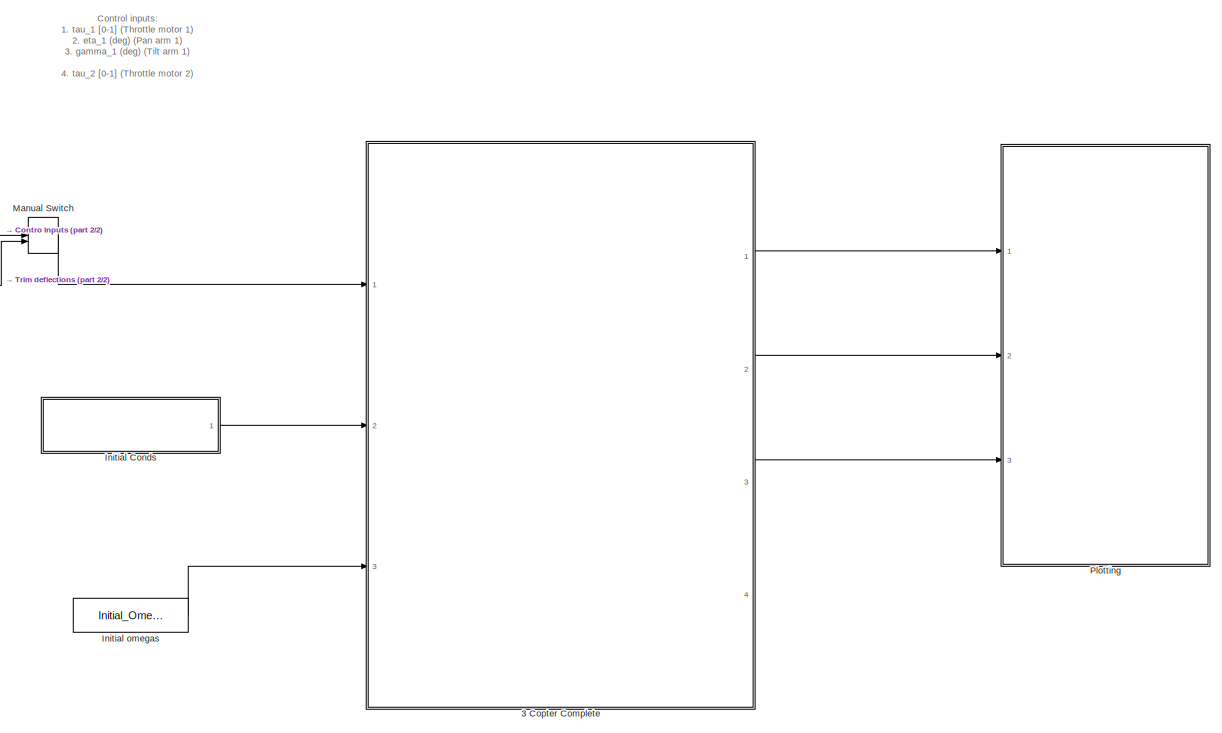
[diagram: root canvas - part 1/2, most of the canvas]
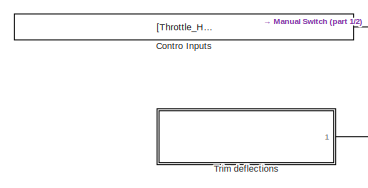
[diagram: root canvas - part 2/2, middle left region]
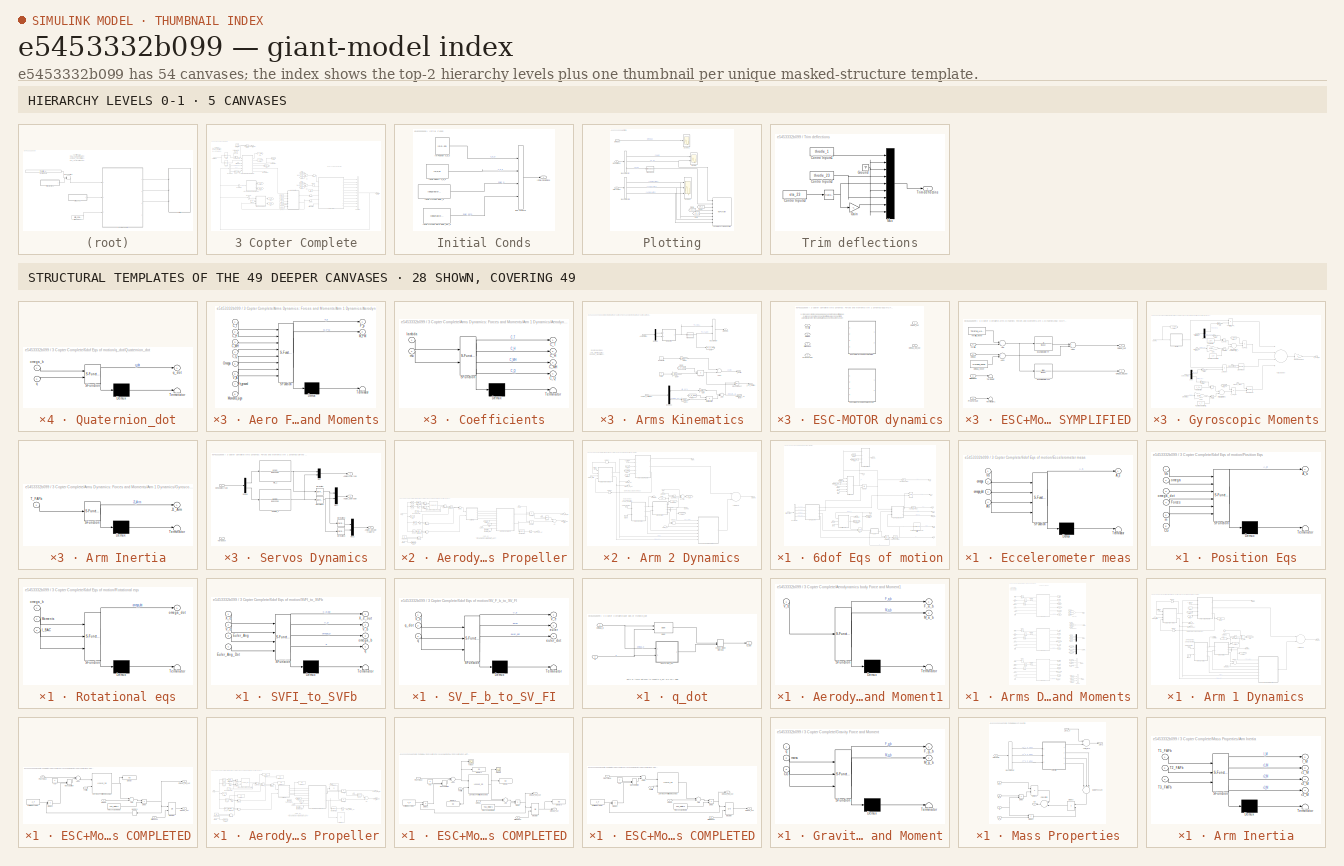
[diagram: thumbnail index - top-2 hierarchy levels (5 canvases) + 28 structural-template representatives of the remaining 49 canvases]
MODEL slx_e5453332b099
KIND model
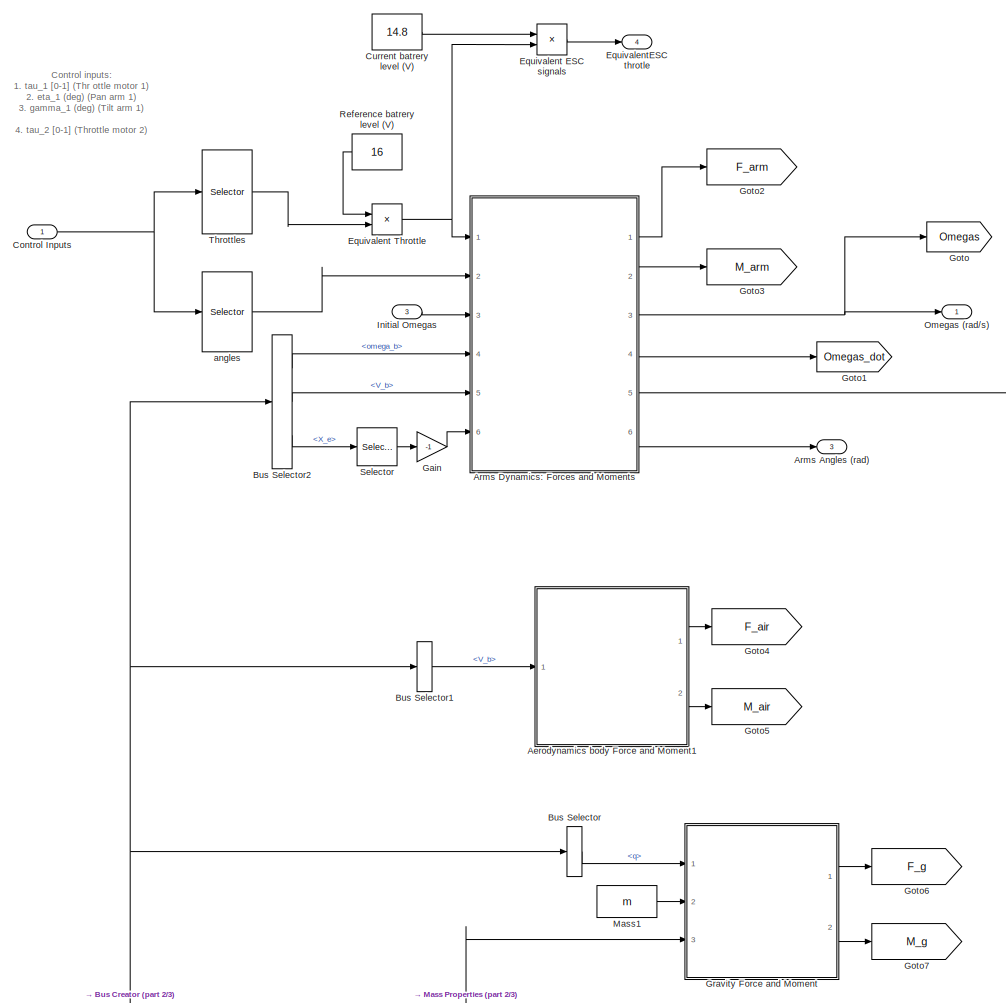
[diagram: 3 Copter Complete - part 1/3, middle left region]
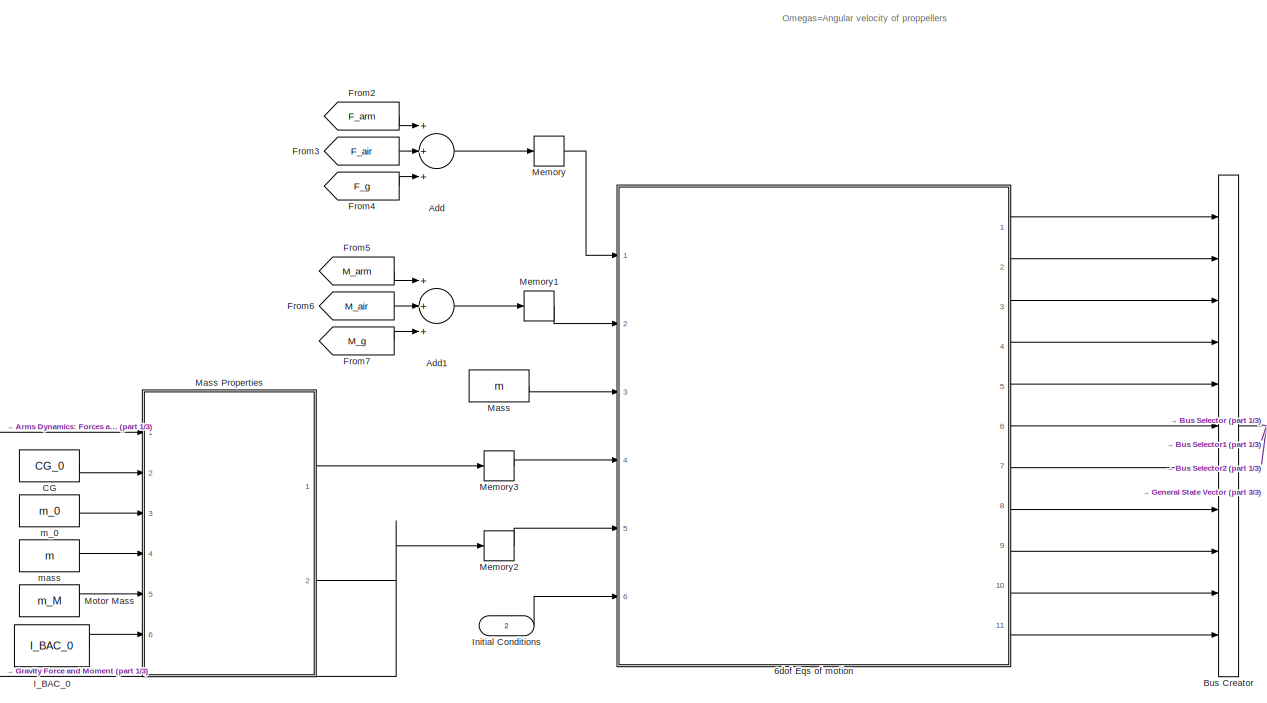
[diagram: 3 Copter Complete - part 2/3, central region]
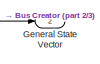
[diagram: 3 Copter Complete - part 3/3, middle right region]
BLOCK [SubSystem] 3 Copter Complete
  FunctionWithSeparateData = off
  MaskHideContents = off
  MinAlgLoopOccurrences = off
  Opaque = off
  Ports = [3, 4]
  PropExecContextOutsideSubsystem = off
  RTWSystemCode = Auto
  RequestExecContextInheritance = off
BLOCK [SubSystem] 3 Copter Complete/6dof Eqs of motion
  FunctionWithSeparateData = off
  MaskHideContents = off
  MinAlgLoopOccurrences = off
  Opaque = off
  Ports = [6, 11]
  PropExecContextOutsideSubsystem = off
  RTWSystemCode = Auto
  RequestExecContextInheritance = off
  TreatAsAtomicUnit = on
BLOCK [Outport] 3 Copter Complete/6dof Eqs of motion/Ab
  IconDisplay = Port number
  Port = 7
BLOCK [Outport] 3 Copter Complete/6dof Eqs of motion/Asensor
  IconDisplay = Port number
  Port = 11
BLOCK [BusSelector] 3 Copter Complete/6dof Eqs of motion/Bus Selector
  OutputSignals = X_e_0,V_e_0,Euler_0,Euler_dot_0
  Ports = [1, 4]
BLOCK [Inport] 3 Copter Complete/6dof Eqs of motion/CG
  IconDisplay = Port number
  Port = 5
BLOCK [Outport] 3 Copter Complete/6dof Eqs of motion/DCM
  IconDisplay = Port number
  Port = 8
BLOCK [SubSystem] 3 Copter Complete/6dof Eqs of motion/Eccelerometer meas
  ErrorFcn = Stateflow.Translate.translate
  FunctionWithSeparateData = off
  MaskHideContents = off
  MinAlgLoopOccurrences = off
  Opaque = off
  PermitHierarchicalResolution = ExplicitOnly
  Ports = [4, 1]
  PropExecContextOutsideSubsystem = off
  RTWSystemCode = Auto
  RequestExecContextInheritance = off
  SFBlockType = MATLAB Function
  TreatAsAtomicUnit = on
BLOCK [Demux] 3 Copter Complete/6dof Eqs of motion/Eccelerometer meas/ Demux 
  Outputs = 1
  Ports = [1, 1]
BLOCK [S-Function] 3 Copter Complete/6dof Eqs of motion/Eccelerometer meas/ SFunction 
  EnableBusSupport = on
  FunctionName = sf_sfun
  Parameters = r_sens
  PortCounts = [4 2]
  Ports = [4, 2]
  Tag = Stateflow S-Function TricopterModel 8
BLOCK [Terminator] 3 Copter Complete/6dof Eqs of motion/Eccelerometer meas/ Terminator 
BLOCK [Outport] 3 Copter Complete/6dof Eqs of motion/Eccelerometer meas/A_s
  IconDisplay = Port number
BLOCK [Inport] 3 Copter Complete/6dof Eqs of motion/Eccelerometer meas/Ab
  IconDisplay = Port number
  Port = 4
BLOCK [Inport] 3 Copter Complete/6dof Eqs of motion/Eccelerometer meas/Vb
  IconDisplay = Port number
BLOCK [Inport] 3 Copter Complete/6dof Eqs of motion/Eccelerometer meas/omega
  IconDisplay = Port number
  Port = 2
BLOCK [Inport] 3 Copter Complete/6dof Eqs of motion/Eccelerometer meas/omega_dot
  IconDisplay = Port number
  Port = 3
BLOCK [Inport] 3 Copter Complete/6dof Eqs of motion/Forces
  IconDisplay = Port number
BLOCK [From] 3 Copter Complete/6dof Eqs of motion/From
  GotoTag = omega
BLOCK [From] 3 Copter Complete/6dof Eqs of motion/From1
  GotoTag = omega_dot
BLOCK [From] 3 Copter Complete/6dof Eqs of motion/From2
  GotoTag = omega
BLOCK [From] 3 Copter Complete/6dof Eqs of motion/From3
  GotoTag = omega_dot
BLOCK [Goto] 3 Copter Complete/6dof Eqs of motion/Goto
  GotoTag = omega
BLOCK [Goto] 3 Copter Complete/6dof Eqs of motion/Goto1
  GotoTag = omega_dot
BLOCK [Inport] 3 Copter Complete/6dof Eqs of motion/I_BAC
  IconDisplay = Port number
  Port = 4
BLOCK [Inport] 3 Copter Complete/6dof Eqs of motion/Initial Conditions
  IconDisplay = Port number
  Port = 6
BLOCK [Inport] 3 Copter Complete/6dof Eqs of motion/Moments
  IconDisplay = Port number
  Port = 2
BLOCK [SubSystem] 3 Copter Complete/6dof Eqs of motion/Position Eqs
  ErrorFcn = Stateflow.Translate.translate
  FunctionWithSeparateData = off
  MaskHideContents = off
  MinAlgLoopOccurrences = off
  Opaque = off
  PermitHierarchicalResolution = ExplicitOnly
  Ports = [6, 1]
  PropExecContextOutsideSubsystem = off
  RTWSystemCode = Auto
  RequestExecContextInheritance = off
  SFBlockType = MATLAB Function
  TreatAsAtomicUnit = on
BLOCK [Demux] 3 Copter Complete/6dof Eqs of motion/Position Eqs/ Demux 
  Outputs = 1
  Ports = [1, 1]
BLOCK [S-Function] 3 Copter Complete/6dof Eqs of motion/Position Eqs/ SFunction 
  EnableBusSupport = on
  FunctionName = sf_sfun
  PortCounts = [6 2]
  Ports = [6, 2]
  Tag = Stateflow S-Function TricopterModel 1
BLOCK [Terminator] 3 Copter Complete/6dof Eqs of motion/Position Eqs/ Terminator 
BLOCK [Outport] 3 Copter Complete/6dof Eqs of motion/Position Eqs/A_b
  IconDisplay = Port number
BLOCK [Inport] 3 Copter Complete/6dof Eqs of motion/Position Eqs/CG
  IconDisplay = Port number
  Port = 6
BLOCK [Inport] 3 Copter Complete/6dof Eqs of motion/Position Eqs/Forces
  IconDisplay = Port number
  Port = 4
BLOCK [Inport] 3 Copter Complete/6dof Eqs of motion/Position Eqs/Vb
  IconDisplay = Port number
BLOCK [Inport] 3 Copter Complete/6dof Eqs of motion/Position Eqs/m
  IconDisplay = Port number
  Port = 5
BLOCK [Inport] 3 Copter Complete/6dof Eqs of motion/Position Eqs/omega
  IconDisplay = Port number
  Port = 2
BLOCK [Inport] 3 Copter Complete/6dof Eqs of motion/Position Eqs/omega_dot
  IconDisplay = Port number
  Port = 3
BLOCK [Reference] 3 Copter Complete/6dof Eqs of motion/Quaternion Normalize  REF=aerolibutil/Quaternion
Normalize
  Ports = [1, 1]
  SourceBlock = aerolibutil/Quaternion\nNormalize
  SourceType = Quaternion Normalize
BLOCK [Reference] 3 Copter Complete/6dof Eqs of motion/Quaternions to  Direction Cosine Matrix  REF=aerolibtransform2/Quaternions to 
Direction Cosine Matrix
  Ports = [1, 1]
  SourceBlock = aerolibtransform2/Quaternions to \nDirection Cosine Matrix
  SourceType = Quaternion2DCM
BLOCK [SubSystem] 3 Copter Complete/6dof Eqs of motion/Rotational eqs
  ErrorFcn = Stateflow.Translate.translate
  FunctionWithSeparateData = off
  MaskHideContents = off
  MinAlgLoopOccurrences = off
  Opaque = off
  PermitHierarchicalResolution = ExplicitOnly
  Ports = [3, 1]
  PropExecContextOutsideSubsystem = off
  RTWSystemCode = Auto
  RequestExecContextInheritance = off
  SFBlockType = MATLAB Function
  TreatAsAtomicUnit = on
BLOCK [Demux] 3 Copter Complete/6dof Eqs of motion/Rotational eqs/ Demux 
  Outputs = 1
  Ports = [1, 1]
BLOCK [S-Function] 3 Copter Complete/6dof Eqs of motion/Rotational eqs/ SFunction 
  EnableBusSupport = on
  FunctionName = sf_sfun
  PortCounts = [3 2]
  Ports = [3, 2]
  Tag = Stateflow S-Function TricopterModel 2
BLOCK [Terminator] 3 Copter Complete/6dof Eqs of motion/Rotational eqs/ Terminator 
BLOCK [Inport] 3 Copter Complete/6dof Eqs of motion/Rotational eqs/I_BAC
  IconDisplay = Port number
  Port = 3
BLOCK [Inport] 3 Copter Complete/6dof Eqs of motion/Rotational eqs/Moments
  IconDisplay = Port number
  Port = 2
BLOCK [Inport] 3 Copter Complete/6dof Eqs of motion/Rotational eqs/omega_b
  IconDisplay = Port number
BLOCK [Outport] 3 Copter Complete/6dof Eqs of motion/Rotational eqs/omega_dot
  IconDisplay = Port number
BLOCK [SubSystem] 3 Copter Complete/6dof Eqs of motion/SVFI_to_SVFb
  ErrorFcn = Stateflow.Translate.translate
  FunctionWithSeparateData = off
  MaskHideContents = off
  MinAlgLoopOccurrences = off
  Opaque = off
  PermitHierarchicalResolution = ExplicitOnly
  Ports = [4, 4]
  PropExecContextOutsideSubsystem = off
  RTWSystemCode = Auto
  RequestExecContextInheritance = off
  SFBlockType = MATLAB Function
  TreatAsAtomicUnit = on
BLOCK [Demux] 3 Copter Complete/6dof Eqs of motion/SVFI_to_SVFb/ Demux 
  Outputs = 1
  Ports = [1, 1]
BLOCK [S-Function] 3 Copter Complete/6dof Eqs of motion/SVFI_to_SVFb/ SFunction 
  EnableBusSupport = on
  FunctionName = sf_sfun
  PortCounts = [4 5]
  Ports = [4, 5]
  Tag = Stateflow S-Function TricopterModel 11
BLOCK [Terminator] 3 Copter Complete/6dof Eqs of motion/SVFI_to_SVFb/ Terminator 
BLOCK [Inport] 3 Copter Complete/6dof Eqs of motion/SVFI_to_SVFb/Euler_Ang
  IconDisplay = Port number
  Port = 3
BLOCK [Inport] 3 Copter Complete/6dof Eqs of motion/SVFI_to_SVFb/Euler_Ang_Dot
  IconDisplay = Port number
  Port = 4
BLOCK [Outport] 3 Copter Complete/6dof Eqs of motion/SVFI_to_SVFb/V_b
  IconDisplay = Port number
  Port = 2
BLOCK [Inport] 3 Copter Complete/6dof Eqs of motion/SVFI_to_SVFb/V_e
  IconDisplay = Port number
  Port = 2
BLOCK [Inport] 3 Copter Complete/6dof Eqs of motion/SVFI_to_SVFb/X_e
  IconDisplay = Port number
BLOCK [Outport] 3 Copter Complete/6dof Eqs of motion/SVFI_to_SVFb/X_e_out
  IconDisplay = Port number
BLOCK [Outport] 3 Copter Complete/6dof Eqs of motion/SVFI_to_SVFb/omega_b
  IconDisplay = Port number
  Port = 3
BLOCK [Outport] 3 Copter Complete/6dof Eqs of motion/SVFI_to_SVFb/q
  IconDisplay = Port number
  Port = 4
BLOCK [SubSystem] 3 Copter Complete/6dof Eqs of motion/SV_F_b_to_SV_FI
  ErrorFcn = Stateflow.Translate.translate
  FunctionWithSeparateData = off
  MaskHideContents = off
  MinAlgLoopOccurrences = off
  Opaque = off
  PermitHierarchicalResolution = ExplicitOnly
  Ports = [3, 3]
  PropExecContextOutsideSubsystem = off
  RTWSystemCode = Auto
  RequestExecContextInheritance = off
  SFBlockType = MATLAB Function
  TreatAsAtomicUnit = on
BLOCK [Demux] 3 Copter Complete/6dof Eqs of motion/SV_F_b_to_SV_FI/ Demux 
  Outputs = 1
  Ports = [1, 1]
BLOCK [S-Function] 3 Copter Complete/6dof Eqs of motion/SV_F_b_to_SV_FI/ SFunction 
  EnableBusSupport = on
  FunctionName = sf_sfun
  PortCounts = [3 4]
  Ports = [3, 4]
  Tag = Stateflow S-Function TricopterModel 12
BLOCK [Terminator] 3 Copter Complete/6dof Eqs of motion/SV_F_b_to_SV_FI/ Terminator 
BLOCK [Inport] 3 Copter Complete/6dof Eqs of motion/SV_F_b_to_SV_FI/V_b
  IconDisplay = Port number
BLOCK [Outport] 3 Copter Complete/6dof Eqs of motion/SV_F_b_to_SV_FI/V_e
  IconDisplay = Port number
BLOCK [Outport] 3 Copter Complete/6dof Eqs of motion/SV_F_b_to_SV_FI/euler
  IconDisplay = Port number
  Port = 2
BLOCK [Outport] 3 Copter Complete/6dof Eqs of motion/SV_F_b_to_SV_FI/euler_dot
  IconDisplay = Port number
  Port = 3
BLOCK [Inport] 3 Copter Complete/6dof Eqs of motion/SV_F_b_to_SV_FI/q
  IconDisplay = Port number
  Port = 3
BLOCK [Inport] 3 Copter Complete/6dof Eqs of motion/SV_F_b_to_SV_FI/q_dot
  IconDisplay = Port number
  Port = 2
BLOCK [Outport] 3 Copter Complete/6dof Eqs of motion/Vb
  IconDisplay = Port number
  Port = 3
BLOCK [Outport] 3 Copter Complete/6dof Eqs of motion/Ve
  IconDisplay = Port number
  Port = 2
BLOCK [Reference] 3 Copter Complete/6dof Eqs of motion/Velocity Conversion  REF=aerolibconvert2/Velocity Conversion
  IU = m/s
  OU = m/s
  Ports = [1, 1]
  SourceBlock = aerolibconvert2/Velocity Conversion
  SourceType = Velocity Conversion
BLOCK [Reference] 3 Copter Complete/6dof Eqs of motion/Velocity Conversion1  REF=aerolibconvert2/Velocity Conversion
  IU = m/s
  OU = m/s
  Ports = [1, 1]
  SourceBlock = aerolibconvert2/Velocity Conversion
  SourceType = Velocity Conversion
BLOCK [Outport] 3 Copter Complete/6dof Eqs of motion/Xe
  IconDisplay = Port number
BLOCK [Outport] 3 Copter Complete/6dof Eqs of motion/euler
  IconDisplay = Port number
  Port = 9
BLOCK [Outport] 3 Copter Complete/6dof Eqs of motion/euler_dot
  IconDisplay = Port number
  Port = 10
BLOCK [Inport] 3 Copter Complete/6dof Eqs of motion/mass
  IconDisplay = Port number
  Port = 3
BLOCK [Outport] 3 Copter Complete/6dof Eqs of motion/p,q,r
  IconDisplay = Port number
  Port = 4
BLOCK [Integrator] 3 Copter Complete/6dof Eqs of motion/p,q,r 
  InitialCondition = [P_0,Q_0,R_0]
  InitialConditionSource = external
  Ports = [2, 1]
BLOCK [Outport] 3 Copter Complete/6dof Eqs of motion/pdot,qdot,rdot
  IconDisplay = Port number
  Port = 6
BLOCK [Outport] 3 Copter Complete/6dof Eqs of motion/q
  IconDisplay = Port number
  Port = 5
BLOCK [SubSystem] 3 Copter Complete/6dof Eqs of motion/q_dot
  FunctionWithSeparateData = off
  MaskHideContents = off
  MinAlgLoopOccurrences = off
  Opaque = off
  Ports = [2, 1]
  PropExecContextOutsideSubsystem = off
  RTWSystemCode = Auto
  RequestExecContextInheritance = off
  TreatAsAtomicUnit = on
BLOCK [SubSystem] 3 Copter Complete/6dof Eqs of motion/q_dot/Quaternion_dot
  ErrorFcn = Stateflow.Translate.translate
  FunctionWithSeparateData = off
  MaskHideContents = off
  MinAlgLoopOccurrences = off
  Opaque = off
  PermitHierarchicalResolution = ExplicitOnly
  Ports = [2, 1]
  PropExecContextOutsideSubsystem = off
  RTWSystemCode = Auto
  RequestExecContextInheritance = off
  SFBlockType = MATLAB Function
  TreatAsAtomicUnit = on
  VariantObject = Variant
BLOCK [Demux] 3 Copter Complete/6dof Eqs of motion/q_dot/Quaternion_dot/ Demux 
  Outputs = 1
  Ports = [1, 1]
BLOCK [S-Function] 3 Copter Complete/6dof Eqs of motion/q_dot/Quaternion_dot/ SFunction 
  EnableBusSupport = on
  FunctionName = sf_sfun
  PortCounts = [2 2]
  Ports = [2, 2]
  Tag = Stateflow S-Function TricopterModel 3
BLOCK [Terminator] 3 Copter Complete/6dof Eqs of motion/q_dot/Quaternion_dot/ Terminator 
BLOCK [Inport] 3 Copter Complete/6dof Eqs of motion/q_dot/Quaternion_dot/omega_b
  IconDisplay = Port number
BLOCK [Inport] 3 Copter Complete/6dof Eqs of motion/q_dot/Quaternion_dot/q
  IconDisplay = Port number
  Port = 2
BLOCK [Outport] 3 Copter Complete/6dof Eqs of motion/q_dot/Quaternion_dot/q_dot
  IconDisplay = Port number
BLOCK [ManualSwitch] 3 Copter Complete/6dof Eqs of motion/q_dot/chose which method
  CurrentSetting = 0
BLOCK [Inport] 3 Copter Complete/6dof Eqs of motion/q_dot/omega_b
  IconDisplay = Port number
BLOCK [Inport] 3 Copter Complete/6dof Eqs of motion/q_dot/q
  IconDisplay = Port number
  Port = 2
BLOCK [Outport] 3 Copter Complete/6dof Eqs of motion/q_dot/q_dot
  IconDisplay = Port number
BLOCK [Reference] 3 Copter Complete/6dof Eqs of motion/q_dot/qdot  REF=aerolib6dofsys/DCM & Euler Angles (Quaternion)/qdot
  Ports = [2, 1]
  SourceBlock = aerolib6dofsys/DCM & Euler Angles (Quaternion)/qdot
  SourceType = SubSystem
BLOCK [Integrator] 3 Copter Complete/6dof Eqs of motion/quaternion
  InitialCondition = [P_0,Q_0,R_0]
  InitialConditionSource = external
  Ports = [2, 1]
BLOCK [Integrator] 3 Copter Complete/6dof Eqs of motion/ub,vb,wb
  InitialCondition = [U_0,V_0,W_0]
  InitialConditionSource = external
  Ports = [2, 1]
BLOCK [Integrator] 3 Copter Complete/6dof Eqs of motion/xe,ye,ze
  InitialCondition = [NORTH_0,EAST_0,-DOWN_0]
  InitialConditionSource = external
  Ports = [2, 1]
BLOCK [Sum] 3 Copter Complete/Add
  InputSameDT = off
  Inputs = +++
  OutDataTypeStr = Inherit: Inherit via internal rule
  Ports = [3, 1]
  SaturateOnIntegerOverflow = off
BLOCK [Sum] 3 Copter Complete/Add1
  InputSameDT = off
  Inputs = +++
  OutDataTypeStr = Inherit: Inherit via internal rule
  Ports = [3, 1]
  SaturateOnIntegerOverflow = off
BLOCK [SubSystem] 3 Copter Complete/Aerodynamics body Force and Moment1
  ErrorFcn = Stateflow.Translate.translate
  FunctionWithSeparateData = off
  MaskHideContents = off
  MinAlgLoopOccurrences = off
  Opaque = off
  PermitHierarchicalResolution = ExplicitOnly
  Ports = [1, 2]
  PropExecContextOutsideSubsystem = off
  RTWSystemCode = Auto
  RequestExecContextInheritance = off
  SFBlockType = MATLAB Function
  TreatAsAtomicUnit = on
BLOCK [Demux] 3 Copter Complete/Aerodynamics body Force and Moment1/ Demux 
  Outputs = 1
  Ports = [1, 1]
BLOCK [S-Function] 3 Copter Complete/Aerodynamics body Force and Moment1/ SFunction 
  EnableBusSupport = on
  FunctionName = sf_sfun
  Parameters = A_x,A_y,A_z,C_x,C_y,C_z,rho
  PortCounts = [1 3]
  Ports = [1, 3]
  Tag = Stateflow S-Function TricopterModel 5
BLOCK [Terminator] 3 Copter Complete/Aerodynamics body Force and Moment1/ Terminator 
BLOCK [Outport] 3 Copter Complete/Aerodynamics body Force and Moment1/F_a_b
  IconDisplay = Port number
BLOCK [Outport] 3 Copter Complete/Aerodynamics body Force and Moment1/M_a_b
  IconDisplay = Port number
  Port = 2
BLOCK [Inport] 3 Copter Complete/Aerodynamics body Force and Moment1/V_b
  IconDisplay = Port number
BLOCK [Outport] 3 Copter Complete/Arms Angles (rad)
  IconDisplay = Port number
  Port = 3
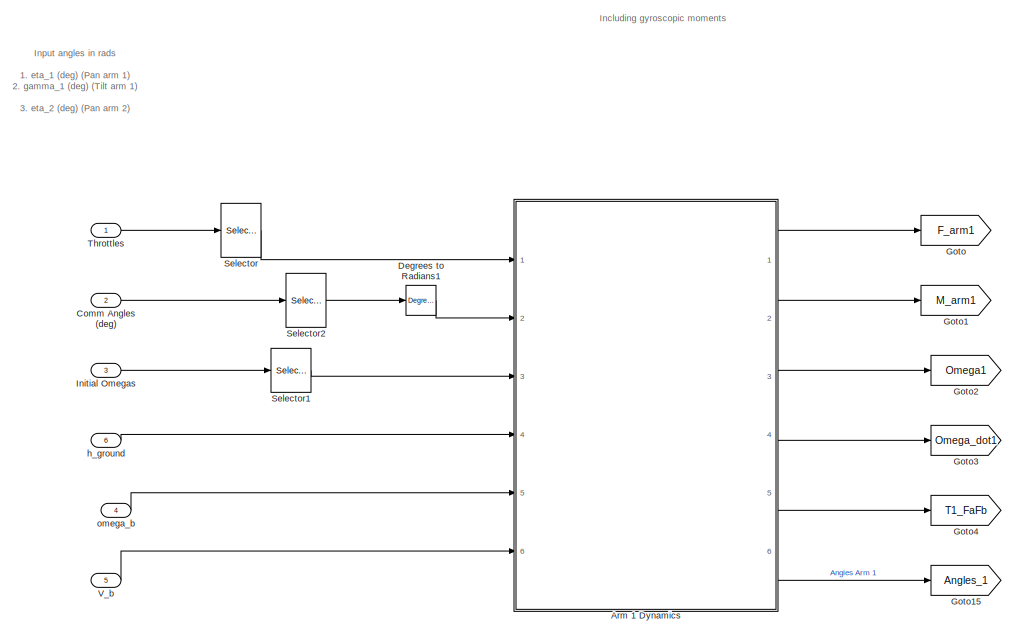
[diagram: 3 Copter Complete/Arms Dynamics: Forces and Moments - part 1/3, top center region]
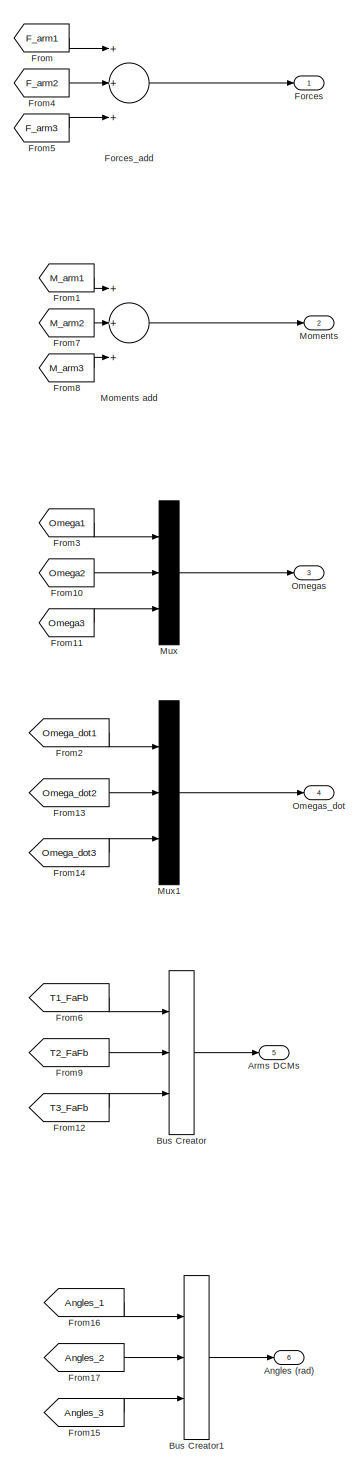
[diagram: 3 Copter Complete/Arms Dynamics: Forces and Moments - part 2/3, right side, full height]
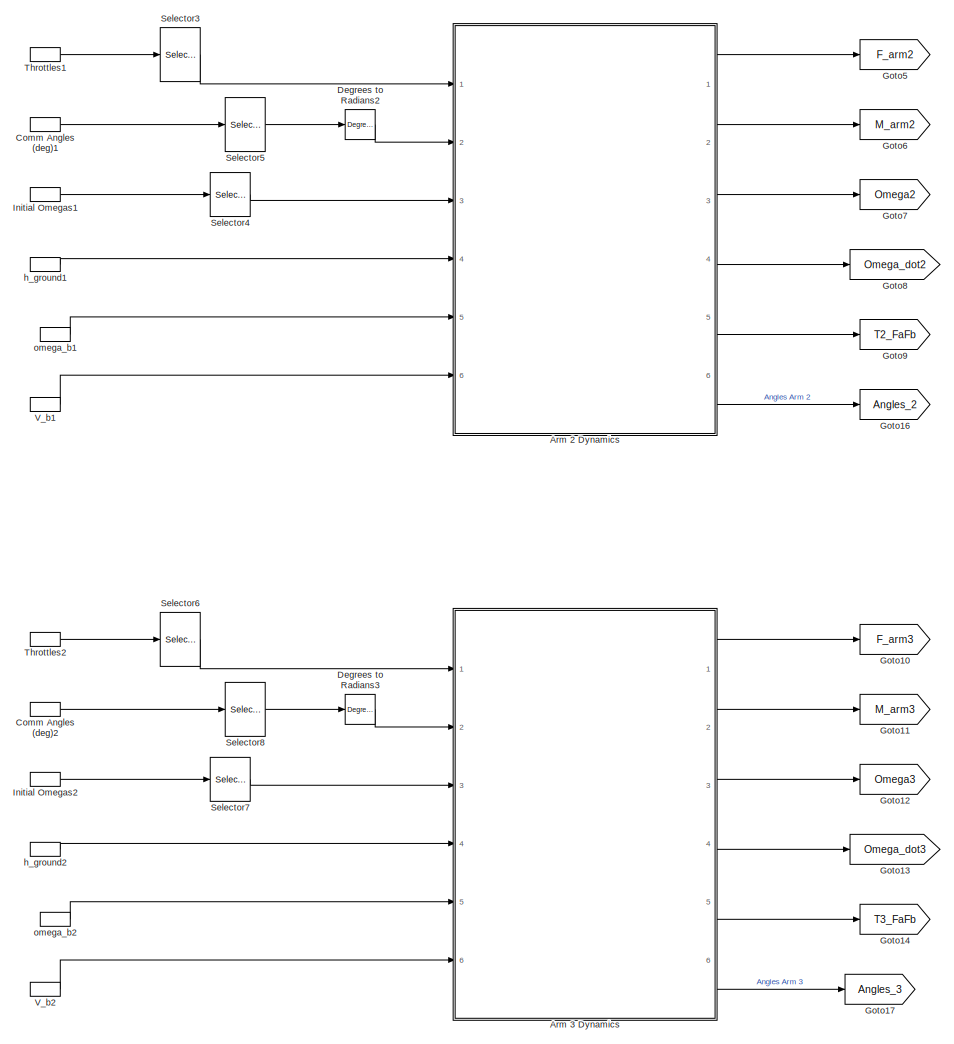
[diagram: 3 Copter Complete/Arms Dynamics: Forces and Moments - part 3/3, bottom center region]
BLOCK [SubSystem] 3 Copter Complete/Arms Dynamics: Forces and Moments
  FunctionWithSeparateData = off
  MaskHideContents = off
  MinAlgLoopOccurrences = off
  Opaque = off
  Ports = [6, 6]
  PropExecContextOutsideSubsystem = off
  RTWSystemCode = Auto
  RequestExecContextInheritance = off
BLOCK [Outport] 3 Copter Complete/Arms Dynamics: Forces and Moments/Angles (rad)
  IconDisplay = Port number
  Port = 6
BLOCK [SubSystem] 3 Copter Complete/Arms Dynamics: Forces and Moments/Arm 1 Dynamics
  FunctionWithSeparateData = off
  MaskHideContents = off
  MinAlgLoopOccurrences = off
  Opaque = off
  Ports = [6, 6]
  PropExecContextOutsideSubsystem = off
  RTWSystemCode = Auto
  RequestExecContextInheritance = off
BLOCK [SubSystem] 3 Copter Complete/Arms Dynamics: Forces and Moments/Arm 1 Dynamics/Aerodynamics Propeller
  FunctionWithSeparateData = off
  MaskHideContents = off
  MinAlgLoopOccurrences = on
  Opaque = off
  Ports = [5, 3]
  PropExecContextOutsideSubsystem = off
  RTWSystemCode = Auto
  RequestExecContextInheritance = off
  TreatAsAtomicUnit = on
BLOCK [Abs] 3 Copter Complete/Arms Dynamics: Forces and Moments/Arm 1 Dynamics/Aerodynamics Propeller/Abs1
  SaturateOnIntegerOverflow = off
BLOCK [Sum] 3 Copter Complete/Arms Dynamics: Forces and Moments/Arm 1 Dynamics/Aerodynamics Propeller/Add
  InputSameDT = off
  OutDataTypeStr = Inherit: Inherit via internal rule
  Ports = [2, 1]
  SaturateOnIntegerOverflow = off
BLOCK [SubSystem] 3 Copter Complete/Arms Dynamics: Forces and Moments/Arm 1 Dynamics/Aerodynamics Propeller/Aero Forces and Moments
  ErrorFcn = Stateflow.Translate.translate
  FunctionWithSeparateData = off
  MaskHideContents = off
  MinAlgLoopOccurrences = off
  Opaque = off
  PermitHierarchicalResolution = ExplicitOnly
  Ports = [8, 2]
  PropExecContextOutsideSubsystem = off
  RTWSystemCode = Auto
  RequestExecContextInheritance = off
  SFBlockType = MATLAB Function
  TreatAsAtomicUnit = on
BLOCK [Demux] 3 Copter Complete/Arms Dynamics: Forces and Moments/Arm 1 Dynamics/Aerodynamics Propeller/Aero Forces and Moments/ Demux 
  Outputs = 1
  Ports = [1, 1]
BLOCK [S-Function] 3 Copter Complete/Arms Dynamics: Forces and Moments/Arm 1 Dynamics/Aerodynamics Propeller/Aero Forces and Moments/ SFunction 
  EnableBusSupport = on
  FunctionName = sf_sfun
  Parameters = R,rho
  PortCounts = [8 3]
  Ports = [8, 3]
  Tag = Stateflow S-Function TricopterModel 7
BLOCK [Terminator] 3 Copter Complete/Arms Dynamics: Forces and Moments/Arm 1 Dynamics/Aerodynamics Propeller/Aero Forces and Moments/ Terminator 
BLOCK [Inport] 3 Copter Complete/Arms Dynamics: Forces and Moments/Arm 1 Dynamics/Aerodynamics Propeller/Aero Forces and Moments/C_H
  IconDisplay = Port number
  Port = 2
BLOCK [Inport] 3 Copter Complete/Arms Dynamics: Forces and Moments/Arm 1 Dynamics/Aerodynamics Propeller/Aero Forces and Moments/C_MH
  IconDisplay = Port number
  Port = 3
BLOCK [Inport] 3 Copter Complete/Arms Dynamics: Forces and Moments/Arm 1 Dynamics/Aerodynamics Propeller/Aero Forces and Moments/C_Q
  IconDisplay = Port number
  Port = 4
BLOCK [Inport] 3 Copter Complete/Arms Dynamics: Forces and Moments/Arm 1 Dynamics/Aerodynamics Propeller/Aero Forces and Moments/C_T
  IconDisplay = Port number
BLOCK [Outport] 3 Copter Complete/Arms Dynamics: Forces and Moments/Arm 1 Dynamics/Aerodynamics Propeller/Aero Forces and Moments/F_p
  IconDisplay = Port number
BLOCK [Outport] 3 Copter Complete/Arms Dynamics: Forces and Moments/Arm 1 Dynamics/Aerodynamics Propeller/Aero Forces and Moments/M_PM
  IconDisplay = Port number
  Port = 2
BLOCK [Inport] 3 Copter Complete/Arms Dynamics: Forces and Moments/Arm 1 Dynamics/Aerodynamics Propeller/Aero Forces and Moments/Moments_sign
  IconDisplay = Port number
  Port = 8
BLOCK [Inport] 3 Copter Complete/Arms Dynamics: Forces and Moments/Arm 1 Dynamics/Aerodynamics Propeller/Aero Forces and Moments/Omega
  IconDisplay = Port number
  Port = 5
BLOCK [Inport] 3 Copter Complete/Arms Dynamics: Forces and Moments/Arm 1 Dynamics/Aerodynamics Propeller/Aero Forces and Moments/V_A
  IconDisplay = Port number
  Port = 6
BLOCK [Inport] 3 Copter Complete/Arms Dynamics: Forces and Moments/Arm 1 Dynamics/Aerodynamics Propeller/Aero Forces and Moments/h_ground
  IconDisplay = Port number
  Port = 7
BLOCK [SubSystem] 3 Copter Complete/Arms Dynamics: Forces and Moments/Arm 1 Dynamics/Aerodynamics Propeller/Coefficients
  ErrorFcn = Stateflow.Translate.translate
  FunctionWithSeparateData = off
  MaskHideContents = off
  MinAlgLoopOccurrences = off
  Opaque = off
  PermitHierarchicalResolution = ExplicitOnly
  Ports = [2, 4]
  PropExecContextOutsideSubsystem = off
  RTWSystemCode = Auto
  RequestExecContextInheritance = off
  SFBlockType = MATLAB Function
  TreatAsAtomicUnit = on
BLOCK [Demux] 3 Copter Complete/Arms Dynamics: Forces and Moments/Arm 1 Dynamics/Aerodynamics Propeller/Coefficients/ Demux 
  Outputs = 1
  Ports = [1, 1]
BLOCK [S-Function] 3 Copter Complete/Arms Dynamics: Forces and Moments/Arm 1 Dynamics/Aerodynamics Propeller/Coefficients/ SFunction 
  EnableBusSupport = on
  FunctionName = sf_sfun
  Parameters = C_d0,a,sigma,theta_0,theta_1
  PortCounts = [2 5]
  Ports = [2, 5]
  Tag = Stateflow S-Function TricopterModel 6
BLOCK [Terminator] 3 Copter Complete/Arms Dynamics: Forces and Moments/Arm 1 Dynamics/Aerodynamics Propeller/Coefficients/ Terminator 
BLOCK [Outport] 3 Copter Complete/Arms Dynamics: Forces and Moments/Arm 1 Dynamics/Aerodynamics Propeller/Coefficients/C_H
  IconDisplay = Port number
  Port = 2
BLOCK [Outport] 3 Copter Complete/Arms Dynamics: Forces and Moments/Arm 1 Dynamics/Aerodynamics Propeller/Coefficients/C_MH
  IconDisplay = Port number
  Port = 3
BLOCK [Outport] 3 Copter Complete/Arms Dynamics: Forces and Moments/Arm 1 Dynamics/Aerodynamics Propeller/Coefficients/C_Q
  IconDisplay = Port number
  Port = 4
BLOCK [Outport] 3 Copter Complete/Arms Dynamics: Forces and Moments/Arm 1 Dynamics/Aerodynamics Propeller/Coefficients/C_T
  IconDisplay = Port number
BLOCK [Inport] 3 Copter Complete/Arms Dynamics: Forces and Moments/Arm 1 Dynamics/Aerodynamics Propeller/Coefficients/lambda
  IconDisplay = Port number
BLOCK [Inport] 3 Copter Complete/Arms Dynamics: Forces and Moments/Arm 1 Dynamics/Aerodynamics Propeller/Coefficients/mu
  IconDisplay = Port number
  Port = 2
BLOCK [Lookup_n-D] 3 Copter Complete/Arms Dynamics: Forces and Moments/Arm 1 Dynamics/Aerodynamics Propeller/Dimensionless AB induced Vel Map
  BreakpointsForDimension1 = Vx_adim
  BreakpointsForDimension2 = Vz_adim
  BreakpointsForDimension3 = [5, 7]
  Ports = [2, 1]
  RndMeth = Simplest
  Table = v_i_adim
BLOCK [Product] 3 Copter Complete/Arms Dynamics: Forces and Moments/Arm 1 Dynamics/Aerodynamics Propeller/F prop @ Fb
  InputSameDT = off
  Multiplication = Matrix(*)
  OutDataTypeStr = Inherit: Inherit via internal rule
  Ports = [2, 1]
  RndMeth = Floor
  SaturateOnIntegerOverflow = off
BLOCK [Outport] 3 Copter Complete/Arms Dynamics: Forces and Moments/Arm 1 Dynamics/Aerodynamics Propeller/Forces_prop @Fb
  IconDisplay = Port number
BLOCK [From] 3 Copter Complete/Arms Dynamics: Forces and Moments/Arm 1 Dynamics/Aerodynamics Propeller/From
  GotoTag = V_A
BLOCK [From] 3 Copter Complete/Arms Dynamics: Forces and Moments/Arm 1 Dynamics/Aerodynamics Propeller/From1
  GotoTag = Omega
BLOCK [Gain] 3 Copter Complete/Arms Dynamics: Forces and Moments/Arm 1 Dynamics/Aerodynamics Propeller/Gain
  Gain = -1
  OutDataTypeStr = Inherit: Inherit via internal rule
  ParamDataTypeStr = Inherit: Inherit via internal rule
  SaturateOnIntegerOverflow = off
BLOCK [Gain] 3 Copter Complete/Arms Dynamics: Forces and Moments/Arm 1 Dynamics/Aerodynamics Propeller/Gain1
  Gain = -1
  OutDataTypeStr = Inherit: Inherit via internal rule
  ParamDataTypeStr = Inherit: Inherit via internal rule
  SaturateOnIntegerOverflow = off
BLOCK [Goto] 3 Copter Complete/Arms Dynamics: Forces and Moments/Arm 1 Dynamics/Aerodynamics Propeller/Goto
  GotoTag = V_A
BLOCK [Goto] 3 Copter Complete/Arms Dynamics: Forces and Moments/Arm 1 Dynamics/Aerodynamics Propeller/Goto1
  GotoTag = Omega
BLOCK [Constant] 3 Copter Complete/Arms Dynamics: Forces and Moments/Arm 1 Dynamics/Aerodynamics Propeller/Induced hover Vel
  Value = v_i0
BLOCK [Product] 3 Copter Complete/Arms Dynamics: Forces and Moments/Arm 1 Dynamics/Aerodynamics Propeller/M prop @Fb
  InputSameDT = off
  Multiplication = Matrix(*)
  OutDataTypeStr = Inherit: Inherit via internal rule
  Ports = [2, 1]
  RndMeth = Floor
  SaturateOnIntegerOverflow = off
BLOCK [Reference] 3 Copter Complete/Arms Dynamics: Forces and Moments/Arm 1 Dynamics/Aerodynamics Propeller/M_PAF  REF=vrlib/Utilities/Cross Product
  Ports = [2, 1]
  SourceBlock = vrlib/Utilities/Cross Product
  SourceType = Cross Product
BLOCK [Reference] 3 Copter Complete/Arms Dynamics: Forces and Moments/Arm 1 Dynamics/Aerodynamics Propeller/Matrix  1-Norm  REF=dspmtrx3/Matrix 
1-Norm
  LockScale = off
  Ports = [1, 1]
  SourceBlock = dspmtrx3/Matrix \n1-Norm
  SourceType = Matrix 1-Norm
  accumDataTypeStr = Inherit: Inherit via internal rule
  accumFracLength = 30
  accumLastDataTypeStr = Inherit: Inherit via internal rule
  accumMode = Inherit via internal rule
  accumWordLength = 32
  allowOverrides = on
  outputDataTypeStr = Inherit: Same as accumulator
  outputFracLength = 15
  outputLastDataTypeStr = Inherit: Same as accumulator
  outputMax = []
  outputMin = []
  outputMode = Same as accumulator
  outputWordLength = 16
  overflowMode = off
  roundingMode = Floor
BLOCK [Reference] 3 Copter Complete/Arms Dynamics: Forces and Moments/Arm 1 Dynamics/Aerodynamics Propeller/Matrix  1-Norm1  REF=dspmtrx3/Matrix 
1-Norm
  LockScale = off
  Ports = [1, 1]
  SourceBlock = dspmtrx3/Matrix \n1-Norm
  SourceType = Matrix 1-Norm
  accumDataTypeStr = Inherit: Inherit via internal rule
  accumFracLength = 30
  accumLastDataTypeStr = Inherit: Inherit via internal rule
  accumMode = Inherit via internal rule
  accumWordLength = 32
  allowOverrides = on
  outputDataTypeStr = Inherit: Same as accumulator
  outputFracLength = 15
  outputLastDataTypeStr = Inherit: Same as accumulator
  outputMax = []
  outputMin = []
  outputMode = Same as accumulator
  outputWordLength = 16
  overflowMode = off
  roundingMode = Floor
BLOCK [Outport] 3 Copter Complete/Arms Dynamics: Forces and Moments/Arm 1 Dynamics/Aerodynamics Propeller/Moments_prop @Fb
  IconDisplay = Port number
  Port = 2
BLOCK [Constant] 3 Copter Complete/Arms Dynamics: Forces and Moments/Arm 1 Dynamics/Aerodynamics Propeller/Moments_sign
  Value = - Rotation_sign(1)
BLOCK [Inport] 3 Copter Complete/Arms Dynamics: Forces and Moments/Arm 1 Dynamics/Aerodynamics Propeller/Omega
  IconDisplay = Port number
BLOCK [Product] 3 Copter Complete/Arms Dynamics: Forces and Moments/Arm 1 Dynamics/Aerodynamics Propeller/Omega*R
  InputSameDT = off
  Inputs = **
  OutDataTypeStr = Inherit: Inherit via internal rule
  Ports = [2, 1]
  RndMeth = Floor
  SaturateOnIntegerOverflow = off
BLOCK [Outport] 3 Copter Complete/Arms Dynamics: Forces and Moments/Arm 1 Dynamics/Aerodynamics Propeller/Prop_Torque_out
  IconDisplay = Port number
  Port = 3
BLOCK [Selector] 3 Copter Complete/Arms Dynamics: Forces and Moments/Arm 1 Dynamics/Aerodynamics Propeller/Propeller Torque
  IndexOptions = Index vector (dialog)
  Indices = 3
  InputPortWidth = 3
  OutputSizes = 1
  Ports = [1, 1]
BLOCK [Constant] 3 Copter Complete/Arms Dynamics: Forces and Moments/Arm 1 Dynamics/Aerodynamics Propeller/Radius Prop
  Value = R
BLOCK [Inport] 3 Copter Complete/Arms Dynamics: Forces and Moments/Arm 1 Dynamics/Aerodynamics Propeller/T_FaFb
  IconDisplay = Port number
  Port = 4
BLOCK [Inport] 3 Copter Complete/Arms Dynamics: Forces and Moments/Arm 1 Dynamics/Aerodynamics Propeller/V^A_1
  IconDisplay = Port number
  Port = 3
BLOCK [Selector] 3 Copter Complete/Arms Dynamics: Forces and Moments/Arm 1 Dynamics/Aerodynamics Propeller/V_A_x
  IndexOptions = Index vector (dialog)
  Indices = [1 2]
  InputPortWidth = 3
  OutputSizes = 1
  Ports = [1, 1]
BLOCK [Selector] 3 Copter Complete/Arms Dynamics: Forces and Moments/Arm 1 Dynamics/Aerodynamics Propeller/V_A_x,y
  IndexOptions = Index vector (dialog)
  Indices = [1 2]
  InputPortWidth = 3
  OutputSizes = 1
  Ports = [1, 1]
BLOCK [Selector] 3 Copter Complete/Arms Dynamics: Forces and Moments/Arm 1 Dynamics/Aerodynamics Propeller/V_A_x,y1
  IndexOptions = Index vector (dialog)
  Indices = [3]
  InputPortWidth = 3
  OutputSizes = 1
  Ports = [1, 1]
BLOCK [Selector] 3 Copter Complete/Arms Dynamics: Forces and Moments/Arm 1 Dynamics/Aerodynamics Propeller/V_A_z
  IndexOptions = Index vector (dialog)
  Indices = 3
  InputPortWidth = 3
  OutputSizes = 1
  Ports = [1, 1]
BLOCK [Product] 3 Copter Complete/Arms Dynamics: Forces and Moments/Arm 1 Dynamics/Aerodynamics Propeller/Vx dimless
  InputSameDT = off
  Inputs = */
  OutDataTypeStr = Inherit: Inherit via internal rule
  Ports = [2, 1]
  RndMeth = Floor
  SaturateOnIntegerOverflow = off
BLOCK [Product] 3 Copter Complete/Arms Dynamics: Forces and Moments/Arm 1 Dynamics/Aerodynamics Propeller/Vz dimless1
  InputSameDT = off
  Inputs = */
  OutDataTypeStr = Inherit: Inherit via internal rule
  Ports = [2, 1]
  RndMeth = Floor
  SaturateOnIntegerOverflow = off
BLOCK [Inport] 3 Copter Complete/Arms Dynamics: Forces and Moments/Arm 1 Dynamics/Aerodynamics Propeller/h_ground
  IconDisplay = Port number
  Port = 2
BLOCK [Sum] 3 Copter Complete/Arms Dynamics: Forces and Moments/Arm 1 Dynamics/Aerodynamics Propeller/lambda
  InputSameDT = off
  OutDataTypeStr = Inherit: Inherit via internal rule
  Ports = [2, 1]
  SaturateOnIntegerOverflow = off
BLOCK [Product] 3 Copter Complete/Arms Dynamics: Forces and Moments/Arm 1 Dynamics/Aerodynamics Propeller/lambdaZ
  InputSameDT = off
  Inputs = */
  OutDataTypeStr = Inherit: Inherit via internal rule
  Ports = [2, 1]
  RndMeth = Floor
  SaturateOnIntegerOverflow = off
BLOCK [Product] 3 Copter Complete/Arms Dynamics: Forces and Moments/Arm 1 Dynamics/Aerodynamics Propeller/lambda_i
  InputSameDT = off
  Inputs = */
  OutDataTypeStr = Inherit: Inherit via internal rule
  Ports = [2, 1]
  RndMeth = Floor
  SaturateOnIntegerOverflow = off
BLOCK [Product] 3 Copter Complete/Arms Dynamics: Forces and Moments/Arm 1 Dynamics/Aerodynamics Propeller/mu
  InputSameDT = off
  Inputs = */
  OutDataTypeStr = Inherit: Inherit via internal rule
  Ports = [2, 1]
  RndMeth = Floor
  SaturateOnIntegerOverflow = off
BLOCK [Inport] 3 Copter Complete/Arms Dynamics: Forces and Moments/Arm 1 Dynamics/Aerodynamics Propeller/r_p
  IconDisplay = Port number
  Port = 5
BLOCK [Product] 3 Copter Complete/Arms Dynamics: Forces and Moments/Arm 1 Dynamics/Aerodynamics Propeller/v_i dimension
  InputSameDT = off
  Inputs = **
  OutDataTypeStr = Inherit: Inherit via internal rule
  Ports = [2, 1]
  RndMeth = Floor
  SaturateOnIntegerOverflow = off
BLOCK [Outport] 3 Copter Complete/Arms Dynamics: Forces and Moments/Arm 1 Dynamics/Angles (rad)
  IconDisplay = Port number
  Port = 6
BLOCK [SubSystem] 3 Copter Complete/Arms Dynamics: Forces and Moments/Arm 1 Dynamics/Arms Kinematics
  FunctionWithSeparateData = off
  MaskHideContents = off
  MinAlgLoopOccurrences = off
  Opaque = off
  Ports = [2, 4]
  PropExecContextOutsideSubsystem = off
  RTWSystemCode = Auto
  RequestExecContextInheritance = off
  TreatAsAtomicUnit = on
BLOCK [Sum] 3 Copter Complete/Arms Dynamics: Forces and Moments/Arm 1 Dynamics/Arms Kinematics/Add
  InputSameDT = off
  OutDataTypeStr = Inherit: Inherit via internal rule
  Ports = [2, 1]
  SaturateOnIntegerOverflow = off
BLOCK [Sum] 3 Copter Complete/Arms Dynamics: Forces and Moments/Arm 1 Dynamics/Arms Kinematics/Add3
  InputSameDT = off
  OutDataTypeStr = Inherit: Inherit via internal rule
  Ports = [2, 1]
  SaturateOnIntegerOverflow = off
BLOCK [Inport] 3 Copter Complete/Arms Dynamics: Forces and Moments/Arm 1 Dynamics/Arms Kinematics/Angles (rad)
  IconDisplay = Port number
BLOCK [Inport] 3 Copter Complete/Arms Dynamics: Forces and Moments/Arm 1 Dynamics/Arms Kinematics/Angles_dot (rad//s)
  IconDisplay = Port number
  Port = 2
BLOCK [Outport] 3 Copter Complete/Arms Dynamics: Forces and Moments/Arm 1 Dynamics/Arms Kinematics/Arm DCMs
  IconDisplay = Port number
  Port = 3
BLOCK [BusCreator] 3 Copter Complete/Arms Dynamics: Forces and Moments/Arm 1 Dynamics/Arms Kinematics/Bus Creator
  DisplayOption = bar
  Inputs = 2
  Ports = [2, 1]
BLOCK [Reference] 3 Copter Complete/Arms Dynamics: Forces and Moments/Arm 1 Dynamics/Arms Kinematics/Cross Product  REF=vrlib/Utilities/Cross Product
  Ports = [2, 1]
  SourceBlock = vrlib/Utilities/Cross Product
  SourceType = Cross Product
BLOCK [SubSystem] 3 Copter Complete/Arms Dynamics: Forces and Moments/Arm 1 Dynamics/Arms Kinematics/DCM Arm 1
  ErrorFcn = Stateflow.Translate.translate
  FunctionWithSeparateData = off
  MaskHideContents = off
  MinAlgLoopOccurrences = off
  Opaque = off
  PermitHierarchicalResolution = ExplicitOnly
  Ports = [2, 1]
  PropExecContextOutsideSubsystem = off
  RTWSystemCode = Auto
  RequestExecContextInheritance = off
  SFBlockType = MATLAB Function
  TreatAsAtomicUnit = on
BLOCK [Demux] 3 Copter Complete/Arms Dynamics: Forces and Moments/Arm 1 Dynamics/Arms Kinematics/DCM Arm 1/ Demux 
  Outputs = 1
  Ports = [1, 1]
BLOCK [S-Function] 3 Copter Complete/Arms Dynamics: Forces and Moments/Arm 1 Dynamics/Arms Kinematics/DCM Arm 1/ SFunction 
  EnableBusSupport = on
  FunctionName = sf_sfun
  PortCounts = [2 2]
  Ports = [2, 2]
  Tag = Stateflow S-Function TricopterModel 9
BLOCK [Terminator] 3 Copter Complete/Arms Dynamics: Forces and Moments/Arm 1 Dynamics/Arms Kinematics/DCM Arm 1/ Terminator 
BLOCK [Outport] 3 Copter Complete/Arms Dynamics: Forces and Moments/Arm 1 Dynamics/Arms Kinematics/DCM Arm 1/T_Fb_FA
  IconDisplay = Port number
BLOCK [Inport] 3 Copter Complete/Arms Dynamics: Forces and Moments/Arm 1 Dynamics/Arms Kinematics/DCM Arm 1/eta_1
  IconDisplay = Port number
BLOCK [Inport] 3 Copter Complete/Arms Dynamics: Forces and Moments/Arm 1 Dynamics/Arms Kinematics/DCM Arm 1/gamma_1
  IconDisplay = Port number
  Port = 2
BLOCK [Demux] 3 Copter Complete/Arms Dynamics: Forces and Moments/Arm 1 Dynamics/Arms Kinematics/Demux
  DisplayOption = bar
  Outputs = 2
  Ports = [1, 2]
BLOCK [Demux] 3 Copter Complete/Arms Dynamics: Forces and Moments/Arm 1 Dynamics/Arms Kinematics/Demux3
  DisplayOption = bar
  Outputs = 2
  Ports = [1, 2]
BLOCK [Product] 3 Copter Complete/Arms Dynamics: Forces and Moments/Arm 1 Dynamics/Arms Kinematics/Fa->Fb
  InputSameDT = off
  Multiplication = Matrix(*)
  OutDataTypeStr = Inherit: Inherit via internal rule
  Ports = [2, 1]
  RndMeth = Floor
  SaturateOnIntegerOverflow = off
BLOCK [From] 3 Copter Complete/Arms Dynamics: Forces and Moments/Arm 1 Dynamics/Arms Kinematics/From
  GotoTag = T1_F_aFb
BLOCK [From] 3 Copter Complete/Arms Dynamics: Forces and Moments/Arm 1 Dynamics/Arms Kinematics/From5
  GotoTag = T1_F_aFb
BLOCK [Gain] 3 Copter Complete/Arms Dynamics: Forces and Moments/Arm 1 Dynamics/Arms Kinematics/Gain
  Gain = [1;0;0]
  OutDataTypeStr = Inherit: Inherit via internal rule
  ParamDataTypeStr = Inherit: Inherit via internal rule
  SaturateOnIntegerOverflow = off
BLOCK [Gain] 3 Copter Complete/Arms Dynamics: Forces and Moments/Arm 1 Dynamics/Arms Kinematics/Gain1
  Gain = [0;1;0]
  OutDataTypeStr = Inherit: Inherit via internal rule
  ParamDataTypeStr = Inherit: Inherit via internal rule
  SaturateOnIntegerOverflow = off
BLOCK [Gain] 3 Copter Complete/Arms Dynamics: Forces and Moments/Arm 1 Dynamics/Arms Kinematics/Gain6
  Gain = [1;0;0]
  OutDataTypeStr = Inherit: Inherit via internal rule
  ParamDataTypeStr = Inherit: Inherit via internal rule
  SaturateOnIntegerOverflow = off
BLOCK [Gain] 3 Copter Complete/Arms Dynamics: Forces and Moments/Arm 1 Dynamics/Arms Kinematics/Gain7
  Gain = [0;0;-1]
  OutDataTypeStr = Inherit: Inherit via internal rule
  ParamDataTypeStr = Inherit: Inherit via internal rule
  SaturateOnIntegerOverflow = off
BLOCK [Goto] 3 Copter Complete/Arms Dynamics: Forces and Moments/Arm 1 Dynamics/Arms Kinematics/Goto
  GotoTag = T1_F_aFb
BLOCK [Product] 3 Copter Complete/Arms Dynamics: Forces and Moments/Arm 1 Dynamics/Arms Kinematics/Matrix Multiply
  InputSameDT = off
  Multiplication = Matrix(*)
  OutDataTypeStr = Inherit: Inherit via internal rule
  Ports = [2, 1]
  RndMeth = Floor
  SaturateOnIntegerOverflow = off
BLOCK [Reference] 3 Copter Complete/Arms Dynamics: Forces and Moments/Arm 1 Dynamics/Arms Kinematics/Transpose  REF=dspmtrx3/Transpose
  Hermitian = off
  Ports = [1, 1]
  SourceBlock = dspmtrx3/Transpose
  SourceType = Transpose
  overflowFlag = off
BLOCK [Constant] 3 Copter Complete/Arms Dynamics: Forces and Moments/Arm 1 Dynamics/Arms Kinematics/h arm
  Value = h
BLOCK [Constant] 3 Copter Complete/Arms Dynamics: Forces and Moments/Arm 1 Dynamics/Arms Kinematics/length arm
  Value = l
BLOCK [Outport] 3 Copter Complete/Arms Dynamics: Forces and Moments/Arm 1 Dynamics/Arms Kinematics/omega^1_Ab (rad//s)
  IconDisplay = Port number
  Port = 4
BLOCK [Outport] 3 Copter Complete/Arms Dynamics: Forces and Moments/Arm 1 Dynamics/Arms Kinematics/r_p1 (m)
  IconDisplay = Port number
BLOCK [Outport] 3 Copter Complete/Arms Dynamics: Forces and Moments/Arm 1 Dynamics/Arms Kinematics/r_p1_dot (m//s)
  IconDisplay = Port number
  Port = 2
BLOCK [BusSelector] 3 Copter Complete/Arms Dynamics: Forces and Moments/Arm 1 Dynamics/Bus Selector
  OutputSignals = T^1_F_a;Fb
  Ports = [1, 1]
BLOCK [Inport] 3 Copter Complete/Arms Dynamics: Forces and Moments/Arm 1 Dynamics/Comm Angles (rad)
  IconDisplay = Port number
  Port = 2
BLOCK [Reference] 3 Copter Complete/Arms Dynamics: Forces and Moments/Arm 1 Dynamics/Cross Product  REF=vrlib/Utilities/Cross Product
  Ports = [2, 1]
  SourceBlock = vrlib/Utilities/Cross Product
  SourceType = Cross Product
BLOCK [Display] 3 Copter Complete/Arms Dynamics: Forces and Moments/Arm 1 Dynamics/Display
  Decimation = 1
  Lockdown = off
  Ports = [1]
BLOCK [SubSystem] 3 Copter Complete/Arms Dynamics: Forces and Moments/Arm 1 Dynamics/ESC-MOTOR dynamics
  FunctionWithSeparateData = off
  MaskHideContents = off
  MinAlgLoopOccurrences = off
  Opaque = off
  OverrideUsingVariant = Variant_completed
  Ports = [4, 2]
  PropExecContextOutsideSubsystem = off
  RTWSystemCode = Auto
  RequestExecContextInheritance = off
  Variant = on
BLOCK [SubSystem] 3 Copter Complete/Arms Dynamics: Forces and Moments/Arm 1 Dynamics/ESC-MOTOR dynamics/ESC+Motor Dynamcis COMPLETED
  FunctionWithSeparateData = off
  MaskHideContents = off
  MinAlgLoopOccurrences = off
  Opaque = off
  Ports = [4, 2]
  PropExecContextOutsideSubsystem = off
  RTWSystemCode = Auto
  RequestExecContextInheritance = off
  TreatAsAtomicUnit = on
  VariantObject = Variant_completed
BLOCK [Lookup_n-D] 3 Copter Complete/Arms Dynamics: Forces and Moments/Arm 1 Dynamics/ESC-MOTOR dynamics/ESC+Motor Dynamcis COMPLETED/2-D Torque-Throttle-Omega Map
  BreakpointsForDimension1 = Torque_TTO(:,1)
  BreakpointsForDimension2 = Throtle_TTO(1,:)
  DiagnosticForOutOfRangeInput = Warning
  ExtrapMethod = Clip
  Ports = [2, 1]
  RemoveProtectionInput = on
  RndMeth = Simplest
  Table = Omega_TTO
BLOCK [Sum] 3 Copter Complete/Arms Dynamics: Forces and Moments/Arm 1 Dynamics/ESC-MOTOR dynamics/ESC+Motor Dynamcis COMPLETED/Add
  InputSameDT = off
  Inputs = +-
  OutDataTypeStr = Inherit: Inherit via internal rule
  Ports = [2, 1]
  SaturateOnIntegerOverflow = off
BLOCK [Sum] 3 Copter Complete/Arms Dynamics: Forces and Moments/Arm 1 Dynamics/ESC-MOTOR dynamics/ESC+Motor Dynamcis COMPLETED/Add1
  InputSameDT = off
  OutDataTypeStr = Inherit: Inherit via internal rule
  Ports = [2, 1]
  SaturateOnIntegerOverflow = off
BLOCK [Display] 3 Copter Complete/Arms Dynamics: Forces and Moments/Arm 1 Dynamics/ESC-MOTOR dynamics/ESC+Motor Dynamcis COMPLETED/Display
  Decimation = 1
  Lockdown = off
  Ports = [1]
BLOCK [Product] 3 Copter Complete/Arms Dynamics: Forces and Moments/Arm 1 Dynamics/ESC-MOTOR dynamics/ESC+Motor Dynamcis COMPLETED/Divide
  InputSameDT = off
  Inputs = */
  OutDataTypeStr = Inherit: Inherit via internal rule
  Ports = [2, 1]
  RndMeth = Floor
  SaturateOnIntegerOverflow = off
BLOCK [Product] 3 Copter Complete/Arms Dynamics: Forces and Moments/Arm 1 Dynamics/ESC-MOTOR dynamics/ESC+Motor Dynamcis COMPLETED/Divide1
  InputSameDT = off
  Inputs = **
  OutDataTypeStr = Inherit: Inherit via internal rule
  Ports = [2, 1]
  RndMeth = Floor
  SaturateOnIntegerOverflow = off
BLOCK [Constant] 3 Copter Complete/Arms Dynamics: Forces and Moments/Arm 1 Dynamics/ESC-MOTOR dynamics/ESC+Motor Dynamcis COMPLETED/Inerti of prop+motor
  Value = J_T
BLOCK [Inport] 3 Copter Complete/Arms Dynamics: Forces and Moments/Arm 1 Dynamics/ESC-MOTOR dynamics/ESC+Motor Dynamcis COMPLETED/Initial Omega
  IconDisplay = Port number
  Port = 3
BLOCK [Integrator] 3 Copter Complete/Arms Dynamics: Forces and Moments/Arm 1 Dynamics/ESC-MOTOR dynamics/ESC+Motor Dynamcis COMPLETED/Integrator
  InitialConditionSource = external
  Ports = [2, 1]
BLOCK [ManualSwitch] 3 Copter Complete/Arms Dynamics: Forces and Moments/Arm 1 Dynamics/ESC-MOTOR dynamics/ESC+Motor Dynamcis COMPLETED/Manual Switch
  CurrentSetting = 0
BLOCK [Memory] 3 Copter Complete/Arms Dynamics: Forces and Moments/Arm 1 Dynamics/ESC-MOTOR dynamics/ESC+Motor Dynamcis COMPLETED/Memory4
BLOCK [Inport] 3 Copter Complete/Arms Dynamics: Forces and Moments/Arm 1 Dynamics/ESC-MOTOR dynamics/ESC+Motor Dynamcis COMPLETED/Omega
  IconDisplay = Port number
  Port = 2
BLOCK [Outport] 3 Copter Complete/Arms Dynamics: Forces and Moments/Arm 1 Dynamics/ESC-MOTOR dynamics/ESC+Motor Dynamcis COMPLETED/Omega_dot_out
  IconDisplay = Port number
  Port = 2
BLOCK [Outport] 3 Copter Complete/Arms Dynamics: Forces and Moments/Arm 1 Dynamics/ESC-MOTOR dynamics/ESC+Motor Dynamcis COMPLETED/Omega_out
  IconDisplay = Port number
BLOCK [Inport] 3 Copter Complete/Arms Dynamics: Forces and Moments/Arm 1 Dynamics/ESC-MOTOR dynamics/ESC+Motor Dynamcis COMPLETED/Prop Torque
  IconDisplay = Port number
  Port = 4
BLOCK [Inport] 3 Copter Complete/Arms Dynamics: Forces and Moments/Arm 1 Dynamics/ESC-MOTOR dynamics/ESC+Motor Dynamcis COMPLETED/Throttle
  IconDisplay = Port number
BLOCK [Constant] 3 Copter Complete/Arms Dynamics: Forces and Moments/Arm 1 Dynamics/ESC-MOTOR dynamics/ESC+Motor Dynamcis COMPLETED/Time constant motors
  Value = Tau_motors
BLOCK [Constant] 3 Copter Complete/Arms Dynamics: Forces and Moments/Arm 1 Dynamics/ESC-MOTOR dynamics/ESC+Motor Dynamcis COMPLETED/null
  Value = 0
BLOCK [SubSystem] 3 Copter Complete/Arms Dynamics: Forces and Moments/Arm 1 Dynamics/ESC-MOTOR dynamics/ESC+Motor Dynamcis SYMPLIFIED
  FunctionWithSeparateData = off
  MaskHideContents = off
  MinAlgLoopOccurrences = off
  Opaque = off
  Ports = [4, 2]
  PropExecContextOutsideSubsystem = off
  RTWSystemCode = Auto
  RequestExecContextInheritance = off
  TreatAsAtomicUnit = on
  VariantObject = Variant_simple
BLOCK [Sum] 3 Copter Complete/Arms Dynamics: Forces and Moments/Arm 1 Dynamics/ESC-MOTOR dynamics/ESC+Motor Dynamcis SYMPLIFIED/Add
  InputSameDT = off
  Inputs = -+
  OutDataTypeStr = Inherit: Inherit via internal rule
  Ports = [2, 1]
  SaturateOnIntegerOverflow = off
BLOCK [Sum] 3 Copter Complete/Arms Dynamics: Forces and Moments/Arm 1 Dynamics/ESC-MOTOR dynamics/ESC+Motor Dynamcis SYMPLIFIED/Add1
  InputSameDT = off
  Inputs = +-
  OutDataTypeStr = Inherit: Inherit via internal rule
  Ports = [2, 1]
  SaturateOnIntegerOverflow = off
BLOCK [Sum] 3 Copter Complete/Arms Dynamics: Forces and Moments/Arm 1 Dynamics/ESC-MOTOR dynamics/ESC+Motor Dynamcis SYMPLIFIED/Add2
  InputSameDT = off
  OutDataTypeStr = Inherit: Inherit via internal rule
  Ports = [2, 1]
  SaturateOnIntegerOverflow = off
BLOCK [TransferFcn] 3 Copter Complete/Arms Dynamics: Forces and Moments/Arm 1 Dynamics/ESC-MOTOR dynamics/ESC+Motor Dynamcis SYMPLIFIED/Example Motor TF
  Denominator = [0.16 1]
  Numerator = 9
BLOCK [TransferFcn] 3 Copter Complete/Arms Dynamics: Forces and Moments/Arm 1 Dynamics/ESC-MOTOR dynamics/ESC+Motor Dynamcis SYMPLIFIED/Example Motor TF1
  Denominator = [0.16 1]
  Numerator = [9,0]
BLOCK [Inport] 3 Copter Complete/Arms Dynamics: Forces and Moments/Arm 1 Dynamics/ESC-MOTOR dynamics/ESC+Motor Dynamcis SYMPLIFIED/Initial Omega
  IconDisplay = Port number
  Port = 3
BLOCK [Inport] 3 Copter Complete/Arms Dynamics: Forces and Moments/Arm 1 Dynamics/ESC-MOTOR dynamics/ESC+Motor Dynamcis SYMPLIFIED/Omega
  IconDisplay = Port number
  Port = 2
BLOCK [Outport] 3 Copter Complete/Arms Dynamics: Forces and Moments/Arm 1 Dynamics/ESC-MOTOR dynamics/ESC+Motor Dynamcis SYMPLIFIED/Omega_dot_out
  IconDisplay = Port number
  Port = 2
BLOCK [Constant] 3 Copter Complete/Arms Dynamics: Forces and Moments/Arm 1 Dynamics/ESC-MOTOR dynamics/ESC+Motor Dynamcis SYMPLIFIED/Omega_hover
  Value = Omega_hover
BLOCK [Outport] 3 Copter Complete/Arms Dynamics: Forces and Moments/Arm 1 Dynamics/ESC-MOTOR dynamics/ESC+Motor Dynamcis SYMPLIFIED/Omega_out
  IconDisplay = Port number
BLOCK [Inport] 3 Copter Complete/Arms Dynamics: Forces and Moments/Arm 1 Dynamics/ESC-MOTOR dynamics/ESC+Motor Dynamcis SYMPLIFIED/Prop Torque
  IconDisplay = Port number
  Port = 4
BLOCK [Terminator] 3 Copter Complete/Arms Dynamics: Forces and Moments/Arm 1 Dynamics/ESC-MOTOR dynamics/ESC+Motor Dynamcis SYMPLIFIED/Terminator
BLOCK [Terminator] 3 Copter Complete/Arms Dynamics: Forces and Moments/Arm 1 Dynamics/ESC-MOTOR dynamics/ESC+Motor Dynamcis SYMPLIFIED/Terminator1
BLOCK [Inport] 3 Copter Complete/Arms Dynamics: Forces and Moments/Arm 1 Dynamics/ESC-MOTOR dynamics/ESC+Motor Dynamcis SYMPLIFIED/Throttle
  IconDisplay = Port number
BLOCK [Constant] 3 Copter Complete/Arms Dynamics: Forces and Moments/Arm 1 Dynamics/ESC-MOTOR dynamics/ESC+Motor Dynamcis SYMPLIFIED/Throttle_Hover
  Value = Throttle_Hover
BLOCK [Inport] 3 Copter Complete/Arms Dynamics: Forces and Moments/Arm 1 Dynamics/ESC-MOTOR dynamics/Initial Omega
  IconDisplay = Port number
  Port = 3
BLOCK [Inport] 3 Copter Complete/Arms Dynamics: Forces and Moments/Arm 1 Dynamics/ESC-MOTOR dynamics/Omega
  IconDisplay = Port number
  Port = 2
BLOCK [Outport] 3 Copter Complete/Arms Dynamics: Forces and Moments/Arm 1 Dynamics/ESC-MOTOR dynamics/Omega_dot_out
  IconDisplay = Port number
  Port = 2
BLOCK [Outport] 3 Copter Complete/Arms Dynamics: Forces and Moments/Arm 1 Dynamics/ESC-MOTOR dynamics/Omega_out
  IconDisplay = Port number
BLOCK [Inport] 3 Copter Complete/Arms Dynamics: Forces and Moments/Arm 1 Dynamics/ESC-MOTOR dynamics/Prop Torque
  IconDisplay = Port number
  Port = 4
BLOCK [Inport] 3 Copter Complete/Arms Dynamics: Forces and Moments/Arm 1 Dynamics/ESC-MOTOR dynamics/Throttle
  IconDisplay = Port number
BLOCK [Outport] 3 Copter Complete/Arms Dynamics: Forces and Moments/Arm 1 Dynamics/Forces
  IconDisplay = Port number
BLOCK [From] 3 Copter Complete/Arms Dynamics: Forces and Moments/Arm 1 Dynamics/From
  GotoTag = VA_1
BLOCK [From] 3 Copter Complete/Arms Dynamics: Forces and Moments/Arm 1 Dynamics/From1
  GotoTag = r_p
BLOCK [From] 3 Copter Complete/Arms Dynamics: Forces and Moments/Arm 1 Dynamics/From2
  GotoTag = T1_FaFb
BLOCK [Goto] 3 Copter Complete/Arms Dynamics: Forces and Moments/Arm 1 Dynamics/Goto
  GotoTag = VA_1
BLOCK [Goto] 3 Copter Complete/Arms Dynamics: Forces and Moments/Arm 1 Dynamics/Goto1
  GotoTag = r_p
BLOCK [Goto] 3 Copter Complete/Arms Dynamics: Forces and Moments/Arm 1 Dynamics/Goto2
  GotoTag = T1_FaFb
BLOCK [Goto] 3 Copter Complete/Arms Dynamics: Forces and Moments/Arm 1 Dynamics/Goto3
  GotoTag = r_p_1
  TagVisibility = global
BLOCK [Ground] 3 Copter Complete/Arms Dynamics: Forces and Moments/Arm 1 Dynamics/Ground
BLOCK [SubSystem] 3 Copter Complete/Arms Dynamics: Forces and Moments/Arm 1 Dynamics/Gyroscopic Moments
  FunctionWithSeparateData = off
  MaskHideContents = off
  MinAlgLoopOccurrences = off
  Opaque = off
  Ports = [7, 1]
  PropExecContextOutsideSubsystem = off
  RTWSystemCode = Auto
  RequestExecContextInheritance = off
  TreatAsAtomicUnit = on
BLOCK [Inport] 3 Copter Complete/Arms Dynamics: Forces and Moments/Arm 1 Dynamics/Gyroscopic Moments/Angles_dot (rad//s)
  IconDisplay = Port number
  Port = 4
BLOCK [Inport] 3 Copter Complete/Arms Dynamics: Forces and Moments/Arm 1 Dynamics/Gyroscopic Moments/Angles_dot _dot(rad//s^2)
  IconDisplay = Port number
  Port = 5
BLOCK [SubSystem] 3 Copter Complete/Arms Dynamics: Forces and Moments/Arm 1 Dynamics/Gyroscopic Moments/Arm Inertia
  ErrorFcn = Stateflow.Translate.translate
  FunctionWithSeparateData = off
  MaskHideContents = off
  MinAlgLoopOccurrences = off
  Opaque = off
  PermitHierarchicalResolution = ExplicitOnly
  Ports = [1, 1]
  PropExecContextOutsideSubsystem = off
  RTWSystemCode = Auto
  RequestExecContextInheritance = off
  SFBlockType = MATLAB Function
  TreatAsAtomicUnit = on
BLOCK [Demux] 3 Copter Complete/Arms Dynamics: Forces and Moments/Arm 1 Dynamics/Gyroscopic Moments/Arm Inertia/ Demux 
  Outputs = 1
  Ports = [1, 1]
BLOCK [S-Function] 3 Copter Complete/Arms Dynamics: Forces and Moments/Arm 1 Dynamics/Gyroscopic Moments/Arm Inertia/ SFunction 
  EnableBusSupport = on
  FunctionName = sf_sfun
  Parameters = I_prop,I_tube,h,h_FA,h_M,l_arm,m_FA,m_M,m_prop
  PortCounts = [1 2]
  Ports = [1, 2]
  Tag = Stateflow S-Function TricopterModel 10
BLOCK [Terminator] 3 Copter Complete/Arms Dynamics: Forces and Moments/Arm 1 Dynamics/Gyroscopic Moments/Arm Inertia/ Terminator 
BLOCK [Outport] 3 Copter Complete/Arms Dynamics: Forces and Moments/Arm 1 Dynamics/Gyroscopic Moments/Arm Inertia/J1_Arm
  IconDisplay = Port number
BLOCK [Inport] 3 Copter Complete/Arms Dynamics: Forces and Moments/Arm 1 Dynamics/Gyroscopic Moments/Arm Inertia/T_FAFb
  IconDisplay = Port number
BLOCK [Reference] 3 Copter Complete/Arms Dynamics: Forces and Moments/Arm 1 Dynamics/Gyroscopic Moments/Cross Product  REF=vrlib/Utilities/Cross Product
  Ports = [2, 1]
  SourceBlock = vrlib/Utilities/Cross Product
  SourceType = Cross Product
BLOCK [Reference] 3 Copter Complete/Arms Dynamics: Forces and Moments/Arm 1 Dynamics/Gyroscopic Moments/Cross Product1  REF=vrlib/Utilities/Cross Product
  Ports = [2, 1]
  SourceBlock = vrlib/Utilities/Cross Product
  SourceType = Cross Product
BLOCK [Demux] 3 Copter Complete/Arms Dynamics: Forces and Moments/Arm 1 Dynamics/Gyroscopic Moments/Demux
  DisplayOption = bar
  Outputs = 2
  Ports = [1, 2]
BLOCK [Demux] 3 Copter Complete/Arms Dynamics: Forces and Moments/Arm 1 Dynamics/Gyroscopic Moments/Demux1
  DisplayOption = bar
  Outputs = 2
  Ports = [1, 2]
BLOCK [Product] 3 Copter Complete/Arms Dynamics: Forces and Moments/Arm 1 Dynamics/Gyroscopic Moments/F_A->F_b
  InputSameDT = off
  Multiplication = Matrix(*)
  OutDataTypeStr = Inherit: Inherit via internal rule
  Ports = [2, 1]
  RndMeth = Floor
  SaturateOnIntegerOverflow = off
BLOCK [Product] 3 Copter Complete/Arms Dynamics: Forces and Moments/Arm 1 Dynamics/Gyroscopic Moments/F_A->F_b1
  InputSameDT = off
  Multiplication = Matrix(*)
  OutDataTypeStr = Inherit: Inherit via internal rule
  Ports = [2, 1]
  RndMeth = Floor
  SaturateOnIntegerOverflow = off
BLOCK [Constant] 3 Copter Complete/Arms Dynamics: Forces and Moments/Arm 1 Dynamics/Gyroscopic Moments/Forearm Inertia
  Value = J_FA
BLOCK [Constant] 3 Copter Complete/Arms Dynamics: Forces and Moments/Arm 1 Dynamics/Gyroscopic Moments/Forearm Inertia1
  Value = J_FA
BLOCK [From] 3 Copter Complete/Arms Dynamics: Forces and Moments/Arm 1 Dynamics/Gyroscopic Moments/From
  GotoTag = T_FaFb
BLOCK [From] 3 Copter Complete/Arms Dynamics: Forces and Moments/Arm 1 Dynamics/Gyroscopic Moments/From1
  GotoTag = T_FaFb
BLOCK [Gain] 3 Copter Complete/Arms Dynamics: Forces and Moments/Arm 1 Dynamics/Gyroscopic Moments/Gain
  Gain = [1;0;0]
  OutDataTypeStr = Inherit: Inherit via internal rule
  ParamDataTypeStr = Inherit: Inherit via internal rule
  SaturateOnIntegerOverflow = off
BLOCK [Gain] 3 Copter Complete/Arms Dynamics: Forces and Moments/Arm 1 Dynamics/Gyroscopic Moments/Gain1
  Gain = [1;0;0]
  OutDataTypeStr = Inherit: Inherit via internal rule
  ParamDataTypeStr = Inherit: Inherit via internal rule
  SaturateOnIntegerOverflow = off
BLOCK [Gain] 3 Copter Complete/Arms Dynamics: Forces and Moments/Arm 1 Dynamics/Gyroscopic Moments/Gain2
  Gain = [0;1;0]
  OutDataTypeStr = Inherit: Inherit via internal rule
  ParamDataTypeStr = Inherit: Inherit via internal rule
  SaturateOnIntegerOverflow = off
BLOCK [Gain] 3 Copter Complete/Arms Dynamics: Forces and Moments/Arm 1 Dynamics/Gyroscopic Moments/Gain3
  Gain = [0;0;Rotation_sign(1)]
  OutDataTypeStr = Inherit: Inherit via internal rule
  ParamDataTypeStr = Inherit: Inherit via internal rule
  SaturateOnIntegerOverflow = off
BLOCK [Gain] 3 Copter Complete/Arms Dynamics: Forces and Moments/Arm 1 Dynamics/Gyroscopic Moments/Gain4
  Gain = [0;1;0]
  OutDataTypeStr = Inherit: Inherit via internal rule
  ParamDataTypeStr = Inherit: Inherit via internal rule
  SaturateOnIntegerOverflow = off
BLOCK [Gain] 3 Copter Complete/Arms Dynamics: Forces and Moments/Arm 1 Dynamics/Gyroscopic Moments/Gain5
  Gain = [0;0;Rotation_sign(1)]
  OutDataTypeStr = Inherit: Inherit via internal rule
  ParamDataTypeStr = Inherit: Inherit via internal rule
  SaturateOnIntegerOverflow = off
BLOCK [Goto] 3 Copter Complete/Arms Dynamics: Forces and Moments/Arm 1 Dynamics/Gyroscopic Moments/Goto2
  GotoTag = T_FaFb
BLOCK [Product] 3 Copter Complete/Arms Dynamics: Forces and Moments/Arm 1 Dynamics/Gyroscopic Moments/L_FA
  InputSameDT = off
  Inputs = **
  OutDataTypeStr = Inherit: Inherit via internal rule
  Ports = [2, 1]
  RndMeth = Floor
  SaturateOnIntegerOverflow = off
BLOCK [Product] 3 Copter Complete/Arms Dynamics: Forces and Moments/Arm 1 Dynamics/Gyroscopic Moments/L_eta_dot
  InputSameDT = off
  Multiplication = Matrix(*)
  OutDataTypeStr = Inherit: Inherit via internal rule
  Ports = [2, 1]
  RndMeth = Floor
  SaturateOnIntegerOverflow = off
BLOCK [Product] 3 Copter Complete/Arms Dynamics: Forces and Moments/Arm 1 Dynamics/Gyroscopic Moments/L_prop
  InputSameDT = off
  Inputs = **
  OutDataTypeStr = Inherit: Inherit via internal rule
  Ports = [2, 1]
  RndMeth = Floor
  SaturateOnIntegerOverflow = off
BLOCK [Outport] 3 Copter Complete/Arms Dynamics: Forces and Moments/Arm 1 Dynamics/Gyroscopic Moments/M_gyro @Fb
  IconDisplay = Port number
BLOCK [Inport] 3 Copter Complete/Arms Dynamics: Forces and Moments/Arm 1 Dynamics/Gyroscopic Moments/Omega (rad//s)
  IconDisplay = Port number
  Port = 6
BLOCK [Inport] 3 Copter Complete/Arms Dynamics: Forces and Moments/Arm 1 Dynamics/Gyroscopic Moments/Omega_dot (rad//s^2)
  IconDisplay = Port number
  Port = 7
BLOCK [Constant] 3 Copter Complete/Arms Dynamics: Forces and Moments/Arm 1 Dynamics/Gyroscopic Moments/Propeller and motor inertia
  Value = J_T
BLOCK [Constant] 3 Copter Complete/Arms Dynamics: Forces and Moments/Arm 1 Dynamics/Gyroscopic Moments/Propeller and motor inertia1
  Value = J_T
BLOCK [Sum] 3 Copter Complete/Arms Dynamics: Forces and Moments/Arm 1 Dynamics/Gyroscopic Moments/Props, Motor and Forearm L @ F_A
  InputSameDT = off
  OutDataTypeStr = Inherit: Inherit via internal rule
  Ports = [2, 1]
  SaturateOnIntegerOverflow = off
BLOCK [Sum] 3 Copter Complete/Arms Dynamics: Forces and Moments/Arm 1 Dynamics/Gyroscopic Moments/Props, Motor and Forearm dL//dt @ F_A
  InputSameDT = off
  OutDataTypeStr = Inherit: Inherit via internal rule
  Ports = [2, 1]
  SaturateOnIntegerOverflow = off
BLOCK [Gain] 3 Copter Complete/Arms Dynamics: Forces and Moments/Arm 1 Dynamics/Gyroscopic Moments/Sing of Gyro Moments
  Gain = -1
  OutDataTypeStr = Inherit: Inherit via internal rule
  ParamDataTypeStr = Inherit: Inherit via internal rule
  SaturateOnIntegerOverflow = off
BLOCK [Inport] 3 Copter Complete/Arms Dynamics: Forces and Moments/Arm 1 Dynamics/Gyroscopic Moments/T_FAFb
  IconDisplay = Port number
BLOCK [Sum] 3 Copter Complete/Arms Dynamics: Forces and Moments/Arm 1 Dynamics/Gyroscopic Moments/Total - Gyro Moment
  InputSameDT = off
  Inputs = ++++
  OutDataTypeStr = Inherit: Inherit via internal rule
  Ports = [4, 1]
  SaturateOnIntegerOverflow = off
BLOCK [Product] 3 Copter Complete/Arms Dynamics: Forces and Moments/Arm 1 Dynamics/Gyroscopic Moments/d L_FA//dt
  InputSameDT = off
  Inputs = **
  OutDataTypeStr = Inherit: Inherit via internal rule
  Ports = [2, 1]
  RndMeth = Floor
  SaturateOnIntegerOverflow = off
BLOCK [Product] 3 Copter Complete/Arms Dynamics: Forces and Moments/Arm 1 Dynamics/Gyroscopic Moments/dL//dt of eta_dot_dot
  InputSameDT = off
  Multiplication = Matrix(*)
  OutDataTypeStr = Inherit: Inherit via internal rule
  Ports = [2, 1]
  RndMeth = Floor
  SaturateOnIntegerOverflow = off
BLOCK [Product] 3 Copter Complete/Arms Dynamics: Forces and Moments/Arm 1 Dynamics/Gyroscopic Moments/dL//dt of prop
  InputSameDT = off
  Inputs = **
  OutDataTypeStr = Inherit: Inherit via internal rule
  Ports = [2, 1]
  RndMeth = Floor
  SaturateOnIntegerOverflow = off
BLOCK [Inport] 3 Copter Complete/Arms Dynamics: Forces and Moments/Arm 1 Dynamics/Gyroscopic Moments/omega^1_A  (rad//s)
  IconDisplay = Port number
  Port = 2
BLOCK [Inport] 3 Copter Complete/Arms Dynamics: Forces and Moments/Arm 1 Dynamics/Gyroscopic Moments/omega_b  (rad//s)
  IconDisplay = Port number
  Port = 3
BLOCK [Memory] 3 Copter Complete/Arms Dynamics: Forces and Moments/Arm 1 Dynamics/Memory1
  X0 = Initial_Torques(1)
BLOCK [Memory] 3 Copter Complete/Arms Dynamics: Forces and Moments/Arm 1 Dynamics/Memory3
  X0 = Initial_Omegas(1)
BLOCK [Outport] 3 Copter Complete/Arms Dynamics: Forces and Moments/Arm 1 Dynamics/Moments
  IconDisplay = Port number
  Port = 2
BLOCK [Inport] 3 Copter Complete/Arms Dynamics: Forces and Moments/Arm 1 Dynamics/Omega_Initial
  IconDisplay = Port number
  Port = 3
BLOCK [Outport] 3 Copter Complete/Arms Dynamics: Forces and Moments/Arm 1 Dynamics/Omega_dot_out
  IconDisplay = Port number
  Port = 4
BLOCK [Outport] 3 Copter Complete/Arms Dynamics: Forces and Moments/Arm 1 Dynamics/Omega_out
  IconDisplay = Port number
  Port = 3
BLOCK [SubSystem] 3 Copter Complete/Arms Dynamics: Forces and Moments/Arm 1 Dynamics/Servos Dynamics
  FunctionWithSeparateData = off
  MaskHideContents = off
  MinAlgLoopOccurrences = off
  Opaque = off
  Ports = [2, 3]
  PropExecContextOutsideSubsystem = off
  RTWSystemCode = Auto
  RequestExecContextInheritance = off
  TreatAsAtomicUnit = on
BLOCK [Outport] 3 Copter Complete/Arms Dynamics: Forces and Moments/Arm 1 Dynamics/Servos Dynamics/Angles Arms (rad)
  IconDisplay = Port number
BLOCK [Outport] 3 Copter Complete/Arms Dynamics: Forces and Moments/Arm 1 Dynamics/Servos Dynamics/Angles_dot (rad//s)
  IconDisplay = Port number
  Port = 2
BLOCK [Outport] 3 Copter Complete/Arms Dynamics: Forces and Moments/Arm 1 Dynamics/Servos Dynamics/Angles_dot_dot (rad//s^2)
  IconDisplay = Port number
  Port = 3
BLOCK [Inport] 3 Copter Complete/Arms Dynamics: Forces and Moments/Arm 1 Dynamics/Servos Dynamics/Com Angles (rad)
  IconDisplay = Port number
BLOCK [Demux] 3 Copter Complete/Arms Dynamics: Forces and Moments/Arm 1 Dynamics/Servos Dynamics/Demux
  DisplayOption = bar
  Outputs = 2
  Ports = [1, 2]
BLOCK [Derivative] 3 Copter Complete/Arms Dynamics: Forces and Moments/Arm 1 Dynamics/Servos Dynamics/Derivative
  CoefficientInTFapproximation = 0
BLOCK [Derivative] 3 Copter Complete/Arms Dynamics: Forces and Moments/Arm 1 Dynamics/Servos Dynamics/Derivative1
  CoefficientInTFapproximation = 0
BLOCK [Derivative] 3 Copter Complete/Arms Dynamics: Forces and Moments/Arm 1 Dynamics/Servos Dynamics/Derivative2
  CoefficientInTFapproximation = 0
BLOCK [Derivative] 3 Copter Complete/Arms Dynamics: Forces and Moments/Arm 1 Dynamics/Servos Dynamics/Derivative3
  CoefficientInTFapproximation = 0
BLOCK [Mux] 3 Copter Complete/Arms Dynamics: Forces and Moments/Arm 1 Dynamics/Servos Dynamics/Mux
  DisplayOption = bar
  Inputs = 2
  Ports = [2, 1]
BLOCK [Mux] 3 Copter Complete/Arms Dynamics: Forces and Moments/Arm 1 Dynamics/Servos Dynamics/Mux1
  DisplayOption = bar
  Inputs = 2
  Ports = [2, 1]
BLOCK [Mux] 3 Copter Complete/Arms Dynamics: Forces and Moments/Arm 1 Dynamics/Servos Dynamics/Mux2
  DisplayOption = bar
  Inputs = 2
  Ports = [2, 1]
BLOCK [Inport] 3 Copter Complete/Arms Dynamics: Forces and Moments/Arm 1 Dynamics/Servos Dynamics/Torques?
  IconDisplay = Port number
  Port = 2
BLOCK [TransferFcn] 3 Copter Complete/Arms Dynamics: Forces and Moments/Arm 1 Dynamics/Servos Dynamics/eta_1
  Denominator = [1 50 1230]
  Numerator = [1230]
BLOCK [TransferFcn] 3 Copter Complete/Arms Dynamics: Forces and Moments/Arm 1 Dynamics/Servos Dynamics/gamma_1
  Denominator = [1 50 1230]
  Numerator = [1230]
BLOCK [Outport] 3 Copter Complete/Arms Dynamics: Forces and Moments/Arm 1 Dynamics/T1_FaFb
  IconDisplay = Port number
  Port = 5
BLOCK [Inport] 3 Copter Complete/Arms Dynamics: Forces and Moments/Arm 1 Dynamics/Throttle [0-1]
  IconDisplay = Port number
BLOCK [Sum] 3 Copter Complete/Arms Dynamics: Forces and Moments/Arm 1 Dynamics/Total moments
  InputSameDT = off
  OutDataTypeStr = Inherit: Inherit via internal rule
  Ports = [2, 1]
  SaturateOnIntegerOverflow = off
BLOCK [Sum] 3 Copter Complete/Arms Dynamics: Forces and Moments/Arm 1 Dynamics/V^A_1 (m//s)
  InputSameDT = off
  Inputs = +++
  OutDataTypeStr = Inherit: Inherit via internal rule
  Ports = [3, 1]
  SaturateOnIntegerOverflow = off
BLOCK [Inport] 3 Copter Complete/Arms Dynamics: Forces and Moments/Arm 1 Dynamics/V_b
  IconDisplay = Port number
  Port = 6
BLOCK [Inport] 3 Copter Complete/Arms Dynamics: Forces and Moments/Arm 1 Dynamics/h_ground
  IconDisplay = Port number
  Port = 4
BLOCK [Sum] 3 Copter Complete/Arms Dynamics: Forces and Moments/Arm 1 Dynamics/omega^1_A
  InputSameDT = off
  OutDataTypeStr = Inherit: Inherit via internal rule
  Ports = [2, 1]
  SaturateOnIntegerOverflow = off
BLOCK [Inport] 3 Copter Complete/Arms Dynamics: Forces and Moments/Arm 1 Dynamics/omega_b
  IconDisplay = Port number
  Port = 5
BLOCK [InportShadow] 3 Copter Complete/Arms Dynamics: Forces and Moments/Arm 1 Dynamics/omega_b1
  IconDisplay = Port number
  LatchByDelayingOutsideSignal = off
  LatchInputForFeedbackSignals = off
  Port = 5
BLOCK [SubSystem] 3 Copter Complete/Arms Dynamics: Forces and Moments/Arm 2 Dynamics
  FunctionWithSeparateData = off
  MaskHideContents = off
  MinAlgLoopOccurrences = off
  Opaque = off
  Ports = [6, 6]
  PropExecContextOutsideSubsystem = off
  RTWSystemCode = Auto
  RequestExecContextInheritance = off
BLOCK [SubSystem] 3 Copter Complete/Arms Dynamics: Forces and Moments/Arm 2 Dynamics/Aerodynamics Propeller
  FunctionWithSeparateData = off
  MaskHideContents = off
  MinAlgLoopOccurrences = off
  Opaque = off
  Ports = [5, 3]
  PropExecContextOutsideSubsystem = off
  RTWSystemCode = Auto
  RequestExecContextInheritance = off
  TreatAsAtomicUnit = on
BLOCK [Abs] 3 Copter Complete/Arms Dynamics: Forces and Moments/Arm 2 Dynamics/Aerodynamics Propeller/Abs1
  SaturateOnIntegerOverflow = off
BLOCK [Sum] 3 Copter Complete/Arms Dynamics: Forces and Moments/Arm 2 Dynamics/Aerodynamics Propeller/Add
  InputSameDT = off
  OutDataTypeStr = Inherit: Inherit via internal rule
  Ports = [2, 1]
  SaturateOnIntegerOverflow = off
BLOCK [SubSystem] 3 Copter Complete/Arms Dynamics: Forces and Moments/Arm 2 Dynamics/Aerodynamics Propeller/Aero Forces and Moments
  ErrorFcn = Stateflow.Translate.translate
  FunctionWithSeparateData = off
  MaskHideContents = off
  MinAlgLoopOccurrences = off
  Opaque = off
  PermitHierarchicalResolution = ExplicitOnly
  Ports = [8, 2]
  PropExecContextOutsideSubsystem = off
  RTWSystemCode = Auto
  RequestExecContextInheritance = off
  SFBlockType = MATLAB Function
  TreatAsAtomicUnit = on
BLOCK [Demux] 3 Copter Complete/Arms Dynamics: Forces and Moments/Arm 2 Dynamics/Aerodynamics Propeller/Aero Forces and Moments/ Demux 
  Outputs = 1
  Ports = [1, 1]
BLOCK [S-Function] 3 Copter Complete/Arms Dynamics: Forces and Moments/Arm 2 Dynamics/Aerodynamics Propeller/Aero Forces and Moments/ SFunction 
  EnableBusSupport = on
  FunctionName = sf_sfun
  Parameters = R,rho
  PortCounts = [8 3]
  Ports = [8, 3]
  Tag = Stateflow S-Function TricopterModel 14
BLOCK [Terminator] 3 Copter Complete/Arms Dynamics: Forces and Moments/Arm 2 Dynamics/Aerodynamics Propeller/Aero Forces and Moments/ Terminator 
BLOCK [Inport] 3 Copter Complete/Arms Dynamics: Forces and Moments/Arm 2 Dynamics/Aerodynamics Propeller/Aero Forces and Moments/C_H
  IconDisplay = Port number
  Port = 2
BLOCK [Inport] 3 Copter Complete/Arms Dynamics: Forces and Moments/Arm 2 Dynamics/Aerodynamics Propeller/Aero Forces and Moments/C_MH
  IconDisplay = Port number
  Port = 3
BLOCK [Inport] 3 Copter Complete/Arms Dynamics: Forces and Moments/Arm 2 Dynamics/Aerodynamics Propeller/Aero Forces and Moments/C_Q
  IconDisplay = Port number
  Port = 4
BLOCK [Inport] 3 Copter Complete/Arms Dynamics: Forces and Moments/Arm 2 Dynamics/Aerodynamics Propeller/Aero Forces and Moments/C_T
  IconDisplay = Port number
BLOCK [Outport] 3 Copter Complete/Arms Dynamics: Forces and Moments/Arm 2 Dynamics/Aerodynamics Propeller/Aero Forces and Moments/F_p
  IconDisplay = Port number
BLOCK [Outport] 3 Copter Complete/Arms Dynamics: Forces and Moments/Arm 2 Dynamics/Aerodynamics Propeller/Aero Forces and Moments/M_PM
  IconDisplay = Port number
  Port = 2
BLOCK [Inport] 3 Copter Complete/Arms Dynamics: Forces and Moments/Arm 2 Dynamics/Aerodynamics Propeller/Aero Forces and Moments/Moments_sign
  IconDisplay = Port number
  Port = 8
BLOCK [Inport] 3 Copter Complete/Arms Dynamics: Forces and Moments/Arm 2 Dynamics/Aerodynamics Propeller/Aero Forces and Moments/Omega
  IconDisplay = Port number
  Port = 5
BLOCK [Inport] 3 Copter Complete/Arms Dynamics: Forces and Moments/Arm 2 Dynamics/Aerodynamics Propeller/Aero Forces and Moments/V_A
  IconDisplay = Port number
  Port = 6
BLOCK [Inport] 3 Copter Complete/Arms Dynamics: Forces and Moments/Arm 2 Dynamics/Aerodynamics Propeller/Aero Forces and Moments/h_ground
  IconDisplay = Port number
  Port = 7
BLOCK [SubSystem] 3 Copter Complete/Arms Dynamics: Forces and Moments/Arm 2 Dynamics/Aerodynamics Propeller/Coefficients
  ErrorFcn = Stateflow.Translate.translate
  FunctionWithSeparateData = off
  MaskHideContents = off
  MinAlgLoopOccurrences = off
  Opaque = off
  PermitHierarchicalResolution = ExplicitOnly
  Ports = [2, 4]
  PropExecContextOutsideSubsystem = off
  RTWSystemCode = Auto
  RequestExecContextInheritance = off
  SFBlockType = MATLAB Function
  TreatAsAtomicUnit = on
BLOCK [Demux] 3 Copter Complete/Arms Dynamics: Forces and Moments/Arm 2 Dynamics/Aerodynamics Propeller/Coefficients/ Demux 
  Outputs = 1
  Ports = [1, 1]
BLOCK [S-Function] 3 Copter Complete/Arms Dynamics: Forces and Moments/Arm 2 Dynamics/Aerodynamics Propeller/Coefficients/ SFunction 
  EnableBusSupport = on
  FunctionName = sf_sfun
  Parameters = C_d0,a,sigma,theta_0,theta_1
  PortCounts = [2 5]
  Ports = [2, 5]
  Tag = Stateflow S-Function TricopterModel 17
BLOCK [Terminator] 3 Copter Complete/Arms Dynamics: Forces and Moments/Arm 2 Dynamics/Aerodynamics Propeller/Coefficients/ Terminator 
BLOCK [Outport] 3 Copter Complete/Arms Dynamics: Forces and Moments/Arm 2 Dynamics/Aerodynamics Propeller/Coefficients/C_H
  IconDisplay = Port number
  Port = 2
BLOCK [Outport] 3 Copter Complete/Arms Dynamics: Forces and Moments/Arm 2 Dynamics/Aerodynamics Propeller/Coefficients/C_MH
  IconDisplay = Port number
  Port = 3
BLOCK [Outport] 3 Copter Complete/Arms Dynamics: Forces and Moments/Arm 2 Dynamics/Aerodynamics Propeller/Coefficients/C_Q
  IconDisplay = Port number
  Port = 4
BLOCK [Outport] 3 Copter Complete/Arms Dynamics: Forces and Moments/Arm 2 Dynamics/Aerodynamics Propeller/Coefficients/C_T
  IconDisplay = Port number
BLOCK [Inport] 3 Copter Complete/Arms Dynamics: Forces and Moments/Arm 2 Dynamics/Aerodynamics Propeller/Coefficients/lambda
  IconDisplay = Port number
BLOCK [Inport] 3 Copter Complete/Arms Dynamics: Forces and Moments/Arm 2 Dynamics/Aerodynamics Propeller/Coefficients/mu
  IconDisplay = Port number
  Port = 2
BLOCK [Lookup_n-D] 3 Copter Complete/Arms Dynamics: Forces and Moments/Arm 2 Dynamics/Aerodynamics Propeller/Dimensionless AB induced Vel Map
  BreakpointsForDimension1 = Vx_adim
  BreakpointsForDimension2 = Vz_adim
  BreakpointsForDimension3 = [5, 7]
  ExtrapMethod = Clip
  Ports = [2, 1]
  RndMeth = Simplest
  Table = v_i_adim
BLOCK [Display] 3 Copter Complete/Arms Dynamics: Forces and Moments/Arm 2 Dynamics/Aerodynamics Propeller/Display1
  Decimation = 1
  Lockdown = off
  Ports = [1]
BLOCK [Display] 3 Copter Complete/Arms Dynamics: Forces and Moments/Arm 2 Dynamics/Aerodynamics Propeller/Display2
  Decimation = 1
  Lockdown = off
  Ports = [1]
BLOCK [Display] 3 Copter Complete/Arms Dynamics: Forces and Moments/Arm 2 Dynamics/Aerodynamics Propeller/Display3
  Decimation = 1
  Lockdown = off
  Ports = [1]
BLOCK [Display] 3 Copter Complete/Arms Dynamics: Forces and Moments/Arm 2 Dynamics/Aerodynamics Propeller/Display4
  Decimation = 1
  Lockdown = off
  Ports = [1]
BLOCK [Display] 3 Copter Complete/Arms Dynamics: Forces and Moments/Arm 2 Dynamics/Aerodynamics Propeller/Display5
  Decimation = 1
  Lockdown = off
  Ports = [1]
BLOCK [Display] 3 Copter Complete/Arms Dynamics: Forces and Moments/Arm 2 Dynamics/Aerodynamics Propeller/Display6
  Decimation = 1
  Lockdown = off
  Ports = [1]
BLOCK [Display] 3 Copter Complete/Arms Dynamics: Forces and Moments/Arm 2 Dynamics/Aerodynamics Propeller/Display7
  Decimation = 1
  Lockdown = off
  Ports = [1]
BLOCK [Product] 3 Copter Complete/Arms Dynamics: Forces and Moments/Arm 2 Dynamics/Aerodynamics Propeller/F prop @ Fb
  InputSameDT = off
  Multiplication = Matrix(*)
  OutDataTypeStr = Inherit: Inherit via internal rule
  Ports = [2, 1]
  RndMeth = Floor
  SaturateOnIntegerOverflow = off
BLOCK [Outport] 3 Copter Complete/Arms Dynamics: Forces and Moments/Arm 2 Dynamics/Aerodynamics Propeller/Forces_prop @Fb
  IconDisplay = Port number
BLOCK [From] 3 Copter Complete/Arms Dynamics: Forces and Moments/Arm 2 Dynamics/Aerodynamics Propeller/From
  GotoTag = V_A
BLOCK [From] 3 Copter Complete/Arms Dynamics: Forces and Moments/Arm 2 Dynamics/Aerodynamics Propeller/From1
  GotoTag = Omega
BLOCK [Gain] 3 Copter Complete/Arms Dynamics: Forces and Moments/Arm 2 Dynamics/Aerodynamics Propeller/Gain
  Gain = -1
  OutDataTypeStr = Inherit: Inherit via internal rule
  ParamDataTypeStr = Inherit: Inherit via internal rule
  SaturateOnIntegerOverflow = off
BLOCK [Gain] 3 Copter Complete/Arms Dynamics: Forces and Moments/Arm 2 Dynamics/Aerodynamics Propeller/Gain1
  Gain = -1
  OutDataTypeStr = Inherit: Inherit via internal rule
  ParamDataTypeStr = Inherit: Inherit via internal rule
  SaturateOnIntegerOverflow = off
BLOCK [Goto] 3 Copter Complete/Arms Dynamics: Forces and Moments/Arm 2 Dynamics/Aerodynamics Propeller/Goto
  GotoTag = V_A
BLOCK [Goto] 3 Copter Complete/Arms Dynamics: Forces and Moments/Arm 2 Dynamics/Aerodynamics Propeller/Goto1
  GotoTag = Omega
BLOCK [Constant] 3 Copter Complete/Arms Dynamics: Forces and Moments/Arm 2 Dynamics/Aerodynamics Propeller/Induced hover Vel
  Value = v_i0
BLOCK [Product] 3 Copter Complete/Arms Dynamics: Forces and Moments/Arm 2 Dynamics/Aerodynamics Propeller/M prop @Fb
  InputSameDT = off
  Multiplication = Matrix(*)
  OutDataTypeStr = Inherit: Inherit via internal rule
  Ports = [2, 1]
  RndMeth = Floor
  SaturateOnIntegerOverflow = off
BLOCK [Reference] 3 Copter Complete/Arms Dynamics: Forces and Moments/Arm 2 Dynamics/Aerodynamics Propeller/M_PAF  REF=vrlib/Utilities/Cross Product
  Ports = [2, 1]
  SourceBlock = vrlib/Utilities/Cross Product
  SourceType = Cross Product
BLOCK [Reference] 3 Copter Complete/Arms Dynamics: Forces and Moments/Arm 2 Dynamics/Aerodynamics Propeller/Matrix  1-Norm  REF=dspmtrx3/Matrix 
1-Norm
  LockScale = off
  Ports = [1, 1]
  SourceBlock = dspmtrx3/Matrix \n1-Norm
  SourceType = Matrix 1-Norm
  accumDataTypeStr = Inherit: Inherit via internal rule
  accumFracLength = 30
  accumLastDataTypeStr = Inherit: Inherit via internal rule
  accumMode = Inherit via internal rule
  accumWordLength = 32
  allowOverrides = on
  outputDataTypeStr = Inherit: Same as accumulator
  outputFracLength = 15
  outputLastDataTypeStr = Inherit: Same as accumulator
  outputMax = []
  outputMin = []
  outputMode = Same as accumulator
  outputWordLength = 16
  overflowMode = off
  roundingMode = Floor
BLOCK [Reference] 3 Copter Complete/Arms Dynamics: Forces and Moments/Arm 2 Dynamics/Aerodynamics Propeller/Matrix  1-Norm1  REF=dspmtrx3/Matrix 
1-Norm
  LockScale = off
  Ports = [1, 1]
  SourceBlock = dspmtrx3/Matrix \n1-Norm
  SourceType = Matrix 1-Norm
  accumDataTypeStr = Inherit: Inherit via internal rule
  accumFracLength = 30
  accumLastDataTypeStr = Inherit: Inherit via internal rule
  accumMode = Inherit via internal rule
  accumWordLength = 32
  allowOverrides = on
  outputDataTypeStr = Inherit: Same as accumulator
  outputFracLength = 15
  outputLastDataTypeStr = Inherit: Same as accumulator
  outputMax = []
  outputMin = []
  outputMode = Same as accumulator
  outputWordLength = 16
  overflowMode = off
  roundingMode = Floor
BLOCK [Outport] 3 Copter Complete/Arms Dynamics: Forces and Moments/Arm 2 Dynamics/Aerodynamics Propeller/Moments_prop @Fb
  IconDisplay = Port number
  Port = 2
BLOCK [Constant] 3 Copter Complete/Arms Dynamics: Forces and Moments/Arm 2 Dynamics/Aerodynamics Propeller/Moments_sign
  Value = - Rotation_sign(2)
BLOCK [Inport] 3 Copter Complete/Arms Dynamics: Forces and Moments/Arm 2 Dynamics/Aerodynamics Propeller/Omega
  IconDisplay = Port number
BLOCK [Product] 3 Copter Complete/Arms Dynamics: Forces and Moments/Arm 2 Dynamics/Aerodynamics Propeller/Omega*R
  InputSameDT = off
  Inputs = **
  OutDataTypeStr = Inherit: Inherit via internal rule
  Ports = [2, 1]
  RndMeth = Floor
  SaturateOnIntegerOverflow = off
BLOCK [Outport] 3 Copter Complete/Arms Dynamics: Forces and Moments/Arm 2 Dynamics/Aerodynamics Propeller/Prop_Torque_out
  IconDisplay = Port number
  Port = 3
BLOCK [Selector] 3 Copter Complete/Arms Dynamics: Forces and Moments/Arm 2 Dynamics/Aerodynamics Propeller/Propeller Torque
  IndexOptions = Index vector (dialog)
  Indices = 3
  InputPortWidth = 3
  OutputSizes = 1
  Ports = [1, 1]
BLOCK [Constant] 3 Copter Complete/Arms Dynamics: Forces and Moments/Arm 2 Dynamics/Aerodynamics Propeller/Radius Prop
  Value = R
BLOCK [Inport] 3 Copter Complete/Arms Dynamics: Forces and Moments/Arm 2 Dynamics/Aerodynamics Propeller/T_FaFb
  IconDisplay = Port number
  Port = 4
BLOCK [Constant] 3 Copter Complete/Arms Dynamics: Forces and Moments/Arm 2 Dynamics/Aerodynamics Propeller/Theo C_Q Hover
  Commented = on
  Value = 0.0008
BLOCK [Inport] 3 Copter Complete/Arms Dynamics: Forces and Moments/Arm 2 Dynamics/Aerodynamics Propeller/V^A_2
  IconDisplay = Port number
  Port = 3
BLOCK [Selector] 3 Copter Complete/Arms Dynamics: Forces and Moments/Arm 2 Dynamics/Aerodynamics Propeller/V_A_x
  IndexOptions = Index vector (dialog)
  Indices = [1 2]
  InputPortWidth = 3
  OutputSizes = 1
  Ports = [1, 1]
BLOCK [Selector] 3 Copter Complete/Arms Dynamics: Forces and Moments/Arm 2 Dynamics/Aerodynamics Propeller/V_A_x,y
  IndexOptions = Index vector (dialog)
  Indices = [1 2]
  InputPortWidth = 3
  OutputSizes = 1
  Ports = [1, 1]
BLOCK [Selector] 3 Copter Complete/Arms Dynamics: Forces and Moments/Arm 2 Dynamics/Aerodynamics Propeller/V_A_z
  IndexOptions = Index vector (dialog)
  Indices = 3
  InputPortWidth = 3
  OutputSizes = 1
  Ports = [1, 1]
BLOCK [Selector] 3 Copter Complete/Arms Dynamics: Forces and Moments/Arm 2 Dynamics/Aerodynamics Propeller/V_A_z 
  IndexOptions = Index vector (dialog)
  Indices = [3]
  InputPortWidth = 3
  OutputSizes = 1
  Ports = [1, 1]
BLOCK [Product] 3 Copter Complete/Arms Dynamics: Forces and Moments/Arm 2 Dynamics/Aerodynamics Propeller/Vx dimless
  InputSameDT = off
  Inputs = */
  OutDataTypeStr = Inherit: Inherit via internal rule
  Ports = [2, 1]
  RndMeth = Floor
  SaturateOnIntegerOverflow = off
BLOCK [Product] 3 Copter Complete/Arms Dynamics: Forces and Moments/Arm 2 Dynamics/Aerodynamics Propeller/Vz dimless1
  InputSameDT = off
  Inputs = */
  OutDataTypeStr = Inherit: Inherit via internal rule
  Ports = [2, 1]
  RndMeth = Floor
  SaturateOnIntegerOverflow = off
BLOCK [Inport] 3 Copter Complete/Arms Dynamics: Forces and Moments/Arm 2 Dynamics/Aerodynamics Propeller/h_ground
  IconDisplay = Port number
  Port = 2
BLOCK [Sum] 3 Copter Complete/Arms Dynamics: Forces and Moments/Arm 2 Dynamics/Aerodynamics Propeller/lambda
  InputSameDT = off
  OutDataTypeStr = Inherit: Inherit via internal rule
  Ports = [2, 1]
  SaturateOnIntegerOverflow = off
BLOCK [Product] 3 Copter Complete/Arms Dynamics: Forces and Moments/Arm 2 Dynamics/Aerodynamics Propeller/lambdaZ
  InputSameDT = off
  Inputs = */
  OutDataTypeStr = Inherit: Inherit via internal rule
  Ports = [2, 1]
  RndMeth = Floor
  SaturateOnIntegerOverflow = off
BLOCK [Product] 3 Copter Complete/Arms Dynamics: Forces and Moments/Arm 2 Dynamics/Aerodynamics Propeller/lambda_i
  InputSameDT = off
  Inputs = */
  OutDataTypeStr = Inherit: Inherit via internal rule
  Ports = [2, 1]
  RndMeth = Floor
  SaturateOnIntegerOverflow = off
BLOCK [Product] 3 Copter Complete/Arms Dynamics: Forces and Moments/Arm 2 Dynamics/Aerodynamics Propeller/mu
  InputSameDT = off
  Inputs = */
  OutDataTypeStr = Inherit: Inherit via internal rule
  Ports = [2, 1]
  RndMeth = Floor
  SaturateOnIntegerOverflow = off
BLOCK [Inport] 3 Copter Complete/Arms Dynamics: Forces and Moments/Arm 2 Dynamics/Aerodynamics Propeller/r_p
  IconDisplay = Port number
  Port = 5
BLOCK [Product] 3 Copter Complete/Arms Dynamics: Forces and Moments/Arm 2 Dynamics/Aerodynamics Propeller/v_i dimension
  InputSameDT = off
  Inputs = **
  OutDataTypeStr = Inherit: Inherit via internal rule
  Ports = [2, 1]
  RndMeth = Floor
  SaturateOnIntegerOverflow = off
BLOCK [Outport] 3 Copter Complete/Arms Dynamics: Forces and Moments/Arm 2 Dynamics/Angles (rad)
  IconDisplay = Port number
  Port = 6
BLOCK [SubSystem] 3 Copter Complete/Arms Dynamics: Forces and Moments/Arm 2 Dynamics/Arms Kinematics
  FunctionWithSeparateData = off
  MaskHideContents = off
  MinAlgLoopOccurrences = off
  Opaque = off
  Ports = [2, 4]
  PropExecContextOutsideSubsystem = off
  RTWSystemCode = Auto
  RequestExecContextInheritance = off
  TreatAsAtomicUnit = on
BLOCK [Sum] 3 Copter Complete/Arms Dynamics: Forces and Moments/Arm 2 Dynamics/Arms Kinematics/Add
  InputSameDT = off
  OutDataTypeStr = Inherit: Inherit via internal rule
  Ports = [2, 1]
  SaturateOnIntegerOverflow = off
BLOCK [Sum] 3 Copter Complete/Arms Dynamics: Forces and Moments/Arm 2 Dynamics/Arms Kinematics/Add3
  InputSameDT = off
  OutDataTypeStr = Inherit: Inherit via internal rule
  Ports = [2, 1]
  SaturateOnIntegerOverflow = off
BLOCK [Inport] 3 Copter Complete/Arms Dynamics: Forces and Moments/Arm 2 Dynamics/Arms Kinematics/Angles (rad)
  IconDisplay = Port number
BLOCK [Inport] 3 Copter Complete/Arms Dynamics: Forces and Moments/Arm 2 Dynamics/Arms Kinematics/Angles_dot (rad//s)
  IconDisplay = Port number
  Port = 2
BLOCK [Outport] 3 Copter Complete/Arms Dynamics: Forces and Moments/Arm 2 Dynamics/Arms Kinematics/Arm DCMs
  IconDisplay = Port number
  Port = 3
BLOCK [BusCreator] 3 Copter Complete/Arms Dynamics: Forces and Moments/Arm 2 Dynamics/Arms Kinematics/Bus Creator
  DisplayOption = bar
  Inputs = 2
  Ports = [2, 1]
BLOCK [Reference] 3 Copter Complete/Arms Dynamics: Forces and Moments/Arm 2 Dynamics/Arms Kinematics/Cross Product  REF=vrlib/Utilities/Cross Product
  Ports = [2, 1]
  SourceBlock = vrlib/Utilities/Cross Product
  SourceType = Cross Product
BLOCK [SubSystem] 3 Copter Complete/Arms Dynamics: Forces and Moments/Arm 2 Dynamics/Arms Kinematics/DCM Arm 2
  ErrorFcn = Stateflow.Translate.translate
  FunctionWithSeparateData = off
  MaskHideContents = off
  MinAlgLoopOccurrences = off
  Opaque = off
  PermitHierarchicalResolution = ExplicitOnly
  Ports = [2, 1]
  PropExecContextOutsideSubsystem = off
  RTWSystemCode = Auto
  RequestExecContextInheritance = off
  SFBlockType = MATLAB Function
  TreatAsAtomicUnit = on
BLOCK [Demux] 3 Copter Complete/Arms Dynamics: Forces and Moments/Arm 2 Dynamics/Arms Kinematics/DCM Arm 2/ Demux 
  Outputs = 1
  Ports = [1, 1]
BLOCK [S-Function] 3 Copter Complete/Arms Dynamics: Forces and Moments/Arm 2 Dynamics/Arms Kinematics/DCM Arm 2/ SFunction 
  EnableBusSupport = on
  FunctionName = sf_sfun
  PortCounts = [2 2]
  Ports = [2, 2]
  Tag = Stateflow S-Function TricopterModel 24
BLOCK [Terminator] 3 Copter Complete/Arms Dynamics: Forces and Moments/Arm 2 Dynamics/Arms Kinematics/DCM Arm 2/ Terminator 
BLOCK [Outport] 3 Copter Complete/Arms Dynamics: Forces and Moments/Arm 2 Dynamics/Arms Kinematics/DCM Arm 2/T_Fb_FA
  IconDisplay = Port number
BLOCK [Inport] 3 Copter Complete/Arms Dynamics: Forces and Moments/Arm 2 Dynamics/Arms Kinematics/DCM Arm 2/eta_2
  IconDisplay = Port number
BLOCK [Inport] 3 Copter Complete/Arms Dynamics: Forces and Moments/Arm 2 Dynamics/Arms Kinematics/DCM Arm 2/gamma_2
  IconDisplay = Port number
  Port = 2
BLOCK [Demux] 3 Copter Complete/Arms Dynamics: Forces and Moments/Arm 2 Dynamics/Arms Kinematics/Demux
  DisplayOption = bar
  Outputs = 2
  Ports = [1, 2]
BLOCK [Demux] 3 Copter Complete/Arms Dynamics: Forces and Moments/Arm 2 Dynamics/Arms Kinematics/Demux3
  DisplayOption = bar
  Outputs = 2
  Ports = [1, 2]
BLOCK [Product] 3 Copter Complete/Arms Dynamics: Forces and Moments/Arm 2 Dynamics/Arms Kinematics/Fa->Fb
  InputSameDT = off
  Multiplication = Matrix(*)
  OutDataTypeStr = Inherit: Inherit via internal rule
  Ports = [2, 1]
  RndMeth = Floor
  SaturateOnIntegerOverflow = off
BLOCK [From] 3 Copter Complete/Arms Dynamics: Forces and Moments/Arm 2 Dynamics/Arms Kinematics/From
  GotoTag = T2_F_aFb
BLOCK [From] 3 Copter Complete/Arms Dynamics: Forces and Moments/Arm 2 Dynamics/Arms Kinematics/From5
  GotoTag = T2_F_aFb
BLOCK [Gain] 3 Copter Complete/Arms Dynamics: Forces and Moments/Arm 2 Dynamics/Arms Kinematics/Gain6
  Gain = [0;1;0]
  OutDataTypeStr = Inherit: Inherit via internal rule
  ParamDataTypeStr = Inherit: Inherit via internal rule
  SaturateOnIntegerOverflow = off
BLOCK [Gain] 3 Copter Complete/Arms Dynamics: Forces and Moments/Arm 2 Dynamics/Arms Kinematics/Gain7
  Gain = [0;0;-1]
  OutDataTypeStr = Inherit: Inherit via internal rule
  ParamDataTypeStr = Inherit: Inherit via internal rule
  SaturateOnIntegerOverflow = off
BLOCK [Gain] 3 Copter Complete/Arms Dynamics: Forces and Moments/Arm 2 Dynamics/Arms Kinematics/Gain8
  Gain = [-1/2;sqrt(3)/2;0]
  OutDataTypeStr = Inherit: Inherit via internal rule
  ParamDataTypeStr = Inherit: Inherit via internal rule
  SaturateOnIntegerOverflow = off
BLOCK [Gain] 3 Copter Complete/Arms Dynamics: Forces and Moments/Arm 2 Dynamics/Arms Kinematics/Gain9
  Gain = [1;0;0]
  OutDataTypeStr = Inherit: Inherit via internal rule
  ParamDataTypeStr = Inherit: Inherit via internal rule
  SaturateOnIntegerOverflow = off
BLOCK [Goto] 3 Copter Complete/Arms Dynamics: Forces and Moments/Arm 2 Dynamics/Arms Kinematics/Goto
  GotoTag = T2_F_aFb
BLOCK [Product] 3 Copter Complete/Arms Dynamics: Forces and Moments/Arm 2 Dynamics/Arms Kinematics/Matrix Multiply
  InputSameDT = off
  Multiplication = Matrix(*)
  OutDataTypeStr = Inherit: Inherit via internal rule
  Ports = [2, 1]
  RndMeth = Floor
  SaturateOnIntegerOverflow = off
BLOCK [Reference] 3 Copter Complete/Arms Dynamics: Forces and Moments/Arm 2 Dynamics/Arms Kinematics/Transpose  REF=dspmtrx3/Transpose
  Hermitian = off
  Ports = [1, 1]
  SourceBlock = dspmtrx3/Transpose
  SourceType = Transpose
  overflowFlag = off
BLOCK [Constant] 3 Copter Complete/Arms Dynamics: Forces and Moments/Arm 2 Dynamics/Arms Kinematics/h arm
  Value = h
BLOCK [Constant] 3 Copter Complete/Arms Dynamics: Forces and Moments/Arm 2 Dynamics/Arms Kinematics/length arm
  Value = l
BLOCK [Outport] 3 Copter Complete/Arms Dynamics: Forces and Moments/Arm 2 Dynamics/Arms Kinematics/omega^2_Ab (rad//s)
  IconDisplay = Port number
  Port = 4
BLOCK [Outport] 3 Copter Complete/Arms Dynamics: Forces and Moments/Arm 2 Dynamics/Arms Kinematics/r_p2 (m)
  IconDisplay = Port number
BLOCK [Outport] 3 Copter Complete/Arms Dynamics: Forces and Moments/Arm 2 Dynamics/Arms Kinematics/r_p2_dot (m//s)
  IconDisplay = Port number
  Port = 2
BLOCK [BusSelector] 3 Copter Complete/Arms Dynamics: Forces and Moments/Arm 2 Dynamics/Bus Selector
  OutputSignals = T^2_F_a;Fb
  Ports = [1, 1]
BLOCK [Inport] 3 Copter Complete/Arms Dynamics: Forces and Moments/Arm 2 Dynamics/Comm Angles (rad)
  IconDisplay = Port number
  Port = 2
BLOCK [Reference] 3 Copter Complete/Arms Dynamics: Forces and Moments/Arm 2 Dynamics/Cross Product  REF=vrlib/Utilities/Cross Product
  Ports = [2, 1]
  SourceBlock = vrlib/Utilities/Cross Product
  SourceType = Cross Product
BLOCK [SubSystem] 3 Copter Complete/Arms Dynamics: Forces and Moments/Arm 2 Dynamics/ESC-MOTOR dynamics1
  FunctionWithSeparateData = off
  MaskHideContents = off
  MinAlgLoopOccurrences = off
  Opaque = off
  OverrideUsingVariant = Variant_completed
  Ports = [4, 2]
  PropExecContextOutsideSubsystem = off
  RTWSystemCode = Auto
  RequestExecContextInheritance = off
  Variant = on
BLOCK [SubSystem] 3 Copter Complete/Arms Dynamics: Forces and Moments/Arm 2 Dynamics/ESC-MOTOR dynamics1/ESC+Motor Dynamcis COMPLETED
  FunctionWithSeparateData = off
  MaskHideContents = off
  MinAlgLoopOccurrences = off
  Opaque = off
  Ports = [4, 2]
  PropExecContextOutsideSubsystem = off
  RTWSystemCode = Auto
  RequestExecContextInheritance = off
  TreatAsAtomicUnit = on
  VariantObject = Variant_completed
BLOCK [Lookup_n-D] 3 Copter Complete/Arms Dynamics: Forces and Moments/Arm 2 Dynamics/ESC-MOTOR dynamics1/ESC+Motor Dynamcis COMPLETED/2-D Torque-Throttle-Omega Map
  BreakpointsForDimension1 = Torque_TTO(:,1)
  BreakpointsForDimension2 = Throtle_TTO(1,:)
  DiagnosticForOutOfRangeInput = Warning
  ExtrapMethod = Clip
  Ports = [2, 1]
  RemoveProtectionInput = on
  RndMeth = Simplest
  Table = Omega_TTO
BLOCK [Sum] 3 Copter Complete/Arms Dynamics: Forces and Moments/Arm 2 Dynamics/ESC-MOTOR dynamics1/ESC+Motor Dynamcis COMPLETED/Add
  InputSameDT = off
  Inputs = +-
  OutDataTypeStr = Inherit: Inherit via internal rule
  Ports = [2, 1]
  SaturateOnIntegerOverflow = off
BLOCK [Sum] 3 Copter Complete/Arms Dynamics: Forces and Moments/Arm 2 Dynamics/ESC-MOTOR dynamics1/ESC+Motor Dynamcis COMPLETED/Add1
  InputSameDT = off
  OutDataTypeStr = Inherit: Inherit via internal rule
  Ports = [2, 1]
  SaturateOnIntegerOverflow = off
BLOCK [Display] 3 Copter Complete/Arms Dynamics: Forces and Moments/Arm 2 Dynamics/ESC-MOTOR dynamics1/ESC+Motor Dynamcis COMPLETED/Display
  Decimation = 1
  Lockdown = off
  Ports = [1]
BLOCK [Display] 3 Copter Complete/Arms Dynamics: Forces and Moments/Arm 2 Dynamics/ESC-MOTOR dynamics1/ESC+Motor Dynamcis COMPLETED/Display1
  Decimation = 1
  Lockdown = off
  Ports = [1]
BLOCK [Display] 3 Copter Complete/Arms Dynamics: Forces and Moments/Arm 2 Dynamics/ESC-MOTOR dynamics1/ESC+Motor Dynamcis COMPLETED/Display2
  Decimation = 1
  Lockdown = off
  Ports = [1]
BLOCK [Display] 3 Copter Complete/Arms Dynamics: Forces and Moments/Arm 2 Dynamics/ESC-MOTOR dynamics1/ESC+Motor Dynamcis COMPLETED/Display3
  Decimation = 1
  Lockdown = off
  Ports = [1]
BLOCK [Product] 3 Copter Complete/Arms Dynamics: Forces and Moments/Arm 2 Dynamics/ESC-MOTOR dynamics1/ESC+Motor Dynamcis COMPLETED/Divide
  InputSameDT = off
  Inputs = */
  OutDataTypeStr = Inherit: Inherit via internal rule
  Ports = [2, 1]
  RndMeth = Floor
  SaturateOnIntegerOverflow = off
BLOCK [Product] 3 Copter Complete/Arms Dynamics: Forces and Moments/Arm 2 Dynamics/ESC-MOTOR dynamics1/ESC+Motor Dynamcis COMPLETED/Divide1
  InputSameDT = off
  Inputs = **
  OutDataTypeStr = Inherit: Inherit via internal rule
  Ports = [2, 1]
  RndMeth = Floor
  SaturateOnIntegerOverflow = off
BLOCK [Constant] 3 Copter Complete/Arms Dynamics: Forces and Moments/Arm 2 Dynamics/ESC-MOTOR dynamics1/ESC+Motor Dynamcis COMPLETED/Inerti of prop+motor
  Value = J_T
BLOCK [Inport] 3 Copter Complete/Arms Dynamics: Forces and Moments/Arm 2 Dynamics/ESC-MOTOR dynamics1/ESC+Motor Dynamcis COMPLETED/Initial Omega
  IconDisplay = Port number
  Port = 3
BLOCK [Integrator] 3 Copter Complete/Arms Dynamics: Forces and Moments/Arm 2 Dynamics/ESC-MOTOR dynamics1/ESC+Motor Dynamcis COMPLETED/Integrator
  InitialConditionSource = external
  Ports = [2, 1]
BLOCK [ManualSwitch] 3 Copter Complete/Arms Dynamics: Forces and Moments/Arm 2 Dynamics/ESC-MOTOR dynamics1/ESC+Motor Dynamcis COMPLETED/Manual Switch
  CurrentSetting = 0
BLOCK [Inport] 3 Copter Complete/Arms Dynamics: Forces and Moments/Arm 2 Dynamics/ESC-MOTOR dynamics1/ESC+Motor Dynamcis COMPLETED/Omega
  IconDisplay = Port number
  Port = 2
BLOCK [Outport] 3 Copter Complete/Arms Dynamics: Forces and Moments/Arm 2 Dynamics/ESC-MOTOR dynamics1/ESC+Motor Dynamcis COMPLETED/Omega_dot_out
  IconDisplay = Port number
  Port = 2
BLOCK [Outport] 3 Copter Complete/Arms Dynamics: Forces and Moments/Arm 2 Dynamics/ESC-MOTOR dynamics1/ESC+Motor Dynamcis COMPLETED/Omega_out
  IconDisplay = Port number
BLOCK [Inport] 3 Copter Complete/Arms Dynamics: Forces and Moments/Arm 2 Dynamics/ESC-MOTOR dynamics1/ESC+Motor Dynamcis COMPLETED/Prop Torque
  IconDisplay = Port number
  Port = 4
BLOCK [Inport] 3 Copter Complete/Arms Dynamics: Forces and Moments/Arm 2 Dynamics/ESC-MOTOR dynamics1/ESC+Motor Dynamcis COMPLETED/Throttle
  IconDisplay = Port number
BLOCK [Constant] 3 Copter Complete/Arms Dynamics: Forces and Moments/Arm 2 Dynamics/ESC-MOTOR dynamics1/ESC+Motor Dynamcis COMPLETED/Time constant motors
  Value = Tau_motors
BLOCK [Scope] 3 Copter Complete/Arms Dynamics: Forces and Moments/Arm 2 Dynamics/ESC-MOTOR dynamics1/ESC+Motor Dynamcis COMPLETED/Torque
  DataFormat = StructureWithTime
  Floating = off
  NumInputPorts = 1
  Ports = [1]
  SampleTime = 0
  SaveName = ScopeData3
  ShowLegends = off
  TimeRange = 10
  YMax = 90
  YMin = 0
BLOCK [Constant] 3 Copter Complete/Arms Dynamics: Forces and Moments/Arm 2 Dynamics/ESC-MOTOR dynamics1/ESC+Motor Dynamcis COMPLETED/null
  Value = 0
BLOCK [Scope] 3 Copter Complete/Arms Dynamics: Forces and Moments/Arm 2 Dynamics/ESC-MOTOR dynamics1/ESC+Motor Dynamcis COMPLETED/omega
  DataFormat = StructureWithTime
  Floating = off
  NumInputPorts = 1
  Ports = [1]
  SampleTime = 0
  SaveName = ScopeData5
  ShowLegends = off
  TimeRange = 10
  YMax = 650
  YMin = 0
BLOCK [SubSystem] 3 Copter Complete/Arms Dynamics: Forces and Moments/Arm 2 Dynamics/ESC-MOTOR dynamics1/ESC+Motor Dynamcis SYMPLIFIED
  FunctionWithSeparateData = off
  MaskHideContents = off
  MinAlgLoopOccurrences = off
  Opaque = off
  Ports = [4, 2]
  PropExecContextOutsideSubsystem = off
  RTWSystemCode = Auto
  RequestExecContextInheritance = off
  TreatAsAtomicUnit = on
  VariantObject = Variant_simple
BLOCK [Sum] 3 Copter Complete/Arms Dynamics: Forces and Moments/Arm 2 Dynamics/ESC-MOTOR dynamics1/ESC+Motor Dynamcis SYMPLIFIED/Add
  InputSameDT = off
  Inputs = -+
  OutDataTypeStr = Inherit: Inherit via internal rule
  Ports = [2, 1]
  SaturateOnIntegerOverflow = off
BLOCK [Sum] 3 Copter Complete/Arms Dynamics: Forces and Moments/Arm 2 Dynamics/ESC-MOTOR dynamics1/ESC+Motor Dynamcis SYMPLIFIED/Add1
  InputSameDT = off
  Inputs = +-
  OutDataTypeStr = Inherit: Inherit via internal rule
  Ports = [2, 1]
  SaturateOnIntegerOverflow = off
BLOCK [Sum] 3 Copter Complete/Arms Dynamics: Forces and Moments/Arm 2 Dynamics/ESC-MOTOR dynamics1/ESC+Motor Dynamcis SYMPLIFIED/Add2
  InputSameDT = off
  OutDataTypeStr = Inherit: Inherit via internal rule
  Ports = [2, 1]
  SaturateOnIntegerOverflow = off
BLOCK [TransferFcn] 3 Copter Complete/Arms Dynamics: Forces and Moments/Arm 2 Dynamics/ESC-MOTOR dynamics1/ESC+Motor Dynamcis SYMPLIFIED/Example Motor TF
  Denominator = [0.16 1]
  Numerator = 9
BLOCK [TransferFcn] 3 Copter Complete/Arms Dynamics: Forces and Moments/Arm 2 Dynamics/ESC-MOTOR dynamics1/ESC+Motor Dynamcis SYMPLIFIED/Example Motor TF1
  Denominator = [0.16 1]
  Numerator = [9,0]
BLOCK [Inport] 3 Copter Complete/Arms Dynamics: Forces and Moments/Arm 2 Dynamics/ESC-MOTOR dynamics1/ESC+Motor Dynamcis SYMPLIFIED/Initial Omega
  IconDisplay = Port number
  Port = 3
BLOCK [Inport] 3 Copter Complete/Arms Dynamics: Forces and Moments/Arm 2 Dynamics/ESC-MOTOR dynamics1/ESC+Motor Dynamcis SYMPLIFIED/Omega
  IconDisplay = Port number
  Port = 2
BLOCK [Outport] 3 Copter Complete/Arms Dynamics: Forces and Moments/Arm 2 Dynamics/ESC-MOTOR dynamics1/ESC+Motor Dynamcis SYMPLIFIED/Omega_dot_out
  IconDisplay = Port number
  Port = 2
BLOCK [Constant] 3 Copter Complete/Arms Dynamics: Forces and Moments/Arm 2 Dynamics/ESC-MOTOR dynamics1/ESC+Motor Dynamcis SYMPLIFIED/Omega_hover
  Value = Omega_hover
BLOCK [Outport] 3 Copter Complete/Arms Dynamics: Forces and Moments/Arm 2 Dynamics/ESC-MOTOR dynamics1/ESC+Motor Dynamcis SYMPLIFIED/Omega_out
  IconDisplay = Port number
BLOCK [Inport] 3 Copter Complete/Arms Dynamics: Forces and Moments/Arm 2 Dynamics/ESC-MOTOR dynamics1/ESC+Motor Dynamcis SYMPLIFIED/Prop Torque
  IconDisplay = Port number
  Port = 4
BLOCK [Terminator] 3 Copter Complete/Arms Dynamics: Forces and Moments/Arm 2 Dynamics/ESC-MOTOR dynamics1/ESC+Motor Dynamcis SYMPLIFIED/Terminator
BLOCK [Terminator] 3 Copter Complete/Arms Dynamics: Forces and Moments/Arm 2 Dynamics/ESC-MOTOR dynamics1/ESC+Motor Dynamcis SYMPLIFIED/Terminator1
BLOCK [Inport] 3 Copter Complete/Arms Dynamics: Forces and Moments/Arm 2 Dynamics/ESC-MOTOR dynamics1/ESC+Motor Dynamcis SYMPLIFIED/Throttle
  IconDisplay = Port number
BLOCK [Constant] 3 Copter Complete/Arms Dynamics: Forces and Moments/Arm 2 Dynamics/ESC-MOTOR dynamics1/ESC+Motor Dynamcis SYMPLIFIED/Throttle_Hover
  Value = Throttle_Hover
BLOCK [Inport] 3 Copter Complete/Arms Dynamics: Forces and Moments/Arm 2 Dynamics/ESC-MOTOR dynamics1/Initial Omega
  IconDisplay = Port number
  Port = 3
BLOCK [Inport] 3 Copter Complete/Arms Dynamics: Forces and Moments/Arm 2 Dynamics/ESC-MOTOR dynamics1/Omega
  IconDisplay = Port number
  Port = 2
BLOCK [Outport] 3 Copter Complete/Arms Dynamics: Forces and Moments/Arm 2 Dynamics/ESC-MOTOR dynamics1/Omega_dot_out
  IconDisplay = Port number
  Port = 2
BLOCK [Outport] 3 Copter Complete/Arms Dynamics: Forces and Moments/Arm 2 Dynamics/ESC-MOTOR dynamics1/Omega_out
  IconDisplay = Port number
BLOCK [Inport] 3 Copter Complete/Arms Dynamics: Forces and Moments/Arm 2 Dynamics/ESC-MOTOR dynamics1/Prop Torque
  IconDisplay = Port number
  Port = 4
BLOCK [Inport] 3 Copter Complete/Arms Dynamics: Forces and Moments/Arm 2 Dynamics/ESC-MOTOR dynamics1/Throttle
  IconDisplay = Port number
BLOCK [Outport] 3 Copter Complete/Arms Dynamics: Forces and Moments/Arm 2 Dynamics/Forces
  IconDisplay = Port number
BLOCK [From] 3 Copter Complete/Arms Dynamics: Forces and Moments/Arm 2 Dynamics/From
  GotoTag = VA_2
BLOCK [From] 3 Copter Complete/Arms Dynamics: Forces and Moments/Arm 2 Dynamics/From1
  GotoTag = r_p
BLOCK [From] 3 Copter Complete/Arms Dynamics: Forces and Moments/Arm 2 Dynamics/From2
  GotoTag = T2_FaFb
BLOCK [Goto] 3 Copter Complete/Arms Dynamics: Forces and Moments/Arm 2 Dynamics/Goto
  GotoTag = VA_2
BLOCK [Goto] 3 Copter Complete/Arms Dynamics: Forces and Moments/Arm 2 Dynamics/Goto1
  GotoTag = r_p
BLOCK [Goto] 3 Copter Complete/Arms Dynamics: Forces and Moments/Arm 2 Dynamics/Goto2
  GotoTag = T2_FaFb
BLOCK [Goto] 3 Copter Complete/Arms Dynamics: Forces and Moments/Arm 2 Dynamics/Goto3
  GotoTag = r_p_2
  TagVisibility = global
BLOCK [Ground] 3 Copter Complete/Arms Dynamics: Forces and Moments/Arm 2 Dynamics/Ground
BLOCK [SubSystem] 3 Copter Complete/Arms Dynamics: Forces and Moments/Arm 2 Dynamics/Gyroscopic Moments
  FunctionWithSeparateData = off
  MaskHideContents = off
  MinAlgLoopOccurrences = off
  Opaque = off
  Ports = [7, 1]
  PropExecContextOutsideSubsystem = off
  RTWSystemCode = Auto
  RequestExecContextInheritance = off
  TreatAsAtomicUnit = on
BLOCK [Inport] 3 Copter Complete/Arms Dynamics: Forces and Moments/Arm 2 Dynamics/Gyroscopic Moments/Angles_dot (rad//s)
  IconDisplay = Port number
  Port = 4
BLOCK [Inport] 3 Copter Complete/Arms Dynamics: Forces and Moments/Arm 2 Dynamics/Gyroscopic Moments/Angles_dot _dot(rad//s^2)
  IconDisplay = Port number
  Port = 5
BLOCK [SubSystem] 3 Copter Complete/Arms Dynamics: Forces and Moments/Arm 2 Dynamics/Gyroscopic Moments/Arm Inertia
  ErrorFcn = Stateflow.Translate.translate
  FunctionWithSeparateData = off
  MaskHideContents = off
  MinAlgLoopOccurrences = off
  Opaque = off
  PermitHierarchicalResolution = ExplicitOnly
  Ports = [1, 1]
  PropExecContextOutsideSubsystem = off
  RTWSystemCode = Auto
  RequestExecContextInheritance = off
  SFBlockType = MATLAB Function
  TreatAsAtomicUnit = on
BLOCK [Demux] 3 Copter Complete/Arms Dynamics: Forces and Moments/Arm 2 Dynamics/Gyroscopic Moments/Arm Inertia/ Demux 
  Outputs = 1
  Ports = [1, 1]
BLOCK [S-Function] 3 Copter Complete/Arms Dynamics: Forces and Moments/Arm 2 Dynamics/Gyroscopic Moments/Arm Inertia/ SFunction 
  EnableBusSupport = on
  FunctionName = sf_sfun
  Parameters = I_prop,I_tube,h,h_FA,h_M,l_arm,m_FA,m_M,m_prop
  PortCounts = [1 2]
  Ports = [1, 2]
  Tag = Stateflow S-Function TricopterModel 19
BLOCK [Terminator] 3 Copter Complete/Arms Dynamics: Forces and Moments/Arm 2 Dynamics/Gyroscopic Moments/Arm Inertia/ Terminator 
BLOCK [Outport] 3 Copter Complete/Arms Dynamics: Forces and Moments/Arm 2 Dynamics/Gyroscopic Moments/Arm Inertia/J2_Arm
  IconDisplay = Port number
BLOCK [Inport] 3 Copter Complete/Arms Dynamics: Forces and Moments/Arm 2 Dynamics/Gyroscopic Moments/Arm Inertia/T_FAFb
  IconDisplay = Port number
BLOCK [Reference] 3 Copter Complete/Arms Dynamics: Forces and Moments/Arm 2 Dynamics/Gyroscopic Moments/Cross Product  REF=vrlib/Utilities/Cross Product
  Ports = [2, 1]
  SourceBlock = vrlib/Utilities/Cross Product
  SourceType = Cross Product
BLOCK [Reference] 3 Copter Complete/Arms Dynamics: Forces and Moments/Arm 2 Dynamics/Gyroscopic Moments/Cross Product1  REF=vrlib/Utilities/Cross Product
  Ports = [2, 1]
  SourceBlock = vrlib/Utilities/Cross Product
  SourceType = Cross Product
BLOCK [Demux] 3 Copter Complete/Arms Dynamics: Forces and Moments/Arm 2 Dynamics/Gyroscopic Moments/Demux
  DisplayOption = bar
  Outputs = 2
  Ports = [1, 2]
BLOCK [Demux] 3 Copter Complete/Arms Dynamics: Forces and Moments/Arm 2 Dynamics/Gyroscopic Moments/Demux1
  DisplayOption = bar
  Outputs = 2
  Ports = [1, 2]
BLOCK [Product] 3 Copter Complete/Arms Dynamics: Forces and Moments/Arm 2 Dynamics/Gyroscopic Moments/F_A->F_b
  InputSameDT = off
  Multiplication = Matrix(*)
  OutDataTypeStr = Inherit: Inherit via internal rule
  Ports = [2, 1]
  RndMeth = Floor
  SaturateOnIntegerOverflow = off
BLOCK [Product] 3 Copter Complete/Arms Dynamics: Forces and Moments/Arm 2 Dynamics/Gyroscopic Moments/F_A->F_b1
  InputSameDT = off
  Multiplication = Matrix(*)
  OutDataTypeStr = Inherit: Inherit via internal rule
  Ports = [2, 1]
  RndMeth = Floor
  SaturateOnIntegerOverflow = off
BLOCK [Constant] 3 Copter Complete/Arms Dynamics: Forces and Moments/Arm 2 Dynamics/Gyroscopic Moments/Forearm Inertia
  Value = J_FA
BLOCK [Constant] 3 Copter Complete/Arms Dynamics: Forces and Moments/Arm 2 Dynamics/Gyroscopic Moments/Forearm Inertia1
  Value = J_FA
BLOCK [From] 3 Copter Complete/Arms Dynamics: Forces and Moments/Arm 2 Dynamics/Gyroscopic Moments/From
  GotoTag = T_FaFb
BLOCK [From] 3 Copter Complete/Arms Dynamics: Forces and Moments/Arm 2 Dynamics/Gyroscopic Moments/From1
  GotoTag = T_FaFb
BLOCK [Gain] 3 Copter Complete/Arms Dynamics: Forces and Moments/Arm 2 Dynamics/Gyroscopic Moments/Gain
  Gain = [0;1;0]
  OutDataTypeStr = Inherit: Inherit via internal rule
  ParamDataTypeStr = Inherit: Inherit via internal rule
  SaturateOnIntegerOverflow = off
BLOCK [Gain] 3 Copter Complete/Arms Dynamics: Forces and Moments/Arm 2 Dynamics/Gyroscopic Moments/Gain2
  Gain = [1;0;0]
  OutDataTypeStr = Inherit: Inherit via internal rule
  ParamDataTypeStr = Inherit: Inherit via internal rule
  SaturateOnIntegerOverflow = off
BLOCK [Gain] 3 Copter Complete/Arms Dynamics: Forces and Moments/Arm 2 Dynamics/Gyroscopic Moments/Gain3
  Gain = [0;0;Rotation_sign(2)]
  OutDataTypeStr = Inherit: Inherit via internal rule
  ParamDataTypeStr = Inherit: Inherit via internal rule
  SaturateOnIntegerOverflow = off
BLOCK [Gain] 3 Copter Complete/Arms Dynamics: Forces and Moments/Arm 2 Dynamics/Gyroscopic Moments/Gain5
  Gain = [0;0;Rotation_sign(2)]
  OutDataTypeStr = Inherit: Inherit via internal rule
  ParamDataTypeStr = Inherit: Inherit via internal rule
  SaturateOnIntegerOverflow = off
BLOCK [Gain] 3 Copter Complete/Arms Dynamics: Forces and Moments/Arm 2 Dynamics/Gyroscopic Moments/Gain6
  Gain = [0;1;0]
  OutDataTypeStr = Inherit: Inherit via internal rule
  ParamDataTypeStr = Inherit: Inherit via internal rule
  SaturateOnIntegerOverflow = off
BLOCK [Gain] 3 Copter Complete/Arms Dynamics: Forces and Moments/Arm 2 Dynamics/Gyroscopic Moments/Gain7
  Gain = [1;0;0]
  OutDataTypeStr = Inherit: Inherit via internal rule
  ParamDataTypeStr = Inherit: Inherit via internal rule
  SaturateOnIntegerOverflow = off
BLOCK [Goto] 3 Copter Complete/Arms Dynamics: Forces and Moments/Arm 2 Dynamics/Gyroscopic Moments/Goto2
  GotoTag = T_FaFb
BLOCK [Product] 3 Copter Complete/Arms Dynamics: Forces and Moments/Arm 2 Dynamics/Gyroscopic Moments/L_FA
  InputSameDT = off
  Inputs = **
  OutDataTypeStr = Inherit: Inherit via internal rule
  Ports = [2, 1]
  RndMeth = Floor
  SaturateOnIntegerOverflow = off
BLOCK [Product] 3 Copter Complete/Arms Dynamics: Forces and Moments/Arm 2 Dynamics/Gyroscopic Moments/L_eta_dot
  InputSameDT = off
  Multiplication = Matrix(*)
  OutDataTypeStr = Inherit: Inherit via internal rule
  Ports = [2, 1]
  RndMeth = Floor
  SaturateOnIntegerOverflow = off
BLOCK [Product] 3 Copter Complete/Arms Dynamics: Forces and Moments/Arm 2 Dynamics/Gyroscopic Moments/L_prop
  InputSameDT = off
  Inputs = **
  OutDataTypeStr = Inherit: Inherit via internal rule
  Ports = [2, 1]
  RndMeth = Floor
  SaturateOnIntegerOverflow = off
BLOCK [Outport] 3 Copter Complete/Arms Dynamics: Forces and Moments/Arm 2 Dynamics/Gyroscopic Moments/M_gyro @Fb
  IconDisplay = Port number
BLOCK [Inport] 3 Copter Complete/Arms Dynamics: Forces and Moments/Arm 2 Dynamics/Gyroscopic Moments/Omega (rad//s)
  IconDisplay = Port number
  Port = 6
BLOCK [Inport] 3 Copter Complete/Arms Dynamics: Forces and Moments/Arm 2 Dynamics/Gyroscopic Moments/Omega_dot (rad//s^2)
  IconDisplay = Port number
  Port = 7
BLOCK [Constant] 3 Copter Complete/Arms Dynamics: Forces and Moments/Arm 2 Dynamics/Gyroscopic Moments/Propeller and motor inertia
  Value = J_T
BLOCK [Constant] 3 Copter Complete/Arms Dynamics: Forces and Moments/Arm 2 Dynamics/Gyroscopic Moments/Propeller and motor inertia1
  Value = J_T
BLOCK [Sum] 3 Copter Complete/Arms Dynamics: Forces and Moments/Arm 2 Dynamics/Gyroscopic Moments/Props, Motor and Forearm L @ F_A
  InputSameDT = off
  OutDataTypeStr = Inherit: Inherit via internal rule
  Ports = [2, 1]
  SaturateOnIntegerOverflow = off
BLOCK [Sum] 3 Copter Complete/Arms Dynamics: Forces and Moments/Arm 2 Dynamics/Gyroscopic Moments/Props, Motor and Forearm dL//dt @ F_A
  InputSameDT = off
  OutDataTypeStr = Inherit: Inherit via internal rule
  Ports = [2, 1]
  SaturateOnIntegerOverflow = off
BLOCK [Gain] 3 Copter Complete/Arms Dynamics: Forces and Moments/Arm 2 Dynamics/Gyroscopic Moments/Sing of Gyro Moments
  Gain = -1
  OutDataTypeStr = Inherit: Inherit via internal rule
  ParamDataTypeStr = Inherit: Inherit via internal rule
  SaturateOnIntegerOverflow = off
BLOCK [Inport] 3 Copter Complete/Arms Dynamics: Forces and Moments/Arm 2 Dynamics/Gyroscopic Moments/T_FAFb
  IconDisplay = Port number
BLOCK [Sum] 3 Copter Complete/Arms Dynamics: Forces and Moments/Arm 2 Dynamics/Gyroscopic Moments/Total - Gyro Moment
  InputSameDT = off
  Inputs = ++++
  OutDataTypeStr = Inherit: Inherit via internal rule
  Ports = [4, 1]
  SaturateOnIntegerOverflow = off
BLOCK [Product] 3 Copter Complete/Arms Dynamics: Forces and Moments/Arm 2 Dynamics/Gyroscopic Moments/d L_FA//dt
  InputSameDT = off
  Inputs = **
  OutDataTypeStr = Inherit: Inherit via internal rule
  Ports = [2, 1]
  RndMeth = Floor
  SaturateOnIntegerOverflow = off
BLOCK [Product] 3 Copter Complete/Arms Dynamics: Forces and Moments/Arm 2 Dynamics/Gyroscopic Moments/dL//dt of eta_dot_dot
  InputSameDT = off
  Multiplication = Matrix(*)
  OutDataTypeStr = Inherit: Inherit via internal rule
  Ports = [2, 1]
  RndMeth = Floor
  SaturateOnIntegerOverflow = off
BLOCK [Product] 3 Copter Complete/Arms Dynamics: Forces and Moments/Arm 2 Dynamics/Gyroscopic Moments/dL//dt of prop
  InputSameDT = off
  Inputs = **
  OutDataTypeStr = Inherit: Inherit via internal rule
  Ports = [2, 1]
  RndMeth = Floor
  SaturateOnIntegerOverflow = off
BLOCK [Inport] 3 Copter Complete/Arms Dynamics: Forces and Moments/Arm 2 Dynamics/Gyroscopic Moments/omega^2_A  (rad//s)
  IconDisplay = Port number
  Port = 2
BLOCK [Inport] 3 Copter Complete/Arms Dynamics: Forces and Moments/Arm 2 Dynamics/Gyroscopic Moments/omega_b  (rad//s)
  IconDisplay = Port number
  Port = 3
BLOCK [Memory] 3 Copter Complete/Arms Dynamics: Forces and Moments/Arm 2 Dynamics/Memory1
  X0 = Initial_Omegas(2)
BLOCK [Memory] 3 Copter Complete/Arms Dynamics: Forces and Moments/Arm 2 Dynamics/Memory2
  X0 = Initial_Torques(2)
BLOCK [Outport] 3 Copter Complete/Arms Dynamics: Forces and Moments/Arm 2 Dynamics/Moments
  IconDisplay = Port number
  Port = 2
BLOCK [Inport] 3 Copter Complete/Arms Dynamics: Forces and Moments/Arm 2 Dynamics/Omega_Initial
  IconDisplay = Port number
  Port = 3
BLOCK [Outport] 3 Copter Complete/Arms Dynamics: Forces and Moments/Arm 2 Dynamics/Omega_dot_out
  IconDisplay = Port number
  Port = 4
BLOCK [Outport] 3 Copter Complete/Arms Dynamics: Forces and Moments/Arm 2 Dynamics/Omega_out
  IconDisplay = Port number
  Port = 3
BLOCK [SubSystem] 3 Copter Complete/Arms Dynamics: Forces and Moments/Arm 2 Dynamics/Servos Dynamics
  FunctionWithSeparateData = off
  MaskHideContents = off
  MinAlgLoopOccurrences = off
  Opaque = off
  Ports = [2, 3]
  PropExecContextOutsideSubsystem = off
  RTWSystemCode = Auto
  RequestExecContextInheritance = off
  TreatAsAtomicUnit = on
BLOCK [Outport] 3 Copter Complete/Arms Dynamics: Forces and Moments/Arm 2 Dynamics/Servos Dynamics/Angles Arms (rad)
  IconDisplay = Port number
BLOCK [Outport] 3 Copter Complete/Arms Dynamics: Forces and Moments/Arm 2 Dynamics/Servos Dynamics/Angles_dot (rad//s)
  IconDisplay = Port number
  Port = 2
BLOCK [Outport] 3 Copter Complete/Arms Dynamics: Forces and Moments/Arm 2 Dynamics/Servos Dynamics/Angles_dot_dot (rad//s^2)
  IconDisplay = Port number
  Port = 3
BLOCK [Inport] 3 Copter Complete/Arms Dynamics: Forces and Moments/Arm 2 Dynamics/Servos Dynamics/Com Angles (rad)
  IconDisplay = Port number
BLOCK [Demux] 3 Copter Complete/Arms Dynamics: Forces and Moments/Arm 2 Dynamics/Servos Dynamics/Demux
  DisplayOption = bar
  Outputs = 2
  Ports = [1, 2]
BLOCK [Derivative] 3 Copter Complete/Arms Dynamics: Forces and Moments/Arm 2 Dynamics/Servos Dynamics/Derivative
  CoefficientInTFapproximation = 0
BLOCK [Derivative] 3 Copter Complete/Arms Dynamics: Forces and Moments/Arm 2 Dynamics/Servos Dynamics/Derivative1
  CoefficientInTFapproximation = 0
BLOCK [Derivative] 3 Copter Complete/Arms Dynamics: Forces and Moments/Arm 2 Dynamics/Servos Dynamics/Derivative2
  CoefficientInTFapproximation = 0
BLOCK [Derivative] 3 Copter Complete/Arms Dynamics: Forces and Moments/Arm 2 Dynamics/Servos Dynamics/Derivative3
  CoefficientInTFapproximation = 0
BLOCK [Mux] 3 Copter Complete/Arms Dynamics: Forces and Moments/Arm 2 Dynamics/Servos Dynamics/Mux
  DisplayOption = bar
  Inputs = 2
  Ports = [2, 1]
BLOCK [Mux] 3 Copter Complete/Arms Dynamics: Forces and Moments/Arm 2 Dynamics/Servos Dynamics/Mux1
  DisplayOption = bar
  Inputs = 2
  Ports = [2, 1]
BLOCK [Mux] 3 Copter Complete/Arms Dynamics: Forces and Moments/Arm 2 Dynamics/Servos Dynamics/Mux2
  DisplayOption = bar
  Inputs = 2
  Ports = [2, 1]
BLOCK [Inport] 3 Copter Complete/Arms Dynamics: Forces and Moments/Arm 2 Dynamics/Servos Dynamics/Torques?
  IconDisplay = Port number
  Port = 2
BLOCK [TransferFcn] 3 Copter Complete/Arms Dynamics: Forces and Moments/Arm 2 Dynamics/Servos Dynamics/eta_2
  Denominator = [1 50 1230]
  Numerator = [1230]
BLOCK [TransferFcn] 3 Copter Complete/Arms Dynamics: Forces and Moments/Arm 2 Dynamics/Servos Dynamics/gamma_2
  Denominator = [1 50 1230]
  Numerator = [1230]
BLOCK [Outport] 3 Copter Complete/Arms Dynamics: Forces and Moments/Arm 2 Dynamics/T2_FaFb
  IconDisplay = Port number
  Port = 5
BLOCK [Inport] 3 Copter Complete/Arms Dynamics: Forces and Moments/Arm 2 Dynamics/Throttle [0-1]
  IconDisplay = Port number
BLOCK [Sum] 3 Copter Complete/Arms Dynamics: Forces and Moments/Arm 2 Dynamics/Total moments
  InputSameDT = off
  OutDataTypeStr = Inherit: Inherit via internal rule
  Ports = [2, 1]
  SaturateOnIntegerOverflow = off
BLOCK [Sum] 3 Copter Complete/Arms Dynamics: Forces and Moments/Arm 2 Dynamics/V^A_2 (m//s)
  InputSameDT = off
  Inputs = +++
  OutDataTypeStr = Inherit: Inherit via internal rule
  Ports = [3, 1]
  SaturateOnIntegerOverflow = off
BLOCK [Inport] 3 Copter Complete/Arms Dynamics: Forces and Moments/Arm 2 Dynamics/V_b
  IconDisplay = Port number
  Port = 6
BLOCK [Inport] 3 Copter Complete/Arms Dynamics: Forces and Moments/Arm 2 Dynamics/h_ground
  IconDisplay = Port number
  Port = 4
BLOCK [Sum] 3 Copter Complete/Arms Dynamics: Forces and Moments/Arm 2 Dynamics/omega^2_A
  InputSameDT = off
  OutDataTypeStr = Inherit: Inherit via internal rule
  Ports = [2, 1]
  SaturateOnIntegerOverflow = off
BLOCK [Inport] 3 Copter Complete/Arms Dynamics: Forces and Moments/Arm 2 Dynamics/omega_b
  IconDisplay = Port number
  Port = 5
BLOCK [InportShadow] 3 Copter Complete/Arms Dynamics: Forces and Moments/Arm 2 Dynamics/omega_b1
  IconDisplay = Port number
  LatchByDelayingOutsideSignal = off
  LatchInputForFeedbackSignals = off
  Port = 5
BLOCK [SubSystem] 3 Copter Complete/Arms Dynamics: Forces and Moments/Arm 3 Dynamics
  FunctionWithSeparateData = off
  MaskHideContents = off
  MinAlgLoopOccurrences = off
  Opaque = off
  Ports = [6, 6]
  PropExecContextOutsideSubsystem = off
  RTWSystemCode = Auto
  RequestExecContextInheritance = off
BLOCK [SubSystem] 3 Copter Complete/Arms Dynamics: Forces and Moments/Arm 3 Dynamics/Aerodynamics Propeller
  FunctionWithSeparateData = off
  MaskHideContents = off
  MinAlgLoopOccurrences = off
  Opaque = off
  Ports = [5, 3]
  PropExecContextOutsideSubsystem = off
  RTWSystemCode = Auto
  RequestExecContextInheritance = off
  TreatAsAtomicUnit = on
BLOCK [Abs] 3 Copter Complete/Arms Dynamics: Forces and Moments/Arm 3 Dynamics/Aerodynamics Propeller/Abs1
  SaturateOnIntegerOverflow = off
BLOCK [Sum] 3 Copter Complete/Arms Dynamics: Forces and Moments/Arm 3 Dynamics/Aerodynamics Propeller/Add
  InputSameDT = off
  OutDataTypeStr = Inherit: Inherit via internal rule
  Ports = [2, 1]
  SaturateOnIntegerOverflow = off
BLOCK [SubSystem] 3 Copter Complete/Arms Dynamics: Forces and Moments/Arm 3 Dynamics/Aerodynamics Propeller/Aero Forces and Moments
  ErrorFcn = Stateflow.Translate.translate
  FunctionWithSeparateData = off
  MaskHideContents = off
  MinAlgLoopOccurrences = off
  Opaque = off
  PermitHierarchicalResolution = ExplicitOnly
  Ports = [8, 2]
  PropExecContextOutsideSubsystem = off
  RTWSystemCode = Auto
  RequestExecContextInheritance = off
  SFBlockType = MATLAB Function
  TreatAsAtomicUnit = on
BLOCK [Demux] 3 Copter Complete/Arms Dynamics: Forces and Moments/Arm 3 Dynamics/Aerodynamics Propeller/Aero Forces and Moments/ Demux 
  Outputs = 1
  Ports = [1, 1]
BLOCK [S-Function] 3 Copter Complete/Arms Dynamics: Forces and Moments/Arm 3 Dynamics/Aerodynamics Propeller/Aero Forces and Moments/ SFunction 
  EnableBusSupport = on
  FunctionName = sf_sfun
  Parameters = R,rho
  PortCounts = [8 3]
  Ports = [8, 3]
  Tag = Stateflow S-Function TricopterModel 15
BLOCK [Terminator] 3 Copter Complete/Arms Dynamics: Forces and Moments/Arm 3 Dynamics/Aerodynamics Propeller/Aero Forces and Moments/ Terminator 
BLOCK [Inport] 3 Copter Complete/Arms Dynamics: Forces and Moments/Arm 3 Dynamics/Aerodynamics Propeller/Aero Forces and Moments/C_H
  IconDisplay = Port number
  Port = 2
BLOCK [Inport] 3 Copter Complete/Arms Dynamics: Forces and Moments/Arm 3 Dynamics/Aerodynamics Propeller/Aero Forces and Moments/C_MH
  IconDisplay = Port number
  Port = 3
BLOCK [Inport] 3 Copter Complete/Arms Dynamics: Forces and Moments/Arm 3 Dynamics/Aerodynamics Propeller/Aero Forces and Moments/C_Q
  IconDisplay = Port number
  Port = 4
BLOCK [Inport] 3 Copter Complete/Arms Dynamics: Forces and Moments/Arm 3 Dynamics/Aerodynamics Propeller/Aero Forces and Moments/C_T
  IconDisplay = Port number
BLOCK [Outport] 3 Copter Complete/Arms Dynamics: Forces and Moments/Arm 3 Dynamics/Aerodynamics Propeller/Aero Forces and Moments/F_p
  IconDisplay = Port number
BLOCK [Outport] 3 Copter Complete/Arms Dynamics: Forces and Moments/Arm 3 Dynamics/Aerodynamics Propeller/Aero Forces and Moments/M_PM
  IconDisplay = Port number
  Port = 2
BLOCK [Inport] 3 Copter Complete/Arms Dynamics: Forces and Moments/Arm 3 Dynamics/Aerodynamics Propeller/Aero Forces and Moments/Moments_sign
  IconDisplay = Port number
  Port = 8
BLOCK [Inport] 3 Copter Complete/Arms Dynamics: Forces and Moments/Arm 3 Dynamics/Aerodynamics Propeller/Aero Forces and Moments/Omega
  IconDisplay = Port number
  Port = 5
BLOCK [Inport] 3 Copter Complete/Arms Dynamics: Forces and Moments/Arm 3 Dynamics/Aerodynamics Propeller/Aero Forces and Moments/V_A
  IconDisplay = Port number
  Port = 6
BLOCK [Inport] 3 Copter Complete/Arms Dynamics: Forces and Moments/Arm 3 Dynamics/Aerodynamics Propeller/Aero Forces and Moments/h_ground
  IconDisplay = Port number
  Port = 7
BLOCK [SubSystem] 3 Copter Complete/Arms Dynamics: Forces and Moments/Arm 3 Dynamics/Aerodynamics Propeller/Coefficients
  ErrorFcn = Stateflow.Translate.translate
  FunctionWithSeparateData = off
  MaskHideContents = off
  MinAlgLoopOccurrences = off
  Opaque = off
  PermitHierarchicalResolution = ExplicitOnly
  Ports = [2, 4]
  PropExecContextOutsideSubsystem = off
  RTWSystemCode = Auto
  RequestExecContextInheritance = off
  SFBlockType = MATLAB Function
  TreatAsAtomicUnit = on
BLOCK [Demux] 3 Copter Complete/Arms Dynamics: Forces and Moments/Arm 3 Dynamics/Aerodynamics Propeller/Coefficients/ Demux 
  Outputs = 1
  Ports = [1, 1]
BLOCK [S-Function] 3 Copter Complete/Arms Dynamics: Forces and Moments/Arm 3 Dynamics/Aerodynamics Propeller/Coefficients/ SFunction 
  EnableBusSupport = on
  FunctionName = sf_sfun
  Parameters = C_d0,a,sigma,theta_0,theta_1
  PortCounts = [2 5]
  Ports = [2, 5]
  Tag = Stateflow S-Function TricopterModel 20
BLOCK [Terminator] 3 Copter Complete/Arms Dynamics: Forces and Moments/Arm 3 Dynamics/Aerodynamics Propeller/Coefficients/ Terminator 
BLOCK [Outport] 3 Copter Complete/Arms Dynamics: Forces and Moments/Arm 3 Dynamics/Aerodynamics Propeller/Coefficients/C_H
  IconDisplay = Port number
  Port = 2
BLOCK [Outport] 3 Copter Complete/Arms Dynamics: Forces and Moments/Arm 3 Dynamics/Aerodynamics Propeller/Coefficients/C_MH
  IconDisplay = Port number
  Port = 3
BLOCK [Outport] 3 Copter Complete/Arms Dynamics: Forces and Moments/Arm 3 Dynamics/Aerodynamics Propeller/Coefficients/C_Q
  IconDisplay = Port number
  Port = 4
BLOCK [Outport] 3 Copter Complete/Arms Dynamics: Forces and Moments/Arm 3 Dynamics/Aerodynamics Propeller/Coefficients/C_T
  IconDisplay = Port number
BLOCK [Inport] 3 Copter Complete/Arms Dynamics: Forces and Moments/Arm 3 Dynamics/Aerodynamics Propeller/Coefficients/lambda
  IconDisplay = Port number
BLOCK [Inport] 3 Copter Complete/Arms Dynamics: Forces and Moments/Arm 3 Dynamics/Aerodynamics Propeller/Coefficients/mu
  IconDisplay = Port number
  Port = 2
BLOCK [Lookup_n-D] 3 Copter Complete/Arms Dynamics: Forces and Moments/Arm 3 Dynamics/Aerodynamics Propeller/Dimensionless AB induced Vel Map
  BreakpointsForDimension1 = Vx_adim
  BreakpointsForDimension2 = Vz_adim
  BreakpointsForDimension3 = [5, 7]
  Ports = [2, 1]
  RndMeth = Simplest
  Table = v_i_adim
BLOCK [Product] 3 Copter Complete/Arms Dynamics: Forces and Moments/Arm 3 Dynamics/Aerodynamics Propeller/F prop @ Fb
  InputSameDT = off
  Multiplication = Matrix(*)
  OutDataTypeStr = Inherit: Inherit via internal rule
  Ports = [2, 1]
  RndMeth = Floor
  SaturateOnIntegerOverflow = off
BLOCK [Outport] 3 Copter Complete/Arms Dynamics: Forces and Moments/Arm 3 Dynamics/Aerodynamics Propeller/Forces_prop @Fb
  IconDisplay = Port number
BLOCK [From] 3 Copter Complete/Arms Dynamics: Forces and Moments/Arm 3 Dynamics/Aerodynamics Propeller/From
  GotoTag = V_A
BLOCK [From] 3 Copter Complete/Arms Dynamics: Forces and Moments/Arm 3 Dynamics/Aerodynamics Propeller/From1
  GotoTag = Omega
BLOCK [Gain] 3 Copter Complete/Arms Dynamics: Forces and Moments/Arm 3 Dynamics/Aerodynamics Propeller/Gain
  Gain = -1
  OutDataTypeStr = Inherit: Inherit via internal rule
  ParamDataTypeStr = Inherit: Inherit via internal rule
  SaturateOnIntegerOverflow = off
BLOCK [Gain] 3 Copter Complete/Arms Dynamics: Forces and Moments/Arm 3 Dynamics/Aerodynamics Propeller/Gain1
  Gain = -1
  OutDataTypeStr = Inherit: Inherit via internal rule
  ParamDataTypeStr = Inherit: Inherit via internal rule
  SaturateOnIntegerOverflow = off
BLOCK [Goto] 3 Copter Complete/Arms Dynamics: Forces and Moments/Arm 3 Dynamics/Aerodynamics Propeller/Goto
  GotoTag = V_A
BLOCK [Goto] 3 Copter Complete/Arms Dynamics: Forces and Moments/Arm 3 Dynamics/Aerodynamics Propeller/Goto1
  GotoTag = Omega
BLOCK [Constant] 3 Copter Complete/Arms Dynamics: Forces and Moments/Arm 3 Dynamics/Aerodynamics Propeller/Induced hover Vel
  Value = v_i0
BLOCK [Product] 3 Copter Complete/Arms Dynamics: Forces and Moments/Arm 3 Dynamics/Aerodynamics Propeller/M prop @Fb
  InputSameDT = off
  Multiplication = Matrix(*)
  OutDataTypeStr = Inherit: Inherit via internal rule
  Ports = [2, 1]
  RndMeth = Floor
  SaturateOnIntegerOverflow = off
BLOCK [Reference] 3 Copter Complete/Arms Dynamics: Forces and Moments/Arm 3 Dynamics/Aerodynamics Propeller/M_PAF  REF=vrlib/Utilities/Cross Product
  Ports = [2, 1]
  SourceBlock = vrlib/Utilities/Cross Product
  SourceType = Cross Product
BLOCK [Reference] 3 Copter Complete/Arms Dynamics: Forces and Moments/Arm 3 Dynamics/Aerodynamics Propeller/Matrix  1-Norm  REF=dspmtrx3/Matrix 
1-Norm
  LockScale = off
  Ports = [1, 1]
  SourceBlock = dspmtrx3/Matrix \n1-Norm
  SourceType = Matrix 1-Norm
  accumDataTypeStr = Inherit: Inherit via internal rule
  accumFracLength = 30
  accumLastDataTypeStr = Inherit: Inherit via internal rule
  accumMode = Inherit via internal rule
  accumWordLength = 32
  allowOverrides = on
  outputDataTypeStr = Inherit: Same as accumulator
  outputFracLength = 15
  outputLastDataTypeStr = Inherit: Same as accumulator
  outputMax = []
  outputMin = []
  outputMode = Same as accumulator
  outputWordLength = 16
  overflowMode = off
  roundingMode = Floor
BLOCK [Reference] 3 Copter Complete/Arms Dynamics: Forces and Moments/Arm 3 Dynamics/Aerodynamics Propeller/Matrix  1-Norm1  REF=dspmtrx3/Matrix 
1-Norm
  LockScale = off
  Ports = [1, 1]
  SourceBlock = dspmtrx3/Matrix \n1-Norm
  SourceType = Matrix 1-Norm
  accumDataTypeStr = Inherit: Inherit via internal rule
  accumFracLength = 30
  accumLastDataTypeStr = Inherit: Inherit via internal rule
  accumMode = Inherit via internal rule
  accumWordLength = 32
  allowOverrides = on
  outputDataTypeStr = Inherit: Same as accumulator
  outputFracLength = 15
  outputLastDataTypeStr = Inherit: Same as accumulator
  outputMax = []
  outputMin = []
  outputMode = Same as accumulator
  outputWordLength = 16
  overflowMode = off
  roundingMode = Floor
BLOCK [Outport] 3 Copter Complete/Arms Dynamics: Forces and Moments/Arm 3 Dynamics/Aerodynamics Propeller/Moments_prop @Fb
  IconDisplay = Port number
  Port = 2
BLOCK [Constant] 3 Copter Complete/Arms Dynamics: Forces and Moments/Arm 3 Dynamics/Aerodynamics Propeller/Moments_sign
  Value = - Rotation_sign(3)
BLOCK [Inport] 3 Copter Complete/Arms Dynamics: Forces and Moments/Arm 3 Dynamics/Aerodynamics Propeller/Omega
  IconDisplay = Port number
BLOCK [Product] 3 Copter Complete/Arms Dynamics: Forces and Moments/Arm 3 Dynamics/Aerodynamics Propeller/Omega*R
  InputSameDT = off
  Inputs = **
  OutDataTypeStr = Inherit: Inherit via internal rule
  Ports = [2, 1]
  RndMeth = Floor
  SaturateOnIntegerOverflow = off
BLOCK [Outport] 3 Copter Complete/Arms Dynamics: Forces and Moments/Arm 3 Dynamics/Aerodynamics Propeller/Prop_Torque_out
  IconDisplay = Port number
  Port = 3
BLOCK [Selector] 3 Copter Complete/Arms Dynamics: Forces and Moments/Arm 3 Dynamics/Aerodynamics Propeller/Propeller Torque
  IndexOptions = Index vector (dialog)
  Indices = 3
  InputPortWidth = 3
  OutputSizes = 1
  Ports = [1, 1]
BLOCK [Constant] 3 Copter Complete/Arms Dynamics: Forces and Moments/Arm 3 Dynamics/Aerodynamics Propeller/Radius Prop
  Value = R
BLOCK [Inport] 3 Copter Complete/Arms Dynamics: Forces and Moments/Arm 3 Dynamics/Aerodynamics Propeller/T_FaFb
  IconDisplay = Port number
  Port = 4
BLOCK [Inport] 3 Copter Complete/Arms Dynamics: Forces and Moments/Arm 3 Dynamics/Aerodynamics Propeller/V^A_3 
  IconDisplay = Port number
  Port = 3
BLOCK [Selector] 3 Copter Complete/Arms Dynamics: Forces and Moments/Arm 3 Dynamics/Aerodynamics Propeller/V_A_x
  IndexOptions = Index vector (dialog)
  Indices = [1 2]
  InputPortWidth = 3
  OutputSizes = 1
  Ports = [1, 1]
BLOCK [Selector] 3 Copter Complete/Arms Dynamics: Forces and Moments/Arm 3 Dynamics/Aerodynamics Propeller/V_A_x,y
  IndexOptions = Index vector (dialog)
  Indices = [1 2]
  InputPortWidth = 3
  OutputSizes = 1
  Ports = [1, 1]
BLOCK [Selector] 3 Copter Complete/Arms Dynamics: Forces and Moments/Arm 3 Dynamics/Aerodynamics Propeller/V_A_x,y1
  IndexOptions = Index vector (dialog)
  Indices = [3]
  InputPortWidth = 3
  OutputSizes = 1
  Ports = [1, 1]
BLOCK [Selector] 3 Copter Complete/Arms Dynamics: Forces and Moments/Arm 3 Dynamics/Aerodynamics Propeller/V_A_z
  IndexOptions = Index vector (dialog)
  Indices = 3
  InputPortWidth = 3
  OutputSizes = 1
  Ports = [1, 1]
BLOCK [Product] 3 Copter Complete/Arms Dynamics: Forces and Moments/Arm 3 Dynamics/Aerodynamics Propeller/Vx dimless
  InputSameDT = off
  Inputs = */
  OutDataTypeStr = Inherit: Inherit via internal rule
  Ports = [2, 1]
  RndMeth = Floor
  SaturateOnIntegerOverflow = off
BLOCK [Product] 3 Copter Complete/Arms Dynamics: Forces and Moments/Arm 3 Dynamics/Aerodynamics Propeller/Vz dimless1
  InputSameDT = off
  Inputs = */
  OutDataTypeStr = Inherit: Inherit via internal rule
  Ports = [2, 1]
  RndMeth = Floor
  SaturateOnIntegerOverflow = off
BLOCK [Inport] 3 Copter Complete/Arms Dynamics: Forces and Moments/Arm 3 Dynamics/Aerodynamics Propeller/h_ground
  IconDisplay = Port number
  Port = 2
BLOCK [Sum] 3 Copter Complete/Arms Dynamics: Forces and Moments/Arm 3 Dynamics/Aerodynamics Propeller/lambda
  InputSameDT = off
  OutDataTypeStr = Inherit: Inherit via internal rule
  Ports = [2, 1]
  SaturateOnIntegerOverflow = off
BLOCK [Product] 3 Copter Complete/Arms Dynamics: Forces and Moments/Arm 3 Dynamics/Aerodynamics Propeller/lambdaZ
  InputSameDT = off
  Inputs = */
  OutDataTypeStr = Inherit: Inherit via internal rule
  Ports = [2, 1]
  RndMeth = Floor
  SaturateOnIntegerOverflow = off
BLOCK [Product] 3 Copter Complete/Arms Dynamics: Forces and Moments/Arm 3 Dynamics/Aerodynamics Propeller/lambda_i
  InputSameDT = off
  Inputs = */
  OutDataTypeStr = Inherit: Inherit via internal rule
  Ports = [2, 1]
  RndMeth = Floor
  SaturateOnIntegerOverflow = off
BLOCK [Product] 3 Copter Complete/Arms Dynamics: Forces and Moments/Arm 3 Dynamics/Aerodynamics Propeller/mu
  InputSameDT = off
  Inputs = */
  OutDataTypeStr = Inherit: Inherit via internal rule
  Ports = [2, 1]
  RndMeth = Floor
  SaturateOnIntegerOverflow = off
BLOCK [Inport] 3 Copter Complete/Arms Dynamics: Forces and Moments/Arm 3 Dynamics/Aerodynamics Propeller/r_p
  IconDisplay = Port number
  Port = 5
BLOCK [Product] 3 Copter Complete/Arms Dynamics: Forces and Moments/Arm 3 Dynamics/Aerodynamics Propeller/v_i dimension
  InputSameDT = off
  Inputs = **
  OutDataTypeStr = Inherit: Inherit via internal rule
  Ports = [2, 1]
  RndMeth = Floor
  SaturateOnIntegerOverflow = off
BLOCK [Outport] 3 Copter Complete/Arms Dynamics: Forces and Moments/Arm 3 Dynamics/Angles (rad)
  IconDisplay = Port number
  Port = 6
BLOCK [SubSystem] 3 Copter Complete/Arms Dynamics: Forces and Moments/Arm 3 Dynamics/Arms Kinematics
  FunctionWithSeparateData = off
  MaskHideContents = off
  MinAlgLoopOccurrences = off
  Opaque = off
  Ports = [2, 4]
  PropExecContextOutsideSubsystem = off
  RTWSystemCode = Auto
  RequestExecContextInheritance = off
  TreatAsAtomicUnit = on
BLOCK [Sum] 3 Copter Complete/Arms Dynamics: Forces and Moments/Arm 3 Dynamics/Arms Kinematics/Add
  InputSameDT = off
  OutDataTypeStr = Inherit: Inherit via internal rule
  Ports = [2, 1]
  SaturateOnIntegerOverflow = off
BLOCK [Sum] 3 Copter Complete/Arms Dynamics: Forces and Moments/Arm 3 Dynamics/Arms Kinematics/Add3
  InputSameDT = off
  OutDataTypeStr = Inherit: Inherit via internal rule
  Ports = [2, 1]
  SaturateOnIntegerOverflow = off
BLOCK [Inport] 3 Copter Complete/Arms Dynamics: Forces and Moments/Arm 3 Dynamics/Arms Kinematics/Angles (rad)
  IconDisplay = Port number
BLOCK [Inport] 3 Copter Complete/Arms Dynamics: Forces and Moments/Arm 3 Dynamics/Arms Kinematics/Angles_dot (rad//s)
  IconDisplay = Port number
  Port = 2
BLOCK [Outport] 3 Copter Complete/Arms Dynamics: Forces and Moments/Arm 3 Dynamics/Arms Kinematics/Arm DCMs
  IconDisplay = Port number
  Port = 3
BLOCK [BusCreator] 3 Copter Complete/Arms Dynamics: Forces and Moments/Arm 3 Dynamics/Arms Kinematics/Bus Creator
  DisplayOption = bar
  Inputs = 2
  Ports = [2, 1]
BLOCK [Reference] 3 Copter Complete/Arms Dynamics: Forces and Moments/Arm 3 Dynamics/Arms Kinematics/Cross Product  REF=vrlib/Utilities/Cross Product
  Ports = [2, 1]
  SourceBlock = vrlib/Utilities/Cross Product
  SourceType = Cross Product
BLOCK [SubSystem] 3 Copter Complete/Arms Dynamics: Forces and Moments/Arm 3 Dynamics/Arms Kinematics/DCM Arm 3
  ErrorFcn = Stateflow.Translate.translate
  FunctionWithSeparateData = off
  MaskHideContents = off
  MinAlgLoopOccurrences = off
  Opaque = off
  PermitHierarchicalResolution = ExplicitOnly
  Ports = [2, 1]
  PropExecContextOutsideSubsystem = off
  RTWSystemCode = Auto
  RequestExecContextInheritance = off
  SFBlockType = MATLAB Function
  TreatAsAtomicUnit = on
BLOCK [Demux] 3 Copter Complete/Arms Dynamics: Forces and Moments/Arm 3 Dynamics/Arms Kinematics/DCM Arm 3/ Demux 
  Outputs = 1
  Ports = [1, 1]
BLOCK [S-Function] 3 Copter Complete/Arms Dynamics: Forces and Moments/Arm 3 Dynamics/Arms Kinematics/DCM Arm 3/ SFunction 
  EnableBusSupport = on
  FunctionName = sf_sfun
  PortCounts = [2 2]
  Ports = [2, 2]
  Tag = Stateflow S-Function TricopterModel 23
BLOCK [Terminator] 3 Copter Complete/Arms Dynamics: Forces and Moments/Arm 3 Dynamics/Arms Kinematics/DCM Arm 3/ Terminator 
BLOCK [Outport] 3 Copter Complete/Arms Dynamics: Forces and Moments/Arm 3 Dynamics/Arms Kinematics/DCM Arm 3/T_Fb_FA
  IconDisplay = Port number
BLOCK [Inport] 3 Copter Complete/Arms Dynamics: Forces and Moments/Arm 3 Dynamics/Arms Kinematics/DCM Arm 3/eta_3
  IconDisplay = Port number
BLOCK [Inport] 3 Copter Complete/Arms Dynamics: Forces and Moments/Arm 3 Dynamics/Arms Kinematics/DCM Arm 3/gamma_3
  IconDisplay = Port number
  Port = 2
BLOCK [Demux] 3 Copter Complete/Arms Dynamics: Forces and Moments/Arm 3 Dynamics/Arms Kinematics/Demux
  DisplayOption = bar
  Outputs = 2
  Ports = [1, 2]
BLOCK [Demux] 3 Copter Complete/Arms Dynamics: Forces and Moments/Arm 3 Dynamics/Arms Kinematics/Demux3
  DisplayOption = bar
  Outputs = 2
  Ports = [1, 2]
BLOCK [Product] 3 Copter Complete/Arms Dynamics: Forces and Moments/Arm 3 Dynamics/Arms Kinematics/Fa->Fb
  InputSameDT = off
  Multiplication = Matrix(*)
  OutDataTypeStr = Inherit: Inherit via internal rule
  Ports = [2, 1]
  RndMeth = Floor
  SaturateOnIntegerOverflow = off
BLOCK [From] 3 Copter Complete/Arms Dynamics: Forces and Moments/Arm 3 Dynamics/Arms Kinematics/From
  GotoTag = T3_F_aFb
BLOCK [From] 3 Copter Complete/Arms Dynamics: Forces and Moments/Arm 3 Dynamics/Arms Kinematics/From5
  GotoTag = T3_F_aFb
BLOCK [Gain] 3 Copter Complete/Arms Dynamics: Forces and Moments/Arm 3 Dynamics/Arms Kinematics/Gain6
  Gain = [0;1;0]
  OutDataTypeStr = Inherit: Inherit via internal rule
  ParamDataTypeStr = Inherit: Inherit via internal rule
  SaturateOnIntegerOverflow = off
BLOCK [Gain] 3 Copter Complete/Arms Dynamics: Forces and Moments/Arm 3 Dynamics/Arms Kinematics/Gain7
  Gain = [0;0;-1]
  OutDataTypeStr = Inherit: Inherit via internal rule
  ParamDataTypeStr = Inherit: Inherit via internal rule
  SaturateOnIntegerOverflow = off
BLOCK [Gain] 3 Copter Complete/Arms Dynamics: Forces and Moments/Arm 3 Dynamics/Arms Kinematics/Gain8
  Gain = [-1/2;-sqrt(3)/2;0]
  OutDataTypeStr = Inherit: Inherit via internal rule
  ParamDataTypeStr = Inherit: Inherit via internal rule
  SaturateOnIntegerOverflow = off
BLOCK [Gain] 3 Copter Complete/Arms Dynamics: Forces and Moments/Arm 3 Dynamics/Arms Kinematics/Gain9
  Gain = [1;0;0]
  OutDataTypeStr = Inherit: Inherit via internal rule
  ParamDataTypeStr = Inherit: Inherit via internal rule
  SaturateOnIntegerOverflow = off
BLOCK [Goto] 3 Copter Complete/Arms Dynamics: Forces and Moments/Arm 3 Dynamics/Arms Kinematics/Goto
  GotoTag = T3_F_aFb
BLOCK [Product] 3 Copter Complete/Arms Dynamics: Forces and Moments/Arm 3 Dynamics/Arms Kinematics/Matrix Multiply
  InputSameDT = off
  Multiplication = Matrix(*)
  OutDataTypeStr = Inherit: Inherit via internal rule
  Ports = [2, 1]
  RndMeth = Floor
  SaturateOnIntegerOverflow = off
BLOCK [Reference] 3 Copter Complete/Arms Dynamics: Forces and Moments/Arm 3 Dynamics/Arms Kinematics/Transpose  REF=dspmtrx3/Transpose
  Hermitian = off
  Ports = [1, 1]
  SourceBlock = dspmtrx3/Transpose
  SourceType = Transpose
  overflowFlag = off
BLOCK [Constant] 3 Copter Complete/Arms Dynamics: Forces and Moments/Arm 3 Dynamics/Arms Kinematics/h arm
  Value = h
BLOCK [Constant] 3 Copter Complete/Arms Dynamics: Forces and Moments/Arm 3 Dynamics/Arms Kinematics/length arm
  Value = l
BLOCK [Outport] 3 Copter Complete/Arms Dynamics: Forces and Moments/Arm 3 Dynamics/Arms Kinematics/omega^3_Ab (rad//s)
  IconDisplay = Port number
  Port = 4
BLOCK [Outport] 3 Copter Complete/Arms Dynamics: Forces and Moments/Arm 3 Dynamics/Arms Kinematics/r_p3 (m)
  IconDisplay = Port number
BLOCK [Outport] 3 Copter Complete/Arms Dynamics: Forces and Moments/Arm 3 Dynamics/Arms Kinematics/r_p3_dot (m//s)
  IconDisplay = Port number
  Port = 2
BLOCK [BusSelector] 3 Copter Complete/Arms Dynamics: Forces and Moments/Arm 3 Dynamics/Bus Selector
  OutputSignals = T^3_F_a;Fb
  Ports = [1, 1]
BLOCK [Inport] 3 Copter Complete/Arms Dynamics: Forces and Moments/Arm 3 Dynamics/Comm Angles (rad)
  IconDisplay = Port number
  Port = 2
BLOCK [Reference] 3 Copter Complete/Arms Dynamics: Forces and Moments/Arm 3 Dynamics/Cross Product  REF=vrlib/Utilities/Cross Product
  Ports = [2, 1]
  SourceBlock = vrlib/Utilities/Cross Product
  SourceType = Cross Product
BLOCK [SubSystem] 3 Copter Complete/Arms Dynamics: Forces and Moments/Arm 3 Dynamics/ESC-MOTOR dynamics1
  FunctionWithSeparateData = off
  MaskHideContents = off
  MinAlgLoopOccurrences = off
  Opaque = off
  OverrideUsingVariant = Variant_completed
  Ports = [4, 2]
  PropExecContextOutsideSubsystem = off
  RTWSystemCode = Auto
  RequestExecContextInheritance = off
  Variant = on
BLOCK [SubSystem] 3 Copter Complete/Arms Dynamics: Forces and Moments/Arm 3 Dynamics/ESC-MOTOR dynamics1/ESC+Motor Dynamcis COMPLETED
  FunctionWithSeparateData = off
  MaskHideContents = off
  MinAlgLoopOccurrences = off
  Opaque = off
  Ports = [4, 2]
  PropExecContextOutsideSubsystem = off
  RTWSystemCode = Auto
  RequestExecContextInheritance = off
  TreatAsAtomicUnit = on
  VariantObject = Variant_completed
BLOCK [Lookup_n-D] 3 Copter Complete/Arms Dynamics: Forces and Moments/Arm 3 Dynamics/ESC-MOTOR dynamics1/ESC+Motor Dynamcis COMPLETED/2-D Torque-Throttle-Omega Map
  BreakpointsForDimension1 = Torque_TTO(:,1)
  BreakpointsForDimension2 = Throtle_TTO(1,:)
  DiagnosticForOutOfRangeInput = Warning
  ExtrapMethod = Clip
  Ports = [2, 1]
  RemoveProtectionInput = on
  RndMeth = Simplest
  Table = Omega_TTO
BLOCK [Sum] 3 Copter Complete/Arms Dynamics: Forces and Moments/Arm 3 Dynamics/ESC-MOTOR dynamics1/ESC+Motor Dynamcis COMPLETED/Add
  InputSameDT = off
  Inputs = +-
  OutDataTypeStr = Inherit: Inherit via internal rule
  Ports = [2, 1]
  SaturateOnIntegerOverflow = off
BLOCK [Sum] 3 Copter Complete/Arms Dynamics: Forces and Moments/Arm 3 Dynamics/ESC-MOTOR dynamics1/ESC+Motor Dynamcis COMPLETED/Add1
  InputSameDT = off
  OutDataTypeStr = Inherit: Inherit via internal rule
  Ports = [2, 1]
  SaturateOnIntegerOverflow = off
BLOCK [Product] 3 Copter Complete/Arms Dynamics: Forces and Moments/Arm 3 Dynamics/ESC-MOTOR dynamics1/ESC+Motor Dynamcis COMPLETED/Divide
  InputSameDT = off
  Inputs = */
  OutDataTypeStr = Inherit: Inherit via internal rule
  Ports = [2, 1]
  RndMeth = Floor
  SaturateOnIntegerOverflow = off
BLOCK [Product] 3 Copter Complete/Arms Dynamics: Forces and Moments/Arm 3 Dynamics/ESC-MOTOR dynamics1/ESC+Motor Dynamcis COMPLETED/Divide1
  InputSameDT = off
  Inputs = **
  OutDataTypeStr = Inherit: Inherit via internal rule
  Ports = [2, 1]
  RndMeth = Floor
  SaturateOnIntegerOverflow = off
BLOCK [Constant] 3 Copter Complete/Arms Dynamics: Forces and Moments/Arm 3 Dynamics/ESC-MOTOR dynamics1/ESC+Motor Dynamcis COMPLETED/Inerti of prop+motor
  Value = J_T
BLOCK [Inport] 3 Copter Complete/Arms Dynamics: Forces and Moments/Arm 3 Dynamics/ESC-MOTOR dynamics1/ESC+Motor Dynamcis COMPLETED/Initial Omega
  IconDisplay = Port number
  Port = 3
BLOCK [Integrator] 3 Copter Complete/Arms Dynamics: Forces and Moments/Arm 3 Dynamics/ESC-MOTOR dynamics1/ESC+Motor Dynamcis COMPLETED/Integrator
  InitialConditionSource = external
  Ports = [2, 1]
BLOCK [ManualSwitch] 3 Copter Complete/Arms Dynamics: Forces and Moments/Arm 3 Dynamics/ESC-MOTOR dynamics1/ESC+Motor Dynamcis COMPLETED/Manual Switch
  CurrentSetting = 0
BLOCK [Inport] 3 Copter Complete/Arms Dynamics: Forces and Moments/Arm 3 Dynamics/ESC-MOTOR dynamics1/ESC+Motor Dynamcis COMPLETED/Omega
  IconDisplay = Port number
  Port = 2
BLOCK [Outport] 3 Copter Complete/Arms Dynamics: Forces and Moments/Arm 3 Dynamics/ESC-MOTOR dynamics1/ESC+Motor Dynamcis COMPLETED/Omega_dot_out
  IconDisplay = Port number
  Port = 2
BLOCK [Outport] 3 Copter Complete/Arms Dynamics: Forces and Moments/Arm 3 Dynamics/ESC-MOTOR dynamics1/ESC+Motor Dynamcis COMPLETED/Omega_out
  IconDisplay = Port number
BLOCK [Inport] 3 Copter Complete/Arms Dynamics: Forces and Moments/Arm 3 Dynamics/ESC-MOTOR dynamics1/ESC+Motor Dynamcis COMPLETED/Prop Torque
  IconDisplay = Port number
  Port = 4
BLOCK [Inport] 3 Copter Complete/Arms Dynamics: Forces and Moments/Arm 3 Dynamics/ESC-MOTOR dynamics1/ESC+Motor Dynamcis COMPLETED/Throttle
  IconDisplay = Port number
BLOCK [Constant] 3 Copter Complete/Arms Dynamics: Forces and Moments/Arm 3 Dynamics/ESC-MOTOR dynamics1/ESC+Motor Dynamcis COMPLETED/Time constant motors
  Value = Tau_motors
BLOCK [Constant] 3 Copter Complete/Arms Dynamics: Forces and Moments/Arm 3 Dynamics/ESC-MOTOR dynamics1/ESC+Motor Dynamcis COMPLETED/null
  Value = 0
BLOCK [SubSystem] 3 Copter Complete/Arms Dynamics: Forces and Moments/Arm 3 Dynamics/ESC-MOTOR dynamics1/ESC+Motor Dynamcis SYMPLIFIED
  FunctionWithSeparateData = off
  MaskHideContents = off
  MinAlgLoopOccurrences = off
  Opaque = off
  Ports = [4, 2]
  PropExecContextOutsideSubsystem = off
  RTWSystemCode = Auto
  RequestExecContextInheritance = off
  TreatAsAtomicUnit = on
  VariantObject = Variant_simple
BLOCK [Sum] 3 Copter Complete/Arms Dynamics: Forces and Moments/Arm 3 Dynamics/ESC-MOTOR dynamics1/ESC+Motor Dynamcis SYMPLIFIED/Add
  InputSameDT = off
  Inputs = -+
  OutDataTypeStr = Inherit: Inherit via internal rule
  Ports = [2, 1]
  SaturateOnIntegerOverflow = off
BLOCK [Sum] 3 Copter Complete/Arms Dynamics: Forces and Moments/Arm 3 Dynamics/ESC-MOTOR dynamics1/ESC+Motor Dynamcis SYMPLIFIED/Add1
  InputSameDT = off
  Inputs = +-
  OutDataTypeStr = Inherit: Inherit via internal rule
  Ports = [2, 1]
  SaturateOnIntegerOverflow = off
BLOCK [Sum] 3 Copter Complete/Arms Dynamics: Forces and Moments/Arm 3 Dynamics/ESC-MOTOR dynamics1/ESC+Motor Dynamcis SYMPLIFIED/Add2
  InputSameDT = off
  OutDataTypeStr = Inherit: Inherit via internal rule
  Ports = [2, 1]
  SaturateOnIntegerOverflow = off
BLOCK [TransferFcn] 3 Copter Complete/Arms Dynamics: Forces and Moments/Arm 3 Dynamics/ESC-MOTOR dynamics1/ESC+Motor Dynamcis SYMPLIFIED/Example Motor TF
  Denominator = [0.16 1]
  Numerator = 9
BLOCK [TransferFcn] 3 Copter Complete/Arms Dynamics: Forces and Moments/Arm 3 Dynamics/ESC-MOTOR dynamics1/ESC+Motor Dynamcis SYMPLIFIED/Example Motor TF1
  Denominator = [0.16 1]
  Numerator = [9,0]
BLOCK [Inport] 3 Copter Complete/Arms Dynamics: Forces and Moments/Arm 3 Dynamics/ESC-MOTOR dynamics1/ESC+Motor Dynamcis SYMPLIFIED/Initial Omega
  IconDisplay = Port number
  Port = 3
BLOCK [Inport] 3 Copter Complete/Arms Dynamics: Forces and Moments/Arm 3 Dynamics/ESC-MOTOR dynamics1/ESC+Motor Dynamcis SYMPLIFIED/Omega
  IconDisplay = Port number
  Port = 2
BLOCK [Outport] 3 Copter Complete/Arms Dynamics: Forces and Moments/Arm 3 Dynamics/ESC-MOTOR dynamics1/ESC+Motor Dynamcis SYMPLIFIED/Omega_dot_out
  IconDisplay = Port number
  Port = 2
BLOCK [Constant] 3 Copter Complete/Arms Dynamics: Forces and Moments/Arm 3 Dynamics/ESC-MOTOR dynamics1/ESC+Motor Dynamcis SYMPLIFIED/Omega_hover
  Value = Omega_hover
BLOCK [Outport] 3 Copter Complete/Arms Dynamics: Forces and Moments/Arm 3 Dynamics/ESC-MOTOR dynamics1/ESC+Motor Dynamcis SYMPLIFIED/Omega_out
  IconDisplay = Port number
BLOCK [Inport] 3 Copter Complete/Arms Dynamics: Forces and Moments/Arm 3 Dynamics/ESC-MOTOR dynamics1/ESC+Motor Dynamcis SYMPLIFIED/Prop Torque
  IconDisplay = Port number
  Port = 4
BLOCK [Terminator] 3 Copter Complete/Arms Dynamics: Forces and Moments/Arm 3 Dynamics/ESC-MOTOR dynamics1/ESC+Motor Dynamcis SYMPLIFIED/Terminator
BLOCK [Terminator] 3 Copter Complete/Arms Dynamics: Forces and Moments/Arm 3 Dynamics/ESC-MOTOR dynamics1/ESC+Motor Dynamcis SYMPLIFIED/Terminator1
BLOCK [Inport] 3 Copter Complete/Arms Dynamics: Forces and Moments/Arm 3 Dynamics/ESC-MOTOR dynamics1/ESC+Motor Dynamcis SYMPLIFIED/Throttle
  IconDisplay = Port number
BLOCK [Constant] 3 Copter Complete/Arms Dynamics: Forces and Moments/Arm 3 Dynamics/ESC-MOTOR dynamics1/ESC+Motor Dynamcis SYMPLIFIED/Throttle_Hover
  Value = Throttle_Hover
BLOCK [Inport] 3 Copter Complete/Arms Dynamics: Forces and Moments/Arm 3 Dynamics/ESC-MOTOR dynamics1/Initial Omega
  IconDisplay = Port number
  Port = 3
BLOCK [Inport] 3 Copter Complete/Arms Dynamics: Forces and Moments/Arm 3 Dynamics/ESC-MOTOR dynamics1/Omega
  IconDisplay = Port number
  Port = 2
BLOCK [Outport] 3 Copter Complete/Arms Dynamics: Forces and Moments/Arm 3 Dynamics/ESC-MOTOR dynamics1/Omega_dot_out
  IconDisplay = Port number
  Port = 2
BLOCK [Outport] 3 Copter Complete/Arms Dynamics: Forces and Moments/Arm 3 Dynamics/ESC-MOTOR dynamics1/Omega_out
  IconDisplay = Port number
BLOCK [Inport] 3 Copter Complete/Arms Dynamics: Forces and Moments/Arm 3 Dynamics/ESC-MOTOR dynamics1/Prop Torque
  IconDisplay = Port number
  Port = 4
BLOCK [Inport] 3 Copter Complete/Arms Dynamics: Forces and Moments/Arm 3 Dynamics/ESC-MOTOR dynamics1/Throttle
  IconDisplay = Port number
BLOCK [Outport] 3 Copter Complete/Arms Dynamics: Forces and Moments/Arm 3 Dynamics/Forces
  IconDisplay = Port number
BLOCK [From] 3 Copter Complete/Arms Dynamics: Forces and Moments/Arm 3 Dynamics/From
  GotoTag = VA_3
BLOCK [From] 3 Copter Complete/Arms Dynamics: Forces and Moments/Arm 3 Dynamics/From1
  GotoTag = r_p
BLOCK [From] 3 Copter Complete/Arms Dynamics: Forces and Moments/Arm 3 Dynamics/From2
  GotoTag = T3_FaFb
BLOCK [Goto] 3 Copter Complete/Arms Dynamics: Forces and Moments/Arm 3 Dynamics/Goto
  GotoTag = VA_3
BLOCK [Goto] 3 Copter Complete/Arms Dynamics: Forces and Moments/Arm 3 Dynamics/Goto1
  GotoTag = r_p
BLOCK [Goto] 3 Copter Complete/Arms Dynamics: Forces and Moments/Arm 3 Dynamics/Goto2
  GotoTag = T3_FaFb
BLOCK [Goto] 3 Copter Complete/Arms Dynamics: Forces and Moments/Arm 3 Dynamics/Goto3
  GotoTag = r_p_3
  TagVisibility = global
BLOCK [Ground] 3 Copter Complete/Arms Dynamics: Forces and Moments/Arm 3 Dynamics/Ground
BLOCK [SubSystem] 3 Copter Complete/Arms Dynamics: Forces and Moments/Arm 3 Dynamics/Gyroscopic Moments
  FunctionWithSeparateData = off
  MaskHideContents = off
  MinAlgLoopOccurrences = off
  Opaque = off
  Ports = [7, 1]
  PropExecContextOutsideSubsystem = off
  RTWSystemCode = Auto
  RequestExecContextInheritance = off
  TreatAsAtomicUnit = on
BLOCK [Inport] 3 Copter Complete/Arms Dynamics: Forces and Moments/Arm 3 Dynamics/Gyroscopic Moments/Angles_dot (rad//s)
  IconDisplay = Port number
  Port = 4
BLOCK [Inport] 3 Copter Complete/Arms Dynamics: Forces and Moments/Arm 3 Dynamics/Gyroscopic Moments/Angles_dot _dot(rad//s^2)
  IconDisplay = Port number
  Port = 5
BLOCK [SubSystem] 3 Copter Complete/Arms Dynamics: Forces and Moments/Arm 3 Dynamics/Gyroscopic Moments/Arm Inertia
  ErrorFcn = Stateflow.Translate.translate
  FunctionWithSeparateData = off
  MaskHideContents = off
  MinAlgLoopOccurrences = off
  Opaque = off
  PermitHierarchicalResolution = ExplicitOnly
  Ports = [1, 1]
  PropExecContextOutsideSubsystem = off
  RTWSystemCode = Auto
  RequestExecContextInheritance = off
  SFBlockType = MATLAB Function
  TreatAsAtomicUnit = on
BLOCK [Demux] 3 Copter Complete/Arms Dynamics: Forces and Moments/Arm 3 Dynamics/Gyroscopic Moments/Arm Inertia/ Demux 
  Outputs = 1
  Ports = [1, 1]
BLOCK [S-Function] 3 Copter Complete/Arms Dynamics: Forces and Moments/Arm 3 Dynamics/Gyroscopic Moments/Arm Inertia/ SFunction 
  EnableBusSupport = on
  FunctionName = sf_sfun
  Parameters = I_prop,I_tube,h,h_FA,h_M,l_arm,m_FA,m_M,m_prop
  PortCounts = [1 2]
  Ports = [1, 2]
  Tag = Stateflow S-Function TricopterModel 22
BLOCK [Terminator] 3 Copter Complete/Arms Dynamics: Forces and Moments/Arm 3 Dynamics/Gyroscopic Moments/Arm Inertia/ Terminator 
BLOCK [Outport] 3 Copter Complete/Arms Dynamics: Forces and Moments/Arm 3 Dynamics/Gyroscopic Moments/Arm Inertia/J3_Arm
  IconDisplay = Port number
BLOCK [Inport] 3 Copter Complete/Arms Dynamics: Forces and Moments/Arm 3 Dynamics/Gyroscopic Moments/Arm Inertia/T_FAFb
  IconDisplay = Port number
BLOCK [Reference] 3 Copter Complete/Arms Dynamics: Forces and Moments/Arm 3 Dynamics/Gyroscopic Moments/Cross Product  REF=vrlib/Utilities/Cross Product
  Ports = [2, 1]
  SourceBlock = vrlib/Utilities/Cross Product
  SourceType = Cross Product
BLOCK [Reference] 3 Copter Complete/Arms Dynamics: Forces and Moments/Arm 3 Dynamics/Gyroscopic Moments/Cross Product1  REF=vrlib/Utilities/Cross Product
  Ports = [2, 1]
  SourceBlock = vrlib/Utilities/Cross Product
  SourceType = Cross Product
BLOCK [Demux] 3 Copter Complete/Arms Dynamics: Forces and Moments/Arm 3 Dynamics/Gyroscopic Moments/Demux
  DisplayOption = bar
  Outputs = 2
  Ports = [1, 2]
BLOCK [Demux] 3 Copter Complete/Arms Dynamics: Forces and Moments/Arm 3 Dynamics/Gyroscopic Moments/Demux1
  DisplayOption = bar
  Outputs = 2
  Ports = [1, 2]
BLOCK [Product] 3 Copter Complete/Arms Dynamics: Forces and Moments/Arm 3 Dynamics/Gyroscopic Moments/F_A->F_b
  InputSameDT = off
  Multiplication = Matrix(*)
  OutDataTypeStr = Inherit: Inherit via internal rule
  Ports = [2, 1]
  RndMeth = Floor
  SaturateOnIntegerOverflow = off
BLOCK [Product] 3 Copter Complete/Arms Dynamics: Forces and Moments/Arm 3 Dynamics/Gyroscopic Moments/F_A->F_b1
  InputSameDT = off
  Multiplication = Matrix(*)
  OutDataTypeStr = Inherit: Inherit via internal rule
  Ports = [2, 1]
  RndMeth = Floor
  SaturateOnIntegerOverflow = off
BLOCK [Constant] 3 Copter Complete/Arms Dynamics: Forces and Moments/Arm 3 Dynamics/Gyroscopic Moments/Forearm Inertia
  Value = J_FA
BLOCK [Constant] 3 Copter Complete/Arms Dynamics: Forces and Moments/Arm 3 Dynamics/Gyroscopic Moments/Forearm Inertia1
  Value = J_FA
BLOCK [From] 3 Copter Complete/Arms Dynamics: Forces and Moments/Arm 3 Dynamics/Gyroscopic Moments/From
  GotoTag = T_FaFb
BLOCK [From] 3 Copter Complete/Arms Dynamics: Forces and Moments/Arm 3 Dynamics/Gyroscopic Moments/From1
  GotoTag = T_FaFb
BLOCK [Gain] 3 Copter Complete/Arms Dynamics: Forces and Moments/Arm 3 Dynamics/Gyroscopic Moments/Gain
  Gain = [0;1;0]
  OutDataTypeStr = Inherit: Inherit via internal rule
  ParamDataTypeStr = Inherit: Inherit via internal rule
  SaturateOnIntegerOverflow = off
BLOCK [Gain] 3 Copter Complete/Arms Dynamics: Forces and Moments/Arm 3 Dynamics/Gyroscopic Moments/Gain2
  Gain = [1;0;0]
  OutDataTypeStr = Inherit: Inherit via internal rule
  ParamDataTypeStr = Inherit: Inherit via internal rule
  SaturateOnIntegerOverflow = off
BLOCK [Gain] 3 Copter Complete/Arms Dynamics: Forces and Moments/Arm 3 Dynamics/Gyroscopic Moments/Gain3
  Gain = [0;0;Rotation_sign(3)]
  OutDataTypeStr = Inherit: Inherit via internal rule
  ParamDataTypeStr = Inherit: Inherit via internal rule
  SaturateOnIntegerOverflow = off
BLOCK [Gain] 3 Copter Complete/Arms Dynamics: Forces and Moments/Arm 3 Dynamics/Gyroscopic Moments/Gain5
  Gain = [0;0;Rotation_sign(3)]
  OutDataTypeStr = Inherit: Inherit via internal rule
  ParamDataTypeStr = Inherit: Inherit via internal rule
  SaturateOnIntegerOverflow = off
BLOCK [Gain] 3 Copter Complete/Arms Dynamics: Forces and Moments/Arm 3 Dynamics/Gyroscopic Moments/Gain6
  Gain = [0;1;0]
  OutDataTypeStr = Inherit: Inherit via internal rule
  ParamDataTypeStr = Inherit: Inherit via internal rule
  SaturateOnIntegerOverflow = off
BLOCK [Gain] 3 Copter Complete/Arms Dynamics: Forces and Moments/Arm 3 Dynamics/Gyroscopic Moments/Gain7
  Gain = [1;0;0]
  OutDataTypeStr = Inherit: Inherit via internal rule
  ParamDataTypeStr = Inherit: Inherit via internal rule
  SaturateOnIntegerOverflow = off
BLOCK [Goto] 3 Copter Complete/Arms Dynamics: Forces and Moments/Arm 3 Dynamics/Gyroscopic Moments/Goto2
  GotoTag = T_FaFb
BLOCK [Product] 3 Copter Complete/Arms Dynamics: Forces and Moments/Arm 3 Dynamics/Gyroscopic Moments/L_FA
  InputSameDT = off
  Inputs = **
  OutDataTypeStr = Inherit: Inherit via internal rule
  Ports = [2, 1]
  RndMeth = Floor
  SaturateOnIntegerOverflow = off
BLOCK [Product] 3 Copter Complete/Arms Dynamics: Forces and Moments/Arm 3 Dynamics/Gyroscopic Moments/L_eta_dot
  InputSameDT = off
  Multiplication = Matrix(*)
  OutDataTypeStr = Inherit: Inherit via internal rule
  Ports = [2, 1]
  RndMeth = Floor
  SaturateOnIntegerOverflow = off
BLOCK [Product] 3 Copter Complete/Arms Dynamics: Forces and Moments/Arm 3 Dynamics/Gyroscopic Moments/L_prop
  InputSameDT = off
  Inputs = **
  OutDataTypeStr = Inherit: Inherit via internal rule
  Ports = [2, 1]
  RndMeth = Floor
  SaturateOnIntegerOverflow = off
BLOCK [Outport] 3 Copter Complete/Arms Dynamics: Forces and Moments/Arm 3 Dynamics/Gyroscopic Moments/M_gyro @Fb
  IconDisplay = Port number
BLOCK [Inport] 3 Copter Complete/Arms Dynamics: Forces and Moments/Arm 3 Dynamics/Gyroscopic Moments/Omega (rad//s)
  IconDisplay = Port number
  Port = 6
BLOCK [Inport] 3 Copter Complete/Arms Dynamics: Forces and Moments/Arm 3 Dynamics/Gyroscopic Moments/Omega_dot (rad//s^2)
  IconDisplay = Port number
  Port = 7
BLOCK [Constant] 3 Copter Complete/Arms Dynamics: Forces and Moments/Arm 3 Dynamics/Gyroscopic Moments/Propeller and motor inertia
  Value = J_T
BLOCK [Constant] 3 Copter Complete/Arms Dynamics: Forces and Moments/Arm 3 Dynamics/Gyroscopic Moments/Propeller and motor inertia1
  Value = J_T
BLOCK [Sum] 3 Copter Complete/Arms Dynamics: Forces and Moments/Arm 3 Dynamics/Gyroscopic Moments/Props, Motor and Forearm L @ F_A
  InputSameDT = off
  OutDataTypeStr = Inherit: Inherit via internal rule
  Ports = [2, 1]
  SaturateOnIntegerOverflow = off
BLOCK [Sum] 3 Copter Complete/Arms Dynamics: Forces and Moments/Arm 3 Dynamics/Gyroscopic Moments/Props, Motor and Forearm dL//dt @ F_A
  InputSameDT = off
  OutDataTypeStr = Inherit: Inherit via internal rule
  Ports = [2, 1]
  SaturateOnIntegerOverflow = off
BLOCK [Gain] 3 Copter Complete/Arms Dynamics: Forces and Moments/Arm 3 Dynamics/Gyroscopic Moments/Sing of Gyro Moments
  Gain = -1
  OutDataTypeStr = Inherit: Inherit via internal rule
  ParamDataTypeStr = Inherit: Inherit via internal rule
  SaturateOnIntegerOverflow = off
BLOCK [Inport] 3 Copter Complete/Arms Dynamics: Forces and Moments/Arm 3 Dynamics/Gyroscopic Moments/T_FAFb
  IconDisplay = Port number
BLOCK [Sum] 3 Copter Complete/Arms Dynamics: Forces and Moments/Arm 3 Dynamics/Gyroscopic Moments/Total - Gyro Moment
  InputSameDT = off
  Inputs = ++++
  OutDataTypeStr = Inherit: Inherit via internal rule
  Ports = [4, 1]
  SaturateOnIntegerOverflow = off
BLOCK [Product] 3 Copter Complete/Arms Dynamics: Forces and Moments/Arm 3 Dynamics/Gyroscopic Moments/d L_FA//dt
  InputSameDT = off
  Inputs = **
  OutDataTypeStr = Inherit: Inherit via internal rule
  Ports = [2, 1]
  RndMeth = Floor
  SaturateOnIntegerOverflow = off
BLOCK [Product] 3 Copter Complete/Arms Dynamics: Forces and Moments/Arm 3 Dynamics/Gyroscopic Moments/dL//dt of eta_dot_dot
  InputSameDT = off
  Multiplication = Matrix(*)
  OutDataTypeStr = Inherit: Inherit via internal rule
  Ports = [2, 1]
  RndMeth = Floor
  SaturateOnIntegerOverflow = off
BLOCK [Product] 3 Copter Complete/Arms Dynamics: Forces and Moments/Arm 3 Dynamics/Gyroscopic Moments/dL//dt of prop
  InputSameDT = off
  Inputs = **
  OutDataTypeStr = Inherit: Inherit via internal rule
  Ports = [2, 1]
  RndMeth = Floor
  SaturateOnIntegerOverflow = off
BLOCK [Inport] 3 Copter Complete/Arms Dynamics: Forces and Moments/Arm 3 Dynamics/Gyroscopic Moments/omega^3_A  (rad//s)
  IconDisplay = Port number
  Port = 2
BLOCK [Inport] 3 Copter Complete/Arms Dynamics: Forces and Moments/Arm 3 Dynamics/Gyroscopic Moments/omega_b  (rad//s)
  IconDisplay = Port number
  Port = 3
BLOCK [Memory] 3 Copter Complete/Arms Dynamics: Forces and Moments/Arm 3 Dynamics/Memory1
  X0 = Initial_Omegas(3)
BLOCK [Memory] 3 Copter Complete/Arms Dynamics: Forces and Moments/Arm 3 Dynamics/Memory2
  X0 = Initial_Torques(3)
BLOCK [Outport] 3 Copter Complete/Arms Dynamics: Forces and Moments/Arm 3 Dynamics/Moments
  IconDisplay = Port number
  Port = 2
BLOCK [Inport] 3 Copter Complete/Arms Dynamics: Forces and Moments/Arm 3 Dynamics/Omega_Initial
  IconDisplay = Port number
  Port = 3
BLOCK [Outport] 3 Copter Complete/Arms Dynamics: Forces and Moments/Arm 3 Dynamics/Omega_dot_out
  IconDisplay = Port number
  Port = 4
BLOCK [Outport] 3 Copter Complete/Arms Dynamics: Forces and Moments/Arm 3 Dynamics/Omega_out
  IconDisplay = Port number
  Port = 3
BLOCK [SubSystem] 3 Copter Complete/Arms Dynamics: Forces and Moments/Arm 3 Dynamics/Servos Dynamics
  FunctionWithSeparateData = off
  MaskHideContents = off
  MinAlgLoopOccurrences = off
  Opaque = off
  Ports = [2, 3]
  PropExecContextOutsideSubsystem = off
  RTWSystemCode = Auto
  RequestExecContextInheritance = off
  TreatAsAtomicUnit = on
BLOCK [Outport] 3 Copter Complete/Arms Dynamics: Forces and Moments/Arm 3 Dynamics/Servos Dynamics/Angles Arms (rad)
  IconDisplay = Port number
BLOCK [Outport] 3 Copter Complete/Arms Dynamics: Forces and Moments/Arm 3 Dynamics/Servos Dynamics/Angles_dot (rad//s)
  IconDisplay = Port number
  Port = 2
BLOCK [Outport] 3 Copter Complete/Arms Dynamics: Forces and Moments/Arm 3 Dynamics/Servos Dynamics/Angles_dot_dot (rad//s^2)
  IconDisplay = Port number
  Port = 3
BLOCK [Inport] 3 Copter Complete/Arms Dynamics: Forces and Moments/Arm 3 Dynamics/Servos Dynamics/Com Angles (rad)
  IconDisplay = Port number
BLOCK [Demux] 3 Copter Complete/Arms Dynamics: Forces and Moments/Arm 3 Dynamics/Servos Dynamics/Demux
  DisplayOption = bar
  Outputs = 2
  Ports = [1, 2]
BLOCK [Derivative] 3 Copter Complete/Arms Dynamics: Forces and Moments/Arm 3 Dynamics/Servos Dynamics/Derivative
  CoefficientInTFapproximation = 0
BLOCK [Derivative] 3 Copter Complete/Arms Dynamics: Forces and Moments/Arm 3 Dynamics/Servos Dynamics/Derivative1
  CoefficientInTFapproximation = 0
BLOCK [Derivative] 3 Copter Complete/Arms Dynamics: Forces and Moments/Arm 3 Dynamics/Servos Dynamics/Derivative2
  CoefficientInTFapproximation = 0
BLOCK [Derivative] 3 Copter Complete/Arms Dynamics: Forces and Moments/Arm 3 Dynamics/Servos Dynamics/Derivative3
  CoefficientInTFapproximation = 0
BLOCK [Mux] 3 Copter Complete/Arms Dynamics: Forces and Moments/Arm 3 Dynamics/Servos Dynamics/Mux
  DisplayOption = bar
  Inputs = 2
  Ports = [2, 1]
BLOCK [Mux] 3 Copter Complete/Arms Dynamics: Forces and Moments/Arm 3 Dynamics/Servos Dynamics/Mux1
  DisplayOption = bar
  Inputs = 2
  Ports = [2, 1]
BLOCK [Mux] 3 Copter Complete/Arms Dynamics: Forces and Moments/Arm 3 Dynamics/Servos Dynamics/Mux2
  DisplayOption = bar
  Inputs = 2
  Ports = [2, 1]
BLOCK [Inport] 3 Copter Complete/Arms Dynamics: Forces and Moments/Arm 3 Dynamics/Servos Dynamics/Torques?
  IconDisplay = Port number
  Port = 2
BLOCK [TransferFcn] 3 Copter Complete/Arms Dynamics: Forces and Moments/Arm 3 Dynamics/Servos Dynamics/eta_3
  Denominator = [1 50 1230]
  Numerator = [1230]
BLOCK [TransferFcn] 3 Copter Complete/Arms Dynamics: Forces and Moments/Arm 3 Dynamics/Servos Dynamics/gamma_3
  Denominator = [1 50 1230]
  Numerator = [1230]
BLOCK [Outport] 3 Copter Complete/Arms Dynamics: Forces and Moments/Arm 3 Dynamics/T3_FaFb
  IconDisplay = Port number
  Port = 5
BLOCK [Inport] 3 Copter Complete/Arms Dynamics: Forces and Moments/Arm 3 Dynamics/Throttle [0-1]
  IconDisplay = Port number
BLOCK [Sum] 3 Copter Complete/Arms Dynamics: Forces and Moments/Arm 3 Dynamics/Total moments
  InputSameDT = off
  OutDataTypeStr = Inherit: Inherit via internal rule
  Ports = [2, 1]
  SaturateOnIntegerOverflow = off
BLOCK [Sum] 3 Copter Complete/Arms Dynamics: Forces and Moments/Arm 3 Dynamics/V^A_3 (m//s)
  InputSameDT = off
  Inputs = +++
  OutDataTypeStr = Inherit: Inherit via internal rule
  Ports = [3, 1]
  SaturateOnIntegerOverflow = off
BLOCK [Inport] 3 Copter Complete/Arms Dynamics: Forces and Moments/Arm 3 Dynamics/V_b
  IconDisplay = Port number
  Port = 6
BLOCK [Inport] 3 Copter Complete/Arms Dynamics: Forces and Moments/Arm 3 Dynamics/h_ground
  IconDisplay = Port number
  Port = 4
BLOCK [Sum] 3 Copter Complete/Arms Dynamics: Forces and Moments/Arm 3 Dynamics/omega^3_A
  InputSameDT = off
  OutDataTypeStr = Inherit: Inherit via internal rule
  Ports = [2, 1]
  SaturateOnIntegerOverflow = off
BLOCK [Inport] 3 Copter Complete/Arms Dynamics: Forces and Moments/Arm 3 Dynamics/omega_b
  IconDisplay = Port number
  Port = 5
BLOCK [InportShadow] 3 Copter Complete/Arms Dynamics: Forces and Moments/Arm 3 Dynamics/omega_b1
  IconDisplay = Port number
  LatchByDelayingOutsideSignal = off
  LatchInputForFeedbackSignals = off
  Port = 5
BLOCK [Outport] 3 Copter Complete/Arms Dynamics: Forces and Moments/Arms DCMs
  IconDisplay = Port number
  Port = 5
BLOCK [BusCreator] 3 Copter Complete/Arms Dynamics: Forces and Moments/Bus Creator
  DisplayOption = bar
  Inputs = 3
  Ports = [3, 1]
BLOCK [BusCreator] 3 Copter Complete/Arms Dynamics: Forces and Moments/Bus Creator1
  DisplayOption = bar
  Inputs = 3
  Ports = [3, 1]
BLOCK [Inport] 3 Copter Complete/Arms Dynamics: Forces and Moments/Comm Angles (deg)
  IconDisplay = Port number
  Port = 2
BLOCK [InportShadow] 3 Copter Complete/Arms Dynamics: Forces and Moments/Comm Angles (deg)1
  IconDisplay = Port number
  LatchByDelayingOutsideSignal = off
  LatchInputForFeedbackSignals = off
  Port = 2
BLOCK [InportShadow] 3 Copter Complete/Arms Dynamics: Forces and Moments/Comm Angles (deg)2
  IconDisplay = Port number
  LatchByDelayingOutsideSignal = off
  LatchInputForFeedbackSignals = off
  Port = 2
BLOCK [Reference] 3 Copter Complete/Arms Dynamics: Forces and Moments/Degrees to Radians1  REF=simulink_extras/Transformations/Degrees to
Radians
  Ports = [1, 1]
  SourceBlock = simulink_extras/Transformations/Degrees to\nRadians
  SourceType = DegreesToRadians
BLOCK [Reference] 3 Copter Complete/Arms Dynamics: Forces and Moments/Degrees to Radians2  REF=simulink_extras/Transformations/Degrees to
Radians
  Ports = [1, 1]
  SourceBlock = simulink_extras/Transformations/Degrees to\nRadians
  SourceType = DegreesToRadians
BLOCK [Reference] 3 Copter Complete/Arms Dynamics: Forces and Moments/Degrees to Radians3  REF=simulink_extras/Transformations/Degrees to
Radians
  Ports = [1, 1]
  SourceBlock = simulink_extras/Transformations/Degrees to\nRadians
  SourceType = DegreesToRadians
BLOCK [Outport] 3 Copter Complete/Arms Dynamics: Forces and Moments/Forces
  IconDisplay = Port number
BLOCK [Sum] 3 Copter Complete/Arms Dynamics: Forces and Moments/Forces_add
  InputSameDT = off
  Inputs = +++
  OutDataTypeStr = Inherit: Inherit via internal rule
  Ports = [3, 1]
  SaturateOnIntegerOverflow = off
BLOCK [From] 3 Copter Complete/Arms Dynamics: Forces and Moments/From
  GotoTag = F_arm1
BLOCK [From] 3 Copter Complete/Arms Dynamics: Forces and Moments/From1
  GotoTag = M_arm1
BLOCK [From] 3 Copter Complete/Arms Dynamics: Forces and Moments/From10
  GotoTag = Omega2
BLOCK [From] 3 Copter Complete/Arms Dynamics: Forces and Moments/From11
  GotoTag = Omega3
BLOCK [From] 3 Copter Complete/Arms Dynamics: Forces and Moments/From12
  GotoTag = T3_FaFb
BLOCK [From] 3 Copter Complete/Arms Dynamics: Forces and Moments/From13
  GotoTag = Omega_dot2
BLOCK [From] 3 Copter Complete/Arms Dynamics: Forces and Moments/From14
  GotoTag = Omega_dot3
BLOCK [From] 3 Copter Complete/Arms Dynamics: Forces and Moments/From15
  GotoTag = Angles_3
BLOCK [From] 3 Copter Complete/Arms Dynamics: Forces and Moments/From16
  GotoTag = Angles_1
BLOCK [From] 3 Copter Complete/Arms Dynamics: Forces and Moments/From17
  GotoTag = Angles_2
BLOCK [From] 3 Copter Complete/Arms Dynamics: Forces and Moments/From2
  GotoTag = Omega_dot1
BLOCK [From] 3 Copter Complete/Arms Dynamics: Forces and Moments/From3
  GotoTag = Omega1
BLOCK [From] 3 Copter Complete/Arms Dynamics: Forces and Moments/From4
  GotoTag = F_arm2
BLOCK [From] 3 Copter Complete/Arms Dynamics: Forces and Moments/From5
  GotoTag = F_arm3
BLOCK [From] 3 Copter Complete/Arms Dynamics: Forces and Moments/From6
  GotoTag = T1_FaFb
BLOCK [From] 3 Copter Complete/Arms Dynamics: Forces and Moments/From7
  GotoTag = M_arm2
BLOCK [From] 3 Copter Complete/Arms Dynamics: Forces and Moments/From8
  GotoTag = M_arm3
BLOCK [From] 3 Copter Complete/Arms Dynamics: Forces and Moments/From9
  GotoTag = T2_FaFb
BLOCK [Goto] 3 Copter Complete/Arms Dynamics: Forces and Moments/Goto
  GotoTag = F_arm1
BLOCK [Goto] 3 Copter Complete/Arms Dynamics: Forces and Moments/Goto1
  GotoTag = M_arm1
BLOCK [Goto] 3 Copter Complete/Arms Dynamics: Forces and Moments/Goto10
  GotoTag = F_arm3
BLOCK [Goto] 3 Copter Complete/Arms Dynamics: Forces and Moments/Goto11
  GotoTag = M_arm3
BLOCK [Goto] 3 Copter Complete/Arms Dynamics: Forces and Moments/Goto12
  GotoTag = Omega3
BLOCK [Goto] 3 Copter Complete/Arms Dynamics: Forces and Moments/Goto13
  GotoTag = Omega_dot3
BLOCK [Goto] 3 Copter Complete/Arms Dynamics: Forces and Moments/Goto14
  GotoTag = T3_FaFb
BLOCK [Goto] 3 Copter Complete/Arms Dynamics: Forces and Moments/Goto15
  GotoTag = Angles_1
BLOCK [Goto] 3 Copter Complete/Arms Dynamics: Forces and Moments/Goto16
  GotoTag = Angles_2
BLOCK [Goto] 3 Copter Complete/Arms Dynamics: Forces and Moments/Goto17
  GotoTag = Angles_3
BLOCK [Goto] 3 Copter Complete/Arms Dynamics: Forces and Moments/Goto2
  GotoTag = Omega1
BLOCK [Goto] 3 Copter Complete/Arms Dynamics: Forces and Moments/Goto3
  GotoTag = Omega_dot1
BLOCK [Goto] 3 Copter Complete/Arms Dynamics: Forces and Moments/Goto4
  GotoTag = T1_FaFb
BLOCK [Goto] 3 Copter Complete/Arms Dynamics: Forces and Moments/Goto5
  GotoTag = F_arm2
BLOCK [Goto] 3 Copter Complete/Arms Dynamics: Forces and Moments/Goto6
  GotoTag = M_arm2
BLOCK [Goto] 3 Copter Complete/Arms Dynamics: Forces and Moments/Goto7
  GotoTag = Omega2
BLOCK [Goto] 3 Copter Complete/Arms Dynamics: Forces and Moments/Goto8
  GotoTag = Omega_dot2
BLOCK [Goto] 3 Copter Complete/Arms Dynamics: Forces and Moments/Goto9
  GotoTag = T2_FaFb
BLOCK [Inport] 3 Copter Complete/Arms Dynamics: Forces and Moments/Initial Omegas
  IconDisplay = Port number
  Port = 3
BLOCK [InportShadow] 3 Copter Complete/Arms Dynamics: Forces and Moments/Initial Omegas1
  IconDisplay = Port number
  LatchByDelayingOutsideSignal = off
  LatchInputForFeedbackSignals = off
  Port = 3
BLOCK [InportShadow] 3 Copter Complete/Arms Dynamics: Forces and Moments/Initial Omegas2
  IconDisplay = Port number
  LatchByDelayingOutsideSignal = off
  LatchInputForFeedbackSignals = off
  Port = 3
BLOCK [Outport] 3 Copter Complete/Arms Dynamics: Forces and Moments/Moments
  IconDisplay = Port number
  Port = 2
BLOCK [Sum] 3 Copter Complete/Arms Dynamics: Forces and Moments/Moments add
  InputSameDT = off
  Inputs = +++
  OutDataTypeStr = Inherit: Inherit via internal rule
  Ports = [3, 1]
  SaturateOnIntegerOverflow = off
BLOCK [Mux] 3 Copter Complete/Arms Dynamics: Forces and Moments/Mux
  DisplayOption = bar
  Inputs = 3
  Ports = [3, 1]
BLOCK [Mux] 3 Copter Complete/Arms Dynamics: Forces and Moments/Mux1
  DisplayOption = bar
  Inputs = 3
  Ports = [3, 1]
BLOCK [Outport] 3 Copter Complete/Arms Dynamics: Forces and Moments/Omegas
  IconDisplay = Port number
  Port = 3
BLOCK [Outport] 3 Copter Complete/Arms Dynamics: Forces and Moments/Omegas_dot
  IconDisplay = Port number
  Port = 4
BLOCK [Selector] 3 Copter Complete/Arms Dynamics: Forces and Moments/Selector
  IndexOptions = Index vector (dialog)
  Indices = [1]
  InputPortWidth = 3
  OutputSizes = 1
  Ports = [1, 1]
BLOCK [Selector] 3 Copter Complete/Arms Dynamics: Forces and Moments/Selector1
  IndexOptions = Index vector (dialog)
  Indices = [1]
  InputPortWidth = 3
  OutputSizes = 1
  Ports = [1, 1]
BLOCK [Selector] 3 Copter Complete/Arms Dynamics: Forces and Moments/Selector2
  IndexOptions = Index vector (dialog)
  Indices = [1,2]
  InputPortWidth = 6
  OutputSizes = 1
  Ports = [1, 1]
BLOCK [Selector] 3 Copter Complete/Arms Dynamics: Forces and Moments/Selector3
  IndexOptions = Index vector (dialog)
  Indices = 2
  InputPortWidth = 3
  OutputSizes = 1
  Ports = [1, 1]
BLOCK [Selector] 3 Copter Complete/Arms Dynamics: Forces and Moments/Selector4
  IndexOptions = Index vector (dialog)
  Indices = 2
  InputPortWidth = 3
  OutputSizes = 1
  Ports = [1, 1]
BLOCK [Selector] 3 Copter Complete/Arms Dynamics: Forces and Moments/Selector5
  IndexOptions = Index vector (dialog)
  Indices = [3,4]
  InputPortWidth = 6
  OutputSizes = 1
  Ports = [1, 1]
BLOCK [Selector] 3 Copter Complete/Arms Dynamics: Forces and Moments/Selector6
  IndexOptions = Index vector (dialog)
  Indices = 3
  InputPortWidth = 3
  OutputSizes = 1
  Ports = [1, 1]
BLOCK [Selector] 3 Copter Complete/Arms Dynamics: Forces and Moments/Selector7
  IndexOptions = Index vector (dialog)
  Indices = 3
  InputPortWidth = 3
  OutputSizes = 1
  Ports = [1, 1]
BLOCK [Selector] 3 Copter Complete/Arms Dynamics: Forces and Moments/Selector8
  IndexOptions = Index vector (dialog)
  Indices = [5,6]
  InputPortWidth = 6
  OutputSizes = 1
  Ports = [1, 1]
BLOCK [Inport] 3 Copter Complete/Arms Dynamics: Forces and Moments/Throttles
  IconDisplay = Port number
BLOCK [InportShadow] 3 Copter Complete/Arms Dynamics: Forces and Moments/Throttles1
  IconDisplay = Port number
  LatchByDelayingOutsideSignal = off
  LatchInputForFeedbackSignals = off
BLOCK [InportShadow] 3 Copter Complete/Arms Dynamics: Forces and Moments/Throttles2
  IconDisplay = Port number
  LatchByDelayingOutsideSignal = off
  LatchInputForFeedbackSignals = off
BLOCK [Inport] 3 Copter Complete/Arms Dynamics: Forces and Moments/V_b
  IconDisplay = Port number
  Port = 5
BLOCK [InportShadow] 3 Copter Complete/Arms Dynamics: Forces and Moments/V_b1
  IconDisplay = Port number
  LatchByDelayingOutsideSignal = off
  LatchInputForFeedbackSignals = off
  Port = 5
BLOCK [InportShadow] 3 Copter Complete/Arms Dynamics: Forces and Moments/V_b2
  IconDisplay = Port number
  LatchByDelayingOutsideSignal = off
  LatchInputForFeedbackSignals = off
  Port = 5
BLOCK [Inport] 3 Copter Complete/Arms Dynamics: Forces and Moments/h_ground
  IconDisplay = Port number
  Port = 6
BLOCK [InportShadow] 3 Copter Complete/Arms Dynamics: Forces and Moments/h_ground1
  IconDisplay = Port number
  LatchByDelayingOutsideSignal = off
  LatchInputForFeedbackSignals = off
  Port = 6
BLOCK [InportShadow] 3 Copter Complete/Arms Dynamics: Forces and Moments/h_ground2
  IconDisplay = Port number
  LatchByDelayingOutsideSignal = off
  LatchInputForFeedbackSignals = off
  Port = 6
BLOCK [Inport] 3 Copter Complete/Arms Dynamics: Forces and Moments/omega_b
  IconDisplay = Port number
  Port = 4
BLOCK [InportShadow] 3 Copter Complete/Arms Dynamics: Forces and Moments/omega_b1
  IconDisplay = Port number
  LatchByDelayingOutsideSignal = off
  LatchInputForFeedbackSignals = off
  Port = 4
BLOCK [InportShadow] 3 Copter Complete/Arms Dynamics: Forces and Moments/omega_b2
  IconDisplay = Port number
  LatchByDelayingOutsideSignal = off
  LatchInputForFeedbackSignals = off
  Port = 4
BLOCK [BusCreator] 3 Copter Complete/Bus Creator
  DisplayOption = bar
  Inputs = 11
  Ports = [11, 1]
BLOCK [BusSelector] 3 Copter Complete/Bus Selector
  OutputSignals = q
  Ports = [1, 1]
BLOCK [BusSelector] 3 Copter Complete/Bus Selector1
  OutputSignals = V_b
  Ports = [1, 1]
BLOCK [BusSelector] 3 Copter Complete/Bus Selector2
  OutputSignals = omega_b,V_b,X_e
  Ports = [1, 3]
BLOCK [Constant] 3 Copter Complete/CG
  Value = CG_0
BLOCK [Inport] 3 Copter Complete/Control Inputs
  IconDisplay = Port number
BLOCK [Constant] 3 Copter Complete/Current batrery level (V)
  Value = 14.8
BLOCK [Product] 3 Copter Complete/Equivalent ESC signals
  InputSameDT = off
  Inputs = /*
  OutDataTypeStr = Inherit: Inherit via internal rule
  Ports = [2, 1]
  RndMeth = Floor
  SaturateOnIntegerOverflow = off
BLOCK [Product] 3 Copter Complete/Equivalent Throttle
  InputSameDT = off
  Inputs = **
  OutDataTypeStr = Inherit: Inherit via internal rule
  Ports = [2, 1]
  RndMeth = Floor
  SaturateOnIntegerOverflow = off
BLOCK [Outport] 3 Copter Complete/EquivalentESC throtle
  IconDisplay = Port number
  Port = 4
BLOCK [From] 3 Copter Complete/From2
  GotoTag = F_arm
BLOCK [From] 3 Copter Complete/From3
  GotoTag = F_air
BLOCK [From] 3 Copter Complete/From4
  GotoTag = F_g
BLOCK [From] 3 Copter Complete/From5
  GotoTag = M_arm
BLOCK [From] 3 Copter Complete/From6
  GotoTag = M_air
BLOCK [From] 3 Copter Complete/From7
  GotoTag = M_g
BLOCK [Gain] 3 Copter Complete/Gain
  Gain = -1
  OutDataTypeStr = Inherit: Inherit via internal rule
  ParamDataTypeStr = Inherit: Inherit via internal rule
  SaturateOnIntegerOverflow = off
BLOCK [Outport] 3 Copter Complete/General State Vector
  IconDisplay = Port number
  Port = 2
BLOCK [Goto] 3 Copter Complete/Goto
  GotoTag = Omegas
BLOCK [Goto] 3 Copter Complete/Goto1
  GotoTag = Omegas_dot
BLOCK [Goto] 3 Copter Complete/Goto2
  GotoTag = F_arm
BLOCK [Goto] 3 Copter Complete/Goto3
  GotoTag = M_arm
BLOCK [Goto] 3 Copter Complete/Goto4
  GotoTag = F_air
BLOCK [Goto] 3 Copter Complete/Goto5
  GotoTag = M_air
BLOCK [Goto] 3 Copter Complete/Goto6
  GotoTag = F_g
BLOCK [Goto] 3 Copter Complete/Goto7
  GotoTag = M_g
BLOCK [SubSystem] 3 Copter Complete/Gravity Force and Moment
  ErrorFcn = Stateflow.Translate.translate
  FunctionWithSeparateData = off
  MaskHideContents = off
  MinAlgLoopOccurrences = off
  Opaque = off
  PermitHierarchicalResolution = ExplicitOnly
  Ports = [3, 2]
  PropExecContextOutsideSubsystem = off
  RTWSystemCode = Auto
  RequestExecContextInheritance = off
  SFBlockType = MATLAB Function
  TreatAsAtomicUnit = on
BLOCK [Demux] 3 Copter Complete/Gravity Force and Moment/ Demux 
  Outputs = 1
  Ports = [1, 1]
BLOCK [S-Function] 3 Copter Complete/Gravity Force and Moment/ SFunction 
  EnableBusSupport = on
  FunctionName = sf_sfun
  Parameters = g
  PortCounts = [3 3]
  Ports = [3, 3]
  Tag = Stateflow S-Function TricopterModel 4
BLOCK [Terminator] 3 Copter Complete/Gravity Force and Moment/ Terminator 
BLOCK [Inport] 3 Copter Complete/Gravity Force and Moment/CG
  IconDisplay = Port number
  Port = 3
BLOCK [Outport] 3 Copter Complete/Gravity Force and Moment/F_g_b
  IconDisplay = Port number
BLOCK [Outport] 3 Copter Complete/Gravity Force and Moment/M_g_b
  IconDisplay = Port number
  Port = 2
BLOCK [Inport] 3 Copter Complete/Gravity Force and Moment/mass
  IconDisplay = Port number
  Port = 2
BLOCK [Inport] 3 Copter Complete/Gravity Force and Moment/q
  IconDisplay = Port number
BLOCK [Constant] 3 Copter Complete/I_BAC_0
  Value = I_BAC_0
BLOCK [Inport] 3 Copter Complete/Initial Conditions
  IconDisplay = Port number
  Port = 2
BLOCK [Inport] 3 Copter Complete/Initial Omegas
  IconDisplay = Port number
  Port = 3
BLOCK [Constant] 3 Copter Complete/Mass
  Value = m
BLOCK [SubSystem] 3 Copter Complete/Mass Properties
  FunctionWithSeparateData = off
  MaskHideContents = off
  MinAlgLoopOccurrences = off
  Opaque = off
  Ports = [6, 2]
  PropExecContextOutsideSubsystem = off
  RTWSystemCode = Auto
  RequestExecContextInheritance = off
  TreatAsAtomicUnit = on
BLOCK [SubSystem] 3 Copter Complete/Mass Properties/Arm Inertia
  ErrorFcn = Stateflow.Translate.translate
  FunctionWithSeparateData = off
  MaskHideContents = off
  MinAlgLoopOccurrences = off
  Opaque = off
  PermitHierarchicalResolution = ExplicitOnly
  Ports = [3, 4]
  PropExecContextOutsideSubsystem = off
  RTWSystemCode = Auto
  RequestExecContextInheritance = off
  SFBlockType = MATLAB Function
  TreatAsAtomicUnit = on
BLOCK [Demux] 3 Copter Complete/Mass Properties/Arm Inertia/ Demux 
  Outputs = 1
  Ports = [1, 1]
BLOCK [S-Function] 3 Copter Complete/Mass Properties/Arm Inertia/ SFunction 
  EnableBusSupport = on
  FunctionName = sf_sfun
  Parameters = h_M,l,m_M
  PortCounts = [3 5]
  Ports = [3, 5]
  Tag = Stateflow S-Function TricopterModel 13
BLOCK [Terminator] 3 Copter Complete/Mass Properties/Arm Inertia/ Terminator 
BLOCK [Outport] 3 Copter Complete/Mass Properties/Arm Inertia/I_M
  IconDisplay = Port number
BLOCK [Inport] 3 Copter Complete/Mass Properties/Arm Inertia/T1_FAFb
  IconDisplay = Port number
BLOCK [Inport] 3 Copter Complete/Mass Properties/Arm Inertia/T2_FAFb
  IconDisplay = Port number
  Port = 2
BLOCK [Inport] 3 Copter Complete/Mass Properties/Arm Inertia/T3_FAFb
  IconDisplay = Port number
  Port = 3
BLOCK [Outport] 3 Copter Complete/Mass Properties/Arm Inertia/r1_M
  IconDisplay = Port number
  Port = 2
BLOCK [Outport] 3 Copter Complete/Mass Properties/Arm Inertia/r2_M
  IconDisplay = Port number
  Port = 3
BLOCK [Outport] 3 Copter Complete/Mass Properties/Arm Inertia/r3_M
  IconDisplay = Port number
  Port = 4
BLOCK [Inport] 3 Copter Complete/Mass Properties/Arms DCMs
  IconDisplay = Port number
BLOCK [BusSelector] 3 Copter Complete/Mass Properties/Bus Selector
  OutputSignals = T^1_F_a;Fb,T^2_F_a;Fb,T^3_F_a;Fb
  Ports = [1, 3]
BLOCK [Outport] 3 Copter Complete/Mass Properties/CG
  IconDisplay = Port number
  Port = 2
BLOCK [Sum] 3 Copter Complete/Mass Properties/CG position
  InputSameDT = off
  OutDataTypeStr = Inherit: Inherit via internal rule
  Ports = [2, 1]
  SaturateOnIntegerOverflow = off
BLOCK [Inport] 3 Copter Complete/Mass Properties/CG_0
  IconDisplay = Port number
  Port = 2
BLOCK [Product] 3 Copter Complete/Mass Properties/Divide
  InputSameDT = off
  Inputs = */
  OutDataTypeStr = Inherit: Inherit via internal rule
  Ports = [2, 1]
  RndMeth = Floor
  SaturateOnIntegerOverflow = off
BLOCK [Product] 3 Copter Complete/Mass Properties/Divide1
  InputSameDT = off
  Inputs = **
  OutDataTypeStr = Inherit: Inherit via internal rule
  Ports = [2, 1]
  RndMeth = Floor
  SaturateOnIntegerOverflow = off
BLOCK [Product] 3 Copter Complete/Mass Properties/Divide2
  InputSameDT = off
  Inputs = /*
  OutDataTypeStr = Inherit: Inherit via internal rule
  Ports = [2, 1]
  RndMeth = Floor
  SaturateOnIntegerOverflow = off
BLOCK [Product] 3 Copter Complete/Mass Properties/Divide3
  InputSameDT = off
  Inputs = **
  OutDataTypeStr = Inherit: Inherit via internal rule
  Ports = [2, 1]
  RndMeth = Floor
  SaturateOnIntegerOverflow = off
BLOCK [Outport] 3 Copter Complete/Mass Properties/I_BAC
  IconDisplay = Port number
BLOCK [Inport] 3 Copter Complete/Mass Properties/I_BAC_0
  IconDisplay = Port number
  Port = 6
BLOCK [Sum] 3 Copter Complete/Mass Properties/Motors Pos sum
  InputSameDT = off
  Inputs = +++
  OutDataTypeStr = Inherit: Inherit via internal rule
  Ports = [3, 1]
  SaturateOnIntegerOverflow = off
BLOCK [Sum] 3 Copter Complete/Mass Properties/Total I_BAC
  InputSameDT = off
  OutDataTypeStr = Inherit: Inherit via internal rule
  Ports = [2, 1]
  SaturateOnIntegerOverflow = off
BLOCK [Inport] 3 Copter Complete/Mass Properties/m
  IconDisplay = Port number
  Port = 4
BLOCK [Inport] 3 Copter Complete/Mass Properties/m_0
  IconDisplay = Port number
  Port = 3
BLOCK [Inport] 3 Copter Complete/Mass Properties/m_M
  IconDisplay = Port number
  Port = 5
BLOCK [Constant] 3 Copter Complete/Mass1
  Value = m
BLOCK [Memory] 3 Copter Complete/Memory
  X0 = [0,0,0]
BLOCK [Memory] 3 Copter Complete/Memory1
  X0 = [0,0,0]
BLOCK [Memory] 3 Copter Complete/Memory2
  X0 = CG_0
BLOCK [Memory] 3 Copter Complete/Memory3
  X0 = I_BAC_0
BLOCK [Constant] 3 Copter Complete/Motor Mass
  Value = m_M
BLOCK [Outport] 3 Copter Complete/Omegas (rad//s)
  IconDisplay = Port number
BLOCK [Constant] 3 Copter Complete/Reference batrery level (V)
  Value = 16
BLOCK [Selector] 3 Copter Complete/Selector
  IndexOptions = Index vector (dialog)
  Indices = 3
  InputPortWidth = 3
  OutputSizes = 1
  Ports = [1, 1]
BLOCK [Selector] 3 Copter Complete/Throttles
  IndexOptions = Index vector (dialog)
  Indices = [1,4,7]
  InputPortWidth = 9
  OutputSizes = 1
  Ports = [1, 1]
BLOCK [Selector] 3 Copter Complete/angles 
  IndexOptions = Index vector (dialog)
  Indices = [2,3,5,6,8,9]
  InputPortWidth = 9
  OutputSizes = 1
  Ports = [1, 1]
BLOCK [Constant] 3 Copter Complete/m_0
  Value = m_0
BLOCK [Constant] 3 Copter Complete/mass
  Value = m
BLOCK [Constant] Contro Inputs
  Value = [Throttle_Hover, 90,0,Throttle_Hover,90,0,Throttle_Hover,90,0]
BLOCK [SubSystem] Initial Conds
  FunctionWithSeparateData = off
  MaskHideContents = off
  MinAlgLoopOccurrences = off
  Opaque = off
  Ports = [0, 1]
  PropExecContextOutsideSubsystem = off
  RTWSystemCode = Auto
  RequestExecContextInheritance = off
  TreatAsAtomicUnit = on
BLOCK [BusCreator] Initial Conds/Bus Creator
  DisplayOption = bar
  Ports = [4, 1]
BLOCK [Constant] Initial Conds/Ini Position X_e_0
  Value = [0;0;-20]
BLOCK [Constant] Initial Conds/Initial Attitude Euler_0
  Value = [deg2rad(0);deg2rad(0);deg2rad(0)]
BLOCK [Constant] Initial Conds/Initial Attitude Rate  Euler_dot_0
  Value = [deg2rad(0);deg2rad(0);deg2rad(0)]
BLOCK [Outport] Initial Conds/Initial Conditions
  IconDisplay = Port number
BLOCK [Constant] Initial Conds/Initial Velocity V_e_0
  Value = [0;0;0]
BLOCK [Constant] Initial omegas
  Value = Initial_Omegas
BLOCK [ManualSwitch] Manual Switch
  CurrentSetting = 0
BLOCK [SubSystem] Plotting
  FunctionWithSeparateData = off
  MaskHideContents = off
  MinAlgLoopOccurrences = off
  Opaque = off
  Ports = [3]
  PropExecContextOutsideSubsystem = off
  RTWSystemCode = Auto
  RequestExecContextInheritance = off
BLOCK [Inport] Plotting/Arms Angles
  IconDisplay = Port number
  Port = 3
BLOCK [BusSelector] Plotting/Bus Selector
  OutputSignals = euler,X_e,DCM
  Ports = [1, 3]
BLOCK [BusSelector] Plotting/Bus Selector1
  OutputSignals = Angles Arm 1,Angles Arm 2,Angles Arm 3
  Ports = [1, 3]
BLOCK [From] Plotting/From
  GotoTag = r_p_3
  TagVisibility = global
BLOCK [From] Plotting/From1
  GotoTag = r_p_2
  TagVisibility = global
BLOCK [From] Plotting/From2
  GotoTag = r_p_1
  TagVisibility = global
BLOCK [Inport] Plotting/General bus
  IconDisplay = Port number
  Port = 2
BLOCK [M-S-Function] Plotting/Level-2 MATLAB S-Function
  FunctionName = Simulation_3_copter
  Ports = [8]
BLOCK [Inport] Plotting/Omegas
  IconDisplay = Port number
BLOCK [Scope] Plotting/Scope
  DataFormat = StructureWithTime
  Floating = off
  LimitDataPoints = off
  NumInputPorts = 2
  Ports = [2]
  SampleTime = 0
  ShowLegends = off
  YMax = 0.00045~1
  YMin = -5e-05~-21
BLOCK [Scope] Plotting/Scope1
  DataFormat = StructureWithTime
  Floating = off
  NumInputPorts = 1
  Ports = [1]
  SampleTime = 0
  SaveName = ScopeData1
  ShowLegends = off
  TimeRange = 5
  YMax = 700
  YMin = 0
  ZoomMode = yonly
BLOCK [Scope] Plotting/Scope2
  DataFormat = StructureWithTime
  Floating = off
  NumInputPorts = 3
  Ports = [3]
  SampleTime = 0
  SaveName = ScopeData2
  ShowLegends = on
  YMax = 5~5~5
  YMin = -5~-5~-5
BLOCK [Reference] Plotting/Transpose  REF=dspmtrx3/Transpose
  Hermitian = off
  Ports = [1, 1]
  SourceBlock = dspmtrx3/Transpose
  SourceType = Transpose
  overflowFlag = off
BLOCK [SubSystem] Trim deflections
  FunctionWithSeparateData = off
  MaskHideContents = off
  MinAlgLoopOccurrences = off
  Opaque = off
  Ports = [0, 1]
  PropExecContextOutsideSubsystem = off
  RTWSystemCode = Auto
  RequestExecContextInheritance = off
  TreatAsAtomicUnit = on
BLOCK [Reference] Trim deflections/   REF=simulink_extras/Transformations/Radians
to Degrees
  Ports = [1, 1]
  SourceBlock = simulink_extras/Transformations/Radians\nto Degrees
  SourceType = RadiansToDegrees
BLOCK [Constant] Trim deflections/Contro Inputs1
  Value = throtle_1
BLOCK [Constant] Trim deflections/Contro Inputs2
  Value = throtle_23
BLOCK [Constant] Trim deflections/Contro Inputs3
  Value = eta_23
BLOCK [Gain] Trim deflections/Gain
  Gain = -1
  OutDataTypeStr = Inherit: Inherit via internal rule
  ParamDataTypeStr = Inherit: Inherit via internal rule
  SaturateOnIntegerOverflow = off
BLOCK [Ground] Trim deflections/Ground
BLOCK [Mux] Trim deflections/Mux
  DisplayOption = bar
  Inputs = 9
  Ports = [9, 1]
BLOCK [Outport] Trim deflections/Trim deflectins
  IconDisplay = Port number
ANNOTATION (root): Control inputs: 1. tau_1 [0-1] (Throttle motor 1) 2. eta_1 (deg) (Pan arm 1) 3. gamma_1 (deg) (Tilt arm 1) 4. tau_2 [0-1] (Throttle motor 2) 5. eta_2 (deg) (Pan arm 2) 6. gamma_2 (deg) (Tilt arm 2) 7. tau_3 [0-1] (Throttle motor 3) 8. eta_3 (deg) (Pan arm 3) 9. gamma_3 (deg) (Tilt arm 3)
ANNOTATION 3 Copter Complete: Control inputs: 1. tau_1 [0-1] (Thr ottle motor 1) 2. eta_1 (deg) (Pan arm 1) 3. gamma_1 (deg) (Tilt arm 1) 4. tau_2 [0-1] (Throttle motor 2) 5. eta_2 (deg) (Pan arm 2) 6. gamma_2 (deg) (Tilt arm 2) 7. tau_3 [0-1] (Throttle motor 3) 8. eta_3 (deg) (Pan arm 3) 9. gamma_3 (deg) (Tilt arm 3)
ANNOTATION 3 Copter Complete: Omegas=Angular velocity of proppellers
ANNOTATION 3 Copter Complete/6dof Eqs of motion/q_dot: Both of these methods to compute q_dot are very similar
ANNOTATION 3 Copter Complete/Arms Dynamics: Forces and Moments: Including gyroscopic moments
ANNOTATION 3 Copter Complete/Arms Dynamics: Forces and Moments: Input angles in rads 1. eta_1 (deg) (Pan arm 1) 2. gamma_1 (deg) (Tilt arm 1) 3. eta_2 (deg) (Pan arm 2) 4. gamma_2 (deg) (Tilt arm 2) 5. eta_3 (deg) (Pan arm 3) 6. gamma_3 (deg) (Tilt arm 3)
ANNOTATION 3 Copter Complete/Arms Dynamics: Forces and Moments/Arm 1 Dynamics: Input angles in rads 1. eta_1 (rad) (Pan arm 1) 2. gamma_1 (rad) (Tilt arm 1)
ANNOTATION 3 Copter Complete/Arms Dynamics: Forces and Moments/Arm 1 Dynamics: Motor-Propeller Coupling: Propeller Torque
ANNOTATION 3 Copter Complete/Arms Dynamics: Forces and Moments/Arm 1 Dynamics/Aerodynamics Propeller: Rotation_sign: * Anticlockwise from above rotation: Rotation_sign= -1 * Clockwise from above rotation: Rotation_sign= 1
ANNOTATION 3 Copter Complete/Arms Dynamics: Forces and Moments/Arm 1 Dynamics/Arms Kinematics: Input angles in rads 1. eta_1 (rad) (Pan arm 1) 2. gamma_1 (rad) (Tirl arm 1)
ANNOTATION 3 Copter Complete/Arms Dynamics: Forces and Moments/Arm 1 Dynamics/ESC-MOTOR dynamics: 1) Only subsystems can be added as variant choices at this level 2) Blocks cannot be connected at this level as connectivity is automatically determined at simulation, based on the active variant
ANNOTATION 3 Copter Complete/Arms Dynamics: Forces and Moments/Arm 2 Dynamics: Input angles in rads 1. eta_2 (rad) (Pan arm 2) 2. gamma_2 (rad) (Tilt arm 2)
ANNOTATION 3 Copter Complete/Arms Dynamics: Forces and Moments/Arm 2 Dynamics: motor-Propeller Coupling: Propeller Torque
ANNOTATION 3 Copter Complete/Arms Dynamics: Forces and Moments/Arm 2 Dynamics/Aerodynamics Propeller: Rotation_sign: * Anticlockwise from above rotation: Rotation_sign= -1 * Clockwise from above rotation: Rotation_sign= 1
ANNOTATION 3 Copter Complete/Arms Dynamics: Forces and Moments/Arm 2 Dynamics/Arms Kinematics: Input angles in rads 1. eta_2 (rad) (Pan arm 2) 2. gamma_2 (rad) (Tilt arm 2)
ANNOTATION 3 Copter Complete/Arms Dynamics: Forces and Moments/Arm 2 Dynamics/ESC-MOTOR dynamics1: 1) Only subsystems can be added as variant choices at this level 2) Blocks cannot be connected at this level as connectivity is automatically determined at simulation, based on the active variant
ANNOTATION 3 Copter Complete/Arms Dynamics: Forces and Moments/Arm 3 Dynamics: Input angles in rads 1. eta_3 (rad) (Pan arm 3) 2. gamma_3 (rad) (Tilt arm 3)
ANNOTATION 3 Copter Complete/Arms Dynamics: Forces and Moments/Arm 3 Dynamics: motor-Propeller Coupling: Propeller Torque
ANNOTATION 3 Copter Complete/Arms Dynamics: Forces and Moments/Arm 3 Dynamics/Aerodynamics Propeller: Rotation_sign: * Anticlockwise from above rotation: Rotation_sign= -1 * Clockwise from above rotation: Rotation_sign= 1
ANNOTATION 3 Copter Complete/Arms Dynamics: Forces and Moments/Arm 3 Dynamics/Arms Kinematics: Input angles in rads 1. eta_3 (rad) (Pan arm 3) 2. gamma_3 (rad) (Tilt arm 3)
ANNOTATION 3 Copter Complete/Arms Dynamics: Forces and Moments/Arm 3 Dynamics/ESC-MOTOR dynamics1: 1) Only subsystems can be added as variant choices at this level 2) Blocks cannot be connected at this level as connectivity is automatically determined at simulation, based on the active variant
LINE 3 Copter Complete/6dof Eqs of motion/Bus Selector:1 -> 3 Copter Complete/6dof Eqs of motion/SVFI_to_SVFb:1
LINE 3 Copter Complete/6dof Eqs of motion/Bus Selector:2 -> 3 Copter Complete/6dof Eqs of motion/SVFI_to_SVFb:2
LINE 3 Copter Complete/6dof Eqs of motion/Bus Selector:3 -> 3 Copter Complete/6dof Eqs of motion/SVFI_to_SVFb:3
LINE 3 Copter Complete/6dof Eqs of motion/Bus Selector:4 -> 3 Copter Complete/6dof Eqs of motion/SVFI_to_SVFb:4
LINE 3 Copter Complete/6dof Eqs of motion/CG:1 -> 3 Copter Complete/6dof Eqs of motion/Position Eqs:6
LINE 3 Copter Complete/6dof Eqs of motion/Eccelerometer meas:1 -> 3 Copter Complete/6dof Eqs of motion/Asensor:1
LINE 3 Copter Complete/6dof Eqs of motion/Forces:1 -> 3 Copter Complete/6dof Eqs of motion/Position Eqs:4
LINE 3 Copter Complete/6dof Eqs of motion/From1:1 -> 3 Copter Complete/6dof Eqs of motion/Position Eqs:3
LINE 3 Copter Complete/6dof Eqs of motion/From2:1 -> 3 Copter Complete/6dof Eqs of motion/Eccelerometer meas:2
LINE 3 Copter Complete/6dof Eqs of motion/From3:1 -> 3 Copter Complete/6dof Eqs of motion/Eccelerometer meas:3
LINE 3 Copter Complete/6dof Eqs of motion/From:1 -> 3 Copter Complete/6dof Eqs of motion/Position Eqs:2
LINE 3 Copter Complete/6dof Eqs of motion/I_BAC:1 -> 3 Copter Complete/6dof Eqs of motion/Rotational eqs:3
LINE 3 Copter Complete/6dof Eqs of motion/Initial Conditions:1 -> 3 Copter Complete/6dof Eqs of motion/Bus Selector:1
LINE 3 Copter Complete/6dof Eqs of motion/Moments:1 -> 3 Copter Complete/6dof Eqs of motion/Rotational eqs:2
NET 3 Copter Complete/6dof Eqs of motion/Position Eqs:1 -> 3 Copter Complete/6dof Eqs of motion/Ab:1, 3 Copter Complete/6dof Eqs of motion/Eccelerometer meas:4, 3 Copter Complete/6dof Eqs of motion/ub,vb,wb:1
NET 3 Copter Complete/6dof Eqs of motion/Quaternion Normalize:1 -> 3 Copter Complete/6dof Eqs of motion/Quaternions to  Direction Cosine Matrix:1, 3 Copter Complete/6dof Eqs of motion/SV_F_b_to_SV_FI:3, 3 Copter Complete/6dof Eqs of motion/q:1
LINE 3 Copter Complete/6dof Eqs of motion/Quaternions to  Direction Cosine Matrix:1 -> 3 Copter Complete/6dof Eqs of motion/DCM:1
NET 3 Copter Complete/6dof Eqs of motion/Rotational eqs:1 -> 3 Copter Complete/6dof Eqs of motion/Goto1:1, 3 Copter Complete/6dof Eqs of motion/p,q,r :1, 3 Copter Complete/6dof Eqs of motion/pdot,qdot,rdot:1
LINE 3 Copter Complete/6dof Eqs of motion/SVFI_to_SVFb:1 -> 3 Copter Complete/6dof Eqs of motion/xe,ye,ze:2
LINE 3 Copter Complete/6dof Eqs of motion/SVFI_to_SVFb:2 -> 3 Copter Complete/6dof Eqs of motion/ub,vb,wb:2
LINE 3 Copter Complete/6dof Eqs of motion/SVFI_to_SVFb:3 -> 3 Copter Complete/6dof Eqs of motion/p,q,r :2
LINE 3 Copter Complete/6dof Eqs of motion/SVFI_to_SVFb:4 -> 3 Copter Complete/6dof Eqs of motion/quaternion:2
NET 3 Copter Complete/6dof Eqs of motion/SV_F_b_to_SV_FI:1 -> 3 Copter Complete/6dof Eqs of motion/Velocity Conversion1:1, 3 Copter Complete/6dof Eqs of motion/xe,ye,ze:1
LINE 3 Copter Complete/6dof Eqs of motion/SV_F_b_to_SV_FI:2 -> 3 Copter Complete/6dof Eqs of motion/euler:1
LINE 3 Copter Complete/6dof Eqs of motion/SV_F_b_to_SV_FI:3 -> 3 Copter Complete/6dof Eqs of motion/euler_dot:1
LINE 3 Copter Complete/6dof Eqs of motion/Velocity Conversion1:1 -> 3 Copter Complete/6dof Eqs of motion/Ve:1
LINE 3 Copter Complete/6dof Eqs of motion/Velocity Conversion:1 -> 3 Copter Complete/6dof Eqs of motion/Vb:1
LINE 3 Copter Complete/6dof Eqs of motion/mass:1 -> 3 Copter Complete/6dof Eqs of motion/Position Eqs:5
NET 3 Copter Complete/6dof Eqs of motion/p,q,r :1 -> 3 Copter Complete/6dof Eqs of motion/Goto:1, 3 Copter Complete/6dof Eqs of motion/Rotational eqs:1, 3 Copter Complete/6dof Eqs of motion/p,q,r:1, 3 Copter Complete/6dof Eqs of motion/q_dot:1
LINE 3 Copter Complete/6dof Eqs of motion/q_dot/Quaternion_dot:1 -> 3 Copter Complete/6dof Eqs of motion/q_dot/chose which method:2
LINE 3 Copter Complete/6dof Eqs of motion/q_dot/chose which method:1 -> 3 Copter Complete/6dof Eqs of motion/q_dot/q_dot:1
NET 3 Copter Complete/6dof Eqs of motion/q_dot/omega_b:1 -> 3 Copter Complete/6dof Eqs of motion/q_dot/Quaternion_dot:1, 3 Copter Complete/6dof Eqs of motion/q_dot/qdot:1
NET 3 Copter Complete/6dof Eqs of motion/q_dot/q:1 -> 3 Copter Complete/6dof Eqs of motion/q_dot/Quaternion_dot:2, 3 Copter Complete/6dof Eqs of motion/q_dot/qdot:2
LINE 3 Copter Complete/6dof Eqs of motion/q_dot/qdot:1 -> 3 Copter Complete/6dof Eqs of motion/q_dot/chose which method:1
NET 3 Copter Complete/6dof Eqs of motion/q_dot:1 -> 3 Copter Complete/6dof Eqs of motion/SV_F_b_to_SV_FI:2, 3 Copter Complete/6dof Eqs of motion/quaternion:1
NET 3 Copter Complete/6dof Eqs of motion/quaternion:1 -> 3 Copter Complete/6dof Eqs of motion/Quaternion Normalize:1, 3 Copter Complete/6dof Eqs of motion/q_dot:2
NET 3 Copter Complete/6dof Eqs of motion/ub,vb,wb:1 -> 3 Copter Complete/6dof Eqs of motion/Eccelerometer meas:1, 3 Copter Complete/6dof Eqs of motion/Position Eqs:1, 3 Copter Complete/6dof Eqs of motion/SV_F_b_to_SV_FI:1, 3 Copter Complete/6dof Eqs of motion/Velocity Conversion:1
LINE 3 Copter Complete/6dof Eqs of motion/xe,ye,ze:1 -> 3 Copter Complete/6dof Eqs of motion/Xe:1
LINE 3 Copter Complete/6dof Eqs of motion:1 -> 3 Copter Complete/Bus Creator:1
LINE 3 Copter Complete/6dof Eqs of motion:10 -> 3 Copter Complete/Bus Creator:10
LINE 3 Copter Complete/6dof Eqs of motion:11 -> 3 Copter Complete/Bus Creator:11
LINE 3 Copter Complete/6dof Eqs of motion:2 -> 3 Copter Complete/Bus Creator:2
LINE 3 Copter Complete/6dof Eqs of motion:3 -> 3 Copter Complete/Bus Creator:3
LINE 3 Copter Complete/6dof Eqs of motion:4 -> 3 Copter Complete/Bus Creator:4
LINE 3 Copter Complete/6dof Eqs of motion:5 -> 3 Copter Complete/Bus Creator:5
LINE 3 Copter Complete/6dof Eqs of motion:6 -> 3 Copter Complete/Bus Creator:6
LINE 3 Copter Complete/6dof Eqs of motion:7 -> 3 Copter Complete/Bus Creator:7
LINE 3 Copter Complete/6dof Eqs of motion:8 -> 3 Copter Complete/Bus Creator:8
LINE 3 Copter Complete/6dof Eqs of motion:9 -> 3 Copter Complete/Bus Creator:9
LINE 3 Copter Complete/Add1:1 -> 3 Copter Complete/Memory1:1
LINE 3 Copter Complete/Add:1 -> 3 Copter Complete/Memory:1
LINE 3 Copter Complete/Aerodynamics body Force and Moment1:1 -> 3 Copter Complete/Goto4:1
LINE 3 Copter Complete/Aerodynamics body Force and Moment1:2 -> 3 Copter Complete/Goto5:1
LINE 3 Copter Complete/Arms Dynamics: Forces and Moments/Arm 1 Dynamics/Aerodynamics Propeller/Abs1:1 -> 3 Copter Complete/Arms Dynamics: Forces and Moments/Arm 1 Dynamics/Aerodynamics Propeller/Prop_Torque_out:1
LINE 3 Copter Complete/Arms Dynamics: Forces and Moments/Arm 1 Dynamics/Aerodynamics Propeller/Add:1 -> 3 Copter Complete/Arms Dynamics: Forces and Moments/Arm 1 Dynamics/Aerodynamics Propeller/Moments_prop @Fb:1
LINE 3 Copter Complete/Arms Dynamics: Forces and Moments/Arm 1 Dynamics/Aerodynamics Propeller/Aero Forces and Moments:1 -> 3 Copter Complete/Arms Dynamics: Forces and Moments/Arm 1 Dynamics/Aerodynamics Propeller/F prop @ Fb:2
NET 3 Copter Complete/Arms Dynamics: Forces and Moments/Arm 1 Dynamics/Aerodynamics Propeller/Aero Forces and Moments:2 -> 3 Copter Complete/Arms Dynamics: Forces and Moments/Arm 1 Dynamics/Aerodynamics Propeller/M prop @Fb:2, 3 Copter Complete/Arms Dynamics: Forces and Moments/Arm 1 Dynamics/Aerodynamics Propeller/Propeller Torque:1
LINE 3 Copter Complete/Arms Dynamics: Forces and Moments/Arm 1 Dynamics/Aerodynamics Propeller/Coefficients:1 -> 3 Copter Complete/Arms Dynamics: Forces and Moments/Arm 1 Dynamics/Aerodynamics Propeller/Aero Forces and Moments:1
LINE 3 Copter Complete/Arms Dynamics: Forces and Moments/Arm 1 Dynamics/Aerodynamics Propeller/Coefficients:2 -> 3 Copter Complete/Arms Dynamics: Forces and Moments/Arm 1 Dynamics/Aerodynamics Propeller/Aero Forces and Moments:2
LINE 3 Copter Complete/Arms Dynamics: Forces and Moments/Arm 1 Dynamics/Aerodynamics Propeller/Coefficients:3 -> 3 Copter Complete/Arms Dynamics: Forces and Moments/Arm 1 Dynamics/Aerodynamics Propeller/Aero Forces and Moments:3
LINE 3 Copter Complete/Arms Dynamics: Forces and Moments/Arm 1 Dynamics/Aerodynamics Propeller/Coefficients:4 -> 3 Copter Complete/Arms Dynamics: Forces and Moments/Arm 1 Dynamics/Aerodynamics Propeller/Aero Forces and Moments:4
LINE 3 Copter Complete/Arms Dynamics: Forces and Moments/Arm 1 Dynamics/Aerodynamics Propeller/Dimensionless AB induced Vel Map:1 -> 3 Copter Complete/Arms Dynamics: Forces and Moments/Arm 1 Dynamics/Aerodynamics Propeller/v_i dimension:1
NET 3 Copter Complete/Arms Dynamics: Forces and Moments/Arm 1 Dynamics/Aerodynamics Propeller/F prop @ Fb:1 -> 3 Copter Complete/Arms Dynamics: Forces and Moments/Arm 1 Dynamics/Aerodynamics Propeller/Forces_prop @Fb:1, 3 Copter Complete/Arms Dynamics: Forces and Moments/Arm 1 Dynamics/Aerodynamics Propeller/M_PAF:2
LINE 3 Copter Complete/Arms Dynamics: Forces and Moments/Arm 1 Dynamics/Aerodynamics Propeller/From1:1 -> 3 Copter Complete/Arms Dynamics: Forces and Moments/Arm 1 Dynamics/Aerodynamics Propeller/Aero Forces and Moments:5
LINE 3 Copter Complete/Arms Dynamics: Forces and Moments/Arm 1 Dynamics/Aerodynamics Propeller/From:1 -> 3 Copter Complete/Arms Dynamics: Forces and Moments/Arm 1 Dynamics/Aerodynamics Propeller/Aero Forces and Moments:6
LINE 3 Copter Complete/Arms Dynamics: Forces and Moments/Arm 1 Dynamics/Aerodynamics Propeller/Gain1:1 -> 3 Copter Complete/Arms Dynamics: Forces and Moments/Arm 1 Dynamics/Aerodynamics Propeller/Vz dimless1:1
LINE 3 Copter Complete/Arms Dynamics: Forces and Moments/Arm 1 Dynamics/Aerodynamics Propeller/Gain:1 -> 3 Copter Complete/Arms Dynamics: Forces and Moments/Arm 1 Dynamics/Aerodynamics Propeller/lambdaZ:1
NET 3 Copter Complete/Arms Dynamics: Forces and Moments/Arm 1 Dynamics/Aerodynamics Propeller/Induced hover Vel:1 -> 3 Copter Complete/Arms Dynamics: Forces and Moments/Arm 1 Dynamics/Aerodynamics Propeller/Vx dimless:2, 3 Copter Complete/Arms Dynamics: Forces and Moments/Arm 1 Dynamics/Aerodynamics Propeller/Vz dimless1:2, 3 Copter Complete/Arms Dynamics: Forces and Moments/Arm 1 Dynamics/Aerodynamics Propeller/v_i dimension:2
LINE 3 Copter Complete/Arms Dynamics: Forces and Moments/Arm 1 Dynamics/Aerodynamics Propeller/M prop @Fb:1 -> 3 Copter Complete/Arms Dynamics: Forces and Moments/Arm 1 Dynamics/Aerodynamics Propeller/Add:2
LINE 3 Copter Complete/Arms Dynamics: Forces and Moments/Arm 1 Dynamics/Aerodynamics Propeller/M_PAF:1 -> 3 Copter Complete/Arms Dynamics: Forces and Moments/Arm 1 Dynamics/Aerodynamics Propeller/Add:1
LINE 3 Copter Complete/Arms Dynamics: Forces and Moments/Arm 1 Dynamics/Aerodynamics Propeller/Matrix  1-Norm1:1 -> 3 Copter Complete/Arms Dynamics: Forces and Moments/Arm 1 Dynamics/Aerodynamics Propeller/Vx dimless:1
LINE 3 Copter Complete/Arms Dynamics: Forces and Moments/Arm 1 Dynamics/Aerodynamics Propeller/Matrix  1-Norm:1 -> 3 Copter Complete/Arms Dynamics: Forces and Moments/Arm 1 Dynamics/Aerodynamics Propeller/mu:1
LINE 3 Copter Complete/Arms Dynamics: Forces and Moments/Arm 1 Dynamics/Aerodynamics Propeller/Moments_sign:1 -> 3 Copter Complete/Arms Dynamics: Forces and Moments/Arm 1 Dynamics/Aerodynamics Propeller/Aero Forces and Moments:8
NET 3 Copter Complete/Arms Dynamics: Forces and Moments/Arm 1 Dynamics/Aerodynamics Propeller/Omega*R:1 -> 3 Copter Complete/Arms Dynamics: Forces and Moments/Arm 1 Dynamics/Aerodynamics Propeller/lambdaZ:2, 3 Copter Complete/Arms Dynamics: Forces and Moments/Arm 1 Dynamics/Aerodynamics Propeller/lambda_i:2, 3 Copter Complete/Arms Dynamics: Forces and Moments/Arm 1 Dynamics/Aerodynamics Propeller/mu:2
NET 3 Copter Complete/Arms Dynamics: Forces and Moments/Arm 1 Dynamics/Aerodynamics Propeller/Omega:1 -> 3 Copter Complete/Arms Dynamics: Forces and Moments/Arm 1 Dynamics/Aerodynamics Propeller/Goto1:1, 3 Copter Complete/Arms Dynamics: Forces and Moments/Arm 1 Dynamics/Aerodynamics Propeller/Omega*R:2
LINE 3 Copter Complete/Arms Dynamics: Forces and Moments/Arm 1 Dynamics/Aerodynamics Propeller/Propeller Torque:1 -> 3 Copter Complete/Arms Dynamics: Forces and Moments/Arm 1 Dynamics/Aerodynamics Propeller/Abs1:1
LINE 3 Copter Complete/Arms Dynamics: Forces and Moments/Arm 1 Dynamics/Aerodynamics Propeller/Radius Prop:1 -> 3 Copter Complete/Arms Dynamics: Forces and Moments/Arm 1 Dynamics/Aerodynamics Propeller/Omega*R:1
NET 3 Copter Complete/Arms Dynamics: Forces and Moments/Arm 1 Dynamics/Aerodynamics Propeller/T_FaFb:1 -> 3 Copter Complete/Arms Dynamics: Forces and Moments/Arm 1 Dynamics/Aerodynamics Propeller/F prop @ Fb:1, 3 Copter Complete/Arms Dynamics: Forces and Moments/Arm 1 Dynamics/Aerodynamics Propeller/M prop @Fb:1
NET 3 Copter Complete/Arms Dynamics: Forces and Moments/Arm 1 Dynamics/Aerodynamics Propeller/V^A_1:1 -> 3 Copter Complete/Arms Dynamics: Forces and Moments/Arm 1 Dynamics/Aerodynamics Propeller/Goto:1, 3 Copter Complete/Arms Dynamics: Forces and Moments/Arm 1 Dynamics/Aerodynamics Propeller/V_A_x,y1:1, 3 Copter Complete/Arms Dynamics: Forces and Moments/Arm 1 Dynamics/Aerodynamics Propeller/V_A_x,y:1, 3 Copter Complete/Arms Dynamics: Forces and Moments/Arm 1 Dynamics/Aerodynamics Propeller/V_A_x:1, 3 Copter Complete/Arms Dynamics: Forces and Moments/Arm 1 Dynamics/Aerodynamics Propeller/V_A_z:1
LINE 3 Copter Complete/Arms Dynamics: Forces and Moments/Arm 1 Dynamics/Aerodynamics Propeller/V_A_x,y1:1 -> 3 Copter Complete/Arms Dynamics: Forces and Moments/Arm 1 Dynamics/Aerodynamics Propeller/Gain:1
LINE 3 Copter Complete/Arms Dynamics: Forces and Moments/Arm 1 Dynamics/Aerodynamics Propeller/V_A_x,y:1 -> 3 Copter Complete/Arms Dynamics: Forces and Moments/Arm 1 Dynamics/Aerodynamics Propeller/Matrix  1-Norm:1
LINE 3 Copter Complete/Arms Dynamics: Forces and Moments/Arm 1 Dynamics/Aerodynamics Propeller/V_A_x:1 -> 3 Copter Complete/Arms Dynamics: Forces and Moments/Arm 1 Dynamics/Aerodynamics Propeller/Matrix  1-Norm1:1
LINE 3 Copter Complete/Arms Dynamics: Forces and Moments/Arm 1 Dynamics/Aerodynamics Propeller/V_A_z:1 -> 3 Copter Complete/Arms Dynamics: Forces and Moments/Arm 1 Dynamics/Aerodynamics Propeller/Gain1:1
LINE 3 Copter Complete/Arms Dynamics: Forces and Moments/Arm 1 Dynamics/Aerodynamics Propeller/Vx dimless:1 -> 3 Copter Complete/Arms Dynamics: Forces and Moments/Arm 1 Dynamics/Aerodynamics Propeller/Dimensionless AB induced Vel Map:1
LINE 3 Copter Complete/Arms Dynamics: Forces and Moments/Arm 1 Dynamics/Aerodynamics Propeller/Vz dimless1:1 -> 3 Copter Complete/Arms Dynamics: Forces and Moments/Arm 1 Dynamics/Aerodynamics Propeller/Dimensionless AB induced Vel Map:2
LINE 3 Copter Complete/Arms Dynamics: Forces and Moments/Arm 1 Dynamics/Aerodynamics Propeller/h_ground:1 -> 3 Copter Complete/Arms Dynamics: Forces and Moments/Arm 1 Dynamics/Aerodynamics Propeller/Aero Forces and Moments:7
LINE 3 Copter Complete/Arms Dynamics: Forces and Moments/Arm 1 Dynamics/Aerodynamics Propeller/lambda:1 -> 3 Copter Complete/Arms Dynamics: Forces and Moments/Arm 1 Dynamics/Aerodynamics Propeller/Coefficients:1
LINE 3 Copter Complete/Arms Dynamics: Forces and Moments/Arm 1 Dynamics/Aerodynamics Propeller/lambdaZ:1 -> 3 Copter Complete/Arms Dynamics: Forces and Moments/Arm 1 Dynamics/Aerodynamics Propeller/lambda:2
LINE 3 Copter Complete/Arms Dynamics: Forces and Moments/Arm 1 Dynamics/Aerodynamics Propeller/lambda_i:1 -> 3 Copter Complete/Arms Dynamics: Forces and Moments/Arm 1 Dynamics/Aerodynamics Propeller/lambda:1
LINE 3 Copter Complete/Arms Dynamics: Forces and Moments/Arm 1 Dynamics/Aerodynamics Propeller/mu:1 -> 3 Copter Complete/Arms Dynamics: Forces and Moments/Arm 1 Dynamics/Aerodynamics Propeller/Coefficients:2
LINE 3 Copter Complete/Arms Dynamics: Forces and Moments/Arm 1 Dynamics/Aerodynamics Propeller/r_p:1 -> 3 Copter Complete/Arms Dynamics: Forces and Moments/Arm 1 Dynamics/Aerodynamics Propeller/M_PAF:1
LINE 3 Copter Complete/Arms Dynamics: Forces and Moments/Arm 1 Dynamics/Aerodynamics Propeller/v_i dimension:1 -> 3 Copter Complete/Arms Dynamics: Forces and Moments/Arm 1 Dynamics/Aerodynamics Propeller/lambda_i:1
LINE 3 Copter Complete/Arms Dynamics: Forces and Moments/Arm 1 Dynamics/Aerodynamics Propeller:1 -> 3 Copter Complete/Arms Dynamics: Forces and Moments/Arm 1 Dynamics/Forces:1
LINE 3 Copter Complete/Arms Dynamics: Forces and Moments/Arm 1 Dynamics/Aerodynamics Propeller:2 -> 3 Copter Complete/Arms Dynamics: Forces and Moments/Arm 1 Dynamics/Total moments:1
NET 3 Copter Complete/Arms Dynamics: Forces and Moments/Arm 1 Dynamics/Aerodynamics Propeller:3 -> 3 Copter Complete/Arms Dynamics: Forces and Moments/Arm 1 Dynamics/Display:1, 3 Copter Complete/Arms Dynamics: Forces and Moments/Arm 1 Dynamics/Memory1:1
LINE 3 Copter Complete/Arms Dynamics: Forces and Moments/Arm 1 Dynamics/Arms Kinematics/Add3:1 -> 3 Copter Complete/Arms Dynamics: Forces and Moments/Arm 1 Dynamics/Arms Kinematics/r_p1 (m):1
NET 3 Copter Complete/Arms Dynamics: Forces and Moments/Arm 1 Dynamics/Arms Kinematics/Add:1 -> 3 Copter Complete/Arms Dynamics: Forces and Moments/Arm 1 Dynamics/Arms Kinematics/Cross Product:1, 3 Copter Complete/Arms Dynamics: Forces and Moments/Arm 1 Dynamics/Arms Kinematics/omega^1_Ab (rad//s):1
LINE 3 Copter Complete/Arms Dynamics: Forces and Moments/Arm 1 Dynamics/Arms Kinematics/Angles (rad):1 -> 3 Copter Complete/Arms Dynamics: Forces and Moments/Arm 1 Dynamics/Arms Kinematics/Demux:1
LINE 3 Copter Complete/Arms Dynamics: Forces and Moments/Arm 1 Dynamics/Arms Kinematics/Angles_dot (rad//s):1 -> 3 Copter Complete/Arms Dynamics: Forces and Moments/Arm 1 Dynamics/Arms Kinematics/Demux3:1
LINE 3 Copter Complete/Arms Dynamics: Forces and Moments/Arm 1 Dynamics/Arms Kinematics/Bus Creator:1 -> 3 Copter Complete/Arms Dynamics: Forces and Moments/Arm 1 Dynamics/Arms Kinematics/Arm DCMs:1
LINE 3 Copter Complete/Arms Dynamics: Forces and Moments/Arm 1 Dynamics/Arms Kinematics/Cross Product:1 -> 3 Copter Complete/Arms Dynamics: Forces and Moments/Arm 1 Dynamics/Arms Kinematics/r_p1_dot (m//s):1
NET 3 Copter Complete/Arms Dynamics: Forces and Moments/Arm 1 Dynamics/Arms Kinematics/DCM Arm 1:1 -> 3 Copter Complete/Arms Dynamics: Forces and Moments/Arm 1 Dynamics/Arms Kinematics/Bus Creator:1, 3 Copter Complete/Arms Dynamics: Forces and Moments/Arm 1 Dynamics/Arms Kinematics/Transpose:1
LINE 3 Copter Complete/Arms Dynamics: Forces and Moments/Arm 1 Dynamics/Arms Kinematics/Demux3:1 -> 3 Copter Complete/Arms Dynamics: Forces and Moments/Arm 1 Dynamics/Arms Kinematics/Gain:1
LINE 3 Copter Complete/Arms Dynamics: Forces and Moments/Arm 1 Dynamics/Arms Kinematics/Demux3:2 -> 3 Copter Complete/Arms Dynamics: Forces and Moments/Arm 1 Dynamics/Arms Kinematics/Gain1:1
LINE 3 Copter Complete/Arms Dynamics: Forces and Moments/Arm 1 Dynamics/Arms Kinematics/Demux:1 -> 3 Copter Complete/Arms Dynamics: Forces and Moments/Arm 1 Dynamics/Arms Kinematics/DCM Arm 1:1
LINE 3 Copter Complete/Arms Dynamics: Forces and Moments/Arm 1 Dynamics/Arms Kinematics/Demux:2 -> 3 Copter Complete/Arms Dynamics: Forces and Moments/Arm 1 Dynamics/Arms Kinematics/DCM Arm 1:2
NET 3 Copter Complete/Arms Dynamics: Forces and Moments/Arm 1 Dynamics/Arms Kinematics/Fa->Fb:1 -> 3 Copter Complete/Arms Dynamics: Forces and Moments/Arm 1 Dynamics/Arms Kinematics/Add3:2, 3 Copter Complete/Arms Dynamics: Forces and Moments/Arm 1 Dynamics/Arms Kinematics/Cross Product:2
LINE 3 Copter Complete/Arms Dynamics: Forces and Moments/Arm 1 Dynamics/Arms Kinematics/From5:1 -> 3 Copter Complete/Arms Dynamics: Forces and Moments/Arm 1 Dynamics/Arms Kinematics/Fa->Fb:1
LINE 3 Copter Complete/Arms Dynamics: Forces and Moments/Arm 1 Dynamics/Arms Kinematics/From:1 -> 3 Copter Complete/Arms Dynamics: Forces and Moments/Arm 1 Dynamics/Arms Kinematics/Matrix Multiply:1
LINE 3 Copter Complete/Arms Dynamics: Forces and Moments/Arm 1 Dynamics/Arms Kinematics/Gain1:1 -> 3 Copter Complete/Arms Dynamics: Forces and Moments/Arm 1 Dynamics/Arms Kinematics/Matrix Multiply:2
LINE 3 Copter Complete/Arms Dynamics: Forces and Moments/Arm 1 Dynamics/Arms Kinematics/Gain6:1 -> 3 Copter Complete/Arms Dynamics: Forces and Moments/Arm 1 Dynamics/Arms Kinematics/Add3:1
LINE 3 Copter Complete/Arms Dynamics: Forces and Moments/Arm 1 Dynamics/Arms Kinematics/Gain7:1 -> 3 Copter Complete/Arms Dynamics: Forces and Moments/Arm 1 Dynamics/Arms Kinematics/Fa->Fb:2
LINE 3 Copter Complete/Arms Dynamics: Forces and Moments/Arm 1 Dynamics/Arms Kinematics/Gain:1 -> 3 Copter Complete/Arms Dynamics: Forces and Moments/Arm 1 Dynamics/Arms Kinematics/Add:1
LINE 3 Copter Complete/Arms Dynamics: Forces and Moments/Arm 1 Dynamics/Arms Kinematics/Matrix Multiply:1 -> 3 Copter Complete/Arms Dynamics: Forces and Moments/Arm 1 Dynamics/Arms Kinematics/Add:2
NET 3 Copter Complete/Arms Dynamics: Forces and Moments/Arm 1 Dynamics/Arms Kinematics/Transpose:1 -> 3 Copter Complete/Arms Dynamics: Forces and Moments/Arm 1 Dynamics/Arms Kinematics/Bus Creator:2, 3 Copter Complete/Arms Dynamics: Forces and Moments/Arm 1 Dynamics/Arms Kinematics/Goto:1
LINE 3 Copter Complete/Arms Dynamics: Forces and Moments/Arm 1 Dynamics/Arms Kinematics/h arm:1 -> 3 Copter Complete/Arms Dynamics: Forces and Moments/Arm 1 Dynamics/Arms Kinematics/Gain7:1
LINE 3 Copter Complete/Arms Dynamics: Forces and Moments/Arm 1 Dynamics/Arms Kinematics/length arm:1 -> 3 Copter Complete/Arms Dynamics: Forces and Moments/Arm 1 Dynamics/Arms Kinematics/Gain6:1
NET 3 Copter Complete/Arms Dynamics: Forces and Moments/Arm 1 Dynamics/Arms Kinematics:1 -> 3 Copter Complete/Arms Dynamics: Forces and Moments/Arm 1 Dynamics/Cross Product:2, 3 Copter Complete/Arms Dynamics: Forces and Moments/Arm 1 Dynamics/Goto1:1, 3 Copter Complete/Arms Dynamics: Forces and Moments/Arm 1 Dynamics/Goto3:1
LINE 3 Copter Complete/Arms Dynamics: Forces and Moments/Arm 1 Dynamics/Arms Kinematics:2 -> 3 Copter Complete/Arms Dynamics: Forces and Moments/Arm 1 Dynamics/V^A_1 (m//s):3
LINE 3 Copter Complete/Arms Dynamics: Forces and Moments/Arm 1 Dynamics/Arms Kinematics:3 -> 3 Copter Complete/Arms Dynamics: Forces and Moments/Arm 1 Dynamics/Bus Selector:1
LINE 3 Copter Complete/Arms Dynamics: Forces and Moments/Arm 1 Dynamics/Arms Kinematics:4 -> 3 Copter Complete/Arms Dynamics: Forces and Moments/Arm 1 Dynamics/omega^1_A:1
NET 3 Copter Complete/Arms Dynamics: Forces and Moments/Arm 1 Dynamics/Bus Selector:1 -> 3 Copter Complete/Arms Dynamics: Forces and Moments/Arm 1 Dynamics/Goto2:1, 3 Copter Complete/Arms Dynamics: Forces and Moments/Arm 1 Dynamics/Gyroscopic Moments:1, 3 Copter Complete/Arms Dynamics: Forces and Moments/Arm 1 Dynamics/T1_FaFb:1
LINE 3 Copter Complete/Arms Dynamics: Forces and Moments/Arm 1 Dynamics/Comm Angles (rad):1 -> 3 Copter Complete/Arms Dynamics: Forces and Moments/Arm 1 Dynamics/Servos Dynamics:1
LINE 3 Copter Complete/Arms Dynamics: Forces and Moments/Arm 1 Dynamics/Cross Product:1 -> 3 Copter Complete/Arms Dynamics: Forces and Moments/Arm 1 Dynamics/V^A_1 (m//s):2
NET 3 Copter Complete/Arms Dynamics: Forces and Moments/Arm 1 Dynamics/ESC-MOTOR dynamics/ESC+Motor Dynamcis COMPLETED/2-D Torque-Throttle-Omega Map:1 -> 3 Copter Complete/Arms Dynamics: Forces and Moments/Arm 1 Dynamics/ESC-MOTOR dynamics/ESC+Motor Dynamcis COMPLETED/Add:1, 3 Copter Complete/Arms Dynamics: Forces and Moments/Arm 1 Dynamics/ESC-MOTOR dynamics/ESC+Motor Dynamcis COMPLETED/Display:1
LINE 3 Copter Complete/Arms Dynamics: Forces and Moments/Arm 1 Dynamics/ESC-MOTOR dynamics/ESC+Motor Dynamcis COMPLETED/Add1:1 -> 3 Copter Complete/Arms Dynamics: Forces and Moments/Arm 1 Dynamics/ESC-MOTOR dynamics/ESC+Motor Dynamcis COMPLETED/2-D Torque-Throttle-Omega Map:1
LINE 3 Copter Complete/Arms Dynamics: Forces and Moments/Arm 1 Dynamics/ESC-MOTOR dynamics/ESC+Motor Dynamcis COMPLETED/Add:1 -> 3 Copter Complete/Arms Dynamics: Forces and Moments/Arm 1 Dynamics/ESC-MOTOR dynamics/ESC+Motor Dynamcis COMPLETED/Divide:1
LINE 3 Copter Complete/Arms Dynamics: Forces and Moments/Arm 1 Dynamics/ESC-MOTOR dynamics/ESC+Motor Dynamcis COMPLETED/Divide1:1 -> 3 Copter Complete/Arms Dynamics: Forces and Moments/Arm 1 Dynamics/ESC-MOTOR dynamics/ESC+Motor Dynamcis COMPLETED/Manual Switch:2
NET 3 Copter Complete/Arms Dynamics: Forces and Moments/Arm 1 Dynamics/ESC-MOTOR dynamics/ESC+Motor Dynamcis COMPLETED/Divide:1 -> 3 Copter Complete/Arms Dynamics: Forces and Moments/Arm 1 Dynamics/ESC-MOTOR dynamics/ESC+Motor Dynamcis COMPLETED/Integrator:1, 3 Copter Complete/Arms Dynamics: Forces and Moments/Arm 1 Dynamics/ESC-MOTOR dynamics/ESC+Motor Dynamcis COMPLETED/Memory4:1, 3 Copter Complete/Arms Dynamics: Forces and Moments/Arm 1 Dynamics/ESC-MOTOR dynamics/ESC+Motor Dynamcis COMPLETED/Omega_dot_out:1
LINE 3 Copter Complete/Arms Dynamics: Forces and Moments/Arm 1 Dynamics/ESC-MOTOR dynamics/ESC+Motor Dynamcis COMPLETED/Inerti of prop+motor:1 -> 3 Copter Complete/Arms Dynamics: Forces and Moments/Arm 1 Dynamics/ESC-MOTOR dynamics/ESC+Motor Dynamcis COMPLETED/Divide1:1
LINE 3 Copter Complete/Arms Dynamics: Forces and Moments/Arm 1 Dynamics/ESC-MOTOR dynamics/ESC+Motor Dynamcis COMPLETED/Initial Omega:1 -> 3 Copter Complete/Arms Dynamics: Forces and Moments/Arm 1 Dynamics/ESC-MOTOR dynamics/ESC+Motor Dynamcis COMPLETED/Integrator:2
LINE 3 Copter Complete/Arms Dynamics: Forces and Moments/Arm 1 Dynamics/ESC-MOTOR dynamics/ESC+Motor Dynamcis COMPLETED/Integrator:1 -> 3 Copter Complete/Arms Dynamics: Forces and Moments/Arm 1 Dynamics/ESC-MOTOR dynamics/ESC+Motor Dynamcis COMPLETED/Omega_out:1
LINE 3 Copter Complete/Arms Dynamics: Forces and Moments/Arm 1 Dynamics/ESC-MOTOR dynamics/ESC+Motor Dynamcis COMPLETED/Manual Switch:1 -> 3 Copter Complete/Arms Dynamics: Forces and Moments/Arm 1 Dynamics/ESC-MOTOR dynamics/ESC+Motor Dynamcis COMPLETED/Add1:2
LINE 3 Copter Complete/Arms Dynamics: Forces and Moments/Arm 1 Dynamics/ESC-MOTOR dynamics/ESC+Motor Dynamcis COMPLETED/Memory4:1 -> 3 Copter Complete/Arms Dynamics: Forces and Moments/Arm 1 Dynamics/ESC-MOTOR dynamics/ESC+Motor Dynamcis COMPLETED/Divide1:2
LINE 3 Copter Complete/Arms Dynamics: Forces and Moments/Arm 1 Dynamics/ESC-MOTOR dynamics/ESC+Motor Dynamcis COMPLETED/Omega:1 -> 3 Copter Complete/Arms Dynamics: Forces and Moments/Arm 1 Dynamics/ESC-MOTOR dynamics/ESC+Motor Dynamcis COMPLETED/Add:2
LINE 3 Copter Complete/Arms Dynamics: Forces and Moments/Arm 1 Dynamics/ESC-MOTOR dynamics/ESC+Motor Dynamcis COMPLETED/Prop Torque:1 -> 3 Copter Complete/Arms Dynamics: Forces and Moments/Arm 1 Dynamics/ESC-MOTOR dynamics/ESC+Motor Dynamcis COMPLETED/Add1:1
LINE 3 Copter Complete/Arms Dynamics: Forces and Moments/Arm 1 Dynamics/ESC-MOTOR dynamics/ESC+Motor Dynamcis COMPLETED/Throttle:1 -> 3 Copter Complete/Arms Dynamics: Forces and Moments/Arm 1 Dynamics/ESC-MOTOR dynamics/ESC+Motor Dynamcis COMPLETED/2-D Torque-Throttle-Omega Map:2
LINE 3 Copter Complete/Arms Dynamics: Forces and Moments/Arm 1 Dynamics/ESC-MOTOR dynamics/ESC+Motor Dynamcis COMPLETED/Time constant motors:1 -> 3 Copter Complete/Arms Dynamics: Forces and Moments/Arm 1 Dynamics/ESC-MOTOR dynamics/ESC+Motor Dynamcis COMPLETED/Divide:2
LINE 3 Copter Complete/Arms Dynamics: Forces and Moments/Arm 1 Dynamics/ESC-MOTOR dynamics/ESC+Motor Dynamcis COMPLETED/null:1 -> 3 Copter Complete/Arms Dynamics: Forces and Moments/Arm 1 Dynamics/ESC-MOTOR dynamics/ESC+Motor Dynamcis COMPLETED/Manual Switch:1
LINE 3 Copter Complete/Arms Dynamics: Forces and Moments/Arm 1 Dynamics/ESC-MOTOR dynamics/ESC+Motor Dynamcis SYMPLIFIED/Add1:1 -> 3 Copter Complete/Arms Dynamics: Forces and Moments/Arm 1 Dynamics/ESC-MOTOR dynamics/ESC+Motor Dynamcis SYMPLIFIED/Add2:2
LINE 3 Copter Complete/Arms Dynamics: Forces and Moments/Arm 1 Dynamics/ESC-MOTOR dynamics/ESC+Motor Dynamcis SYMPLIFIED/Add2:1 -> 3 Copter Complete/Arms Dynamics: Forces and Moments/Arm 1 Dynamics/ESC-MOTOR dynamics/ESC+Motor Dynamcis SYMPLIFIED/Omega_out:1
NET 3 Copter Complete/Arms Dynamics: Forces and Moments/Arm 1 Dynamics/ESC-MOTOR dynamics/ESC+Motor Dynamcis SYMPLIFIED/Add:1 -> 3 Copter Complete/Arms Dynamics: Forces and Moments/Arm 1 Dynamics/ESC-MOTOR dynamics/ESC+Motor Dynamcis SYMPLIFIED/Example Motor TF1:1, 3 Copter Complete/Arms Dynamics: Forces and Moments/Arm 1 Dynamics/ESC-MOTOR dynamics/ESC+Motor Dynamcis SYMPLIFIED/Example Motor TF:1
LINE 3 Copter Complete/Arms Dynamics: Forces and Moments/Arm 1 Dynamics/ESC-MOTOR dynamics/ESC+Motor Dynamcis SYMPLIFIED/Example Motor TF1:1 -> 3 Copter Complete/Arms Dynamics: Forces and Moments/Arm 1 Dynamics/ESC-MOTOR dynamics/ESC+Motor Dynamcis SYMPLIFIED/Omega_dot_out:1
LINE 3 Copter Complete/Arms Dynamics: Forces and Moments/Arm 1 Dynamics/ESC-MOTOR dynamics/ESC+Motor Dynamcis SYMPLIFIED/Example Motor TF:1 -> 3 Copter Complete/Arms Dynamics: Forces and Moments/Arm 1 Dynamics/ESC-MOTOR dynamics/ESC+Motor Dynamcis SYMPLIFIED/Add2:1
LINE 3 Copter Complete/Arms Dynamics: Forces and Moments/Arm 1 Dynamics/ESC-MOTOR dynamics/ESC+Motor Dynamcis SYMPLIFIED/Initial Omega:1 -> 3 Copter Complete/Arms Dynamics: Forces and Moments/Arm 1 Dynamics/ESC-MOTOR dynamics/ESC+Motor Dynamcis SYMPLIFIED/Terminator:1
LINE 3 Copter Complete/Arms Dynamics: Forces and Moments/Arm 1 Dynamics/ESC-MOTOR dynamics/ESC+Motor Dynamcis SYMPLIFIED/Omega:1 -> 3 Copter Complete/Arms Dynamics: Forces and Moments/Arm 1 Dynamics/ESC-MOTOR dynamics/ESC+Motor Dynamcis SYMPLIFIED/Add1:1
LINE 3 Copter Complete/Arms Dynamics: Forces and Moments/Arm 1 Dynamics/ESC-MOTOR dynamics/ESC+Motor Dynamcis SYMPLIFIED/Omega_hover:1 -> 3 Copter Complete/Arms Dynamics: Forces and Moments/Arm 1 Dynamics/ESC-MOTOR dynamics/ESC+Motor Dynamcis SYMPLIFIED/Add1:2
LINE 3 Copter Complete/Arms Dynamics: Forces and Moments/Arm 1 Dynamics/ESC-MOTOR dynamics/ESC+Motor Dynamcis SYMPLIFIED/Prop Torque:1 -> 3 Copter Complete/Arms Dynamics: Forces and Moments/Arm 1 Dynamics/ESC-MOTOR dynamics/ESC+Motor Dynamcis SYMPLIFIED/Terminator1:1
LINE 3 Copter Complete/Arms Dynamics: Forces and Moments/Arm 1 Dynamics/ESC-MOTOR dynamics/ESC+Motor Dynamcis SYMPLIFIED/Throttle:1 -> 3 Copter Complete/Arms Dynamics: Forces and Moments/Arm 1 Dynamics/ESC-MOTOR dynamics/ESC+Motor Dynamcis SYMPLIFIED/Add:2
LINE 3 Copter Complete/Arms Dynamics: Forces and Moments/Arm 1 Dynamics/ESC-MOTOR dynamics/ESC+Motor Dynamcis SYMPLIFIED/Throttle_Hover:1 -> 3 Copter Complete/Arms Dynamics: Forces and Moments/Arm 1 Dynamics/ESC-MOTOR dynamics/ESC+Motor Dynamcis SYMPLIFIED/Add:1
NET 3 Copter Complete/Arms Dynamics: Forces and Moments/Arm 1 Dynamics/ESC-MOTOR dynamics:1 -> 3 Copter Complete/Arms Dynamics: Forces and Moments/Arm 1 Dynamics/Aerodynamics Propeller:1, 3 Copter Complete/Arms Dynamics: Forces and Moments/Arm 1 Dynamics/Gyroscopic Moments:6, 3 Copter Complete/Arms Dynamics: Forces and Moments/Arm 1 Dynamics/Memory3:1, 3 Copter Complete/Arms Dynamics: Forces and Moments/Arm 1 Dynamics/Omega_out:1
NET 3 Copter Complete/Arms Dynamics: Forces and Moments/Arm 1 Dynamics/ESC-MOTOR dynamics:2 -> 3 Copter Complete/Arms Dynamics: Forces and Moments/Arm 1 Dynamics/Gyroscopic Moments:7, 3 Copter Complete/Arms Dynamics: Forces and Moments/Arm 1 Dynamics/Omega_dot_out:1
LINE 3 Copter Complete/Arms Dynamics: Forces and Moments/Arm 1 Dynamics/From1:1 -> 3 Copter Complete/Arms Dynamics: Forces and Moments/Arm 1 Dynamics/Aerodynamics Propeller:5
LINE 3 Copter Complete/Arms Dynamics: Forces and Moments/Arm 1 Dynamics/From2:1 -> 3 Copter Complete/Arms Dynamics: Forces and Moments/Arm 1 Dynamics/Aerodynamics Propeller:4
LINE 3 Copter Complete/Arms Dynamics: Forces and Moments/Arm 1 Dynamics/From:1 -> 3 Copter Complete/Arms Dynamics: Forces and Moments/Arm 1 Dynamics/Aerodynamics Propeller:3
LINE 3 Copter Complete/Arms Dynamics: Forces and Moments/Arm 1 Dynamics/Ground:1 -> 3 Copter Complete/Arms Dynamics: Forces and Moments/Arm 1 Dynamics/Servos Dynamics:2
LINE 3 Copter Complete/Arms Dynamics: Forces and Moments/Arm 1 Dynamics/Gyroscopic Moments/Angles_dot (rad//s):1 -> 3 Copter Complete/Arms Dynamics: Forces and Moments/Arm 1 Dynamics/Gyroscopic Moments/Demux:1
LINE 3 Copter Complete/Arms Dynamics: Forces and Moments/Arm 1 Dynamics/Gyroscopic Moments/Angles_dot _dot(rad//s^2):1 -> 3 Copter Complete/Arms Dynamics: Forces and Moments/Arm 1 Dynamics/Gyroscopic Moments/Demux1:1
NET 3 Copter Complete/Arms Dynamics: Forces and Moments/Arm 1 Dynamics/Gyroscopic Moments/Arm Inertia:1 -> 3 Copter Complete/Arms Dynamics: Forces and Moments/Arm 1 Dynamics/Gyroscopic Moments/L_eta_dot:1, 3 Copter Complete/Arms Dynamics: Forces and Moments/Arm 1 Dynamics/Gyroscopic Moments/dL//dt of eta_dot_dot:1
LINE 3 Copter Complete/Arms Dynamics: Forces and Moments/Arm 1 Dynamics/Gyroscopic Moments/Cross Product1:1 -> 3 Copter Complete/Arms Dynamics: Forces and Moments/Arm 1 Dynamics/Gyroscopic Moments/Total - Gyro Moment:4
LINE 3 Copter Complete/Arms Dynamics: Forces and Moments/Arm 1 Dynamics/Gyroscopic Moments/Cross Product:1 -> 3 Copter Complete/Arms Dynamics: Forces and Moments/Arm 1 Dynamics/Gyroscopic Moments/Total - Gyro Moment:3
LINE 3 Copter Complete/Arms Dynamics: Forces and Moments/Arm 1 Dynamics/Gyroscopic Moments/Demux1:1 -> 3 Copter Complete/Arms Dynamics: Forces and Moments/Arm 1 Dynamics/Gyroscopic Moments/Gain:1
LINE 3 Copter Complete/Arms Dynamics: Forces and Moments/Arm 1 Dynamics/Gyroscopic Moments/Demux1:2 -> 3 Copter Complete/Arms Dynamics: Forces and Moments/Arm 1 Dynamics/Gyroscopic Moments/Gain2:1
LINE 3 Copter Complete/Arms Dynamics: Forces and Moments/Arm 1 Dynamics/Gyroscopic Moments/Demux:1 -> 3 Copter Complete/Arms Dynamics: Forces and Moments/Arm 1 Dynamics/Gyroscopic Moments/Gain1:1
LINE 3 Copter Complete/Arms Dynamics: Forces and Moments/Arm 1 Dynamics/Gyroscopic Moments/Demux:2 -> 3 Copter Complete/Arms Dynamics: Forces and Moments/Arm 1 Dynamics/Gyroscopic Moments/Gain4:1
LINE 3 Copter Complete/Arms Dynamics: Forces and Moments/Arm 1 Dynamics/Gyroscopic Moments/F_A->F_b1:1 -> 3 Copter Complete/Arms Dynamics: Forces and Moments/Arm 1 Dynamics/Gyroscopic Moments/Cross Product1:2
LINE 3 Copter Complete/Arms Dynamics: Forces and Moments/Arm 1 Dynamics/Gyroscopic Moments/F_A->F_b:1 -> 3 Copter Complete/Arms Dynamics: Forces and Moments/Arm 1 Dynamics/Gyroscopic Moments/Total - Gyro Moment:2
LINE 3 Copter Complete/Arms Dynamics: Forces and Moments/Arm 1 Dynamics/Gyroscopic Moments/Forearm Inertia1:1 -> 3 Copter Complete/Arms Dynamics: Forces and Moments/Arm 1 Dynamics/Gyroscopic Moments/L_FA:2
LINE 3 Copter Complete/Arms Dynamics: Forces and Moments/Arm 1 Dynamics/Gyroscopic Moments/Forearm Inertia:1 -> 3 Copter Complete/Arms Dynamics: Forces and Moments/Arm 1 Dynamics/Gyroscopic Moments/d L_FA//dt:2
LINE 3 Copter Complete/Arms Dynamics: Forces and Moments/Arm 1 Dynamics/Gyroscopic Moments/From1:1 -> 3 Copter Complete/Arms Dynamics: Forces and Moments/Arm 1 Dynamics/Gyroscopic Moments/F_A->F_b1:1
LINE 3 Copter Complete/Arms Dynamics: Forces and Moments/Arm 1 Dynamics/Gyroscopic Moments/From:1 -> 3 Copter Complete/Arms Dynamics: Forces and Moments/Arm 1 Dynamics/Gyroscopic Moments/F_A->F_b:1
LINE 3 Copter Complete/Arms Dynamics: Forces and Moments/Arm 1 Dynamics/Gyroscopic Moments/Gain1:1 -> 3 Copter Complete/Arms Dynamics: Forces and Moments/Arm 1 Dynamics/Gyroscopic Moments/L_eta_dot:2
LINE 3 Copter Complete/Arms Dynamics: Forces and Moments/Arm 1 Dynamics/Gyroscopic Moments/Gain2:1 -> 3 Copter Complete/Arms Dynamics: Forces and Moments/Arm 1 Dynamics/Gyroscopic Moments/d L_FA//dt:1
LINE 3 Copter Complete/Arms Dynamics: Forces and Moments/Arm 1 Dynamics/Gyroscopic Moments/Gain3:1 -> 3 Copter Complete/Arms Dynamics: Forces and Moments/Arm 1 Dynamics/Gyroscopic Moments/dL//dt of prop:1
LINE 3 Copter Complete/Arms Dynamics: Forces and Moments/Arm 1 Dynamics/Gyroscopic Moments/Gain4:1 -> 3 Copter Complete/Arms Dynamics: Forces and Moments/Arm 1 Dynamics/Gyroscopic Moments/L_FA:1
LINE 3 Copter Complete/Arms Dynamics: Forces and Moments/Arm 1 Dynamics/Gyroscopic Moments/Gain5:1 -> 3 Copter Complete/Arms Dynamics: Forces and Moments/Arm 1 Dynamics/Gyroscopic Moments/L_prop:1
LINE 3 Copter Complete/Arms Dynamics: Forces and Moments/Arm 1 Dynamics/Gyroscopic Moments/Gain:1 -> 3 Copter Complete/Arms Dynamics: Forces and Moments/Arm 1 Dynamics/Gyroscopic Moments/dL//dt of eta_dot_dot:2
LINE 3 Copter Complete/Arms Dynamics: Forces and Moments/Arm 1 Dynamics/Gyroscopic Moments/L_FA:1 -> 3 Copter Complete/Arms Dynamics: Forces and Moments/Arm 1 Dynamics/Gyroscopic Moments/Props, Motor and Forearm L @ F_A:1
LINE 3 Copter Complete/Arms Dynamics: Forces and Moments/Arm 1 Dynamics/Gyroscopic Moments/L_eta_dot:1 -> 3 Copter Complete/Arms Dynamics: Forces and Moments/Arm 1 Dynamics/Gyroscopic Moments/Cross Product:2
LINE 3 Copter Complete/Arms Dynamics: Forces and Moments/Arm 1 Dynamics/Gyroscopic Moments/L_prop:1 -> 3 Copter Complete/Arms Dynamics: Forces and Moments/Arm 1 Dynamics/Gyroscopic Moments/Props, Motor and Forearm L @ F_A:2
LINE 3 Copter Complete/Arms Dynamics: Forces and Moments/Arm 1 Dynamics/Gyroscopic Moments/Omega (rad//s):1 -> 3 Copter Complete/Arms Dynamics: Forces and Moments/Arm 1 Dynamics/Gyroscopic Moments/Gain5:1
LINE 3 Copter Complete/Arms Dynamics: Forces and Moments/Arm 1 Dynamics/Gyroscopic Moments/Omega_dot (rad//s^2):1 -> 3 Copter Complete/Arms Dynamics: Forces and Moments/Arm 1 Dynamics/Gyroscopic Moments/Gain3:1
LINE 3 Copter Complete/Arms Dynamics: Forces and Moments/Arm 1 Dynamics/Gyroscopic Moments/Propeller and motor inertia1:1 -> 3 Copter Complete/Arms Dynamics: Forces and Moments/Arm 1 Dynamics/Gyroscopic Moments/L_prop:2
LINE 3 Copter Complete/Arms Dynamics: Forces and Moments/Arm 1 Dynamics/Gyroscopic Moments/Propeller and motor inertia:1 -> 3 Copter Complete/Arms Dynamics: Forces and Moments/Arm 1 Dynamics/Gyroscopic Moments/dL//dt of prop:2
LINE 3 Copter Complete/Arms Dynamics: Forces and Moments/Arm 1 Dynamics/Gyroscopic Moments/Props, Motor and Forearm L @ F_A:1 -> 3 Copter Complete/Arms Dynamics: Forces and Moments/Arm 1 Dynamics/Gyroscopic Moments/F_A->F_b1:2
LINE 3 Copter Complete/Arms Dynamics: Forces and Moments/Arm 1 Dynamics/Gyroscopic Moments/Props, Motor and Forearm dL//dt @ F_A:1 -> 3 Copter Complete/Arms Dynamics: Forces and Moments/Arm 1 Dynamics/Gyroscopic Moments/F_A->F_b:2
LINE 3 Copter Complete/Arms Dynamics: Forces and Moments/Arm 1 Dynamics/Gyroscopic Moments/Sing of Gyro Moments:1 -> 3 Copter Complete/Arms Dynamics: Forces and Moments/Arm 1 Dynamics/Gyroscopic Moments/M_gyro @Fb:1
NET 3 Copter Complete/Arms Dynamics: Forces and Moments/Arm 1 Dynamics/Gyroscopic Moments/T_FAFb:1 -> 3 Copter Complete/Arms Dynamics: Forces and Moments/Arm 1 Dynamics/Gyroscopic Moments/Arm Inertia:1, 3 Copter Complete/Arms Dynamics: Forces and Moments/Arm 1 Dynamics/Gyroscopic Moments/Goto2:1
LINE 3 Copter Complete/Arms Dynamics: Forces and Moments/Arm 1 Dynamics/Gyroscopic Moments/Total - Gyro Moment:1 -> 3 Copter Complete/Arms Dynamics: Forces and Moments/Arm 1 Dynamics/Gyroscopic Moments/Sing of Gyro Moments:1
LINE 3 Copter Complete/Arms Dynamics: Forces and Moments/Arm 1 Dynamics/Gyroscopic Moments/d L_FA//dt:1 -> 3 Copter Complete/Arms Dynamics: Forces and Moments/Arm 1 Dynamics/Gyroscopic Moments/Props, Motor and Forearm dL//dt @ F_A:1
LINE 3 Copter Complete/Arms Dynamics: Forces and Moments/Arm 1 Dynamics/Gyroscopic Moments/dL//dt of eta_dot_dot:1 -> 3 Copter Complete/Arms Dynamics: Forces and Moments/Arm 1 Dynamics/Gyroscopic Moments/Total - Gyro Moment:1
LINE 3 Copter Complete/Arms Dynamics: Forces and Moments/Arm 1 Dynamics/Gyroscopic Moments/dL//dt of prop:1 -> 3 Copter Complete/Arms Dynamics: Forces and Moments/Arm 1 Dynamics/Gyroscopic Moments/Props, Motor and Forearm dL//dt @ F_A:2
LINE 3 Copter Complete/Arms Dynamics: Forces and Moments/Arm 1 Dynamics/Gyroscopic Moments/omega^1_A  (rad//s):1 -> 3 Copter Complete/Arms Dynamics: Forces and Moments/Arm 1 Dynamics/Gyroscopic Moments/Cross Product1:1
LINE 3 Copter Complete/Arms Dynamics: Forces and Moments/Arm 1 Dynamics/Gyroscopic Moments/omega_b  (rad//s):1 -> 3 Copter Complete/Arms Dynamics: Forces and Moments/Arm 1 Dynamics/Gyroscopic Moments/Cross Product:1
LINE 3 Copter Complete/Arms Dynamics: Forces and Moments/Arm 1 Dynamics/Gyroscopic Moments:1 -> 3 Copter Complete/Arms Dynamics: Forces and Moments/Arm 1 Dynamics/Total moments:2
LINE 3 Copter Complete/Arms Dynamics: Forces and Moments/Arm 1 Dynamics/Memory1:1 -> 3 Copter Complete/Arms Dynamics: Forces and Moments/Arm 1 Dynamics/ESC-MOTOR dynamics:4
LINE 3 Copter Complete/Arms Dynamics: Forces and Moments/Arm 1 Dynamics/Memory3:1 -> 3 Copter Complete/Arms Dynamics: Forces and Moments/Arm 1 Dynamics/ESC-MOTOR dynamics:2
LINE 3 Copter Complete/Arms Dynamics: Forces and Moments/Arm 1 Dynamics/Omega_Initial:1 -> 3 Copter Complete/Arms Dynamics: Forces and Moments/Arm 1 Dynamics/ESC-MOTOR dynamics:3
LINE 3 Copter Complete/Arms Dynamics: Forces and Moments/Arm 1 Dynamics/Servos Dynamics/Com Angles (rad):1 -> 3 Copter Complete/Arms Dynamics: Forces and Moments/Arm 1 Dynamics/Servos Dynamics/Demux:1
LINE 3 Copter Complete/Arms Dynamics: Forces and Moments/Arm 1 Dynamics/Servos Dynamics/Demux:1 -> 3 Copter Complete/Arms Dynamics: Forces and Moments/Arm 1 Dynamics/Servos Dynamics/eta_1:1
LINE 3 Copter Complete/Arms Dynamics: Forces and Moments/Arm 1 Dynamics/Servos Dynamics/Demux:2 -> 3 Copter Complete/Arms Dynamics: Forces and Moments/Arm 1 Dynamics/Servos Dynamics/gamma_1:1
NET 3 Copter Complete/Arms Dynamics: Forces and Moments/Arm 1 Dynamics/Servos Dynamics/Derivative1:1 -> 3 Copter Complete/Arms Dynamics: Forces and Moments/Arm 1 Dynamics/Servos Dynamics/Derivative3:1, 3 Copter Complete/Arms Dynamics: Forces and Moments/Arm 1 Dynamics/Servos Dynamics/Mux1:2
LINE 3 Copter Complete/Arms Dynamics: Forces and Moments/Arm 1 Dynamics/Servos Dynamics/Derivative2:1 -> 3 Copter Complete/Arms Dynamics: Forces and Moments/Arm 1 Dynamics/Servos Dynamics/Mux2:1
LINE 3 Copter Complete/Arms Dynamics: Forces and Moments/Arm 1 Dynamics/Servos Dynamics/Derivative3:1 -> 3 Copter Complete/Arms Dynamics: Forces and Moments/Arm 1 Dynamics/Servos Dynamics/Mux2:2
NET 3 Copter Complete/Arms Dynamics: Forces and Moments/Arm 1 Dynamics/Servos Dynamics/Derivative:1 -> 3 Copter Complete/Arms Dynamics: Forces and Moments/Arm 1 Dynamics/Servos Dynamics/Derivative2:1, 3 Copter Complete/Arms Dynamics: Forces and Moments/Arm 1 Dynamics/Servos Dynamics/Mux1:1
LINE 3 Copter Complete/Arms Dynamics: Forces and Moments/Arm 1 Dynamics/Servos Dynamics/Mux1:1 -> 3 Copter Complete/Arms Dynamics: Forces and Moments/Arm 1 Dynamics/Servos Dynamics/Angles_dot (rad//s):1
LINE 3 Copter Complete/Arms Dynamics: Forces and Moments/Arm 1 Dynamics/Servos Dynamics/Mux2:1 -> 3 Copter Complete/Arms Dynamics: Forces and Moments/Arm 1 Dynamics/Servos Dynamics/Angles_dot_dot (rad//s^2):1
LINE 3 Copter Complete/Arms Dynamics: Forces and Moments/Arm 1 Dynamics/Servos Dynamics/Mux:1 -> 3 Copter Complete/Arms Dynamics: Forces and Moments/Arm 1 Dynamics/Servos Dynamics/Angles Arms (rad):1
NET 3 Copter Complete/Arms Dynamics: Forces and Moments/Arm 1 Dynamics/Servos Dynamics/eta_1:1 -> 3 Copter Complete/Arms Dynamics: Forces and Moments/Arm 1 Dynamics/Servos Dynamics/Derivative:1, 3 Copter Complete/Arms Dynamics: Forces and Moments/Arm 1 Dynamics/Servos Dynamics/Mux:1
NET 3 Copter Complete/Arms Dynamics: Forces and Moments/Arm 1 Dynamics/Servos Dynamics/gamma_1:1 -> 3 Copter Complete/Arms Dynamics: Forces and Moments/Arm 1 Dynamics/Servos Dynamics/Derivative1:1, 3 Copter Complete/Arms Dynamics: Forces and Moments/Arm 1 Dynamics/Servos Dynamics/Mux:2
NET 3 Copter Complete/Arms Dynamics: Forces and Moments/Arm 1 Dynamics/Servos Dynamics:1 -> 3 Copter Complete/Arms Dynamics: Forces and Moments/Arm 1 Dynamics/Angles (rad):1, 3 Copter Complete/Arms Dynamics: Forces and Moments/Arm 1 Dynamics/Arms Kinematics:1
NET 3 Copter Complete/Arms Dynamics: Forces and Moments/Arm 1 Dynamics/Servos Dynamics:2 -> 3 Copter Complete/Arms Dynamics: Forces and Moments/Arm 1 Dynamics/Arms Kinematics:2, 3 Copter Complete/Arms Dynamics: Forces and Moments/Arm 1 Dynamics/Gyroscopic Moments:4
LINE 3 Copter Complete/Arms Dynamics: Forces and Moments/Arm 1 Dynamics/Servos Dynamics:3 -> 3 Copter Complete/Arms Dynamics: Forces and Moments/Arm 1 Dynamics/Gyroscopic Moments:5
LINE 3 Copter Complete/Arms Dynamics: Forces and Moments/Arm 1 Dynamics/Throttle [0-1]:1 -> 3 Copter Complete/Arms Dynamics: Forces and Moments/Arm 1 Dynamics/ESC-MOTOR dynamics:1
LINE 3 Copter Complete/Arms Dynamics: Forces and Moments/Arm 1 Dynamics/Total moments:1 -> 3 Copter Complete/Arms Dynamics: Forces and Moments/Arm 1 Dynamics/Moments:1
LINE 3 Copter Complete/Arms Dynamics: Forces and Moments/Arm 1 Dynamics/V^A_1 (m//s):1 -> 3 Copter Complete/Arms Dynamics: Forces and Moments/Arm 1 Dynamics/Goto:1
LINE 3 Copter Complete/Arms Dynamics: Forces and Moments/Arm 1 Dynamics/V_b:1 -> 3 Copter Complete/Arms Dynamics: Forces and Moments/Arm 1 Dynamics/V^A_1 (m//s):1
LINE 3 Copter Complete/Arms Dynamics: Forces and Moments/Arm 1 Dynamics/h_ground:1 -> 3 Copter Complete/Arms Dynamics: Forces and Moments/Arm 1 Dynamics/Aerodynamics Propeller:2
LINE 3 Copter Complete/Arms Dynamics: Forces and Moments/Arm 1 Dynamics/omega^1_A:1 -> 3 Copter Complete/Arms Dynamics: Forces and Moments/Arm 1 Dynamics/Gyroscopic Moments:2
NET 3 Copter Complete/Arms Dynamics: Forces and Moments/Arm 1 Dynamics/omega_b1:1 -> 3 Copter Complete/Arms Dynamics: Forces and Moments/Arm 1 Dynamics/Gyroscopic Moments:3, 3 Copter Complete/Arms Dynamics: Forces and Moments/Arm 1 Dynamics/omega^1_A:2
LINE 3 Copter Complete/Arms Dynamics: Forces and Moments/Arm 1 Dynamics/omega_b:1 -> 3 Copter Complete/Arms Dynamics: Forces and Moments/Arm 1 Dynamics/Cross Product:1
LINE 3 Copter Complete/Arms Dynamics: Forces and Moments/Arm 1 Dynamics:1 -> 3 Copter Complete/Arms Dynamics: Forces and Moments/Goto:1
LINE 3 Copter Complete/Arms Dynamics: Forces and Moments/Arm 1 Dynamics:2 -> 3 Copter Complete/Arms Dynamics: Forces and Moments/Goto1:1
LINE 3 Copter Complete/Arms Dynamics: Forces and Moments/Arm 1 Dynamics:3 -> 3 Copter Complete/Arms Dynamics: Forces and Moments/Goto2:1
LINE 3 Copter Complete/Arms Dynamics: Forces and Moments/Arm 1 Dynamics:4 -> 3 Copter Complete/Arms Dynamics: Forces and Moments/Goto3:1
LINE 3 Copter Complete/Arms Dynamics: Forces and Moments/Arm 1 Dynamics:5 -> 3 Copter Complete/Arms Dynamics: Forces and Moments/Goto4:1
LINE 3 Copter Complete/Arms Dynamics: Forces and Moments/Arm 1 Dynamics:6 -> 3 Copter Complete/Arms Dynamics: Forces and Moments/Goto15:1
LINE 3 Copter Complete/Arms Dynamics: Forces and Moments/Arm 2 Dynamics/Aerodynamics Propeller/Abs1:1 -> 3 Copter Complete/Arms Dynamics: Forces and Moments/Arm 2 Dynamics/Aerodynamics Propeller/Prop_Torque_out:1
LINE 3 Copter Complete/Arms Dynamics: Forces and Moments/Arm 2 Dynamics/Aerodynamics Propeller/Add:1 -> 3 Copter Complete/Arms Dynamics: Forces and Moments/Arm 2 Dynamics/Aerodynamics Propeller/Moments_prop @Fb:1
NET 3 Copter Complete/Arms Dynamics: Forces and Moments/Arm 2 Dynamics/Aerodynamics Propeller/Aero Forces and Moments:1 -> 3 Copter Complete/Arms Dynamics: Forces and Moments/Arm 2 Dynamics/Aerodynamics Propeller/Display5:1, 3 Copter Complete/Arms Dynamics: Forces and Moments/Arm 2 Dynamics/Aerodynamics Propeller/F prop @ Fb:2
NET 3 Copter Complete/Arms Dynamics: Forces and Moments/Arm 2 Dynamics/Aerodynamics Propeller/Aero Forces and Moments:2 -> 3 Copter Complete/Arms Dynamics: Forces and Moments/Arm 2 Dynamics/Aerodynamics Propeller/Display1:1, 3 Copter Complete/Arms Dynamics: Forces and Moments/Arm 2 Dynamics/Aerodynamics Propeller/M prop @Fb:2, 3 Copter Complete/Arms Dynamics: Forces and Moments/Arm 2 Dynamics/Aerodynamics Propeller/Propeller Torque:1
LINE 3 Copter Complete/Arms Dynamics: Forces and Moments/Arm 2 Dynamics/Aerodynamics Propeller/Coefficients:1 -> 3 Copter Complete/Arms Dynamics: Forces and Moments/Arm 2 Dynamics/Aerodynamics Propeller/Aero Forces and Moments:1
LINE 3 Copter Complete/Arms Dynamics: Forces and Moments/Arm 2 Dynamics/Aerodynamics Propeller/Coefficients:2 -> 3 Copter Complete/Arms Dynamics: Forces and Moments/Arm 2 Dynamics/Aerodynamics Propeller/Aero Forces and Moments:2
LINE 3 Copter Complete/Arms Dynamics: Forces and Moments/Arm 2 Dynamics/Aerodynamics Propeller/Coefficients:3 -> 3 Copter Complete/Arms Dynamics: Forces and Moments/Arm 2 Dynamics/Aerodynamics Propeller/Aero Forces and Moments:3
NET 3 Copter Complete/Arms Dynamics: Forces and Moments/Arm 2 Dynamics/Aerodynamics Propeller/Coefficients:4 -> 3 Copter Complete/Arms Dynamics: Forces and Moments/Arm 2 Dynamics/Aerodynamics Propeller/Aero Forces and Moments:4, 3 Copter Complete/Arms Dynamics: Forces and Moments/Arm 2 Dynamics/Aerodynamics Propeller/Display3:1
LINE 3 Copter Complete/Arms Dynamics: Forces and Moments/Arm 2 Dynamics/Aerodynamics Propeller/Dimensionless AB induced Vel Map:1 -> 3 Copter Complete/Arms Dynamics: Forces and Moments/Arm 2 Dynamics/Aerodynamics Propeller/v_i dimension:1
NET 3 Copter Complete/Arms Dynamics: Forces and Moments/Arm 2 Dynamics/Aerodynamics Propeller/F prop @ Fb:1 -> 3 Copter Complete/Arms Dynamics: Forces and Moments/Arm 2 Dynamics/Aerodynamics Propeller/Forces_prop @Fb:1, 3 Copter Complete/Arms Dynamics: Forces and Moments/Arm 2 Dynamics/Aerodynamics Propeller/M_PAF:2
LINE 3 Copter Complete/Arms Dynamics: Forces and Moments/Arm 2 Dynamics/Aerodynamics Propeller/From1:1 -> 3 Copter Complete/Arms Dynamics: Forces and Moments/Arm 2 Dynamics/Aerodynamics Propeller/Aero Forces and Moments:5
LINE 3 Copter Complete/Arms Dynamics: Forces and Moments/Arm 2 Dynamics/Aerodynamics Propeller/From:1 -> 3 Copter Complete/Arms Dynamics: Forces and Moments/Arm 2 Dynamics/Aerodynamics Propeller/Aero Forces and Moments:6
LINE 3 Copter Complete/Arms Dynamics: Forces and Moments/Arm 2 Dynamics/Aerodynamics Propeller/Gain1:1 -> 3 Copter Complete/Arms Dynamics: Forces and Moments/Arm 2 Dynamics/Aerodynamics Propeller/Vz dimless1:1
LINE 3 Copter Complete/Arms Dynamics: Forces and Moments/Arm 2 Dynamics/Aerodynamics Propeller/Gain:1 -> 3 Copter Complete/Arms Dynamics: Forces and Moments/Arm 2 Dynamics/Aerodynamics Propeller/lambdaZ:1
NET 3 Copter Complete/Arms Dynamics: Forces and Moments/Arm 2 Dynamics/Aerodynamics Propeller/Induced hover Vel:1 -> 3 Copter Complete/Arms Dynamics: Forces and Moments/Arm 2 Dynamics/Aerodynamics Propeller/Vx dimless:2, 3 Copter Complete/Arms Dynamics: Forces and Moments/Arm 2 Dynamics/Aerodynamics Propeller/Vz dimless1:2, 3 Copter Complete/Arms Dynamics: Forces and Moments/Arm 2 Dynamics/Aerodynamics Propeller/v_i dimension:2
LINE 3 Copter Complete/Arms Dynamics: Forces and Moments/Arm 2 Dynamics/Aerodynamics Propeller/M prop @Fb:1 -> 3 Copter Complete/Arms Dynamics: Forces and Moments/Arm 2 Dynamics/Aerodynamics Propeller/Add:2
LINE 3 Copter Complete/Arms Dynamics: Forces and Moments/Arm 2 Dynamics/Aerodynamics Propeller/M_PAF:1 -> 3 Copter Complete/Arms Dynamics: Forces and Moments/Arm 2 Dynamics/Aerodynamics Propeller/Add:1
LINE 3 Copter Complete/Arms Dynamics: Forces and Moments/Arm 2 Dynamics/Aerodynamics Propeller/Matrix  1-Norm1:1 -> 3 Copter Complete/Arms Dynamics: Forces and Moments/Arm 2 Dynamics/Aerodynamics Propeller/Vx dimless:1
LINE 3 Copter Complete/Arms Dynamics: Forces and Moments/Arm 2 Dynamics/Aerodynamics Propeller/Matrix  1-Norm:1 -> 3 Copter Complete/Arms Dynamics: Forces and Moments/Arm 2 Dynamics/Aerodynamics Propeller/mu:1
LINE 3 Copter Complete/Arms Dynamics: Forces and Moments/Arm 2 Dynamics/Aerodynamics Propeller/Moments_sign:1 -> 3 Copter Complete/Arms Dynamics: Forces and Moments/Arm 2 Dynamics/Aerodynamics Propeller/Aero Forces and Moments:8
NET 3 Copter Complete/Arms Dynamics: Forces and Moments/Arm 2 Dynamics/Aerodynamics Propeller/Omega*R:1 -> 3 Copter Complete/Arms Dynamics: Forces and Moments/Arm 2 Dynamics/Aerodynamics Propeller/lambdaZ:2, 3 Copter Complete/Arms Dynamics: Forces and Moments/Arm 2 Dynamics/Aerodynamics Propeller/lambda_i:2, 3 Copter Complete/Arms Dynamics: Forces and Moments/Arm 2 Dynamics/Aerodynamics Propeller/mu:2
NET 3 Copter Complete/Arms Dynamics: Forces and Moments/Arm 2 Dynamics/Aerodynamics Propeller/Omega:1 -> 3 Copter Complete/Arms Dynamics: Forces and Moments/Arm 2 Dynamics/Aerodynamics Propeller/Goto1:1, 3 Copter Complete/Arms Dynamics: Forces and Moments/Arm 2 Dynamics/Aerodynamics Propeller/Omega*R:2
LINE 3 Copter Complete/Arms Dynamics: Forces and Moments/Arm 2 Dynamics/Aerodynamics Propeller/Propeller Torque:1 -> 3 Copter Complete/Arms Dynamics: Forces and Moments/Arm 2 Dynamics/Aerodynamics Propeller/Abs1:1
LINE 3 Copter Complete/Arms Dynamics: Forces and Moments/Arm 2 Dynamics/Aerodynamics Propeller/Radius Prop:1 -> 3 Copter Complete/Arms Dynamics: Forces and Moments/Arm 2 Dynamics/Aerodynamics Propeller/Omega*R:1
NET 3 Copter Complete/Arms Dynamics: Forces and Moments/Arm 2 Dynamics/Aerodynamics Propeller/T_FaFb:1 -> 3 Copter Complete/Arms Dynamics: Forces and Moments/Arm 2 Dynamics/Aerodynamics Propeller/F prop @ Fb:1, 3 Copter Complete/Arms Dynamics: Forces and Moments/Arm 2 Dynamics/Aerodynamics Propeller/M prop @Fb:1
NET 3 Copter Complete/Arms Dynamics: Forces and Moments/Arm 2 Dynamics/Aerodynamics Propeller/V^A_2:1 -> 3 Copter Complete/Arms Dynamics: Forces and Moments/Arm 2 Dynamics/Aerodynamics Propeller/Goto:1, 3 Copter Complete/Arms Dynamics: Forces and Moments/Arm 2 Dynamics/Aerodynamics Propeller/V_A_x,y:1, 3 Copter Complete/Arms Dynamics: Forces and Moments/Arm 2 Dynamics/Aerodynamics Propeller/V_A_x:1, 3 Copter Complete/Arms Dynamics: Forces and Moments/Arm 2 Dynamics/Aerodynamics Propeller/V_A_z :1, 3 Copter Complete/Arms Dynamics: Forces and Moments/Arm 2 Dynamics/Aerodynamics Propeller/V_A_z:1
LINE 3 Copter Complete/Arms Dynamics: Forces and Moments/Arm 2 Dynamics/Aerodynamics Propeller/V_A_x,y:1 -> 3 Copter Complete/Arms Dynamics: Forces and Moments/Arm 2 Dynamics/Aerodynamics Propeller/Matrix  1-Norm:1
LINE 3 Copter Complete/Arms Dynamics: Forces and Moments/Arm 2 Dynamics/Aerodynamics Propeller/V_A_x:1 -> 3 Copter Complete/Arms Dynamics: Forces and Moments/Arm 2 Dynamics/Aerodynamics Propeller/Matrix  1-Norm1:1
NET 3 Copter Complete/Arms Dynamics: Forces and Moments/Arm 2 Dynamics/Aerodynamics Propeller/V_A_z :1 -> 3 Copter Complete/Arms Dynamics: Forces and Moments/Arm 2 Dynamics/Aerodynamics Propeller/Display7:1, 3 Copter Complete/Arms Dynamics: Forces and Moments/Arm 2 Dynamics/Aerodynamics Propeller/Gain:1
LINE 3 Copter Complete/Arms Dynamics: Forces and Moments/Arm 2 Dynamics/Aerodynamics Propeller/V_A_z:1 -> 3 Copter Complete/Arms Dynamics: Forces and Moments/Arm 2 Dynamics/Aerodynamics Propeller/Gain1:1
LINE 3 Copter Complete/Arms Dynamics: Forces and Moments/Arm 2 Dynamics/Aerodynamics Propeller/Vx dimless:1 -> 3 Copter Complete/Arms Dynamics: Forces and Moments/Arm 2 Dynamics/Aerodynamics Propeller/Dimensionless AB induced Vel Map:1
LINE 3 Copter Complete/Arms Dynamics: Forces and Moments/Arm 2 Dynamics/Aerodynamics Propeller/Vz dimless1:1 -> 3 Copter Complete/Arms Dynamics: Forces and Moments/Arm 2 Dynamics/Aerodynamics Propeller/Dimensionless AB induced Vel Map:2
LINE 3 Copter Complete/Arms Dynamics: Forces and Moments/Arm 2 Dynamics/Aerodynamics Propeller/h_ground:1 -> 3 Copter Complete/Arms Dynamics: Forces and Moments/Arm 2 Dynamics/Aerodynamics Propeller/Aero Forces and Moments:7
NET 3 Copter Complete/Arms Dynamics: Forces and Moments/Arm 2 Dynamics/Aerodynamics Propeller/lambda:1 -> 3 Copter Complete/Arms Dynamics: Forces and Moments/Arm 2 Dynamics/Aerodynamics Propeller/Coefficients:1, 3 Copter Complete/Arms Dynamics: Forces and Moments/Arm 2 Dynamics/Aerodynamics Propeller/Display4:1
LINE 3 Copter Complete/Arms Dynamics: Forces and Moments/Arm 2 Dynamics/Aerodynamics Propeller/lambdaZ:1 -> 3 Copter Complete/Arms Dynamics: Forces and Moments/Arm 2 Dynamics/Aerodynamics Propeller/lambda:2
NET 3 Copter Complete/Arms Dynamics: Forces and Moments/Arm 2 Dynamics/Aerodynamics Propeller/lambda_i:1 -> 3 Copter Complete/Arms Dynamics: Forces and Moments/Arm 2 Dynamics/Aerodynamics Propeller/Display2:1, 3 Copter Complete/Arms Dynamics: Forces and Moments/Arm 2 Dynamics/Aerodynamics Propeller/lambda:1
LINE 3 Copter Complete/Arms Dynamics: Forces and Moments/Arm 2 Dynamics/Aerodynamics Propeller/mu:1 -> 3 Copter Complete/Arms Dynamics: Forces and Moments/Arm 2 Dynamics/Aerodynamics Propeller/Coefficients:2
LINE 3 Copter Complete/Arms Dynamics: Forces and Moments/Arm 2 Dynamics/Aerodynamics Propeller/r_p:1 -> 3 Copter Complete/Arms Dynamics: Forces and Moments/Arm 2 Dynamics/Aerodynamics Propeller/M_PAF:1
NET 3 Copter Complete/Arms Dynamics: Forces and Moments/Arm 2 Dynamics/Aerodynamics Propeller/v_i dimension:1 -> 3 Copter Complete/Arms Dynamics: Forces and Moments/Arm 2 Dynamics/Aerodynamics Propeller/Display6:1, 3 Copter Complete/Arms Dynamics: Forces and Moments/Arm 2 Dynamics/Aerodynamics Propeller/lambda_i:1
LINE 3 Copter Complete/Arms Dynamics: Forces and Moments/Arm 2 Dynamics/Aerodynamics Propeller:1 -> 3 Copter Complete/Arms Dynamics: Forces and Moments/Arm 2 Dynamics/Forces:1
LINE 3 Copter Complete/Arms Dynamics: Forces and Moments/Arm 2 Dynamics/Aerodynamics Propeller:2 -> 3 Copter Complete/Arms Dynamics: Forces and Moments/Arm 2 Dynamics/Total moments:1
LINE 3 Copter Complete/Arms Dynamics: Forces and Moments/Arm 2 Dynamics/Aerodynamics Propeller:3 -> 3 Copter Complete/Arms Dynamics: Forces and Moments/Arm 2 Dynamics/Memory2:1
LINE 3 Copter Complete/Arms Dynamics: Forces and Moments/Arm 2 Dynamics/Arms Kinematics/Add3:1 -> 3 Copter Complete/Arms Dynamics: Forces and Moments/Arm 2 Dynamics/Arms Kinematics/r_p2 (m):1
NET 3 Copter Complete/Arms Dynamics: Forces and Moments/Arm 2 Dynamics/Arms Kinematics/Add:1 -> 3 Copter Complete/Arms Dynamics: Forces and Moments/Arm 2 Dynamics/Arms Kinematics/Cross Product:1, 3 Copter Complete/Arms Dynamics: Forces and Moments/Arm 2 Dynamics/Arms Kinematics/omega^2_Ab (rad//s):1
LINE 3 Copter Complete/Arms Dynamics: Forces and Moments/Arm 2 Dynamics/Arms Kinematics/Angles (rad):1 -> 3 Copter Complete/Arms Dynamics: Forces and Moments/Arm 2 Dynamics/Arms Kinematics/Demux:1
LINE 3 Copter Complete/Arms Dynamics: Forces and Moments/Arm 2 Dynamics/Arms Kinematics/Angles_dot (rad//s):1 -> 3 Copter Complete/Arms Dynamics: Forces and Moments/Arm 2 Dynamics/Arms Kinematics/Demux3:1
LINE 3 Copter Complete/Arms Dynamics: Forces and Moments/Arm 2 Dynamics/Arms Kinematics/Bus Creator:1 -> 3 Copter Complete/Arms Dynamics: Forces and Moments/Arm 2 Dynamics/Arms Kinematics/Arm DCMs:1
LINE 3 Copter Complete/Arms Dynamics: Forces and Moments/Arm 2 Dynamics/Arms Kinematics/Cross Product:1 -> 3 Copter Complete/Arms Dynamics: Forces and Moments/Arm 2 Dynamics/Arms Kinematics/r_p2_dot (m//s):1
NET 3 Copter Complete/Arms Dynamics: Forces and Moments/Arm 2 Dynamics/Arms Kinematics/DCM Arm 2:1 -> 3 Copter Complete/Arms Dynamics: Forces and Moments/Arm 2 Dynamics/Arms Kinematics/Bus Creator:1, 3 Copter Complete/Arms Dynamics: Forces and Moments/Arm 2 Dynamics/Arms Kinematics/Transpose:1
LINE 3 Copter Complete/Arms Dynamics: Forces and Moments/Arm 2 Dynamics/Arms Kinematics/Demux3:1 -> 3 Copter Complete/Arms Dynamics: Forces and Moments/Arm 2 Dynamics/Arms Kinematics/Gain6:1
LINE 3 Copter Complete/Arms Dynamics: Forces and Moments/Arm 2 Dynamics/Arms Kinematics/Demux3:2 -> 3 Copter Complete/Arms Dynamics: Forces and Moments/Arm 2 Dynamics/Arms Kinematics/Gain9:1
LINE 3 Copter Complete/Arms Dynamics: Forces and Moments/Arm 2 Dynamics/Arms Kinematics/Demux:1 -> 3 Copter Complete/Arms Dynamics: Forces and Moments/Arm 2 Dynamics/Arms Kinematics/DCM Arm 2:1
LINE 3 Copter Complete/Arms Dynamics: Forces and Moments/Arm 2 Dynamics/Arms Kinematics/Demux:2 -> 3 Copter Complete/Arms Dynamics: Forces and Moments/Arm 2 Dynamics/Arms Kinematics/DCM Arm 2:2
NET 3 Copter Complete/Arms Dynamics: Forces and Moments/Arm 2 Dynamics/Arms Kinematics/Fa->Fb:1 -> 3 Copter Complete/Arms Dynamics: Forces and Moments/Arm 2 Dynamics/Arms Kinematics/Add3:2, 3 Copter Complete/Arms Dynamics: Forces and Moments/Arm 2 Dynamics/Arms Kinematics/Cross Product:2
LINE 3 Copter Complete/Arms Dynamics: Forces and Moments/Arm 2 Dynamics/Arms Kinematics/From5:1 -> 3 Copter Complete/Arms Dynamics: Forces and Moments/Arm 2 Dynamics/Arms Kinematics/Fa->Fb:1
LINE 3 Copter Complete/Arms Dynamics: Forces and Moments/Arm 2 Dynamics/Arms Kinematics/From:1 -> 3 Copter Complete/Arms Dynamics: Forces and Moments/Arm 2 Dynamics/Arms Kinematics/Matrix Multiply:1
LINE 3 Copter Complete/Arms Dynamics: Forces and Moments/Arm 2 Dynamics/Arms Kinematics/Gain6:1 -> 3 Copter Complete/Arms Dynamics: Forces and Moments/Arm 2 Dynamics/Arms Kinematics/Add:1
LINE 3 Copter Complete/Arms Dynamics: Forces and Moments/Arm 2 Dynamics/Arms Kinematics/Gain7:1 -> 3 Copter Complete/Arms Dynamics: Forces and Moments/Arm 2 Dynamics/Arms Kinematics/Fa->Fb:2
LINE 3 Copter Complete/Arms Dynamics: Forces and Moments/Arm 2 Dynamics/Arms Kinematics/Gain8:1 -> 3 Copter Complete/Arms Dynamics: Forces and Moments/Arm 2 Dynamics/Arms Kinematics/Add3:1
LINE 3 Copter Complete/Arms Dynamics: Forces and Moments/Arm 2 Dynamics/Arms Kinematics/Gain9:1 -> 3 Copter Complete/Arms Dynamics: Forces and Moments/Arm 2 Dynamics/Arms Kinematics/Matrix Multiply:2
LINE 3 Copter Complete/Arms Dynamics: Forces and Moments/Arm 2 Dynamics/Arms Kinematics/Matrix Multiply:1 -> 3 Copter Complete/Arms Dynamics: Forces and Moments/Arm 2 Dynamics/Arms Kinematics/Add:2
NET 3 Copter Complete/Arms Dynamics: Forces and Moments/Arm 2 Dynamics/Arms Kinematics/Transpose:1 -> 3 Copter Complete/Arms Dynamics: Forces and Moments/Arm 2 Dynamics/Arms Kinematics/Bus Creator:2, 3 Copter Complete/Arms Dynamics: Forces and Moments/Arm 2 Dynamics/Arms Kinematics/Goto:1
LINE 3 Copter Complete/Arms Dynamics: Forces and Moments/Arm 2 Dynamics/Arms Kinematics/h arm:1 -> 3 Copter Complete/Arms Dynamics: Forces and Moments/Arm 2 Dynamics/Arms Kinematics/Gain7:1
LINE 3 Copter Complete/Arms Dynamics: Forces and Moments/Arm 2 Dynamics/Arms Kinematics/length arm:1 -> 3 Copter Complete/Arms Dynamics: Forces and Moments/Arm 2 Dynamics/Arms Kinematics/Gain8:1
NET 3 Copter Complete/Arms Dynamics: Forces and Moments/Arm 2 Dynamics/Arms Kinematics:1 -> 3 Copter Complete/Arms Dynamics: Forces and Moments/Arm 2 Dynamics/Cross Product:2, 3 Copter Complete/Arms Dynamics: Forces and Moments/Arm 2 Dynamics/Goto1:1, 3 Copter Complete/Arms Dynamics: Forces and Moments/Arm 2 Dynamics/Goto3:1
LINE 3 Copter Complete/Arms Dynamics: Forces and Moments/Arm 2 Dynamics/Arms Kinematics:2 -> 3 Copter Complete/Arms Dynamics: Forces and Moments/Arm 2 Dynamics/V^A_2 (m//s):3
LINE 3 Copter Complete/Arms Dynamics: Forces and Moments/Arm 2 Dynamics/Arms Kinematics:3 -> 3 Copter Complete/Arms Dynamics: Forces and Moments/Arm 2 Dynamics/Bus Selector:1
LINE 3 Copter Complete/Arms Dynamics: Forces and Moments/Arm 2 Dynamics/Arms Kinematics:4 -> 3 Copter Complete/Arms Dynamics: Forces and Moments/Arm 2 Dynamics/omega^2_A:1
NET 3 Copter Complete/Arms Dynamics: Forces and Moments/Arm 2 Dynamics/Bus Selector:1 -> 3 Copter Complete/Arms Dynamics: Forces and Moments/Arm 2 Dynamics/Goto2:1, 3 Copter Complete/Arms Dynamics: Forces and Moments/Arm 2 Dynamics/Gyroscopic Moments:1, 3 Copter Complete/Arms Dynamics: Forces and Moments/Arm 2 Dynamics/T2_FaFb:1
LINE 3 Copter Complete/Arms Dynamics: Forces and Moments/Arm 2 Dynamics/Comm Angles (rad):1 -> 3 Copter Complete/Arms Dynamics: Forces and Moments/Arm 2 Dynamics/Servos Dynamics:1
LINE 3 Copter Complete/Arms Dynamics: Forces and Moments/Arm 2 Dynamics/Cross Product:1 -> 3 Copter Complete/Arms Dynamics: Forces and Moments/Arm 2 Dynamics/V^A_2 (m//s):2
NET 3 Copter Complete/Arms Dynamics: Forces and Moments/Arm 2 Dynamics/ESC-MOTOR dynamics1/ESC+Motor Dynamcis COMPLETED/2-D Torque-Throttle-Omega Map:1 -> 3 Copter Complete/Arms Dynamics: Forces and Moments/Arm 2 Dynamics/ESC-MOTOR dynamics1/ESC+Motor Dynamcis COMPLETED/Add:1, 3 Copter Complete/Arms Dynamics: Forces and Moments/Arm 2 Dynamics/ESC-MOTOR dynamics1/ESC+Motor Dynamcis COMPLETED/Display:1, 3 Copter Complete/Arms Dynamics: Forces and Moments/Arm 2 Dynamics/ESC-MOTOR dynamics1/ESC+Motor Dynamcis COMPLETED/omega:1
NET 3 Copter Complete/Arms Dynamics: Forces and Moments/Arm 2 Dynamics/ESC-MOTOR dynamics1/ESC+Motor Dynamcis COMPLETED/Add1:1 -> 3 Copter Complete/Arms Dynamics: Forces and Moments/Arm 2 Dynamics/ESC-MOTOR dynamics1/ESC+Motor Dynamcis COMPLETED/2-D Torque-Throttle-Omega Map:1, 3 Copter Complete/Arms Dynamics: Forces and Moments/Arm 2 Dynamics/ESC-MOTOR dynamics1/ESC+Motor Dynamcis COMPLETED/Display1:1, 3 Copter Complete/Arms Dynamics: Forces and Moments/Arm 2 Dynamics/ESC-MOTOR dynamics1/ESC+Motor Dynamcis COMPLETED/Torque:1
LINE 3 Copter Complete/Arms Dynamics: Forces and Moments/Arm 2 Dynamics/ESC-MOTOR dynamics1/ESC+Motor Dynamcis COMPLETED/Add:1 -> 3 Copter Complete/Arms Dynamics: Forces and Moments/Arm 2 Dynamics/ESC-MOTOR dynamics1/ESC+Motor Dynamcis COMPLETED/Divide:1
LINE 3 Copter Complete/Arms Dynamics: Forces and Moments/Arm 2 Dynamics/ESC-MOTOR dynamics1/ESC+Motor Dynamcis COMPLETED/Divide1:1 -> 3 Copter Complete/Arms Dynamics: Forces and Moments/Arm 2 Dynamics/ESC-MOTOR dynamics1/ESC+Motor Dynamcis COMPLETED/Manual Switch:2
NET 3 Copter Complete/Arms Dynamics: Forces and Moments/Arm 2 Dynamics/ESC-MOTOR dynamics1/ESC+Motor Dynamcis COMPLETED/Divide:1 -> 3 Copter Complete/Arms Dynamics: Forces and Moments/Arm 2 Dynamics/ESC-MOTOR dynamics1/ESC+Motor Dynamcis COMPLETED/Divide1:2, 3 Copter Complete/Arms Dynamics: Forces and Moments/Arm 2 Dynamics/ESC-MOTOR dynamics1/ESC+Motor Dynamcis COMPLETED/Integrator:1, 3 Copter Complete/Arms Dynamics: Forces and Moments/Arm 2 Dynamics/ESC-MOTOR dynamics1/ESC+Motor Dynamcis COMPLETED/Omega_dot_out:1
LINE 3 Copter Complete/Arms Dynamics: Forces and Moments/Arm 2 Dynamics/ESC-MOTOR dynamics1/ESC+Motor Dynamcis COMPLETED/Inerti of prop+motor:1 -> 3 Copter Complete/Arms Dynamics: Forces and Moments/Arm 2 Dynamics/ESC-MOTOR dynamics1/ESC+Motor Dynamcis COMPLETED/Divide1:1
LINE 3 Copter Complete/Arms Dynamics: Forces and Moments/Arm 2 Dynamics/ESC-MOTOR dynamics1/ESC+Motor Dynamcis COMPLETED/Initial Omega:1 -> 3 Copter Complete/Arms Dynamics: Forces and Moments/Arm 2 Dynamics/ESC-MOTOR dynamics1/ESC+Motor Dynamcis COMPLETED/Integrator:2
NET 3 Copter Complete/Arms Dynamics: Forces and Moments/Arm 2 Dynamics/ESC-MOTOR dynamics1/ESC+Motor Dynamcis COMPLETED/Integrator:1 -> 3 Copter Complete/Arms Dynamics: Forces and Moments/Arm 2 Dynamics/ESC-MOTOR dynamics1/ESC+Motor Dynamcis COMPLETED/Display3:1, 3 Copter Complete/Arms Dynamics: Forces and Moments/Arm 2 Dynamics/ESC-MOTOR dynamics1/ESC+Motor Dynamcis COMPLETED/Omega_out:1
LINE 3 Copter Complete/Arms Dynamics: Forces and Moments/Arm 2 Dynamics/ESC-MOTOR dynamics1/ESC+Motor Dynamcis COMPLETED/Manual Switch:1 -> 3 Copter Complete/Arms Dynamics: Forces and Moments/Arm 2 Dynamics/ESC-MOTOR dynamics1/ESC+Motor Dynamcis COMPLETED/Add1:2
LINE 3 Copter Complete/Arms Dynamics: Forces and Moments/Arm 2 Dynamics/ESC-MOTOR dynamics1/ESC+Motor Dynamcis COMPLETED/Omega:1 -> 3 Copter Complete/Arms Dynamics: Forces and Moments/Arm 2 Dynamics/ESC-MOTOR dynamics1/ESC+Motor Dynamcis COMPLETED/Add:2
LINE 3 Copter Complete/Arms Dynamics: Forces and Moments/Arm 2 Dynamics/ESC-MOTOR dynamics1/ESC+Motor Dynamcis COMPLETED/Prop Torque:1 -> 3 Copter Complete/Arms Dynamics: Forces and Moments/Arm 2 Dynamics/ESC-MOTOR dynamics1/ESC+Motor Dynamcis COMPLETED/Add1:1
NET 3 Copter Complete/Arms Dynamics: Forces and Moments/Arm 2 Dynamics/ESC-MOTOR dynamics1/ESC+Motor Dynamcis COMPLETED/Throttle:1 -> 3 Copter Complete/Arms Dynamics: Forces and Moments/Arm 2 Dynamics/ESC-MOTOR dynamics1/ESC+Motor Dynamcis COMPLETED/2-D Torque-Throttle-Omega Map:2, 3 Copter Complete/Arms Dynamics: Forces and Moments/Arm 2 Dynamics/ESC-MOTOR dynamics1/ESC+Motor Dynamcis COMPLETED/Display2:1
LINE 3 Copter Complete/Arms Dynamics: Forces and Moments/Arm 2 Dynamics/ESC-MOTOR dynamics1/ESC+Motor Dynamcis COMPLETED/Time constant motors:1 -> 3 Copter Complete/Arms Dynamics: Forces and Moments/Arm 2 Dynamics/ESC-MOTOR dynamics1/ESC+Motor Dynamcis COMPLETED/Divide:2
LINE 3 Copter Complete/Arms Dynamics: Forces and Moments/Arm 2 Dynamics/ESC-MOTOR dynamics1/ESC+Motor Dynamcis COMPLETED/null:1 -> 3 Copter Complete/Arms Dynamics: Forces and Moments/Arm 2 Dynamics/ESC-MOTOR dynamics1/ESC+Motor Dynamcis COMPLETED/Manual Switch:1
LINE 3 Copter Complete/Arms Dynamics: Forces and Moments/Arm 2 Dynamics/ESC-MOTOR dynamics1/ESC+Motor Dynamcis SYMPLIFIED/Add1:1 -> 3 Copter Complete/Arms Dynamics: Forces and Moments/Arm 2 Dynamics/ESC-MOTOR dynamics1/ESC+Motor Dynamcis SYMPLIFIED/Add2:2
LINE 3 Copter Complete/Arms Dynamics: Forces and Moments/Arm 2 Dynamics/ESC-MOTOR dynamics1/ESC+Motor Dynamcis SYMPLIFIED/Add2:1 -> 3 Copter Complete/Arms Dynamics: Forces and Moments/Arm 2 Dynamics/ESC-MOTOR dynamics1/ESC+Motor Dynamcis SYMPLIFIED/Omega_out:1
NET 3 Copter Complete/Arms Dynamics: Forces and Moments/Arm 2 Dynamics/ESC-MOTOR dynamics1/ESC+Motor Dynamcis SYMPLIFIED/Add:1 -> 3 Copter Complete/Arms Dynamics: Forces and Moments/Arm 2 Dynamics/ESC-MOTOR dynamics1/ESC+Motor Dynamcis SYMPLIFIED/Example Motor TF1:1, 3 Copter Complete/Arms Dynamics: Forces and Moments/Arm 2 Dynamics/ESC-MOTOR dynamics1/ESC+Motor Dynamcis SYMPLIFIED/Example Motor TF:1
LINE 3 Copter Complete/Arms Dynamics: Forces and Moments/Arm 2 Dynamics/ESC-MOTOR dynamics1/ESC+Motor Dynamcis SYMPLIFIED/Example Motor TF1:1 -> 3 Copter Complete/Arms Dynamics: Forces and Moments/Arm 2 Dynamics/ESC-MOTOR dynamics1/ESC+Motor Dynamcis SYMPLIFIED/Omega_dot_out:1
LINE 3 Copter Complete/Arms Dynamics: Forces and Moments/Arm 2 Dynamics/ESC-MOTOR dynamics1/ESC+Motor Dynamcis SYMPLIFIED/Example Motor TF:1 -> 3 Copter Complete/Arms Dynamics: Forces and Moments/Arm 2 Dynamics/ESC-MOTOR dynamics1/ESC+Motor Dynamcis SYMPLIFIED/Add2:1
LINE 3 Copter Complete/Arms Dynamics: Forces and Moments/Arm 2 Dynamics/ESC-MOTOR dynamics1/ESC+Motor Dynamcis SYMPLIFIED/Initial Omega:1 -> 3 Copter Complete/Arms Dynamics: Forces and Moments/Arm 2 Dynamics/ESC-MOTOR dynamics1/ESC+Motor Dynamcis SYMPLIFIED/Terminator:1
LINE 3 Copter Complete/Arms Dynamics: Forces and Moments/Arm 2 Dynamics/ESC-MOTOR dynamics1/ESC+Motor Dynamcis SYMPLIFIED/Omega:1 -> 3 Copter Complete/Arms Dynamics: Forces and Moments/Arm 2 Dynamics/ESC-MOTOR dynamics1/ESC+Motor Dynamcis SYMPLIFIED/Add1:1
LINE 3 Copter Complete/Arms Dynamics: Forces and Moments/Arm 2 Dynamics/ESC-MOTOR dynamics1/ESC+Motor Dynamcis SYMPLIFIED/Omega_hover:1 -> 3 Copter Complete/Arms Dynamics: Forces and Moments/Arm 2 Dynamics/ESC-MOTOR dynamics1/ESC+Motor Dynamcis SYMPLIFIED/Add1:2
LINE 3 Copter Complete/Arms Dynamics: Forces and Moments/Arm 2 Dynamics/ESC-MOTOR dynamics1/ESC+Motor Dynamcis SYMPLIFIED/Prop Torque:1 -> 3 Copter Complete/Arms Dynamics: Forces and Moments/Arm 2 Dynamics/ESC-MOTOR dynamics1/ESC+Motor Dynamcis SYMPLIFIED/Terminator1:1
LINE 3 Copter Complete/Arms Dynamics: Forces and Moments/Arm 2 Dynamics/ESC-MOTOR dynamics1/ESC+Motor Dynamcis SYMPLIFIED/Throttle:1 -> 3 Copter Complete/Arms Dynamics: Forces and Moments/Arm 2 Dynamics/ESC-MOTOR dynamics1/ESC+Motor Dynamcis SYMPLIFIED/Add:2
LINE 3 Copter Complete/Arms Dynamics: Forces and Moments/Arm 2 Dynamics/ESC-MOTOR dynamics1/ESC+Motor Dynamcis SYMPLIFIED/Throttle_Hover:1 -> 3 Copter Complete/Arms Dynamics: Forces and Moments/Arm 2 Dynamics/ESC-MOTOR dynamics1/ESC+Motor Dynamcis SYMPLIFIED/Add:1
NET 3 Copter Complete/Arms Dynamics: Forces and Moments/Arm 2 Dynamics/ESC-MOTOR dynamics1:1 -> 3 Copter Complete/Arms Dynamics: Forces and Moments/Arm 2 Dynamics/Aerodynamics Propeller:1, 3 Copter Complete/Arms Dynamics: Forces and Moments/Arm 2 Dynamics/Gyroscopic Moments:6, 3 Copter Complete/Arms Dynamics: Forces and Moments/Arm 2 Dynamics/Memory1:1, 3 Copter Complete/Arms Dynamics: Forces and Moments/Arm 2 Dynamics/Omega_out:1
NET 3 Copter Complete/Arms Dynamics: Forces and Moments/Arm 2 Dynamics/ESC-MOTOR dynamics1:2 -> 3 Copter Complete/Arms Dynamics: Forces and Moments/Arm 2 Dynamics/Gyroscopic Moments:7, 3 Copter Complete/Arms Dynamics: Forces and Moments/Arm 2 Dynamics/Omega_dot_out:1
LINE 3 Copter Complete/Arms Dynamics: Forces and Moments/Arm 2 Dynamics/From1:1 -> 3 Copter Complete/Arms Dynamics: Forces and Moments/Arm 2 Dynamics/Aerodynamics Propeller:5
LINE 3 Copter Complete/Arms Dynamics: Forces and Moments/Arm 2 Dynamics/From2:1 -> 3 Copter Complete/Arms Dynamics: Forces and Moments/Arm 2 Dynamics/Aerodynamics Propeller:4
LINE 3 Copter Complete/Arms Dynamics: Forces and Moments/Arm 2 Dynamics/From:1 -> 3 Copter Complete/Arms Dynamics: Forces and Moments/Arm 2 Dynamics/Aerodynamics Propeller:3
LINE 3 Copter Complete/Arms Dynamics: Forces and Moments/Arm 2 Dynamics/Ground:1 -> 3 Copter Complete/Arms Dynamics: Forces and Moments/Arm 2 Dynamics/Servos Dynamics:2
LINE 3 Copter Complete/Arms Dynamics: Forces and Moments/Arm 2 Dynamics/Gyroscopic Moments/Angles_dot (rad//s):1 -> 3 Copter Complete/Arms Dynamics: Forces and Moments/Arm 2 Dynamics/Gyroscopic Moments/Demux:1
LINE 3 Copter Complete/Arms Dynamics: Forces and Moments/Arm 2 Dynamics/Gyroscopic Moments/Angles_dot _dot(rad//s^2):1 -> 3 Copter Complete/Arms Dynamics: Forces and Moments/Arm 2 Dynamics/Gyroscopic Moments/Demux1:1
NET 3 Copter Complete/Arms Dynamics: Forces and Moments/Arm 2 Dynamics/Gyroscopic Moments/Arm Inertia:1 -> 3 Copter Complete/Arms Dynamics: Forces and Moments/Arm 2 Dynamics/Gyroscopic Moments/L_eta_dot:1, 3 Copter Complete/Arms Dynamics: Forces and Moments/Arm 2 Dynamics/Gyroscopic Moments/dL//dt of eta_dot_dot:1
LINE 3 Copter Complete/Arms Dynamics: Forces and Moments/Arm 2 Dynamics/Gyroscopic Moments/Cross Product1:1 -> 3 Copter Complete/Arms Dynamics: Forces and Moments/Arm 2 Dynamics/Gyroscopic Moments/Total - Gyro Moment:4
LINE 3 Copter Complete/Arms Dynamics: Forces and Moments/Arm 2 Dynamics/Gyroscopic Moments/Cross Product:1 -> 3 Copter Complete/Arms Dynamics: Forces and Moments/Arm 2 Dynamics/Gyroscopic Moments/Total - Gyro Moment:3
LINE 3 Copter Complete/Arms Dynamics: Forces and Moments/Arm 2 Dynamics/Gyroscopic Moments/Demux1:1 -> 3 Copter Complete/Arms Dynamics: Forces and Moments/Arm 2 Dynamics/Gyroscopic Moments/Gain:1
LINE 3 Copter Complete/Arms Dynamics: Forces and Moments/Arm 2 Dynamics/Gyroscopic Moments/Demux1:2 -> 3 Copter Complete/Arms Dynamics: Forces and Moments/Arm 2 Dynamics/Gyroscopic Moments/Gain2:1
LINE 3 Copter Complete/Arms Dynamics: Forces and Moments/Arm 2 Dynamics/Gyroscopic Moments/Demux:1 -> 3 Copter Complete/Arms Dynamics: Forces and Moments/Arm 2 Dynamics/Gyroscopic Moments/Gain6:1
LINE 3 Copter Complete/Arms Dynamics: Forces and Moments/Arm 2 Dynamics/Gyroscopic Moments/Demux:2 -> 3 Copter Complete/Arms Dynamics: Forces and Moments/Arm 2 Dynamics/Gyroscopic Moments/Gain7:1
LINE 3 Copter Complete/Arms Dynamics: Forces and Moments/Arm 2 Dynamics/Gyroscopic Moments/F_A->F_b1:1 -> 3 Copter Complete/Arms Dynamics: Forces and Moments/Arm 2 Dynamics/Gyroscopic Moments/Cross Product1:2
LINE 3 Copter Complete/Arms Dynamics: Forces and Moments/Arm 2 Dynamics/Gyroscopic Moments/F_A->F_b:1 -> 3 Copter Complete/Arms Dynamics: Forces and Moments/Arm 2 Dynamics/Gyroscopic Moments/Total - Gyro Moment:2
LINE 3 Copter Complete/Arms Dynamics: Forces and Moments/Arm 2 Dynamics/Gyroscopic Moments/Forearm Inertia1:1 -> 3 Copter Complete/Arms Dynamics: Forces and Moments/Arm 2 Dynamics/Gyroscopic Moments/L_FA:2
LINE 3 Copter Complete/Arms Dynamics: Forces and Moments/Arm 2 Dynamics/Gyroscopic Moments/Forearm Inertia:1 -> 3 Copter Complete/Arms Dynamics: Forces and Moments/Arm 2 Dynamics/Gyroscopic Moments/d L_FA//dt:2
LINE 3 Copter Complete/Arms Dynamics: Forces and Moments/Arm 2 Dynamics/Gyroscopic Moments/From1:1 -> 3 Copter Complete/Arms Dynamics: Forces and Moments/Arm 2 Dynamics/Gyroscopic Moments/F_A->F_b1:1
LINE 3 Copter Complete/Arms Dynamics: Forces and Moments/Arm 2 Dynamics/Gyroscopic Moments/From:1 -> 3 Copter Complete/Arms Dynamics: Forces and Moments/Arm 2 Dynamics/Gyroscopic Moments/F_A->F_b:1
LINE 3 Copter Complete/Arms Dynamics: Forces and Moments/Arm 2 Dynamics/Gyroscopic Moments/Gain2:1 -> 3 Copter Complete/Arms Dynamics: Forces and Moments/Arm 2 Dynamics/Gyroscopic Moments/d L_FA//dt:1
LINE 3 Copter Complete/Arms Dynamics: Forces and Moments/Arm 2 Dynamics/Gyroscopic Moments/Gain3:1 -> 3 Copter Complete/Arms Dynamics: Forces and Moments/Arm 2 Dynamics/Gyroscopic Moments/dL//dt of prop:1
LINE 3 Copter Complete/Arms Dynamics: Forces and Moments/Arm 2 Dynamics/Gyroscopic Moments/Gain5:1 -> 3 Copter Complete/Arms Dynamics: Forces and Moments/Arm 2 Dynamics/Gyroscopic Moments/L_prop:1
LINE 3 Copter Complete/Arms Dynamics: Forces and Moments/Arm 2 Dynamics/Gyroscopic Moments/Gain6:1 -> 3 Copter Complete/Arms Dynamics: Forces and Moments/Arm 2 Dynamics/Gyroscopic Moments/L_eta_dot:2
LINE 3 Copter Complete/Arms Dynamics: Forces and Moments/Arm 2 Dynamics/Gyroscopic Moments/Gain7:1 -> 3 Copter Complete/Arms Dynamics: Forces and Moments/Arm 2 Dynamics/Gyroscopic Moments/L_FA:1
LINE 3 Copter Complete/Arms Dynamics: Forces and Moments/Arm 2 Dynamics/Gyroscopic Moments/Gain:1 -> 3 Copter Complete/Arms Dynamics: Forces and Moments/Arm 2 Dynamics/Gyroscopic Moments/dL//dt of eta_dot_dot:2
LINE 3 Copter Complete/Arms Dynamics: Forces and Moments/Arm 2 Dynamics/Gyroscopic Moments/L_FA:1 -> 3 Copter Complete/Arms Dynamics: Forces and Moments/Arm 2 Dynamics/Gyroscopic Moments/Props, Motor and Forearm L @ F_A:1
LINE 3 Copter Complete/Arms Dynamics: Forces and Moments/Arm 2 Dynamics/Gyroscopic Moments/L_eta_dot:1 -> 3 Copter Complete/Arms Dynamics: Forces and Moments/Arm 2 Dynamics/Gyroscopic Moments/Cross Product:2
LINE 3 Copter Complete/Arms Dynamics: Forces and Moments/Arm 2 Dynamics/Gyroscopic Moments/L_prop:1 -> 3 Copter Complete/Arms Dynamics: Forces and Moments/Arm 2 Dynamics/Gyroscopic Moments/Props, Motor and Forearm L @ F_A:2
LINE 3 Copter Complete/Arms Dynamics: Forces and Moments/Arm 2 Dynamics/Gyroscopic Moments/Omega (rad//s):1 -> 3 Copter Complete/Arms Dynamics: Forces and Moments/Arm 2 Dynamics/Gyroscopic Moments/Gain5:1
LINE 3 Copter Complete/Arms Dynamics: Forces and Moments/Arm 2 Dynamics/Gyroscopic Moments/Omega_dot (rad//s^2):1 -> 3 Copter Complete/Arms Dynamics: Forces and Moments/Arm 2 Dynamics/Gyroscopic Moments/Gain3:1
LINE 3 Copter Complete/Arms Dynamics: Forces and Moments/Arm 2 Dynamics/Gyroscopic Moments/Propeller and motor inertia1:1 -> 3 Copter Complete/Arms Dynamics: Forces and Moments/Arm 2 Dynamics/Gyroscopic Moments/L_prop:2
LINE 3 Copter Complete/Arms Dynamics: Forces and Moments/Arm 2 Dynamics/Gyroscopic Moments/Propeller and motor inertia:1 -> 3 Copter Complete/Arms Dynamics: Forces and Moments/Arm 2 Dynamics/Gyroscopic Moments/dL//dt of prop:2
LINE 3 Copter Complete/Arms Dynamics: Forces and Moments/Arm 2 Dynamics/Gyroscopic Moments/Props, Motor and Forearm L @ F_A:1 -> 3 Copter Complete/Arms Dynamics: Forces and Moments/Arm 2 Dynamics/Gyroscopic Moments/F_A->F_b1:2
LINE 3 Copter Complete/Arms Dynamics: Forces and Moments/Arm 2 Dynamics/Gyroscopic Moments/Props, Motor and Forearm dL//dt @ F_A:1 -> 3 Copter Complete/Arms Dynamics: Forces and Moments/Arm 2 Dynamics/Gyroscopic Moments/F_A->F_b:2
LINE 3 Copter Complete/Arms Dynamics: Forces and Moments/Arm 2 Dynamics/Gyroscopic Moments/Sing of Gyro Moments:1 -> 3 Copter Complete/Arms Dynamics: Forces and Moments/Arm 2 Dynamics/Gyroscopic Moments/M_gyro @Fb:1
NET 3 Copter Complete/Arms Dynamics: Forces and Moments/Arm 2 Dynamics/Gyroscopic Moments/T_FAFb:1 -> 3 Copter Complete/Arms Dynamics: Forces and Moments/Arm 2 Dynamics/Gyroscopic Moments/Arm Inertia:1, 3 Copter Complete/Arms Dynamics: Forces and Moments/Arm 2 Dynamics/Gyroscopic Moments/Goto2:1
LINE 3 Copter Complete/Arms Dynamics: Forces and Moments/Arm 2 Dynamics/Gyroscopic Moments/Total - Gyro Moment:1 -> 3 Copter Complete/Arms Dynamics: Forces and Moments/Arm 2 Dynamics/Gyroscopic Moments/Sing of Gyro Moments:1
LINE 3 Copter Complete/Arms Dynamics: Forces and Moments/Arm 2 Dynamics/Gyroscopic Moments/d L_FA//dt:1 -> 3 Copter Complete/Arms Dynamics: Forces and Moments/Arm 2 Dynamics/Gyroscopic Moments/Props, Motor and Forearm dL//dt @ F_A:1
LINE 3 Copter Complete/Arms Dynamics: Forces and Moments/Arm 2 Dynamics/Gyroscopic Moments/dL//dt of eta_dot_dot:1 -> 3 Copter Complete/Arms Dynamics: Forces and Moments/Arm 2 Dynamics/Gyroscopic Moments/Total - Gyro Moment:1
LINE 3 Copter Complete/Arms Dynamics: Forces and Moments/Arm 2 Dynamics/Gyroscopic Moments/dL//dt of prop:1 -> 3 Copter Complete/Arms Dynamics: Forces and Moments/Arm 2 Dynamics/Gyroscopic Moments/Props, Motor and Forearm dL//dt @ F_A:2
LINE 3 Copter Complete/Arms Dynamics: Forces and Moments/Arm 2 Dynamics/Gyroscopic Moments/omega^2_A  (rad//s):1 -> 3 Copter Complete/Arms Dynamics: Forces and Moments/Arm 2 Dynamics/Gyroscopic Moments/Cross Product1:1
LINE 3 Copter Complete/Arms Dynamics: Forces and Moments/Arm 2 Dynamics/Gyroscopic Moments/omega_b  (rad//s):1 -> 3 Copter Complete/Arms Dynamics: Forces and Moments/Arm 2 Dynamics/Gyroscopic Moments/Cross Product:1
LINE 3 Copter Complete/Arms Dynamics: Forces and Moments/Arm 2 Dynamics/Gyroscopic Moments:1 -> 3 Copter Complete/Arms Dynamics: Forces and Moments/Arm 2 Dynamics/Total moments:2
LINE 3 Copter Complete/Arms Dynamics: Forces and Moments/Arm 2 Dynamics/Memory1:1 -> 3 Copter Complete/Arms Dynamics: Forces and Moments/Arm 2 Dynamics/ESC-MOTOR dynamics1:2
LINE 3 Copter Complete/Arms Dynamics: Forces and Moments/Arm 2 Dynamics/Memory2:1 -> 3 Copter Complete/Arms Dynamics: Forces and Moments/Arm 2 Dynamics/ESC-MOTOR dynamics1:4
LINE 3 Copter Complete/Arms Dynamics: Forces and Moments/Arm 2 Dynamics/Omega_Initial:1 -> 3 Copter Complete/Arms Dynamics: Forces and Moments/Arm 2 Dynamics/ESC-MOTOR dynamics1:3
LINE 3 Copter Complete/Arms Dynamics: Forces and Moments/Arm 2 Dynamics/Servos Dynamics/Com Angles (rad):1 -> 3 Copter Complete/Arms Dynamics: Forces and Moments/Arm 2 Dynamics/Servos Dynamics/Demux:1
LINE 3 Copter Complete/Arms Dynamics: Forces and Moments/Arm 2 Dynamics/Servos Dynamics/Demux:1 -> 3 Copter Complete/Arms Dynamics: Forces and Moments/Arm 2 Dynamics/Servos Dynamics/eta_2:1
LINE 3 Copter Complete/Arms Dynamics: Forces and Moments/Arm 2 Dynamics/Servos Dynamics/Demux:2 -> 3 Copter Complete/Arms Dynamics: Forces and Moments/Arm 2 Dynamics/Servos Dynamics/gamma_2:1
NET 3 Copter Complete/Arms Dynamics: Forces and Moments/Arm 2 Dynamics/Servos Dynamics/Derivative1:1 -> 3 Copter Complete/Arms Dynamics: Forces and Moments/Arm 2 Dynamics/Servos Dynamics/Derivative3:1, 3 Copter Complete/Arms Dynamics: Forces and Moments/Arm 2 Dynamics/Servos Dynamics/Mux1:2
LINE 3 Copter Complete/Arms Dynamics: Forces and Moments/Arm 2 Dynamics/Servos Dynamics/Derivative2:1 -> 3 Copter Complete/Arms Dynamics: Forces and Moments/Arm 2 Dynamics/Servos Dynamics/Mux2:1
LINE 3 Copter Complete/Arms Dynamics: Forces and Moments/Arm 2 Dynamics/Servos Dynamics/Derivative3:1 -> 3 Copter Complete/Arms Dynamics: Forces and Moments/Arm 2 Dynamics/Servos Dynamics/Mux2:2
NET 3 Copter Complete/Arms Dynamics: Forces and Moments/Arm 2 Dynamics/Servos Dynamics/Derivative:1 -> 3 Copter Complete/Arms Dynamics: Forces and Moments/Arm 2 Dynamics/Servos Dynamics/Derivative2:1, 3 Copter Complete/Arms Dynamics: Forces and Moments/Arm 2 Dynamics/Servos Dynamics/Mux1:1
LINE 3 Copter Complete/Arms Dynamics: Forces and Moments/Arm 2 Dynamics/Servos Dynamics/Mux1:1 -> 3 Copter Complete/Arms Dynamics: Forces and Moments/Arm 2 Dynamics/Servos Dynamics/Angles_dot (rad//s):1
LINE 3 Copter Complete/Arms Dynamics: Forces and Moments/Arm 2 Dynamics/Servos Dynamics/Mux2:1 -> 3 Copter Complete/Arms Dynamics: Forces and Moments/Arm 2 Dynamics/Servos Dynamics/Angles_dot_dot (rad//s^2):1
LINE 3 Copter Complete/Arms Dynamics: Forces and Moments/Arm 2 Dynamics/Servos Dynamics/Mux:1 -> 3 Copter Complete/Arms Dynamics: Forces and Moments/Arm 2 Dynamics/Servos Dynamics/Angles Arms (rad):1
NET 3 Copter Complete/Arms Dynamics: Forces and Moments/Arm 2 Dynamics/Servos Dynamics/eta_2:1 -> 3 Copter Complete/Arms Dynamics: Forces and Moments/Arm 2 Dynamics/Servos Dynamics/Derivative:1, 3 Copter Complete/Arms Dynamics: Forces and Moments/Arm 2 Dynamics/Servos Dynamics/Mux:1
NET 3 Copter Complete/Arms Dynamics: Forces and Moments/Arm 2 Dynamics/Servos Dynamics/gamma_2:1 -> 3 Copter Complete/Arms Dynamics: Forces and Moments/Arm 2 Dynamics/Servos Dynamics/Derivative1:1, 3 Copter Complete/Arms Dynamics: Forces and Moments/Arm 2 Dynamics/Servos Dynamics/Mux:2
NET 3 Copter Complete/Arms Dynamics: Forces and Moments/Arm 2 Dynamics/Servos Dynamics:1 -> 3 Copter Complete/Arms Dynamics: Forces and Moments/Arm 2 Dynamics/Angles (rad):1, 3 Copter Complete/Arms Dynamics: Forces and Moments/Arm 2 Dynamics/Arms Kinematics:1
NET 3 Copter Complete/Arms Dynamics: Forces and Moments/Arm 2 Dynamics/Servos Dynamics:2 -> 3 Copter Complete/Arms Dynamics: Forces and Moments/Arm 2 Dynamics/Arms Kinematics:2, 3 Copter Complete/Arms Dynamics: Forces and Moments/Arm 2 Dynamics/Gyroscopic Moments:4
LINE 3 Copter Complete/Arms Dynamics: Forces and Moments/Arm 2 Dynamics/Servos Dynamics:3 -> 3 Copter Complete/Arms Dynamics: Forces and Moments/Arm 2 Dynamics/Gyroscopic Moments:5
LINE 3 Copter Complete/Arms Dynamics: Forces and Moments/Arm 2 Dynamics/Throttle [0-1]:1 -> 3 Copter Complete/Arms Dynamics: Forces and Moments/Arm 2 Dynamics/ESC-MOTOR dynamics1:1
LINE 3 Copter Complete/Arms Dynamics: Forces and Moments/Arm 2 Dynamics/Total moments:1 -> 3 Copter Complete/Arms Dynamics: Forces and Moments/Arm 2 Dynamics/Moments:1
LINE 3 Copter Complete/Arms Dynamics: Forces and Moments/Arm 2 Dynamics/V^A_2 (m//s):1 -> 3 Copter Complete/Arms Dynamics: Forces and Moments/Arm 2 Dynamics/Goto:1
LINE 3 Copter Complete/Arms Dynamics: Forces and Moments/Arm 2 Dynamics/V_b:1 -> 3 Copter Complete/Arms Dynamics: Forces and Moments/Arm 2 Dynamics/V^A_2 (m//s):1
LINE 3 Copter Complete/Arms Dynamics: Forces and Moments/Arm 2 Dynamics/h_ground:1 -> 3 Copter Complete/Arms Dynamics: Forces and Moments/Arm 2 Dynamics/Aerodynamics Propeller:2
LINE 3 Copter Complete/Arms Dynamics: Forces and Moments/Arm 2 Dynamics/omega^2_A:1 -> 3 Copter Complete/Arms Dynamics: Forces and Moments/Arm 2 Dynamics/Gyroscopic Moments:2
NET 3 Copter Complete/Arms Dynamics: Forces and Moments/Arm 2 Dynamics/omega_b1:1 -> 3 Copter Complete/Arms Dynamics: Forces and Moments/Arm 2 Dynamics/Gyroscopic Moments:3, 3 Copter Complete/Arms Dynamics: Forces and Moments/Arm 2 Dynamics/omega^2_A:2
LINE 3 Copter Complete/Arms Dynamics: Forces and Moments/Arm 2 Dynamics/omega_b:1 -> 3 Copter Complete/Arms Dynamics: Forces and Moments/Arm 2 Dynamics/Cross Product:1
LINE 3 Copter Complete/Arms Dynamics: Forces and Moments/Arm 2 Dynamics:1 -> 3 Copter Complete/Arms Dynamics: Forces and Moments/Goto5:1
LINE 3 Copter Complete/Arms Dynamics: Forces and Moments/Arm 2 Dynamics:2 -> 3 Copter Complete/Arms Dynamics: Forces and Moments/Goto6:1
LINE 3 Copter Complete/Arms Dynamics: Forces and Moments/Arm 2 Dynamics:3 -> 3 Copter Complete/Arms Dynamics: Forces and Moments/Goto7:1
LINE 3 Copter Complete/Arms Dynamics: Forces and Moments/Arm 2 Dynamics:4 -> 3 Copter Complete/Arms Dynamics: Forces and Moments/Goto8:1
LINE 3 Copter Complete/Arms Dynamics: Forces and Moments/Arm 2 Dynamics:5 -> 3 Copter Complete/Arms Dynamics: Forces and Moments/Goto9:1
LINE 3 Copter Complete/Arms Dynamics: Forces and Moments/Arm 2 Dynamics:6 -> 3 Copter Complete/Arms Dynamics: Forces and Moments/Goto16:1
LINE 3 Copter Complete/Arms Dynamics: Forces and Moments/Arm 3 Dynamics/Aerodynamics Propeller/Abs1:1 -> 3 Copter Complete/Arms Dynamics: Forces and Moments/Arm 3 Dynamics/Aerodynamics Propeller/Prop_Torque_out:1
LINE 3 Copter Complete/Arms Dynamics: Forces and Moments/Arm 3 Dynamics/Aerodynamics Propeller/Add:1 -> 3 Copter Complete/Arms Dynamics: Forces and Moments/Arm 3 Dynamics/Aerodynamics Propeller/Moments_prop @Fb:1
LINE 3 Copter Complete/Arms Dynamics: Forces and Moments/Arm 3 Dynamics/Aerodynamics Propeller/Aero Forces and Moments:1 -> 3 Copter Complete/Arms Dynamics: Forces and Moments/Arm 3 Dynamics/Aerodynamics Propeller/F prop @ Fb:2
NET 3 Copter Complete/Arms Dynamics: Forces and Moments/Arm 3 Dynamics/Aerodynamics Propeller/Aero Forces and Moments:2 -> 3 Copter Complete/Arms Dynamics: Forces and Moments/Arm 3 Dynamics/Aerodynamics Propeller/M prop @Fb:2, 3 Copter Complete/Arms Dynamics: Forces and Moments/Arm 3 Dynamics/Aerodynamics Propeller/Propeller Torque:1
LINE 3 Copter Complete/Arms Dynamics: Forces and Moments/Arm 3 Dynamics/Aerodynamics Propeller/Coefficients:1 -> 3 Copter Complete/Arms Dynamics: Forces and Moments/Arm 3 Dynamics/Aerodynamics Propeller/Aero Forces and Moments:1
LINE 3 Copter Complete/Arms Dynamics: Forces and Moments/Arm 3 Dynamics/Aerodynamics Propeller/Coefficients:2 -> 3 Copter Complete/Arms Dynamics: Forces and Moments/Arm 3 Dynamics/Aerodynamics Propeller/Aero Forces and Moments:2
LINE 3 Copter Complete/Arms Dynamics: Forces and Moments/Arm 3 Dynamics/Aerodynamics Propeller/Coefficients:3 -> 3 Copter Complete/Arms Dynamics: Forces and Moments/Arm 3 Dynamics/Aerodynamics Propeller/Aero Forces and Moments:3
LINE 3 Copter Complete/Arms Dynamics: Forces and Moments/Arm 3 Dynamics/Aerodynamics Propeller/Coefficients:4 -> 3 Copter Complete/Arms Dynamics: Forces and Moments/Arm 3 Dynamics/Aerodynamics Propeller/Aero Forces and Moments:4
LINE 3 Copter Complete/Arms Dynamics: Forces and Moments/Arm 3 Dynamics/Aerodynamics Propeller/Dimensionless AB induced Vel Map:1 -> 3 Copter Complete/Arms Dynamics: Forces and Moments/Arm 3 Dynamics/Aerodynamics Propeller/v_i dimension:1
NET 3 Copter Complete/Arms Dynamics: Forces and Moments/Arm 3 Dynamics/Aerodynamics Propeller/F prop @ Fb:1 -> 3 Copter Complete/Arms Dynamics: Forces and Moments/Arm 3 Dynamics/Aerodynamics Propeller/Forces_prop @Fb:1, 3 Copter Complete/Arms Dynamics: Forces and Moments/Arm 3 Dynamics/Aerodynamics Propeller/M_PAF:2
LINE 3 Copter Complete/Arms Dynamics: Forces and Moments/Arm 3 Dynamics/Aerodynamics Propeller/From1:1 -> 3 Copter Complete/Arms Dynamics: Forces and Moments/Arm 3 Dynamics/Aerodynamics Propeller/Aero Forces and Moments:5
LINE 3 Copter Complete/Arms Dynamics: Forces and Moments/Arm 3 Dynamics/Aerodynamics Propeller/From:1 -> 3 Copter Complete/Arms Dynamics: Forces and Moments/Arm 3 Dynamics/Aerodynamics Propeller/Aero Forces and Moments:6
LINE 3 Copter Complete/Arms Dynamics: Forces and Moments/Arm 3 Dynamics/Aerodynamics Propeller/Gain1:1 -> 3 Copter Complete/Arms Dynamics: Forces and Moments/Arm 3 Dynamics/Aerodynamics Propeller/Vz dimless1:1
LINE 3 Copter Complete/Arms Dynamics: Forces and Moments/Arm 3 Dynamics/Aerodynamics Propeller/Gain:1 -> 3 Copter Complete/Arms Dynamics: Forces and Moments/Arm 3 Dynamics/Aerodynamics Propeller/lambdaZ:1
NET 3 Copter Complete/Arms Dynamics: Forces and Moments/Arm 3 Dynamics/Aerodynamics Propeller/Induced hover Vel:1 -> 3 Copter Complete/Arms Dynamics: Forces and Moments/Arm 3 Dynamics/Aerodynamics Propeller/Vx dimless:2, 3 Copter Complete/Arms Dynamics: Forces and Moments/Arm 3 Dynamics/Aerodynamics Propeller/Vz dimless1:2, 3 Copter Complete/Arms Dynamics: Forces and Moments/Arm 3 Dynamics/Aerodynamics Propeller/v_i dimension:2
LINE 3 Copter Complete/Arms Dynamics: Forces and Moments/Arm 3 Dynamics/Aerodynamics Propeller/M prop @Fb:1 -> 3 Copter Complete/Arms Dynamics: Forces and Moments/Arm 3 Dynamics/Aerodynamics Propeller/Add:2
LINE 3 Copter Complete/Arms Dynamics: Forces and Moments/Arm 3 Dynamics/Aerodynamics Propeller/M_PAF:1 -> 3 Copter Complete/Arms Dynamics: Forces and Moments/Arm 3 Dynamics/Aerodynamics Propeller/Add:1
LINE 3 Copter Complete/Arms Dynamics: Forces and Moments/Arm 3 Dynamics/Aerodynamics Propeller/Matrix  1-Norm1:1 -> 3 Copter Complete/Arms Dynamics: Forces and Moments/Arm 3 Dynamics/Aerodynamics Propeller/Vx dimless:1
LINE 3 Copter Complete/Arms Dynamics: Forces and Moments/Arm 3 Dynamics/Aerodynamics Propeller/Matrix  1-Norm:1 -> 3 Copter Complete/Arms Dynamics: Forces and Moments/Arm 3 Dynamics/Aerodynamics Propeller/mu:1
LINE 3 Copter Complete/Arms Dynamics: Forces and Moments/Arm 3 Dynamics/Aerodynamics Propeller/Moments_sign:1 -> 3 Copter Complete/Arms Dynamics: Forces and Moments/Arm 3 Dynamics/Aerodynamics Propeller/Aero Forces and Moments:8
NET 3 Copter Complete/Arms Dynamics: Forces and Moments/Arm 3 Dynamics/Aerodynamics Propeller/Omega*R:1 -> 3 Copter Complete/Arms Dynamics: Forces and Moments/Arm 3 Dynamics/Aerodynamics Propeller/lambdaZ:2, 3 Copter Complete/Arms Dynamics: Forces and Moments/Arm 3 Dynamics/Aerodynamics Propeller/lambda_i:2, 3 Copter Complete/Arms Dynamics: Forces and Moments/Arm 3 Dynamics/Aerodynamics Propeller/mu:2
NET 3 Copter Complete/Arms Dynamics: Forces and Moments/Arm 3 Dynamics/Aerodynamics Propeller/Omega:1 -> 3 Copter Complete/Arms Dynamics: Forces and Moments/Arm 3 Dynamics/Aerodynamics Propeller/Goto1:1, 3 Copter Complete/Arms Dynamics: Forces and Moments/Arm 3 Dynamics/Aerodynamics Propeller/Omega*R:2
LINE 3 Copter Complete/Arms Dynamics: Forces and Moments/Arm 3 Dynamics/Aerodynamics Propeller/Propeller Torque:1 -> 3 Copter Complete/Arms Dynamics: Forces and Moments/Arm 3 Dynamics/Aerodynamics Propeller/Abs1:1
LINE 3 Copter Complete/Arms Dynamics: Forces and Moments/Arm 3 Dynamics/Aerodynamics Propeller/Radius Prop:1 -> 3 Copter Complete/Arms Dynamics: Forces and Moments/Arm 3 Dynamics/Aerodynamics Propeller/Omega*R:1
NET 3 Copter Complete/Arms Dynamics: Forces and Moments/Arm 3 Dynamics/Aerodynamics Propeller/T_FaFb:1 -> 3 Copter Complete/Arms Dynamics: Forces and Moments/Arm 3 Dynamics/Aerodynamics Propeller/F prop @ Fb:1, 3 Copter Complete/Arms Dynamics: Forces and Moments/Arm 3 Dynamics/Aerodynamics Propeller/M prop @Fb:1
NET 3 Copter Complete/Arms Dynamics: Forces and Moments/Arm 3 Dynamics/Aerodynamics Propeller/V^A_3 :1 -> 3 Copter Complete/Arms Dynamics: Forces and Moments/Arm 3 Dynamics/Aerodynamics Propeller/Goto:1, 3 Copter Complete/Arms Dynamics: Forces and Moments/Arm 3 Dynamics/Aerodynamics Propeller/V_A_x,y1:1, 3 Copter Complete/Arms Dynamics: Forces and Moments/Arm 3 Dynamics/Aerodynamics Propeller/V_A_x,y:1, 3 Copter Complete/Arms Dynamics: Forces and Moments/Arm 3 Dynamics/Aerodynamics Propeller/V_A_x:1, 3 Copter Complete/Arms Dynamics: Forces and Moments/Arm 3 Dynamics/Aerodynamics Propeller/V_A_z:1
LINE 3 Copter Complete/Arms Dynamics: Forces and Moments/Arm 3 Dynamics/Aerodynamics Propeller/V_A_x,y1:1 -> 3 Copter Complete/Arms Dynamics: Forces and Moments/Arm 3 Dynamics/Aerodynamics Propeller/Gain:1
LINE 3 Copter Complete/Arms Dynamics: Forces and Moments/Arm 3 Dynamics/Aerodynamics Propeller/V_A_x,y:1 -> 3 Copter Complete/Arms Dynamics: Forces and Moments/Arm 3 Dynamics/Aerodynamics Propeller/Matrix  1-Norm:1
LINE 3 Copter Complete/Arms Dynamics: Forces and Moments/Arm 3 Dynamics/Aerodynamics Propeller/V_A_x:1 -> 3 Copter Complete/Arms Dynamics: Forces and Moments/Arm 3 Dynamics/Aerodynamics Propeller/Matrix  1-Norm1:1
LINE 3 Copter Complete/Arms Dynamics: Forces and Moments/Arm 3 Dynamics/Aerodynamics Propeller/V_A_z:1 -> 3 Copter Complete/Arms Dynamics: Forces and Moments/Arm 3 Dynamics/Aerodynamics Propeller/Gain1:1
LINE 3 Copter Complete/Arms Dynamics: Forces and Moments/Arm 3 Dynamics/Aerodynamics Propeller/Vx dimless:1 -> 3 Copter Complete/Arms Dynamics: Forces and Moments/Arm 3 Dynamics/Aerodynamics Propeller/Dimensionless AB induced Vel Map:1
LINE 3 Copter Complete/Arms Dynamics: Forces and Moments/Arm 3 Dynamics/Aerodynamics Propeller/Vz dimless1:1 -> 3 Copter Complete/Arms Dynamics: Forces and Moments/Arm 3 Dynamics/Aerodynamics Propeller/Dimensionless AB induced Vel Map:2
LINE 3 Copter Complete/Arms Dynamics: Forces and Moments/Arm 3 Dynamics/Aerodynamics Propeller/h_ground:1 -> 3 Copter Complete/Arms Dynamics: Forces and Moments/Arm 3 Dynamics/Aerodynamics Propeller/Aero Forces and Moments:7
LINE 3 Copter Complete/Arms Dynamics: Forces and Moments/Arm 3 Dynamics/Aerodynamics Propeller/lambda:1 -> 3 Copter Complete/Arms Dynamics: Forces and Moments/Arm 3 Dynamics/Aerodynamics Propeller/Coefficients:1
LINE 3 Copter Complete/Arms Dynamics: Forces and Moments/Arm 3 Dynamics/Aerodynamics Propeller/lambdaZ:1 -> 3 Copter Complete/Arms Dynamics: Forces and Moments/Arm 3 Dynamics/Aerodynamics Propeller/lambda:2
LINE 3 Copter Complete/Arms Dynamics: Forces and Moments/Arm 3 Dynamics/Aerodynamics Propeller/lambda_i:1 -> 3 Copter Complete/Arms Dynamics: Forces and Moments/Arm 3 Dynamics/Aerodynamics Propeller/lambda:1
LINE 3 Copter Complete/Arms Dynamics: Forces and Moments/Arm 3 Dynamics/Aerodynamics Propeller/mu:1 -> 3 Copter Complete/Arms Dynamics: Forces and Moments/Arm 3 Dynamics/Aerodynamics Propeller/Coefficients:2
LINE 3 Copter Complete/Arms Dynamics: Forces and Moments/Arm 3 Dynamics/Aerodynamics Propeller/r_p:1 -> 3 Copter Complete/Arms Dynamics: Forces and Moments/Arm 3 Dynamics/Aerodynamics Propeller/M_PAF:1
LINE 3 Copter Complete/Arms Dynamics: Forces and Moments/Arm 3 Dynamics/Aerodynamics Propeller/v_i dimension:1 -> 3 Copter Complete/Arms Dynamics: Forces and Moments/Arm 3 Dynamics/Aerodynamics Propeller/lambda_i:1
LINE 3 Copter Complete/Arms Dynamics: Forces and Moments/Arm 3 Dynamics/Aerodynamics Propeller:1 -> 3 Copter Complete/Arms Dynamics: Forces and Moments/Arm 3 Dynamics/Forces:1
LINE 3 Copter Complete/Arms Dynamics: Forces and Moments/Arm 3 Dynamics/Aerodynamics Propeller:2 -> 3 Copter Complete/Arms Dynamics: Forces and Moments/Arm 3 Dynamics/Total moments:1
LINE 3 Copter Complete/Arms Dynamics: Forces and Moments/Arm 3 Dynamics/Aerodynamics Propeller:3 -> 3 Copter Complete/Arms Dynamics: Forces and Moments/Arm 3 Dynamics/Memory2:1
LINE 3 Copter Complete/Arms Dynamics: Forces and Moments/Arm 3 Dynamics/Arms Kinematics/Add3:1 -> 3 Copter Complete/Arms Dynamics: Forces and Moments/Arm 3 Dynamics/Arms Kinematics/r_p3 (m):1
NET 3 Copter Complete/Arms Dynamics: Forces and Moments/Arm 3 Dynamics/Arms Kinematics/Add:1 -> 3 Copter Complete/Arms Dynamics: Forces and Moments/Arm 3 Dynamics/Arms Kinematics/Cross Product:1, 3 Copter Complete/Arms Dynamics: Forces and Moments/Arm 3 Dynamics/Arms Kinematics/omega^3_Ab (rad//s):1
LINE 3 Copter Complete/Arms Dynamics: Forces and Moments/Arm 3 Dynamics/Arms Kinematics/Angles (rad):1 -> 3 Copter Complete/Arms Dynamics: Forces and Moments/Arm 3 Dynamics/Arms Kinematics/Demux:1
LINE 3 Copter Complete/Arms Dynamics: Forces and Moments/Arm 3 Dynamics/Arms Kinematics/Angles_dot (rad//s):1 -> 3 Copter Complete/Arms Dynamics: Forces and Moments/Arm 3 Dynamics/Arms Kinematics/Demux3:1
LINE 3 Copter Complete/Arms Dynamics: Forces and Moments/Arm 3 Dynamics/Arms Kinematics/Bus Creator:1 -> 3 Copter Complete/Arms Dynamics: Forces and Moments/Arm 3 Dynamics/Arms Kinematics/Arm DCMs:1
LINE 3 Copter Complete/Arms Dynamics: Forces and Moments/Arm 3 Dynamics/Arms Kinematics/Cross Product:1 -> 3 Copter Complete/Arms Dynamics: Forces and Moments/Arm 3 Dynamics/Arms Kinematics/r_p3_dot (m//s):1
NET 3 Copter Complete/Arms Dynamics: Forces and Moments/Arm 3 Dynamics/Arms Kinematics/DCM Arm 3:1 -> 3 Copter Complete/Arms Dynamics: Forces and Moments/Arm 3 Dynamics/Arms Kinematics/Bus Creator:1, 3 Copter Complete/Arms Dynamics: Forces and Moments/Arm 3 Dynamics/Arms Kinematics/Transpose:1
LINE 3 Copter Complete/Arms Dynamics: Forces and Moments/Arm 3 Dynamics/Arms Kinematics/Demux3:1 -> 3 Copter Complete/Arms Dynamics: Forces and Moments/Arm 3 Dynamics/Arms Kinematics/Gain6:1
LINE 3 Copter Complete/Arms Dynamics: Forces and Moments/Arm 3 Dynamics/Arms Kinematics/Demux3:2 -> 3 Copter Complete/Arms Dynamics: Forces and Moments/Arm 3 Dynamics/Arms Kinematics/Gain9:1
LINE 3 Copter Complete/Arms Dynamics: Forces and Moments/Arm 3 Dynamics/Arms Kinematics/Demux:1 -> 3 Copter Complete/Arms Dynamics: Forces and Moments/Arm 3 Dynamics/Arms Kinematics/DCM Arm 3:1
LINE 3 Copter Complete/Arms Dynamics: Forces and Moments/Arm 3 Dynamics/Arms Kinematics/Demux:2 -> 3 Copter Complete/Arms Dynamics: Forces and Moments/Arm 3 Dynamics/Arms Kinematics/DCM Arm 3:2
NET 3 Copter Complete/Arms Dynamics: Forces and Moments/Arm 3 Dynamics/Arms Kinematics/Fa->Fb:1 -> 3 Copter Complete/Arms Dynamics: Forces and Moments/Arm 3 Dynamics/Arms Kinematics/Add3:2, 3 Copter Complete/Arms Dynamics: Forces and Moments/Arm 3 Dynamics/Arms Kinematics/Cross Product:2
LINE 3 Copter Complete/Arms Dynamics: Forces and Moments/Arm 3 Dynamics/Arms Kinematics/From5:1 -> 3 Copter Complete/Arms Dynamics: Forces and Moments/Arm 3 Dynamics/Arms Kinematics/Fa->Fb:1
LINE 3 Copter Complete/Arms Dynamics: Forces and Moments/Arm 3 Dynamics/Arms Kinematics/From:1 -> 3 Copter Complete/Arms Dynamics: Forces and Moments/Arm 3 Dynamics/Arms Kinematics/Matrix Multiply:1
LINE 3 Copter Complete/Arms Dynamics: Forces and Moments/Arm 3 Dynamics/Arms Kinematics/Gain6:1 -> 3 Copter Complete/Arms Dynamics: Forces and Moments/Arm 3 Dynamics/Arms Kinematics/Add:1
LINE 3 Copter Complete/Arms Dynamics: Forces and Moments/Arm 3 Dynamics/Arms Kinematics/Gain7:1 -> 3 Copter Complete/Arms Dynamics: Forces and Moments/Arm 3 Dynamics/Arms Kinematics/Fa->Fb:2
LINE 3 Copter Complete/Arms Dynamics: Forces and Moments/Arm 3 Dynamics/Arms Kinematics/Gain8:1 -> 3 Copter Complete/Arms Dynamics: Forces and Moments/Arm 3 Dynamics/Arms Kinematics/Add3:1
LINE 3 Copter Complete/Arms Dynamics: Forces and Moments/Arm 3 Dynamics/Arms Kinematics/Gain9:1 -> 3 Copter Complete/Arms Dynamics: Forces and Moments/Arm 3 Dynamics/Arms Kinematics/Matrix Multiply:2
LINE 3 Copter Complete/Arms Dynamics: Forces and Moments/Arm 3 Dynamics/Arms Kinematics/Matrix Multiply:1 -> 3 Copter Complete/Arms Dynamics: Forces and Moments/Arm 3 Dynamics/Arms Kinematics/Add:2
NET 3 Copter Complete/Arms Dynamics: Forces and Moments/Arm 3 Dynamics/Arms Kinematics/Transpose:1 -> 3 Copter Complete/Arms Dynamics: Forces and Moments/Arm 3 Dynamics/Arms Kinematics/Bus Creator:2, 3 Copter Complete/Arms Dynamics: Forces and Moments/Arm 3 Dynamics/Arms Kinematics/Goto:1
LINE 3 Copter Complete/Arms Dynamics: Forces and Moments/Arm 3 Dynamics/Arms Kinematics/h arm:1 -> 3 Copter Complete/Arms Dynamics: Forces and Moments/Arm 3 Dynamics/Arms Kinematics/Gain7:1
LINE 3 Copter Complete/Arms Dynamics: Forces and Moments/Arm 3 Dynamics/Arms Kinematics/length arm:1 -> 3 Copter Complete/Arms Dynamics: Forces and Moments/Arm 3 Dynamics/Arms Kinematics/Gain8:1
NET 3 Copter Complete/Arms Dynamics: Forces and Moments/Arm 3 Dynamics/Arms Kinematics:1 -> 3 Copter Complete/Arms Dynamics: Forces and Moments/Arm 3 Dynamics/Cross Product:2, 3 Copter Complete/Arms Dynamics: Forces and Moments/Arm 3 Dynamics/Goto1:1, 3 Copter Complete/Arms Dynamics: Forces and Moments/Arm 3 Dynamics/Goto3:1
LINE 3 Copter Complete/Arms Dynamics: Forces and Moments/Arm 3 Dynamics/Arms Kinematics:2 -> 3 Copter Complete/Arms Dynamics: Forces and Moments/Arm 3 Dynamics/V^A_3 (m//s):3
LINE 3 Copter Complete/Arms Dynamics: Forces and Moments/Arm 3 Dynamics/Arms Kinematics:3 -> 3 Copter Complete/Arms Dynamics: Forces and Moments/Arm 3 Dynamics/Bus Selector:1
LINE 3 Copter Complete/Arms Dynamics: Forces and Moments/Arm 3 Dynamics/Arms Kinematics:4 -> 3 Copter Complete/Arms Dynamics: Forces and Moments/Arm 3 Dynamics/omega^3_A:1
NET 3 Copter Complete/Arms Dynamics: Forces and Moments/Arm 3 Dynamics/Bus Selector:1 -> 3 Copter Complete/Arms Dynamics: Forces and Moments/Arm 3 Dynamics/Goto2:1, 3 Copter Complete/Arms Dynamics: Forces and Moments/Arm 3 Dynamics/Gyroscopic Moments:1, 3 Copter Complete/Arms Dynamics: Forces and Moments/Arm 3 Dynamics/T3_FaFb:1
LINE 3 Copter Complete/Arms Dynamics: Forces and Moments/Arm 3 Dynamics/Comm Angles (rad):1 -> 3 Copter Complete/Arms Dynamics: Forces and Moments/Arm 3 Dynamics/Servos Dynamics:1
LINE 3 Copter Complete/Arms Dynamics: Forces and Moments/Arm 3 Dynamics/Cross Product:1 -> 3 Copter Complete/Arms Dynamics: Forces and Moments/Arm 3 Dynamics/V^A_3 (m//s):2
LINE 3 Copter Complete/Arms Dynamics: Forces and Moments/Arm 3 Dynamics/ESC-MOTOR dynamics1/ESC+Motor Dynamcis COMPLETED/2-D Torque-Throttle-Omega Map:1 -> 3 Copter Complete/Arms Dynamics: Forces and Moments/Arm 3 Dynamics/ESC-MOTOR dynamics1/ESC+Motor Dynamcis COMPLETED/Add:1
LINE 3 Copter Complete/Arms Dynamics: Forces and Moments/Arm 3 Dynamics/ESC-MOTOR dynamics1/ESC+Motor Dynamcis COMPLETED/Add1:1 -> 3 Copter Complete/Arms Dynamics: Forces and Moments/Arm 3 Dynamics/ESC-MOTOR dynamics1/ESC+Motor Dynamcis COMPLETED/2-D Torque-Throttle-Omega Map:1
LINE 3 Copter Complete/Arms Dynamics: Forces and Moments/Arm 3 Dynamics/ESC-MOTOR dynamics1/ESC+Motor Dynamcis COMPLETED/Add:1 -> 3 Copter Complete/Arms Dynamics: Forces and Moments/Arm 3 Dynamics/ESC-MOTOR dynamics1/ESC+Motor Dynamcis COMPLETED/Divide:1
LINE 3 Copter Complete/Arms Dynamics: Forces and Moments/Arm 3 Dynamics/ESC-MOTOR dynamics1/ESC+Motor Dynamcis COMPLETED/Divide1:1 -> 3 Copter Complete/Arms Dynamics: Forces and Moments/Arm 3 Dynamics/ESC-MOTOR dynamics1/ESC+Motor Dynamcis COMPLETED/Manual Switch:2
NET 3 Copter Complete/Arms Dynamics: Forces and Moments/Arm 3 Dynamics/ESC-MOTOR dynamics1/ESC+Motor Dynamcis COMPLETED/Divide:1 -> 3 Copter Complete/Arms Dynamics: Forces and Moments/Arm 3 Dynamics/ESC-MOTOR dynamics1/ESC+Motor Dynamcis COMPLETED/Divide1:2, 3 Copter Complete/Arms Dynamics: Forces and Moments/Arm 3 Dynamics/ESC-MOTOR dynamics1/ESC+Motor Dynamcis COMPLETED/Integrator:1, 3 Copter Complete/Arms Dynamics: Forces and Moments/Arm 3 Dynamics/ESC-MOTOR dynamics1/ESC+Motor Dynamcis COMPLETED/Omega_dot_out:1
LINE 3 Copter Complete/Arms Dynamics: Forces and Moments/Arm 3 Dynamics/ESC-MOTOR dynamics1/ESC+Motor Dynamcis COMPLETED/Inerti of prop+motor:1 -> 3 Copter Complete/Arms Dynamics: Forces and Moments/Arm 3 Dynamics/ESC-MOTOR dynamics1/ESC+Motor Dynamcis COMPLETED/Divide1:1
LINE 3 Copter Complete/Arms Dynamics: Forces and Moments/Arm 3 Dynamics/ESC-MOTOR dynamics1/ESC+Motor Dynamcis COMPLETED/Initial Omega:1 -> 3 Copter Complete/Arms Dynamics: Forces and Moments/Arm 3 Dynamics/ESC-MOTOR dynamics1/ESC+Motor Dynamcis COMPLETED/Integrator:2
LINE 3 Copter Complete/Arms Dynamics: Forces and Moments/Arm 3 Dynamics/ESC-MOTOR dynamics1/ESC+Motor Dynamcis COMPLETED/Integrator:1 -> 3 Copter Complete/Arms Dynamics: Forces and Moments/Arm 3 Dynamics/ESC-MOTOR dynamics1/ESC+Motor Dynamcis COMPLETED/Omega_out:1
LINE 3 Copter Complete/Arms Dynamics: Forces and Moments/Arm 3 Dynamics/ESC-MOTOR dynamics1/ESC+Motor Dynamcis COMPLETED/Manual Switch:1 -> 3 Copter Complete/Arms Dynamics: Forces and Moments/Arm 3 Dynamics/ESC-MOTOR dynamics1/ESC+Motor Dynamcis COMPLETED/Add1:2
LINE 3 Copter Complete/Arms Dynamics: Forces and Moments/Arm 3 Dynamics/ESC-MOTOR dynamics1/ESC+Motor Dynamcis COMPLETED/Omega:1 -> 3 Copter Complete/Arms Dynamics: Forces and Moments/Arm 3 Dynamics/ESC-MOTOR dynamics1/ESC+Motor Dynamcis COMPLETED/Add:2
LINE 3 Copter Complete/Arms Dynamics: Forces and Moments/Arm 3 Dynamics/ESC-MOTOR dynamics1/ESC+Motor Dynamcis COMPLETED/Prop Torque:1 -> 3 Copter Complete/Arms Dynamics: Forces and Moments/Arm 3 Dynamics/ESC-MOTOR dynamics1/ESC+Motor Dynamcis COMPLETED/Add1:1
LINE 3 Copter Complete/Arms Dynamics: Forces and Moments/Arm 3 Dynamics/ESC-MOTOR dynamics1/ESC+Motor Dynamcis COMPLETED/Throttle:1 -> 3 Copter Complete/Arms Dynamics: Forces and Moments/Arm 3 Dynamics/ESC-MOTOR dynamics1/ESC+Motor Dynamcis COMPLETED/2-D Torque-Throttle-Omega Map:2
LINE 3 Copter Complete/Arms Dynamics: Forces and Moments/Arm 3 Dynamics/ESC-MOTOR dynamics1/ESC+Motor Dynamcis COMPLETED/Time constant motors:1 -> 3 Copter Complete/Arms Dynamics: Forces and Moments/Arm 3 Dynamics/ESC-MOTOR dynamics1/ESC+Motor Dynamcis COMPLETED/Divide:2
LINE 3 Copter Complete/Arms Dynamics: Forces and Moments/Arm 3 Dynamics/ESC-MOTOR dynamics1/ESC+Motor Dynamcis COMPLETED/null:1 -> 3 Copter Complete/Arms Dynamics: Forces and Moments/Arm 3 Dynamics/ESC-MOTOR dynamics1/ESC+Motor Dynamcis COMPLETED/Manual Switch:1
LINE 3 Copter Complete/Arms Dynamics: Forces and Moments/Arm 3 Dynamics/ESC-MOTOR dynamics1/ESC+Motor Dynamcis SYMPLIFIED/Add1:1 -> 3 Copter Complete/Arms Dynamics: Forces and Moments/Arm 3 Dynamics/ESC-MOTOR dynamics1/ESC+Motor Dynamcis SYMPLIFIED/Add2:2
LINE 3 Copter Complete/Arms Dynamics: Forces and Moments/Arm 3 Dynamics/ESC-MOTOR dynamics1/ESC+Motor Dynamcis SYMPLIFIED/Add2:1 -> 3 Copter Complete/Arms Dynamics: Forces and Moments/Arm 3 Dynamics/ESC-MOTOR dynamics1/ESC+Motor Dynamcis SYMPLIFIED/Omega_out:1
NET 3 Copter Complete/Arms Dynamics: Forces and Moments/Arm 3 Dynamics/ESC-MOTOR dynamics1/ESC+Motor Dynamcis SYMPLIFIED/Add:1 -> 3 Copter Complete/Arms Dynamics: Forces and Moments/Arm 3 Dynamics/ESC-MOTOR dynamics1/ESC+Motor Dynamcis SYMPLIFIED/Example Motor TF1:1, 3 Copter Complete/Arms Dynamics: Forces and Moments/Arm 3 Dynamics/ESC-MOTOR dynamics1/ESC+Motor Dynamcis SYMPLIFIED/Example Motor TF:1
LINE 3 Copter Complete/Arms Dynamics: Forces and Moments/Arm 3 Dynamics/ESC-MOTOR dynamics1/ESC+Motor Dynamcis SYMPLIFIED/Example Motor TF1:1 -> 3 Copter Complete/Arms Dynamics: Forces and Moments/Arm 3 Dynamics/ESC-MOTOR dynamics1/ESC+Motor Dynamcis SYMPLIFIED/Omega_dot_out:1
LINE 3 Copter Complete/Arms Dynamics: Forces and Moments/Arm 3 Dynamics/ESC-MOTOR dynamics1/ESC+Motor Dynamcis SYMPLIFIED/Example Motor TF:1 -> 3 Copter Complete/Arms Dynamics: Forces and Moments/Arm 3 Dynamics/ESC-MOTOR dynamics1/ESC+Motor Dynamcis SYMPLIFIED/Add2:1
LINE 3 Copter Complete/Arms Dynamics: Forces and Moments/Arm 3 Dynamics/ESC-MOTOR dynamics1/ESC+Motor Dynamcis SYMPLIFIED/Initial Omega:1 -> 3 Copter Complete/Arms Dynamics: Forces and Moments/Arm 3 Dynamics/ESC-MOTOR dynamics1/ESC+Motor Dynamcis SYMPLIFIED/Terminator:1
LINE 3 Copter Complete/Arms Dynamics: Forces and Moments/Arm 3 Dynamics/ESC-MOTOR dynamics1/ESC+Motor Dynamcis SYMPLIFIED/Omega:1 -> 3 Copter Complete/Arms Dynamics: Forces and Moments/Arm 3 Dynamics/ESC-MOTOR dynamics1/ESC+Motor Dynamcis SYMPLIFIED/Add1:1
LINE 3 Copter Complete/Arms Dynamics: Forces and Moments/Arm 3 Dynamics/ESC-MOTOR dynamics1/ESC+Motor Dynamcis SYMPLIFIED/Omega_hover:1 -> 3 Copter Complete/Arms Dynamics: Forces and Moments/Arm 3 Dynamics/ESC-MOTOR dynamics1/ESC+Motor Dynamcis SYMPLIFIED/Add1:2
LINE 3 Copter Complete/Arms Dynamics: Forces and Moments/Arm 3 Dynamics/ESC-MOTOR dynamics1/ESC+Motor Dynamcis SYMPLIFIED/Prop Torque:1 -> 3 Copter Complete/Arms Dynamics: Forces and Moments/Arm 3 Dynamics/ESC-MOTOR dynamics1/ESC+Motor Dynamcis SYMPLIFIED/Terminator1:1
LINE 3 Copter Complete/Arms Dynamics: Forces and Moments/Arm 3 Dynamics/ESC-MOTOR dynamics1/ESC+Motor Dynamcis SYMPLIFIED/Throttle:1 -> 3 Copter Complete/Arms Dynamics: Forces and Moments/Arm 3 Dynamics/ESC-MOTOR dynamics1/ESC+Motor Dynamcis SYMPLIFIED/Add:2
LINE 3 Copter Complete/Arms Dynamics: Forces and Moments/Arm 3 Dynamics/ESC-MOTOR dynamics1/ESC+Motor Dynamcis SYMPLIFIED/Throttle_Hover:1 -> 3 Copter Complete/Arms Dynamics: Forces and Moments/Arm 3 Dynamics/ESC-MOTOR dynamics1/ESC+Motor Dynamcis SYMPLIFIED/Add:1
NET 3 Copter Complete/Arms Dynamics: Forces and Moments/Arm 3 Dynamics/ESC-MOTOR dynamics1:1 -> 3 Copter Complete/Arms Dynamics: Forces and Moments/Arm 3 Dynamics/Aerodynamics Propeller:1, 3 Copter Complete/Arms Dynamics: Forces and Moments/Arm 3 Dynamics/Gyroscopic Moments:6, 3 Copter Complete/Arms Dynamics: Forces and Moments/Arm 3 Dynamics/Memory1:1, 3 Copter Complete/Arms Dynamics: Forces and Moments/Arm 3 Dynamics/Omega_out:1
NET 3 Copter Complete/Arms Dynamics: Forces and Moments/Arm 3 Dynamics/ESC-MOTOR dynamics1:2 -> 3 Copter Complete/Arms Dynamics: Forces and Moments/Arm 3 Dynamics/Gyroscopic Moments:7, 3 Copter Complete/Arms Dynamics: Forces and Moments/Arm 3 Dynamics/Omega_dot_out:1
LINE 3 Copter Complete/Arms Dynamics: Forces and Moments/Arm 3 Dynamics/From1:1 -> 3 Copter Complete/Arms Dynamics: Forces and Moments/Arm 3 Dynamics/Aerodynamics Propeller:5
LINE 3 Copter Complete/Arms Dynamics: Forces and Moments/Arm 3 Dynamics/From2:1 -> 3 Copter Complete/Arms Dynamics: Forces and Moments/Arm 3 Dynamics/Aerodynamics Propeller:4
LINE 3 Copter Complete/Arms Dynamics: Forces and Moments/Arm 3 Dynamics/From:1 -> 3 Copter Complete/Arms Dynamics: Forces and Moments/Arm 3 Dynamics/Aerodynamics Propeller:3
LINE 3 Copter Complete/Arms Dynamics: Forces and Moments/Arm 3 Dynamics/Ground:1 -> 3 Copter Complete/Arms Dynamics: Forces and Moments/Arm 3 Dynamics/Servos Dynamics:2
LINE 3 Copter Complete/Arms Dynamics: Forces and Moments/Arm 3 Dynamics/Gyroscopic Moments/Angles_dot (rad//s):1 -> 3 Copter Complete/Arms Dynamics: Forces and Moments/Arm 3 Dynamics/Gyroscopic Moments/Demux:1
LINE 3 Copter Complete/Arms Dynamics: Forces and Moments/Arm 3 Dynamics/Gyroscopic Moments/Angles_dot _dot(rad//s^2):1 -> 3 Copter Complete/Arms Dynamics: Forces and Moments/Arm 3 Dynamics/Gyroscopic Moments/Demux1:1
NET 3 Copter Complete/Arms Dynamics: Forces and Moments/Arm 3 Dynamics/Gyroscopic Moments/Arm Inertia:1 -> 3 Copter Complete/Arms Dynamics: Forces and Moments/Arm 3 Dynamics/Gyroscopic Moments/L_eta_dot:1, 3 Copter Complete/Arms Dynamics: Forces and Moments/Arm 3 Dynamics/Gyroscopic Moments/dL//dt of eta_dot_dot:1
LINE 3 Copter Complete/Arms Dynamics: Forces and Moments/Arm 3 Dynamics/Gyroscopic Moments/Cross Product1:1 -> 3 Copter Complete/Arms Dynamics: Forces and Moments/Arm 3 Dynamics/Gyroscopic Moments/Total - Gyro Moment:4
LINE 3 Copter Complete/Arms Dynamics: Forces and Moments/Arm 3 Dynamics/Gyroscopic Moments/Cross Product:1 -> 3 Copter Complete/Arms Dynamics: Forces and Moments/Arm 3 Dynamics/Gyroscopic Moments/Total - Gyro Moment:3
LINE 3 Copter Complete/Arms Dynamics: Forces and Moments/Arm 3 Dynamics/Gyroscopic Moments/Demux1:1 -> 3 Copter Complete/Arms Dynamics: Forces and Moments/Arm 3 Dynamics/Gyroscopic Moments/Gain:1
LINE 3 Copter Complete/Arms Dynamics: Forces and Moments/Arm 3 Dynamics/Gyroscopic Moments/Demux1:2 -> 3 Copter Complete/Arms Dynamics: Forces and Moments/Arm 3 Dynamics/Gyroscopic Moments/Gain2:1
LINE 3 Copter Complete/Arms Dynamics: Forces and Moments/Arm 3 Dynamics/Gyroscopic Moments/Demux:1 -> 3 Copter Complete/Arms Dynamics: Forces and Moments/Arm 3 Dynamics/Gyroscopic Moments/Gain6:1
LINE 3 Copter Complete/Arms Dynamics: Forces and Moments/Arm 3 Dynamics/Gyroscopic Moments/Demux:2 -> 3 Copter Complete/Arms Dynamics: Forces and Moments/Arm 3 Dynamics/Gyroscopic Moments/Gain7:1
LINE 3 Copter Complete/Arms Dynamics: Forces and Moments/Arm 3 Dynamics/Gyroscopic Moments/F_A->F_b1:1 -> 3 Copter Complete/Arms Dynamics: Forces and Moments/Arm 3 Dynamics/Gyroscopic Moments/Cross Product1:2
LINE 3 Copter Complete/Arms Dynamics: Forces and Moments/Arm 3 Dynamics/Gyroscopic Moments/F_A->F_b:1 -> 3 Copter Complete/Arms Dynamics: Forces and Moments/Arm 3 Dynamics/Gyroscopic Moments/Total - Gyro Moment:2
LINE 3 Copter Complete/Arms Dynamics: Forces and Moments/Arm 3 Dynamics/Gyroscopic Moments/Forearm Inertia1:1 -> 3 Copter Complete/Arms Dynamics: Forces and Moments/Arm 3 Dynamics/Gyroscopic Moments/L_FA:2
LINE 3 Copter Complete/Arms Dynamics: Forces and Moments/Arm 3 Dynamics/Gyroscopic Moments/Forearm Inertia:1 -> 3 Copter Complete/Arms Dynamics: Forces and Moments/Arm 3 Dynamics/Gyroscopic Moments/d L_FA//dt:2
LINE 3 Copter Complete/Arms Dynamics: Forces and Moments/Arm 3 Dynamics/Gyroscopic Moments/From1:1 -> 3 Copter Complete/Arms Dynamics: Forces and Moments/Arm 3 Dynamics/Gyroscopic Moments/F_A->F_b1:1
LINE 3 Copter Complete/Arms Dynamics: Forces and Moments/Arm 3 Dynamics/Gyroscopic Moments/From:1 -> 3 Copter Complete/Arms Dynamics: Forces and Moments/Arm 3 Dynamics/Gyroscopic Moments/F_A->F_b:1
LINE 3 Copter Complete/Arms Dynamics: Forces and Moments/Arm 3 Dynamics/Gyroscopic Moments/Gain2:1 -> 3 Copter Complete/Arms Dynamics: Forces and Moments/Arm 3 Dynamics/Gyroscopic Moments/d L_FA//dt:1
LINE 3 Copter Complete/Arms Dynamics: Forces and Moments/Arm 3 Dynamics/Gyroscopic Moments/Gain3:1 -> 3 Copter Complete/Arms Dynamics: Forces and Moments/Arm 3 Dynamics/Gyroscopic Moments/dL//dt of prop:1
LINE 3 Copter Complete/Arms Dynamics: Forces and Moments/Arm 3 Dynamics/Gyroscopic Moments/Gain5:1 -> 3 Copter Complete/Arms Dynamics: Forces and Moments/Arm 3 Dynamics/Gyroscopic Moments/L_prop:1
LINE 3 Copter Complete/Arms Dynamics: Forces and Moments/Arm 3 Dynamics/Gyroscopic Moments/Gain6:1 -> 3 Copter Complete/Arms Dynamics: Forces and Moments/Arm 3 Dynamics/Gyroscopic Moments/L_eta_dot:2
LINE 3 Copter Complete/Arms Dynamics: Forces and Moments/Arm 3 Dynamics/Gyroscopic Moments/Gain7:1 -> 3 Copter Complete/Arms Dynamics: Forces and Moments/Arm 3 Dynamics/Gyroscopic Moments/L_FA:1
LINE 3 Copter Complete/Arms Dynamics: Forces and Moments/Arm 3 Dynamics/Gyroscopic Moments/Gain:1 -> 3 Copter Complete/Arms Dynamics: Forces and Moments/Arm 3 Dynamics/Gyroscopic Moments/dL//dt of eta_dot_dot:2
LINE 3 Copter Complete/Arms Dynamics: Forces and Moments/Arm 3 Dynamics/Gyroscopic Moments/L_FA:1 -> 3 Copter Complete/Arms Dynamics: Forces and Moments/Arm 3 Dynamics/Gyroscopic Moments/Props, Motor and Forearm L @ F_A:1
LINE 3 Copter Complete/Arms Dynamics: Forces and Moments/Arm 3 Dynamics/Gyroscopic Moments/L_eta_dot:1 -> 3 Copter Complete/Arms Dynamics: Forces and Moments/Arm 3 Dynamics/Gyroscopic Moments/Cross Product:2
LINE 3 Copter Complete/Arms Dynamics: Forces and Moments/Arm 3 Dynamics/Gyroscopic Moments/L_prop:1 -> 3 Copter Complete/Arms Dynamics: Forces and Moments/Arm 3 Dynamics/Gyroscopic Moments/Props, Motor and Forearm L @ F_A:2
LINE 3 Copter Complete/Arms Dynamics: Forces and Moments/Arm 3 Dynamics/Gyroscopic Moments/Omega (rad//s):1 -> 3 Copter Complete/Arms Dynamics: Forces and Moments/Arm 3 Dynamics/Gyroscopic Moments/Gain5:1
LINE 3 Copter Complete/Arms Dynamics: Forces and Moments/Arm 3 Dynamics/Gyroscopic Moments/Omega_dot (rad//s^2):1 -> 3 Copter Complete/Arms Dynamics: Forces and Moments/Arm 3 Dynamics/Gyroscopic Moments/Gain3:1
LINE 3 Copter Complete/Arms Dynamics: Forces and Moments/Arm 3 Dynamics/Gyroscopic Moments/Propeller and motor inertia1:1 -> 3 Copter Complete/Arms Dynamics: Forces and Moments/Arm 3 Dynamics/Gyroscopic Moments/L_prop:2
LINE 3 Copter Complete/Arms Dynamics: Forces and Moments/Arm 3 Dynamics/Gyroscopic Moments/Propeller and motor inertia:1 -> 3 Copter Complete/Arms Dynamics: Forces and Moments/Arm 3 Dynamics/Gyroscopic Moments/dL//dt of prop:2
LINE 3 Copter Complete/Arms Dynamics: Forces and Moments/Arm 3 Dynamics/Gyroscopic Moments/Props, Motor and Forearm L @ F_A:1 -> 3 Copter Complete/Arms Dynamics: Forces and Moments/Arm 3 Dynamics/Gyroscopic Moments/F_A->F_b1:2
LINE 3 Copter Complete/Arms Dynamics: Forces and Moments/Arm 3 Dynamics/Gyroscopic Moments/Props, Motor and Forearm dL//dt @ F_A:1 -> 3 Copter Complete/Arms Dynamics: Forces and Moments/Arm 3 Dynamics/Gyroscopic Moments/F_A->F_b:2
LINE 3 Copter Complete/Arms Dynamics: Forces and Moments/Arm 3 Dynamics/Gyroscopic Moments/Sing of Gyro Moments:1 -> 3 Copter Complete/Arms Dynamics: Forces and Moments/Arm 3 Dynamics/Gyroscopic Moments/M_gyro @Fb:1
NET 3 Copter Complete/Arms Dynamics: Forces and Moments/Arm 3 Dynamics/Gyroscopic Moments/T_FAFb:1 -> 3 Copter Complete/Arms Dynamics: Forces and Moments/Arm 3 Dynamics/Gyroscopic Moments/Arm Inertia:1, 3 Copter Complete/Arms Dynamics: Forces and Moments/Arm 3 Dynamics/Gyroscopic Moments/Goto2:1
LINE 3 Copter Complete/Arms Dynamics: Forces and Moments/Arm 3 Dynamics/Gyroscopic Moments/Total - Gyro Moment:1 -> 3 Copter Complete/Arms Dynamics: Forces and Moments/Arm 3 Dynamics/Gyroscopic Moments/Sing of Gyro Moments:1
LINE 3 Copter Complete/Arms Dynamics: Forces and Moments/Arm 3 Dynamics/Gyroscopic Moments/d L_FA//dt:1 -> 3 Copter Complete/Arms Dynamics: Forces and Moments/Arm 3 Dynamics/Gyroscopic Moments/Props, Motor and Forearm dL//dt @ F_A:1
LINE 3 Copter Complete/Arms Dynamics: Forces and Moments/Arm 3 Dynamics/Gyroscopic Moments/dL//dt of eta_dot_dot:1 -> 3 Copter Complete/Arms Dynamics: Forces and Moments/Arm 3 Dynamics/Gyroscopic Moments/Total - Gyro Moment:1
LINE 3 Copter Complete/Arms Dynamics: Forces and Moments/Arm 3 Dynamics/Gyroscopic Moments/dL//dt of prop:1 -> 3 Copter Complete/Arms Dynamics: Forces and Moments/Arm 3 Dynamics/Gyroscopic Moments/Props, Motor and Forearm dL//dt @ F_A:2
LINE 3 Copter Complete/Arms Dynamics: Forces and Moments/Arm 3 Dynamics/Gyroscopic Moments/omega^3_A  (rad//s):1 -> 3 Copter Complete/Arms Dynamics: Forces and Moments/Arm 3 Dynamics/Gyroscopic Moments/Cross Product1:1
LINE 3 Copter Complete/Arms Dynamics: Forces and Moments/Arm 3 Dynamics/Gyroscopic Moments/omega_b  (rad//s):1 -> 3 Copter Complete/Arms Dynamics: Forces and Moments/Arm 3 Dynamics/Gyroscopic Moments/Cross Product:1
LINE 3 Copter Complete/Arms Dynamics: Forces and Moments/Arm 3 Dynamics/Gyroscopic Moments:1 -> 3 Copter Complete/Arms Dynamics: Forces and Moments/Arm 3 Dynamics/Total moments:2
LINE 3 Copter Complete/Arms Dynamics: Forces and Moments/Arm 3 Dynamics/Memory1:1 -> 3 Copter Complete/Arms Dynamics: Forces and Moments/Arm 3 Dynamics/ESC-MOTOR dynamics1:2
LINE 3 Copter Complete/Arms Dynamics: Forces and Moments/Arm 3 Dynamics/Memory2:1 -> 3 Copter Complete/Arms Dynamics: Forces and Moments/Arm 3 Dynamics/ESC-MOTOR dynamics1:4
LINE 3 Copter Complete/Arms Dynamics: Forces and Moments/Arm 3 Dynamics/Omega_Initial:1 -> 3 Copter Complete/Arms Dynamics: Forces and Moments/Arm 3 Dynamics/ESC-MOTOR dynamics1:3
LINE 3 Copter Complete/Arms Dynamics: Forces and Moments/Arm 3 Dynamics/Servos Dynamics/Com Angles (rad):1 -> 3 Copter Complete/Arms Dynamics: Forces and Moments/Arm 3 Dynamics/Servos Dynamics/Demux:1
LINE 3 Copter Complete/Arms Dynamics: Forces and Moments/Arm 3 Dynamics/Servos Dynamics/Demux:1 -> 3 Copter Complete/Arms Dynamics: Forces and Moments/Arm 3 Dynamics/Servos Dynamics/eta_3:1
LINE 3 Copter Complete/Arms Dynamics: Forces and Moments/Arm 3 Dynamics/Servos Dynamics/Demux:2 -> 3 Copter Complete/Arms Dynamics: Forces and Moments/Arm 3 Dynamics/Servos Dynamics/gamma_3:1
NET 3 Copter Complete/Arms Dynamics: Forces and Moments/Arm 3 Dynamics/Servos Dynamics/Derivative1:1 -> 3 Copter Complete/Arms Dynamics: Forces and Moments/Arm 3 Dynamics/Servos Dynamics/Derivative3:1, 3 Copter Complete/Arms Dynamics: Forces and Moments/Arm 3 Dynamics/Servos Dynamics/Mux1:2
LINE 3 Copter Complete/Arms Dynamics: Forces and Moments/Arm 3 Dynamics/Servos Dynamics/Derivative2:1 -> 3 Copter Complete/Arms Dynamics: Forces and Moments/Arm 3 Dynamics/Servos Dynamics/Mux2:1
LINE 3 Copter Complete/Arms Dynamics: Forces and Moments/Arm 3 Dynamics/Servos Dynamics/Derivative3:1 -> 3 Copter Complete/Arms Dynamics: Forces and Moments/Arm 3 Dynamics/Servos Dynamics/Mux2:2
NET 3 Copter Complete/Arms Dynamics: Forces and Moments/Arm 3 Dynamics/Servos Dynamics/Derivative:1 -> 3 Copter Complete/Arms Dynamics: Forces and Moments/Arm 3 Dynamics/Servos Dynamics/Derivative2:1, 3 Copter Complete/Arms Dynamics: Forces and Moments/Arm 3 Dynamics/Servos Dynamics/Mux1:1
LINE 3 Copter Complete/Arms Dynamics: Forces and Moments/Arm 3 Dynamics/Servos Dynamics/Mux1:1 -> 3 Copter Complete/Arms Dynamics: Forces and Moments/Arm 3 Dynamics/Servos Dynamics/Angles_dot (rad//s):1
LINE 3 Copter Complete/Arms Dynamics: Forces and Moments/Arm 3 Dynamics/Servos Dynamics/Mux2:1 -> 3 Copter Complete/Arms Dynamics: Forces and Moments/Arm 3 Dynamics/Servos Dynamics/Angles_dot_dot (rad//s^2):1
LINE 3 Copter Complete/Arms Dynamics: Forces and Moments/Arm 3 Dynamics/Servos Dynamics/Mux:1 -> 3 Copter Complete/Arms Dynamics: Forces and Moments/Arm 3 Dynamics/Servos Dynamics/Angles Arms (rad):1
NET 3 Copter Complete/Arms Dynamics: Forces and Moments/Arm 3 Dynamics/Servos Dynamics/eta_3:1 -> 3 Copter Complete/Arms Dynamics: Forces and Moments/Arm 3 Dynamics/Servos Dynamics/Derivative:1, 3 Copter Complete/Arms Dynamics: Forces and Moments/Arm 3 Dynamics/Servos Dynamics/Mux:1
NET 3 Copter Complete/Arms Dynamics: Forces and Moments/Arm 3 Dynamics/Servos Dynamics/gamma_3:1 -> 3 Copter Complete/Arms Dynamics: Forces and Moments/Arm 3 Dynamics/Servos Dynamics/Derivative1:1, 3 Copter Complete/Arms Dynamics: Forces and Moments/Arm 3 Dynamics/Servos Dynamics/Mux:2
NET 3 Copter Complete/Arms Dynamics: Forces and Moments/Arm 3 Dynamics/Servos Dynamics:1 -> 3 Copter Complete/Arms Dynamics: Forces and Moments/Arm 3 Dynamics/Angles (rad):1, 3 Copter Complete/Arms Dynamics: Forces and Moments/Arm 3 Dynamics/Arms Kinematics:1
NET 3 Copter Complete/Arms Dynamics: Forces and Moments/Arm 3 Dynamics/Servos Dynamics:2 -> 3 Copter Complete/Arms Dynamics: Forces and Moments/Arm 3 Dynamics/Arms Kinematics:2, 3 Copter Complete/Arms Dynamics: Forces and Moments/Arm 3 Dynamics/Gyroscopic Moments:4
LINE 3 Copter Complete/Arms Dynamics: Forces and Moments/Arm 3 Dynamics/Servos Dynamics:3 -> 3 Copter Complete/Arms Dynamics: Forces and Moments/Arm 3 Dynamics/Gyroscopic Moments:5
LINE 3 Copter Complete/Arms Dynamics: Forces and Moments/Arm 3 Dynamics/Throttle [0-1]:1 -> 3 Copter Complete/Arms Dynamics: Forces and Moments/Arm 3 Dynamics/ESC-MOTOR dynamics1:1
LINE 3 Copter Complete/Arms Dynamics: Forces and Moments/Arm 3 Dynamics/Total moments:1 -> 3 Copter Complete/Arms Dynamics: Forces and Moments/Arm 3 Dynamics/Moments:1
LINE 3 Copter Complete/Arms Dynamics: Forces and Moments/Arm 3 Dynamics/V^A_3 (m//s):1 -> 3 Copter Complete/Arms Dynamics: Forces and Moments/Arm 3 Dynamics/Goto:1
LINE 3 Copter Complete/Arms Dynamics: Forces and Moments/Arm 3 Dynamics/V_b:1 -> 3 Copter Complete/Arms Dynamics: Forces and Moments/Arm 3 Dynamics/V^A_3 (m//s):1
LINE 3 Copter Complete/Arms Dynamics: Forces and Moments/Arm 3 Dynamics/h_ground:1 -> 3 Copter Complete/Arms Dynamics: Forces and Moments/Arm 3 Dynamics/Aerodynamics Propeller:2
LINE 3 Copter Complete/Arms Dynamics: Forces and Moments/Arm 3 Dynamics/omega^3_A:1 -> 3 Copter Complete/Arms Dynamics: Forces and Moments/Arm 3 Dynamics/Gyroscopic Moments:2
NET 3 Copter Complete/Arms Dynamics: Forces and Moments/Arm 3 Dynamics/omega_b1:1 -> 3 Copter Complete/Arms Dynamics: Forces and Moments/Arm 3 Dynamics/Gyroscopic Moments:3, 3 Copter Complete/Arms Dynamics: Forces and Moments/Arm 3 Dynamics/omega^3_A:2
LINE 3 Copter Complete/Arms Dynamics: Forces and Moments/Arm 3 Dynamics/omega_b:1 -> 3 Copter Complete/Arms Dynamics: Forces and Moments/Arm 3 Dynamics/Cross Product:1
LINE 3 Copter Complete/Arms Dynamics: Forces and Moments/Arm 3 Dynamics:1 -> 3 Copter Complete/Arms Dynamics: Forces and Moments/Goto10:1
LINE 3 Copter Complete/Arms Dynamics: Forces and Moments/Arm 3 Dynamics:2 -> 3 Copter Complete/Arms Dynamics: Forces and Moments/Goto11:1
LINE 3 Copter Complete/Arms Dynamics: Forces and Moments/Arm 3 Dynamics:3 -> 3 Copter Complete/Arms Dynamics: Forces and Moments/Goto12:1
LINE 3 Copter Complete/Arms Dynamics: Forces and Moments/Arm 3 Dynamics:4 -> 3 Copter Complete/Arms Dynamics: Forces and Moments/Goto13:1
LINE 3 Copter Complete/Arms Dynamics: Forces and Moments/Arm 3 Dynamics:5 -> 3 Copter Complete/Arms Dynamics: Forces and Moments/Goto14:1
LINE 3 Copter Complete/Arms Dynamics: Forces and Moments/Arm 3 Dynamics:6 -> 3 Copter Complete/Arms Dynamics: Forces and Moments/Goto17:1
LINE 3 Copter Complete/Arms Dynamics: Forces and Moments/Bus Creator1:1 -> 3 Copter Complete/Arms Dynamics: Forces and Moments/Angles (rad):1
LINE 3 Copter Complete/Arms Dynamics: Forces and Moments/Bus Creator:1 -> 3 Copter Complete/Arms Dynamics: Forces and Moments/Arms DCMs:1
LINE 3 Copter Complete/Arms Dynamics: Forces and Moments/Comm Angles (deg)1:1 -> 3 Copter Complete/Arms Dynamics: Forces and Moments/Selector5:1
LINE 3 Copter Complete/Arms Dynamics: Forces and Moments/Comm Angles (deg)2:1 -> 3 Copter Complete/Arms Dynamics: Forces and Moments/Selector8:1
LINE 3 Copter Complete/Arms Dynamics: Forces and Moments/Comm Angles (deg):1 -> 3 Copter Complete/Arms Dynamics: Forces and Moments/Selector2:1
LINE 3 Copter Complete/Arms Dynamics: Forces and Moments/Degrees to Radians1:1 -> 3 Copter Complete/Arms Dynamics: Forces and Moments/Arm 1 Dynamics:2
LINE 3 Copter Complete/Arms Dynamics: Forces and Moments/Degrees to Radians2:1 -> 3 Copter Complete/Arms Dynamics: Forces and Moments/Arm 2 Dynamics:2
LINE 3 Copter Complete/Arms Dynamics: Forces and Moments/Degrees to Radians3:1 -> 3 Copter Complete/Arms Dynamics: Forces and Moments/Arm 3 Dynamics:2
LINE 3 Copter Complete/Arms Dynamics: Forces and Moments/Forces_add:1 -> 3 Copter Complete/Arms Dynamics: Forces and Moments/Forces:1
LINE 3 Copter Complete/Arms Dynamics: Forces and Moments/From10:1 -> 3 Copter Complete/Arms Dynamics: Forces and Moments/Mux:2
LINE 3 Copter Complete/Arms Dynamics: Forces and Moments/From11:1 -> 3 Copter Complete/Arms Dynamics: Forces and Moments/Mux:3
LINE 3 Copter Complete/Arms Dynamics: Forces and Moments/From12:1 -> 3 Copter Complete/Arms Dynamics: Forces and Moments/Bus Creator:3
LINE 3 Copter Complete/Arms Dynamics: Forces and Moments/From13:1 -> 3 Copter Complete/Arms Dynamics: Forces and Moments/Mux1:2
LINE 3 Copter Complete/Arms Dynamics: Forces and Moments/From14:1 -> 3 Copter Complete/Arms Dynamics: Forces and Moments/Mux1:3
LINE 3 Copter Complete/Arms Dynamics: Forces and Moments/From15:1 -> 3 Copter Complete/Arms Dynamics: Forces and Moments/Bus Creator1:3
LINE 3 Copter Complete/Arms Dynamics: Forces and Moments/From16:1 -> 3 Copter Complete/Arms Dynamics: Forces and Moments/Bus Creator1:1
LINE 3 Copter Complete/Arms Dynamics: Forces and Moments/From17:1 -> 3 Copter Complete/Arms Dynamics: Forces and Moments/Bus Creator1:2
LINE 3 Copter Complete/Arms Dynamics: Forces and Moments/From1:1 -> 3 Copter Complete/Arms Dynamics: Forces and Moments/Moments add:1
LINE 3 Copter Complete/Arms Dynamics: Forces and Moments/From2:1 -> 3 Copter Complete/Arms Dynamics: Forces and Moments/Mux1:1
LINE 3 Copter Complete/Arms Dynamics: Forces and Moments/From3:1 -> 3 Copter Complete/Arms Dynamics: Forces and Moments/Mux:1
LINE 3 Copter Complete/Arms Dynamics: Forces and Moments/From4:1 -> 3 Copter Complete/Arms Dynamics: Forces and Moments/Forces_add:2
LINE 3 Copter Complete/Arms Dynamics: Forces and Moments/From5:1 -> 3 Copter Complete/Arms Dynamics: Forces and Moments/Forces_add:3
LINE 3 Copter Complete/Arms Dynamics: Forces and Moments/From6:1 -> 3 Copter Complete/Arms Dynamics: Forces and Moments/Bus Creator:1
LINE 3 Copter Complete/Arms Dynamics: Forces and Moments/From7:1 -> 3 Copter Complete/Arms Dynamics: Forces and Moments/Moments add:2
LINE 3 Copter Complete/Arms Dynamics: Forces and Moments/From8:1 -> 3 Copter Complete/Arms Dynamics: Forces and Moments/Moments add:3
LINE 3 Copter Complete/Arms Dynamics: Forces and Moments/From9:1 -> 3 Copter Complete/Arms Dynamics: Forces and Moments/Bus Creator:2
LINE 3 Copter Complete/Arms Dynamics: Forces and Moments/From:1 -> 3 Copter Complete/Arms Dynamics: Forces and Moments/Forces_add:1
LINE 3 Copter Complete/Arms Dynamics: Forces and Moments/Initial Omegas1:1 -> 3 Copter Complete/Arms Dynamics: Forces and Moments/Selector4:1
LINE 3 Copter Complete/Arms Dynamics: Forces and Moments/Initial Omegas2:1 -> 3 Copter Complete/Arms Dynamics: Forces and Moments/Selector7:1
LINE 3 Copter Complete/Arms Dynamics: Forces and Moments/Initial Omegas:1 -> 3 Copter Complete/Arms Dynamics: Forces and Moments/Selector1:1
LINE 3 Copter Complete/Arms Dynamics: Forces and Moments/Moments add:1 -> 3 Copter Complete/Arms Dynamics: Forces and Moments/Moments:1
LINE 3 Copter Complete/Arms Dynamics: Forces and Moments/Mux1:1 -> 3 Copter Complete/Arms Dynamics: Forces and Moments/Omegas_dot:1
LINE 3 Copter Complete/Arms Dynamics: Forces and Moments/Mux:1 -> 3 Copter Complete/Arms Dynamics: Forces and Moments/Omegas:1
LINE 3 Copter Complete/Arms Dynamics: Forces and Moments/Selector1:1 -> 3 Copter Complete/Arms Dynamics: Forces and Moments/Arm 1 Dynamics:3
LINE 3 Copter Complete/Arms Dynamics: Forces and Moments/Selector2:1 -> 3 Copter Complete/Arms Dynamics: Forces and Moments/Degrees to Radians1:1
LINE 3 Copter Complete/Arms Dynamics: Forces and Moments/Selector3:1 -> 3 Copter Complete/Arms Dynamics: Forces and Moments/Arm 2 Dynamics:1
LINE 3 Copter Complete/Arms Dynamics: Forces and Moments/Selector4:1 -> 3 Copter Complete/Arms Dynamics: Forces and Moments/Arm 2 Dynamics:3
LINE 3 Copter Complete/Arms Dynamics: Forces and Moments/Selector5:1 -> 3 Copter Complete/Arms Dynamics: Forces and Moments/Degrees to Radians2:1
LINE 3 Copter Complete/Arms Dynamics: Forces and Moments/Selector6:1 -> 3 Copter Complete/Arms Dynamics: Forces and Moments/Arm 3 Dynamics:1
LINE 3 Copter Complete/Arms Dynamics: Forces and Moments/Selector7:1 -> 3 Copter Complete/Arms Dynamics: Forces and Moments/Arm 3 Dynamics:3
LINE 3 Copter Complete/Arms Dynamics: Forces and Moments/Selector8:1 -> 3 Copter Complete/Arms Dynamics: Forces and Moments/Degrees to Radians3:1
LINE 3 Copter Complete/Arms Dynamics: Forces and Moments/Selector:1 -> 3 Copter Complete/Arms Dynamics: Forces and Moments/Arm 1 Dynamics:1
LINE 3 Copter Complete/Arms Dynamics: Forces and Moments/Throttles1:1 -> 3 Copter Complete/Arms Dynamics: Forces and Moments/Selector3:1
LINE 3 Copter Complete/Arms Dynamics: Forces and Moments/Throttles2:1 -> 3 Copter Complete/Arms Dynamics: Forces and Moments/Selector6:1
LINE 3 Copter Complete/Arms Dynamics: Forces and Moments/Throttles:1 -> 3 Copter Complete/Arms Dynamics: Forces and Moments/Selector:1
LINE 3 Copter Complete/Arms Dynamics: Forces and Moments/V_b1:1 -> 3 Copter Complete/Arms Dynamics: Forces and Moments/Arm 2 Dynamics:6
LINE 3 Copter Complete/Arms Dynamics: Forces and Moments/V_b2:1 -> 3 Copter Complete/Arms Dynamics: Forces and Moments/Arm 3 Dynamics:6
LINE 3 Copter Complete/Arms Dynamics: Forces and Moments/V_b:1 -> 3 Copter Complete/Arms Dynamics: Forces and Moments/Arm 1 Dynamics:6
LINE 3 Copter Complete/Arms Dynamics: Forces and Moments/h_ground1:1 -> 3 Copter Complete/Arms Dynamics: Forces and Moments/Arm 2 Dynamics:4
LINE 3 Copter Complete/Arms Dynamics: Forces and Moments/h_ground2:1 -> 3 Copter Complete/Arms Dynamics: Forces and Moments/Arm 3 Dynamics:4
LINE 3 Copter Complete/Arms Dynamics: Forces and Moments/h_ground:1 -> 3 Copter Complete/Arms Dynamics: Forces and Moments/Arm 1 Dynamics:4
LINE 3 Copter Complete/Arms Dynamics: Forces and Moments/omega_b1:1 -> 3 Copter Complete/Arms Dynamics: Forces and Moments/Arm 2 Dynamics:5
LINE 3 Copter Complete/Arms Dynamics: Forces and Moments/omega_b2:1 -> 3 Copter Complete/Arms Dynamics: Forces and Moments/Arm 3 Dynamics:5
LINE 3 Copter Complete/Arms Dynamics: Forces and Moments/omega_b:1 -> 3 Copter Complete/Arms Dynamics: Forces and Moments/Arm 1 Dynamics:5
LINE 3 Copter Complete/Arms Dynamics: Forces and Moments:1 -> 3 Copter Complete/Goto2:1
LINE 3 Copter Complete/Arms Dynamics: Forces and Moments:2 -> 3 Copter Complete/Goto3:1
NET 3 Copter Complete/Arms Dynamics: Forces and Moments:3 -> 3 Copter Complete/Goto:1, 3 Copter Complete/Omegas (rad//s):1
LINE 3 Copter Complete/Arms Dynamics: Forces and Moments:4 -> 3 Copter Complete/Goto1:1
LINE 3 Copter Complete/Arms Dynamics: Forces and Moments:5 -> 3 Copter Complete/Mass Properties:1
LINE 3 Copter Complete/Arms Dynamics: Forces and Moments:6 -> 3 Copter Complete/Arms Angles (rad):1
NET 3 Copter Complete/Bus Creator:1 -> 3 Copter Complete/Bus Selector1:1, 3 Copter Complete/Bus Selector2:1, 3 Copter Complete/Bus Selector:1, 3 Copter Complete/General State Vector:1
LINE 3 Copter Complete/Bus Selector1:1 -> 3 Copter Complete/Aerodynamics body Force and Moment1:1
LINE 3 Copter Complete/Bus Selector2:1 -> 3 Copter Complete/Arms Dynamics: Forces and Moments:4
LINE 3 Copter Complete/Bus Selector2:2 -> 3 Copter Complete/Arms Dynamics: Forces and Moments:5
LINE 3 Copter Complete/Bus Selector2:3 -> 3 Copter Complete/Selector:1
LINE 3 Copter Complete/Bus Selector:1 -> 3 Copter Complete/Gravity Force and Moment:1
LINE 3 Copter Complete/CG:1 -> 3 Copter Complete/Mass Properties:2
NET 3 Copter Complete/Control Inputs:1 -> 3 Copter Complete/Throttles:1, 3 Copter Complete/angles :1
LINE 3 Copter Complete/Current batrery level (V):1 -> 3 Copter Complete/Equivalent ESC signals:1
LINE 3 Copter Complete/Equivalent ESC signals:1 -> 3 Copter Complete/EquivalentESC throtle:1
NET 3 Copter Complete/Equivalent Throttle:1 -> 3 Copter Complete/Arms Dynamics: Forces and Moments:1, 3 Copter Complete/Equivalent ESC signals:2
LINE 3 Copter Complete/From2:1 -> 3 Copter Complete/Add:1
LINE 3 Copter Complete/From3:1 -> 3 Copter Complete/Add:2
LINE 3 Copter Complete/From4:1 -> 3 Copter Complete/Add:3
LINE 3 Copter Complete/From5:1 -> 3 Copter Complete/Add1:1
LINE 3 Copter Complete/From6:1 -> 3 Copter Complete/Add1:2
LINE 3 Copter Complete/From7:1 -> 3 Copter Complete/Add1:3
LINE 3 Copter Complete/Gain:1 -> 3 Copter Complete/Arms Dynamics: Forces and Moments:6
LINE 3 Copter Complete/Gravity Force and Moment:1 -> 3 Copter Complete/Goto6:1
LINE 3 Copter Complete/Gravity Force and Moment:2 -> 3 Copter Complete/Goto7:1
LINE 3 Copter Complete/I_BAC_0:1 -> 3 Copter Complete/Mass Properties:6
LINE 3 Copter Complete/Initial Conditions:1 -> 3 Copter Complete/6dof Eqs of motion:6
LINE 3 Copter Complete/Initial Omegas:1 -> 3 Copter Complete/Arms Dynamics: Forces and Moments:3
LINE 3 Copter Complete/Mass Properties/Arm Inertia:1 -> 3 Copter Complete/Mass Properties/Total I_BAC:2
LINE 3 Copter Complete/Mass Properties/Arm Inertia:2 -> 3 Copter Complete/Mass Properties/Motors Pos sum:3
LINE 3 Copter Complete/Mass Properties/Arm Inertia:3 -> 3 Copter Complete/Mass Properties/Motors Pos sum:2
LINE 3 Copter Complete/Mass Properties/Arm Inertia:4 -> 3 Copter Complete/Mass Properties/Motors Pos sum:1
LINE 3 Copter Complete/Mass Properties/Arms DCMs:1 -> 3 Copter Complete/Mass Properties/Bus Selector:1
LINE 3 Copter Complete/Mass Properties/Bus Selector:1 -> 3 Copter Complete/Mass Properties/Arm Inertia:1
LINE 3 Copter Complete/Mass Properties/Bus Selector:2 -> 3 Copter Complete/Mass Properties/Arm Inertia:2
LINE 3 Copter Complete/Mass Properties/Bus Selector:3 -> 3 Copter Complete/Mass Properties/Arm Inertia:3
LINE 3 Copter Complete/Mass Properties/CG position:1 -> 3 Copter Complete/Mass Properties/CG:1
LINE 3 Copter Complete/Mass Properties/CG_0:1 -> 3 Copter Complete/Mass Properties/Divide1:1
LINE 3 Copter Complete/Mass Properties/Divide1:1 -> 3 Copter Complete/Mass Properties/CG position:1
LINE 3 Copter Complete/Mass Properties/Divide2:1 -> 3 Copter Complete/Mass Properties/Divide3:2
LINE 3 Copter Complete/Mass Properties/Divide3:1 -> 3 Copter Complete/Mass Properties/CG position:2
LINE 3 Copter Complete/Mass Properties/Divide:1 -> 3 Copter Complete/Mass Properties/Divide1:2
LINE 3 Copter Complete/Mass Properties/I_BAC_0:1 -> 3 Copter Complete/Mass Properties/Total I_BAC:1
LINE 3 Copter Complete/Mass Properties/Motors Pos sum:1 -> 3 Copter Complete/Mass Properties/Divide3:1
LINE 3 Copter Complete/Mass Properties/Total I_BAC:1 -> 3 Copter Complete/Mass Properties/I_BAC:1
NET 3 Copter Complete/Mass Properties/m:1 -> 3 Copter Complete/Mass Properties/Divide2:1, 3 Copter Complete/Mass Properties/Divide:2
LINE 3 Copter Complete/Mass Properties/m_0:1 -> 3 Copter Complete/Mass Properties/Divide:1
LINE 3 Copter Complete/Mass Properties/m_M:1 -> 3 Copter Complete/Mass Properties/Divide2:2
LINE 3 Copter Complete/Mass Properties:1 -> 3 Copter Complete/Memory3:1
NET 3 Copter Complete/Mass Properties:2 -> 3 Copter Complete/Gravity Force and Moment:3, 3 Copter Complete/Memory2:1
LINE 3 Copter Complete/Mass1:1 -> 3 Copter Complete/Gravity Force and Moment:2
LINE 3 Copter Complete/Mass:1 -> 3 Copter Complete/6dof Eqs of motion:3
LINE 3 Copter Complete/Memory1:1 -> 3 Copter Complete/6dof Eqs of motion:2
LINE 3 Copter Complete/Memory2:1 -> 3 Copter Complete/6dof Eqs of motion:5
LINE 3 Copter Complete/Memory3:1 -> 3 Copter Complete/6dof Eqs of motion:4
LINE 3 Copter Complete/Memory:1 -> 3 Copter Complete/6dof Eqs of motion:1
LINE 3 Copter Complete/Motor Mass:1 -> 3 Copter Complete/Mass Properties:5
LINE 3 Copter Complete/Reference batrery level (V):1 -> 3 Copter Complete/Equivalent Throttle:1
LINE 3 Copter Complete/Selector:1 -> 3 Copter Complete/Gain:1
LINE 3 Copter Complete/Throttles:1 -> 3 Copter Complete/Equivalent Throttle:2
LINE 3 Copter Complete/angles :1 -> 3 Copter Complete/Arms Dynamics: Forces and Moments:2
LINE 3 Copter Complete/m_0:1 -> 3 Copter Complete/Mass Properties:3
LINE 3 Copter Complete/mass:1 -> 3 Copter Complete/Mass Properties:4
LINE 3 Copter Complete:1 -> Plotting:1
LINE 3 Copter Complete:2 -> Plotting:2
LINE 3 Copter Complete:3 -> Plotting:3
LINE Contro Inputs:1 -> Manual Switch:1
LINE Initial Conds/Bus Creator:1 -> Initial Conds/Initial Conditions:1
LINE Initial Conds/Ini Position X_e_0:1 -> Initial Conds/Bus Creator:1
LINE Initial Conds/Initial Attitude Euler_0:1 -> Initial Conds/Bus Creator:3
LINE Initial Conds/Initial Attitude Rate  Euler_dot_0:1 -> Initial Conds/Bus Creator:4
LINE Initial Conds/Initial Velocity V_e_0:1 -> Initial Conds/Bus Creator:2
LINE Initial Conds:1 -> 3 Copter Complete:2
LINE Initial omegas:1 -> 3 Copter Complete:3
LINE Manual Switch:1 -> 3 Copter Complete:1
LINE Plotting/Arms Angles:1 -> Plotting/Bus Selector1:1
NET Plotting/Bus Selector1:1 -> Plotting/Level-2 MATLAB S-Function:6, Plotting/Scope2:1
NET Plotting/Bus Selector1:2 -> Plotting/Level-2 MATLAB S-Function:7, Plotting/Scope2:2
NET Plotting/Bus Selector1:3 -> Plotting/Level-2 MATLAB S-Function:8, Plotting/Scope2:3
LINE Plotting/Bus Selector:1 -> Plotting/Scope:1
NET Plotting/Bus Selector:2 -> Plotting/Level-2 MATLAB S-Function:1, Plotting/Scope:2
LINE Plotting/Bus Selector:3 -> Plotting/Transpose:1
LINE Plotting/From1:1 -> Plotting/Level-2 MATLAB S-Function:4
LINE Plotting/From2:1 -> Plotting/Level-2 MATLAB S-Function:3
LINE Plotting/From:1 -> Plotting/Level-2 MATLAB S-Function:5
LINE Plotting/General bus:1 -> Plotting/Bus Selector:1
LINE Plotting/Omegas:1 -> Plotting/Scope1:1
LINE Plotting/Transpose:1 -> Plotting/Level-2 MATLAB S-Function:2
NET Trim deflections/ :1 -> Trim deflections/Gain:1, Trim deflections/Mux:5
LINE Trim deflections/Contro Inputs1:1 -> Trim deflections/Mux:1
NET Trim deflections/Contro Inputs2:1 -> Trim deflections/Mux:4, Trim deflections/Mux:7
LINE Trim deflections/Contro Inputs3:1 -> Trim deflections/ :1
LINE Trim deflections/Gain:1 -> Trim deflections/Mux:8
NET Trim deflections/Ground:1 -> Trim deflections/Mux:2, Trim deflections/Mux:3, Trim deflections/Mux:6, Trim deflections/Mux:9
LINE Trim deflections/Mux:1 -> Trim deflections/Trim deflectins:1
LINE Trim deflections:1 -> Manual Switch:2
note: NET lines group one-source signal fan-out (src -> all destinations, sorted); 1:1 wires keep LINE
